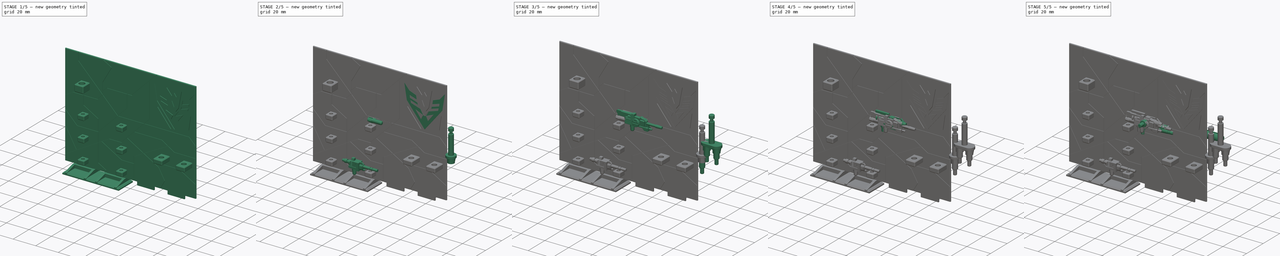
[diagram: build sequence overview — one tinted view per stage of 5, left to right]
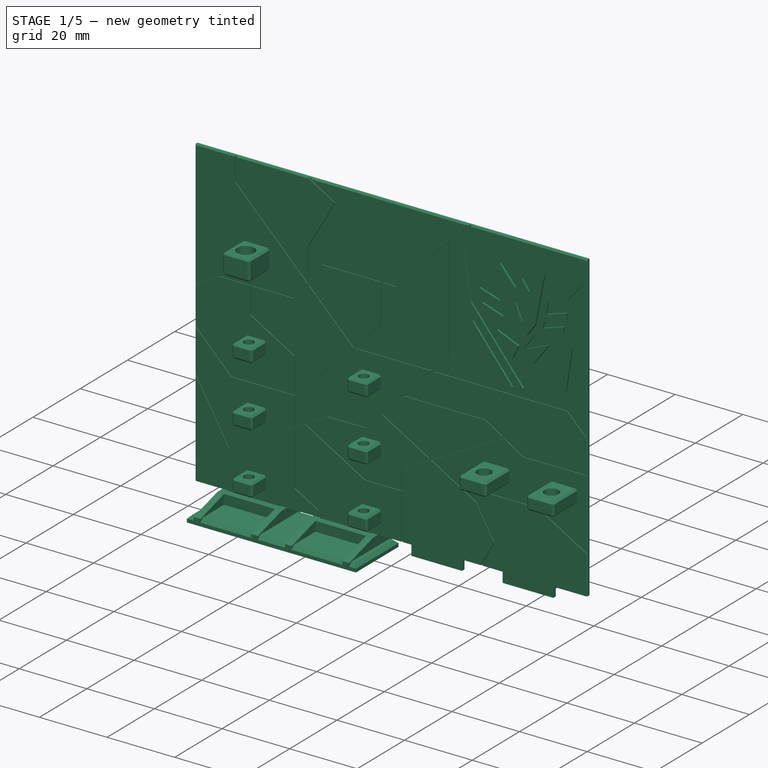
[diagram: stage 1 of 5 — iso view after this stage's code; geometry added in this stage tinted green]
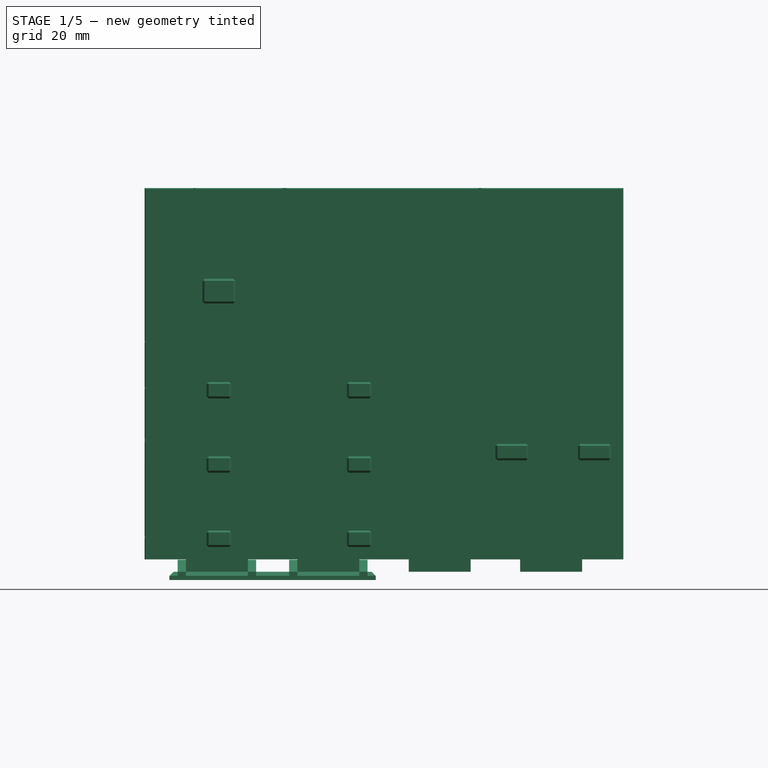
[diagram: stage 1 of 5 — front view after this stage's code; geometry added in this stage tinted green]
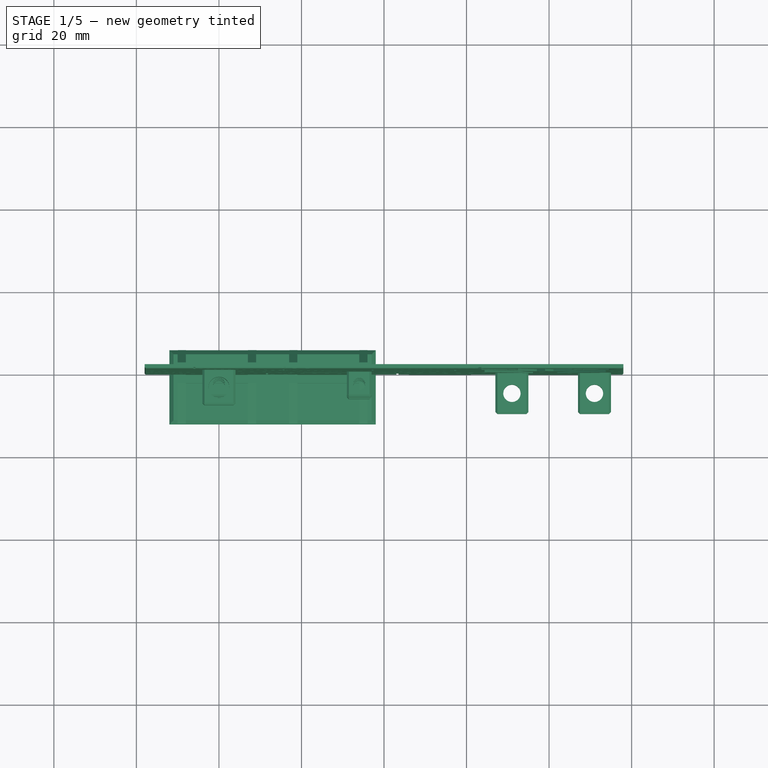
[diagram: stage 1 of 5 — top view after this stage's code; geometry added in this stage tinted green]
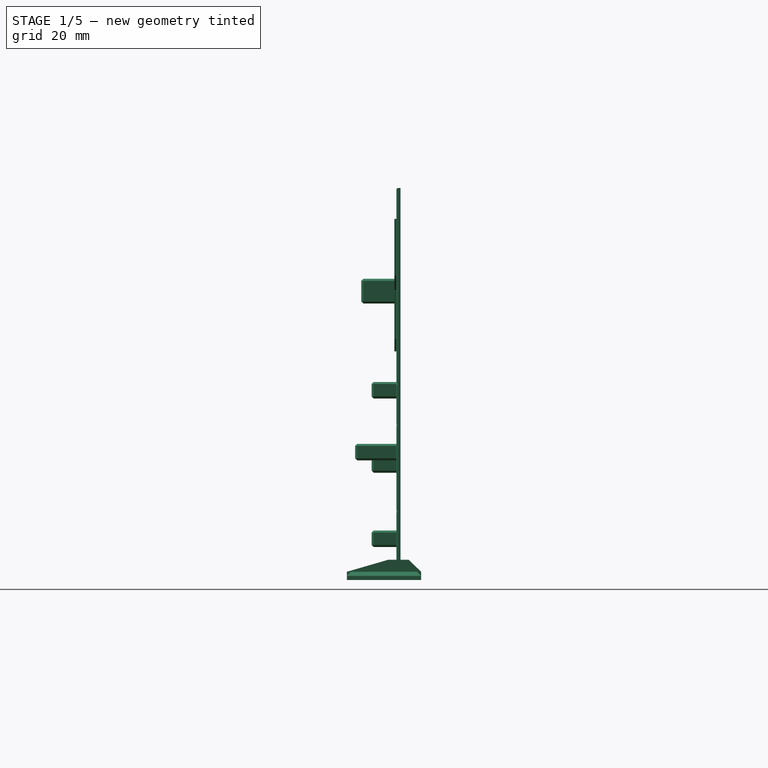
[diagram: stage 1 of 5 — right view after this stage's code; geometry added in this stage tinted green]
FCSTD DOCUMENT  (FreeCAD 1.0R39319 (Git))
Label: Accesories
License: All rights reserved
LicenseURL: https://en.wikipedia.org/wiki/All_rights_reserved
objects: Sketcher::SketchObject×301, PartDesign::Pad×165, PartDesign::Pocket×99, PartDesign::Fillet×45, PartDesign::AdditiveLoft×23, PartDesign::Body×22, PartDesign::SubShapeBinder×17, PartDesign::Chamfer×16, PartDesign::Groove×4, PartDesign::Revolution×4, Part::Feature×3, App::Link×1, App::Part×1
note: 1712 computed .brp shape members not serialized (recipe doc carries the construction recipe); baked Part::Feature solids carry a one-line shape summary decoded from their .brp

FEATURE [PartDesign::Body] Body027  label="Symbol1"
  AllowCompound = false
  Group = -> [Binder,Sketch394,Pad256]
  Origin = -> Origin030
  Placement = pos=(0,-0.5,0) rot=(0,0,1;0rad)
  Tip = -> Pad256
FEATURE [PartDesign::SubShapeBinder] Binder001
  BindCopyOnChange = 0
  BindMode = 2
  ClaimChildren = false
  Context = -> Part [Body028.Binder001.]
  Fuse = false
  MakeFace = true
  OffsetFill = false
  OffsetIntersection = false
  OffsetJoinType = 0
  OffsetOpenResult = false
  PartialLoad = false
  Refine = true
  Relative = true
  _Version = 2
FEATURE [Sketcher::SketchObject] Sketch395
  ArcFitTolerance = 1e-06
  AttachmentSupport = -> [Binder001]
  ExternalGeometry = -> [Binder001]
  FullyConstrained = true
  MakeInternals = false
  MapMode = 5
  Placement = pos=(0,0,0) rot=(1,0,0;1.5708rad)
  sketch-geometry (19):
    g0: LineSegment StartX=-28.0981 StartY=-38.9019 StartZ=0 EndX=-28.0981 EndY=-13.9019 EndZ=0
    g1: LineSegment StartX=-28.0981 StartY=-13.9019 StartZ=0 EndX=-47.0981 EndY=-13.9019 EndZ=0
    g2: LineSegment StartX=-47.0981 StartY=-13.9019 StartZ=0 EndX=-58 EndY=-3 EndZ=0
    g3: LineSegment StartX=-58 StartY=-3 StartZ=0 EndX=-58 EndY=-45 EndZ=0
    g4: LineSegment StartX=-58 StartY=-45 StartZ=0 EndX=-48 EndY=-45 EndZ=0
    g5: LineSegment StartX=-48 StartY=-45 StartZ=0 EndX=-48 EndY=-48 EndZ=0
    g6: LineSegment StartX=-48 StartY=-48 StartZ=0 EndX=-33 EndY=-48 EndZ=0
    g7: LineSegment StartX=-33 StartY=-48 StartZ=0 EndX=-33 EndY=-45 EndZ=0
    g8: LineSegment StartX=-33 StartY=-45 StartZ=0 EndX=-21 EndY=-45 EndZ=0
    g9: LineSegment StartX=-21 StartY=-45 StartZ=0 EndX=-21 EndY=-43 EndZ=0
    g10: LineSegment StartX=-21 StartY=-43 StartZ=0 EndX=-28.0981 EndY=-38.9019 EndZ=0
    g11: LineSegment StartX=-43 StartY=-20 StartZ=0 EndX=-43 EndY=-24 EndZ=0
    g12: LineSegment StartX=-43 StartY=-24 StartZ=0 EndX=-37 EndY=-24 EndZ=0
    g13: LineSegment StartX=-37 StartY=-24 StartZ=0 EndX=-37 EndY=-20 EndZ=0
    g14: LineSegment StartX=-37 StartY=-20 StartZ=0 EndX=-43 EndY=-20 EndZ=0
    g15: LineSegment StartX=-43 StartY=-38 StartZ=0 EndX=-43 EndY=-42 EndZ=0
    g16: LineSegment StartX=-43 StartY=-42 StartZ=0 EndX=-37 EndY=-42 EndZ=0
    g17: LineSegment StartX=-37 StartY=-42 StartZ=0 EndX=-37 EndY=-38 EndZ=0
    g18: LineSegment StartX=-37 StartY=-38 StartZ=0 EndX=-43 EndY=-38 EndZ=0
  constraints (47):
    c: Vertical(g0)
    c: Coincident(g1,g0)
    c: Horizontal(g1)
    c: Coincident(g2,g1)
    c: PointOnObject(g2,g-8)
    c: Coincident(g3,g2)
    c: Coincident(g3,g-8)
    c: Coincident(g4,g3)
    c: Coincident(g4,g-7)
    c: Coincident(g5,g4)
    c: Coincident(g5,g-6)
    c: Coincident(g6,g5)
    c: Coincident(g6,g-5)
    c: Coincident(g7,g6)
    c: Coincident(g7,g-5)
    c: Coincident(g8,g7)
    c: Angle(g3,g2) = 0.785398
    c: DistanceY(g3,g3) = 42
    c: DistanceY(g0,g0) = 25
    c: Coincident(g9,g8)
    c: Vertical(g9)
    c: Coincident(g10,g9)
    c: Coincident(g10,g0)
    c: DistanceY(g9,g9) = 2
    c: Coincident(g8,g-3)
    c: Angle(g10,g9) = 2.0944
    c: DistanceX(g1,g1) = 19
    c: Coincident(g11,g12)
    c: Coincident(g12,g13)
    c: Coincident(g13,g14)
    c: Coincident(g14,g11)
    c: Vertical(g11)
    c: Vertical(g13)
    c: Horizontal(g12)
    c: Horizontal(g14)
    c: Coincident(g11,g-16)
    c: Coincident(g12,g-14)
    c: Coincident(g15,g16)
    c: Coincident(g16,g17)
    c: Coincident(g17,g18)
    c: Coincident(g18,g15)
    c: Vertical(g15)
    c: Vertical(g17)
    c: Horizontal(g16)
    c: Horizontal(g18)
    c: Coincident(g15,g-12)
    c: Coincident(g16,g-11)
FEATURE [PartDesign::Pad] Pad257
  Direction = (0,-1,2e-16)
  Length = 1
  Length2 = 10
  Profile = -> Sketch395
  ReferenceAxis = -> Sketch395 [N_Axis]
  Refine = true
  Reversed = true
  Suppressed = false
  Type = 0
FEATURE [Sketcher::SketchObject] Sketch396
  ArcFitTolerance = 1e-06
  AttachmentSupport = -> [Pad257]
  ExternalGeometry = -> [Pad257]
  FullyConstrained = true
  MakeInternals = false
  MapMode = 5
  Placement = pos=(0,1,0) rot=(0,0.707107,0.707107;3.14159rad)
  sketch-geometry (8):
    g0: LineSegment StartX=37 StartY=-20 StartZ=0 EndX=37 EndY=-24 EndZ=0
    g1: LineSegment StartX=37 StartY=-24 StartZ=0 EndX=43 EndY=-24 EndZ=0
    g2: LineSegment StartX=43 StartY=-24 StartZ=0 EndX=43 EndY=-20 EndZ=0
    g3: LineSegment StartX=43 StartY=-20 StartZ=0 EndX=37 EndY=-20 EndZ=0
    g4: LineSegment StartX=37 StartY=-38 StartZ=0 EndX=37 EndY=-42 EndZ=0
    g5: LineSegment StartX=37 StartY=-42 StartZ=0 EndX=43 EndY=-42 EndZ=0
    g6: LineSegment StartX=43 StartY=-42 StartZ=0 EndX=43 EndY=-38 EndZ=0
    g7: LineSegment StartX=43 StartY=-38 StartZ=0 EndX=37 EndY=-38 EndZ=0
  constraints (20):
    c: Coincident(g0,g1)
    c: Coincident(g1,g2)
    c: Coincident(g2,g3)
    c: Coincident(g3,g0)
    c: Vertical(g0)
    c: Vertical(g2)
    c: Horizontal(g1)
    c: Horizontal(g3)
    c: Coincident(g0,g-10)
    c: Coincident(g1,g-9)
    c: Coincident(g4,g5)
    c: Coincident(g5,g6)
    c: Coincident(g6,g7)
    c: Coincident(g7,g4)
    c: Vertical(g4)
    c: Vertical(g6)
    c: Horizontal(g5)
    c: Horizontal(g7)
    c: Coincident(g4,g-5)
    c: Coincident(g5,g-6)
FEATURE [PartDesign::Pad] Pad258
  BaseFeature = -> Pad257
  Direction = (0,1,-2e-16)
  Length = 7
  Length2 = 10
  Profile = -> Sketch396
  ReferenceAxis = -> Sketch396 [N_Axis]
  Refine = true
  Reversed = true
  Suppressed = false
  Type = 0
FEATURE [Sketcher::SketchObject] Sketch397
  ArcFitTolerance = 1e-06
  AttachmentSupport = -> [Pad258]
  ExternalGeometry = -> [Pad258]
  FullyConstrained = true
  MakeInternals = false
  MapMode = 5
  Placement = pos=(0,-9.2e-15,-42) rot=(1,0,0;3.14159rad)
  sketch-geometry (1):
    g0: Circle CenterX=-40 CenterY=3 CenterZ=0 NormalX=0 NormalY=0 NormalZ=1 AngleXU=0 Radius=1.45
  constraints (5):
    c: Radius(g0) = 1.45
    c: DistanceX(g-4,g-3) = 6
    c: DistanceY(g-4,g-4) = 6
    c: DistanceY(g0,g-4) = 3
    c: DistanceX(g-4,g0) = 3
FEATURE [PartDesign::Pocket] Pocket082
  BaseFeature = -> Pad258
  Direction = (0,0,1)
  Length = 23
  Length2 = 5
  Profile = -> Sketch397
  ReferenceAxis = -> Sketch397 [N_Axis]
  Refine = true
  Suppressed = false
  Type = 0
FEATURE [PartDesign::Chamfer] Chamfer003
  Angle = 45
  Base = -> Pocket082 [Edge43,Edge48,Edge53,Edge58,Edge56,Edge60,Edge55,Edge54,Edge46,Edge50,Edge44,Edge45,Edge49,Edge42,Edge59,Edge52]
  BaseFeature = -> Pocket082
  ChamferType = 0
  FlipDirection = false
  Refine = true
  Size = 0.5
  Size2 = 1
  SupportTransform = false
  Suppressed = false
  UseAllEdges = false
FEATURE [Sketcher::SketchObject] Sketch398
  ArcFitTolerance = 1e-06
  AttachmentSupport = -> [Chamfer003]
  ExternalGeometry = -> [Chamfer003]
  FullyConstrained = true
  MakeInternals = false
  MapMode = 5
  Placement = pos=(0,-6.5e-15,0) rot=(1,0,0;1.5708rad)
  sketch-geometry (14):
    g0: LineSegment StartX=-21 StartY=-45 StartZ=0 EndX=-21 EndY=-43 EndZ=0
    g1: LineSegment StartX=-21 StartY=-43 StartZ=0 EndX=-28.0981 EndY=-38.9019 EndZ=0
    g2: LineSegment StartX=-28.0981 StartY=-38.9019 StartZ=0 EndX=-28.0981 EndY=-13.9019 EndZ=0
    g3: LineSegment StartX=-28.0981 StartY=-13.9019 StartZ=0 EndX=-47.0981 EndY=-13.9019 EndZ=0
    g4: LineSegment StartX=-47.0981 StartY=-13.9019 StartZ=0 EndX=-58 EndY=-3 EndZ=0
    g5: LineSegment StartX=-58 StartY=-3 StartZ=0 EndX=-58 EndY=-3.70711 EndZ=0
    g6: LineSegment StartX=-58 StartY=-3.70711 StartZ=0 EndX=-47.3052 EndY=-14.4019 EndZ=0
    g7: LineSegment StartX=-47.3052 StartY=-14.4019 StartZ=0 EndX=-28.5981 EndY=-14.4019 EndZ=0
    g8: LineSegment StartX=-28.5981 StartY=-14.4019 StartZ=0 EndX=-28.5981 EndY=-39.1906 EndZ=0
    g9: LineSegment StartX=-28.5981 StartY=-39.1906 StartZ=0 EndX=-21.5 EndY=-43.2887 EndZ=0
    g10: LineSegment StartX=-21 StartY=-45 StartZ=0 EndX=-21.5 EndY=-45 EndZ=0
    g11: LineSegment StartX=-21.5 StartY=-45 StartZ=0 EndX=-21.5 EndY=-43.2887 EndZ=0
    g12: LineSegment [constr] StartX=-22.7321 StartY=-42 StartZ=0 EndX=-22.9821 EndY=-42.433 EndZ=0
    g13: LineSegment [constr] StartX=-55.1716 StartY=-5.82843 StartZ=0 EndX=-55.5251 EndY=-6.18198 EndZ=0
  constraints (38):
    c: Coincident(g0,g-3)
    c: Coincident(g0,g-4)
    c: Coincident(g1,g0)
    c: Coincident(g1,g-5)
    c: Coincident(g2,g1)
    c: Coincident(g2,g-6)
    c: Coincident(g3,g2)
    c: Coincident(g3,g-7)
    c: Coincident(g4,g3)
    c: Coincident(g4,g-8)
    c: Coincident(g5,g4)
    c: PointOnObject(g5,g-8)
    c: Coincident(g6,g5)
    c: Coincident(g7,g6)
    c: Horizontal(g7)
    c: Coincident(g8,g7)
    c: Vertical(g8)
    c: Coincident(g9,g8)
    c: Coincident(g10,g0)
    c: Horizontal(g10)
    c: Coincident(g11,g10)
    c: Coincident(g11,g9)
    c: Vertical(g11)
    c: DistanceX(g10,g10) = 0.5
    c: Parallel(g1,g9)
    c: DistanceX(g8,g1) = 0.5
    c: PointOnObject(g12,g1)
    c: PointOnObject(g12,g9)
    c: Perpendicular(g12,g1)
    c: Distance(g12) = 0.5
    c: Distance(g12,g0) = 2
    c: DistanceY(g7,g2) = 0.5
    c: Parallel(g6,g4)
    c: PointOnObject(g13,g4)
    c: PointOnObject(g13,g6)
    c: Perpendicular(g13,g4)
    c: Distance(g13,g4) = 4
    c: Distance(g13) = 0.5
FEATURE [PartDesign::Pocket] Pocket083
  BaseFeature = -> Chamfer003
  Direction = (0,1,-2e-16)
  Length = 0.25
  Length2 = 5
  Profile = -> Sketch398
  ReferenceAxis = -> Sketch398 [N_Axis]
  Refine = true
  Suppressed = false
  Type = 0
FEATURE [Sketcher::SketchObject] Sketch399
  ArcFitTolerance = 1e-06
  AttachmentSupport = -> [Pocket083]
  ExternalGeometry = -> [Pocket083]
  FullyConstrained = false
  MakeInternals = false
  MapMode = 5
  Placement = pos=(0,-6.5e-15,0) rot=(1,0,0;1.5708rad)
  sketch-geometry (9):
    g0: LineSegment StartX=-28.5981 StartY=-23.9481 StartZ=0 EndX=-58 EndY=-40.9233 EndZ=0
    g1: LineSegment StartX=-58 StartY=-19.8422 StartZ=0 EndX=-40.8259 EndY=-29.7577 EndZ=0
    g2: LineSegment StartX=-58 StartY=-40.9233 StartZ=0 EndX=-58 EndY=-39.6731 EndZ=0
    g3: LineSegment StartX=-58 StartY=-39.6731 StartZ=0 EndX=-40.8259 EndY=-29.7577 EndZ=0
    g4: LineSegment StartX=-28.5981 StartY=-22.6699 StartZ=0 EndX=-40.3232 EndY=-29.4394 EndZ=0
    g5: LineSegment StartX=-40.3232 StartY=-29.4394 StartZ=0 EndX=-58 EndY=-19.2337 EndZ=0
    g6: LineSegment StartX=-58 StartY=-19.2337 StartZ=0 EndX=-58 EndY=-19.8422 EndZ=0
    g7: LineSegment StartX=-28.5981 StartY=-22.6699 StartZ=0 EndX=-28.5981 EndY=-23.9481 EndZ=0
    g8: LineSegment [constr] StartX=-56.1634 StartY=-20.9026 StartZ=0 EndX=-55.8999 EndY=-20.4462 EndZ=0
  constraints (22):
    c: PointOnObject(g0,g-3)
    c: PointOnObject(g0,g-4)
    c: Angle(g0,g-3) = 1.0472
    c: Coincident(g2,g0)
    c: PointOnObject(g2,g-4)
    c: Coincident(g3,g2)
    c: PointOnObject(g4,g-3)
    c: Coincident(g5,g4)
    c: PointOnObject(g5,g-4)
    c: Coincident(g6,g5)
    c: Coincident(g6,g1)
    c: Vertical(g6)
    c: Coincident(g7,g4)
    c: Coincident(g7,g0)
    c: Coincident(g1,g3)
    c: Parallel(g0,g3)
    c: Parallel(g1,g5)
    c: Parallel(g4,g0)
    c: PointOnObject(g8,g1)
    c: PointOnObject(g8,g5)
    c: Perpendicular(g8,g5)
    c: Angle(g4,g5) = 2.0944
FEATURE [Sketcher::SketchObject] Sketch400
  ArcFitTolerance = 1e-06
  AttachmentSupport = -> [Pocket083]
  ExternalGeometry = -> [Pocket083]
  FullyConstrained = true
  MakeInternals = false
  MapMode = 5
  Placement = pos=(0,-6.5e-15,0) rot=(1,0,0;1.5708rad)
  sketch-geometry (11):
    g0: LineSegment StartX=-28.5981 StartY=-23.0248 StartZ=0 EndX=-58 EndY=-40 EndZ=0
    g1: LineSegment StartX=-58 StartY=-16.4226 StartZ=0 EndX=-48.0407 EndY=-33.6726 EndZ=0
    g2: LineSegment StartX=-48.0407 StartY=-33.6726 StartZ=0 EndX=-58 EndY=-39.4226 EndZ=0
    g3: LineSegment StartX=-58 StartY=-39.4226 StartZ=0 EndX=-58 EndY=-40 EndZ=0
    g4: LineSegment StartX=-58 StartY=-16.4226 StartZ=0 EndX=-58 EndY=-15.4226 EndZ=0
    g5: LineSegment StartX=-58 StartY=-15.4226 StartZ=0 EndX=-47.6077 EndY=-33.4226 EndZ=0
    g6: LineSegment StartX=-47.6077 StartY=-33.4226 StartZ=0 EndX=-28.5981 EndY=-22.4474 EndZ=0
    g7: LineSegment StartX=-28.5981 StartY=-22.4474 StartZ=0 EndX=-28.5981 EndY=-23.0248 EndZ=0
    g8: LineSegment [constr] StartX=-50.5357 StartY=-29.3512 StartZ=0 EndX=-50.1027 EndY=-29.1012 EndZ=0
    g9: LineSegment [constr] StartX=-50.6659 StartY=-35.7657 StartZ=0 EndX=-50.9159 EndY=-35.3326 EndZ=0
    g10: LineSegment [constr] StartX=-40.8798 StartY=-30.1157 StartZ=0 EndX=-41.1298 EndY=-29.6826 EndZ=0
  constraints (36):
    c: PointOnObject(g0,g-3)
    c: PointOnObject(g0,g-4)
    c: Coincident(g2,g1)
    c: PointOnObject(g2,g-4)
    c: Coincident(g3,g2)
    c: Coincident(g3,g0)
    c: PointOnObject(g1,g-4)
    c: Coincident(g4,g1)
    c: PointOnObject(g4,g-4)
    c: Coincident(g5,g4)
    c: Coincident(g6,g5)
    c: PointOnObject(g6,g-3)
    c: Coincident(g7,g6)
    c: Coincident(g7,g0)
    c: Parallel(g6,g0)
    c: Parallel(g1,g5)
    c: Parallel(g2,g0)
    c: Angle(g6,g-3) = 1.0472
    c: Perpendicular(g5,g6)
    c: PointOnObject(g8,g1)
    c: PointOnObject(g8,g5)
    c: Perpendicular(g8,g5)
    c: Distance(g8) = 0.5
    c: PointOnObject(g9,g0)
    c: PointOnObject(g9,g2)
    c: Perpendicular(g9,g0)
    c: PointOnObject(g10,g0)
    c: PointOnObject(g10,g6)
    c: Perpendicular(g10,g0)
    c: Distance(g10) = 0.5
    c: Distance(g9) = 0.5
    c: Distance(g9,g1) = 3.32
    c: Distance(g10,g5) = 7.48
    c: Distance(g8,g1) = 4.99
    c: DistanceY(g-4,g0) = 5
    c: DistanceY(g2,g1) = 23
FEATURE [PartDesign::Pocket] Pocket084
  BaseFeature = -> Pocket083
  Direction = (0,1,-2e-16)
  Length = 0.25
  Length2 = 5
  Profile = -> Sketch400
  ReferenceAxis = -> Sketch400 [N_Axis]
  Refine = true
  Suppressed = false
  Type = 0
FEATURE [PartDesign::Chamfer] Chamfer004
  Angle = 45
  Base = -> Pocket084 [Edge30,Edge34,Edge5]
  BaseFeature = -> Pocket084
  ChamferType = 0
  FlipDirection = false
  Refine = true
  Size = 0.25
  Size2 = 1
  SupportTransform = false
  Suppressed = false
  UseAllEdges = false
FEATURE [PartDesign::Body] Body028  label="Back1"
  AllowCompound = false
  Group = -> [Binder001,Sketch395,Pad257,Sketch396,Pad258,Sketch397,Pocket082,Chamfer003,Sketch398,Pocket083,Sketch399,Sketch400,Pocket084,Chamfer004,Sketch401,Pad259]
  Origin = -> Origin031
  Tip = -> Pad259
FEATURE [PartDesign::SubShapeBinder] Binder002
  BindCopyOnChange = 0
  BindMode = 2
  ClaimChildren = false
  Context = -> Part [Body029.Binder002.]
  Fuse = false
  MakeFace = true
  OffsetFill = false
  OffsetIntersection = false
  OffsetJoinType = 0
  OffsetOpenResult = false
  PartialLoad = false
  Refine = true
  Relative = true
  _Version = 2
FEATURE [Sketcher::SketchObject] Sketch403
  ArcFitTolerance = 1e-06
  AttachmentSupport = -> [Binder002]
  ExternalGeometry = -> [Binder002]
  FullyConstrained = true
  MakeInternals = false
  MapMode = 5
  Placement = pos=(0,0,0) rot=(1,0,0;1.5708rad)
  sketch-geometry (48):
    g0: LineSegment StartX=21.3411 StartY=38.0284 StartZ=0 EndX=23.5911 EndY=24.5144 EndZ=0
    g1: LineSegment StartX=23.5911 StartY=24.5144 StartZ=0 EndX=39.0411 EndY=5.5 EndZ=0
    g2: LineSegment StartX=58 StartY=-3 StartZ=0 EndX=58 EndY=45 EndZ=0
    g3: LineSegment StartX=58 StartY=45 StartZ=0 EndX=23 EndY=45 EndZ=0
    g4: LineSegment StartX=23 StartY=45 StartZ=0 EndX=17 EndY=39 EndZ=0
    g5: LineSegment StartX=17 StartY=39 StartZ=0 EndX=17 EndY=8 EndZ=0
    g6: LineSegment StartX=17 StartY=8 StartZ=0 EndX=12 EndY=3 EndZ=0
    g7: LineSegment StartX=12 StartY=3 StartZ=0 EndX=52 EndY=3 EndZ=0
    g8: LineSegment StartX=52 StartY=3 StartZ=0 EndX=58 EndY=-3 EndZ=0
    g9: LineSegment StartX=41.8411 StartY=5.3 StartZ=0 EndX=53.7849 EndY=20.0765 EndZ=0
    g10: LineSegment StartX=53.7849 StartY=20.0765 StartZ=0 EndX=52.0822 EndY=8.4 EndZ=0
    g11: LineSegment StartX=52.0822 StartY=8.4 StartZ=0 EndX=41.8411 EndY=5.3 EndZ=0
    g12: LineSegment StartX=39.0411 StartY=5.5 StartZ=0 EndX=54.4911 EndY=24.5144 EndZ=0
    g13: LineSegment StartX=54.4911 StartY=24.5144 StartZ=0 EndX=56.7411 EndY=38.0284 EndZ=0
    g14: LineSegment StartX=56.7411 StartY=38.0284 StartZ=0 EndX=52.2411 EndY=32.7977 EndZ=0
    g15: LineSegment StartX=52.2411 StartY=32.7977 StartZ=0 EndX=46.3911 EndY=30.5983 EndZ=0
    g16: LineSegment StartX=46.3911 StartY=30.5983 StartZ=0 EndX=45.7911 EndY=27.1501 EndZ=0
    g17: LineSegment StartX=45.7911 StartY=27.1501 StartZ=0 EndX=51.9411 EndY=29.1163 EndZ=0
    g18: LineSegment StartX=51.9411 StartY=29.1163 StartZ=0 EndX=51.7411 EndY=27.2268 EndZ=0
    g19: LineSegment StartX=51.7411 StartY=27.2268 StartZ=0 EndX=45.2911 EndY=25.1647 EndZ=0
    g20: LineSegment StartX=45.2911 StartY=25.1647 StartZ=0 EndX=44.8116 EndY=23.2231 EndZ=0
    g21: LineSegment StartX=44.8116 StartY=23.2231 StartZ=0 EndX=51.2338 EndY=25.2762 EndZ=0
    g22: LineSegment StartX=51.2338 StartY=25.2762 StartZ=0 EndX=50.7974 EndY=23.427 EndZ=0
    g23: LineSegment StartX=50.7974 StartY=23.427 StartZ=0 EndX=42.6911 EndY=20.8355 EndZ=0
    g24: LineSegment StartX=42.6911 StartY=20.8355 StartZ=0 EndX=39.0411 EndY=16.2 EndZ=0
    g25: LineSegment StartX=39.0411 StartY=16.2 StartZ=0 EndX=35.3911 EndY=20.8355 EndZ=0
    g26: LineSegment StartX=35.3911 StartY=20.8355 StartZ=0 EndX=27.2848 EndY=23.427 EndZ=0
    g27: LineSegment StartX=27.2848 StartY=23.427 StartZ=0 EndX=26.8484 EndY=25.2762 EndZ=0
    g28: LineSegment StartX=26.8484 StartY=25.2762 StartZ=0 EndX=33.2706 EndY=23.2231 EndZ=0
    g29: LineSegment StartX=33.2706 StartY=23.2231 StartZ=0 EndX=32.7911 EndY=25.1647 EndZ=0
    g30: LineSegment StartX=32.7911 StartY=25.1647 StartZ=0 EndX=26.3411 EndY=27.2268 EndZ=0
    g31: LineSegment StartX=26.3411 StartY=27.2268 StartZ=0 EndX=26.1411 EndY=29.1163 EndZ=0
    g32: LineSegment StartX=26.1411 StartY=29.1163 StartZ=0 EndX=32.2911 EndY=27.1501 EndZ=0
    g33: LineSegment StartX=32.2911 StartY=27.1501 StartZ=0 EndX=31.6911 EndY=30.5983 EndZ=0
    g34: LineSegment StartX=21.3411 StartY=38.0284 StartZ=0 EndX=25.8411 EndY=32.7977 EndZ=0
    g35: LineSegment StartX=25.8411 StartY=32.7977 StartZ=0 EndX=31.6911 EndY=30.5983 EndZ=0
    g36: LineSegment StartX=32.3911 StartY=37.6906 StartZ=0 EndX=35.0911 EndY=23.7496 EndZ=0
    g37: LineSegment StartX=35.0911 StartY=23.7496 StartZ=0 EndX=37.6911 EndY=20.2 EndZ=0
    g38: LineSegment StartX=37.6911 StartY=20.2 StartZ=0 EndX=40.3911 EndY=20.2 EndZ=0
    g39: LineSegment StartX=40.3911 StartY=20.2 StartZ=0 EndX=42.9911 EndY=23.7496 EndZ=0
    g40: LineSegment StartX=42.9911 StartY=23.7496 StartZ=0 EndX=45.6911 EndY=37.6906 EndZ=0
    g41: LineSegment StartX=45.6911 StartY=37.6906 StartZ=0 EndX=41.0411 EndY=32.1936 EndZ=0
    g42: LineSegment StartX=41.0411 StartY=32.1936 StartZ=0 EndX=39.0411 EndY=35.0658 EndZ=0
    g43: LineSegment StartX=39.0411 StartY=35.0658 StartZ=0 EndX=37.0411 EndY=32.1936 EndZ=0
    g44: LineSegment StartX=37.0411 StartY=32.1936 StartZ=0 EndX=32.3911 EndY=37.6906 EndZ=0
    g45: LineSegment StartX=36.2411 StartY=5.3 StartZ=0 EndX=24.2973 EndY=20.0765 EndZ=0
    g46: LineSegment StartX=24.2973 StartY=20.0765 StartZ=0 EndX=26 EndY=8.4 EndZ=0
    g47: LineSegment StartX=26 StartY=8.4 StartZ=0 EndX=36.2411 EndY=5.3 EndZ=0
  constraints (96):
    c: Coincident(g0,g-12)
    c: Coincident(g0,g-45)
    c: Coincident(g1,g0)
    c: Coincident(g1,g-45)
    c: Coincident(g2,g-5)
    c: Coincident(g2,g-4)
    c: Coincident(g3,g2)
    c: Coincident(g3,g-9)
    c: Coincident(g4,g3)
    c: Coincident(g4,g-9)
    c: Coincident(g5,g4)
    c: Coincident(g5,g-8)
    c: Coincident(g6,g5)
    c: Coincident(g6,g-7)
    c: Coincident(g7,g6)
    c: Coincident(g7,g-6)
    c: Coincident(g8,g7)
    c: Coincident(g8,g2)
    c: Coincident(g9,g-48)
    c: Coincident(g9,g-47)
    c: Coincident(g10,g9)
    c: Coincident(g10,g-48)
    c: Coincident(g11,g10)
    c: Coincident(g11,g9)
    c: Coincident(g12,g1)
    c: Coincident(g12,g-44)
    c: Coincident(g13,g12)
    c: Coincident(g13,g-28)
    c: Coincident(g14,g13)
    c: Coincident(g14,g-27)
    c: Coincident(g15,g14)
    c: Coincident(g15,g-26)
    c: Coincident(g16,g15)
    c: Coincident(g16,g-26)
    c: Coincident(g17,g16)
    c: Coincident(g17,g-29)
    c: Coincident(g18,g17)
    c: Coincident(g18,g-30)
    c: Coincident(g19,g18)
    c: Coincident(g19,g-31)
    c: Coincident(g20,g19)
    c: Coincident(g20,g-32)
    c: Coincident(g21,g20)
    c: Coincident(g21,g-34)
    c: Coincident(g22,g21)
    c: Coincident(g22,g-34)
    c: Coincident(g23,g22)
    c: Coincident(g23,g-35)
    c: Coincident(g24,g23)
    c: Coincident(g24,g-36)
    c: Coincident(g25,g24)
    c: Coincident(g25,g-37)
    c: Coincident(g26,g25)
    c: Coincident(g26,g-41)
    c: Coincident(g27,g26)
    c: Coincident(g27,g-41)
    c: Coincident(g28,g27)
    c: Coincident(g28,g-40)
    c: Coincident(g29,g28)
    c: Coincident(g29,g-42)
    c: Coincident(g30,g29)
    c: Coincident(g30,g-43)
    c: Coincident(g31,g30)
    c: Coincident(g31,g-43)
    c: Coincident(g32,g31)
    c: Coincident(g32,g-14)
    c: Coincident(g33,g32)
    c: Coincident(g33,g-14)
    c: Coincident(g34,g0)
    c: Coincident(g34,g-11)
    c: Coincident(g35,g34)
    c: Coincident(g35,g33)
    c: Coincident(g36,g-16)
    c: Coincident(g36,g-23)
    c: Coincident(g37,g36)
    c: Coincident(g37,g-23)
    c: Coincident(g38,g37)
    c: Coincident(g38,g-22)
    c: Coincident(g39,g38)
    c: Coincident(g39,g-21)
    c: Coincident(g40,g39)
    c: Coincident(g40,g-20)
    c: Coincident(g41,g40)
    c: Coincident(g41,g-19)
    c: Coincident(g42,g41)
    c: Coincident(g42,g-18)
    c: Coincident(g43,g42)
    c: Coincident(g43,g-17)
    c: Coincident(g44,g43)
    c: Coincident(g44,g36)
    c: Coincident(g45,g-51)
    c: Coincident(g45,g-50)
    c: Coincident(g46,g45)
    c: Coincident(g46,g-51)
    c: Coincident(g47,g46)
    c: Coincident(g47,g45)
FEATURE [PartDesign::Pad] Pad260
  Direction = (0,-1,2e-16)
  Length = 1
  Length2 = 10
  Profile = -> Sketch403
  ReferenceAxis = -> Sketch403 [N_Axis]
  Refine = true
  Reversed = true
  Suppressed = false
  Type = 0
FEATURE [Sketcher::SketchObject] Sketch404
  ArcFitTolerance = 1e-06
  AttachmentSupport = -> [Pad260]
  ExternalGeometry = -> [Pad260]
  FullyConstrained = true
  MakeInternals = false
  MapMode = 5
  Placement = pos=(0,1,0) rot=(0,0.707107,0.707107;3.14159rad)
  sketch-geometry (7):
    g0: LineSegment StartX=-58 StartY=45 StartZ=0 EndX=-58 EndY=-3 EndZ=0
    g1: LineSegment StartX=-58 StartY=-3 StartZ=0 EndX=-52 EndY=3 EndZ=0
    g2: LineSegment StartX=-52 StartY=3 StartZ=0 EndX=-12 EndY=3 EndZ=0
    g3: LineSegment StartX=-12 StartY=3 StartZ=0 EndX=-17 EndY=8 EndZ=0
    g4: LineSegment StartX=-17 StartY=8 StartZ=0 EndX=-17 EndY=39 EndZ=0
    g5: LineSegment StartX=-17 StartY=39 StartZ=0 EndX=-23 EndY=45 EndZ=0
    g6: LineSegment StartX=-23 StartY=45 StartZ=0 EndX=-58 EndY=45 EndZ=0
  constraints (14):
    c: Coincident(g0,g-9)
    c: Coincident(g0,g-9)
    c: Coincident(g1,g0)
    c: Coincident(g1,g-8)
    c: Coincident(g2,g1)
    c: Coincident(g2,g-7)
    c: Coincident(g3,g2)
    c: Coincident(g3,g-6)
    c: Coincident(g4,g3)
    c: Coincident(g4,g-5)
    c: Coincident(g5,g4)
    c: Coincident(g5,g-4)
    c: Coincident(g6,g5)
    c: Coincident(g6,g0)
FEATURE [PartDesign::Pad] Pad261
  BaseFeature = -> Pad260
  Direction = (0,1,-2e-16)
  Length = 0.5
  Length2 = 10
  Profile = -> Sketch404
  ReferenceAxis = -> Sketch404 [N_Axis]
  Refine = true
  Reversed = true
  Suppressed = false
  Type = 0
FEATURE [PartDesign::SubShapeBinder] Binder003
  BindCopyOnChange = 0
  BindMode = 2
  ClaimChildren = false
  Context = -> Part [Body029.Binder003.]
  Fuse = false
  MakeFace = true
  OffsetFill = false
  OffsetIntersection = false
  OffsetJoinType = 0
  OffsetOpenResult = false
  PartialLoad = false
  Refine = true
  Relative = true
  _Version = 2
FEATURE [Sketcher::SketchObject] Sketch405
  ArcFitTolerance = 1e-06
  AttachmentSupport = -> [Pad261]
  ExternalGeometry = -> [Binder003]
  FullyConstrained = true
  MakeInternals = false
  MapMode = 5
  Placement = pos=(0,0.5,-1e-16) rot=(1,0,0;1.5708rad)
  sketch-geometry (3):
    g0: LineSegment StartX=37.0411 StartY=28.2573 StartZ=0 EndX=41.0411 EndY=28.2573 EndZ=0
    g1: LineSegment StartX=41.0411 StartY=28.2573 StartZ=0 EndX=39.0411 EndY=23.5658 EndZ=0
    g2: LineSegment StartX=39.0411 StartY=23.5658 StartZ=0 EndX=37.0411 EndY=28.2573 EndZ=0
  constraints (6):
    c: Coincident(g0,g-5)
    c: Coincident(g0,g-4)
    c: Coincident(g1,g0)
    c: Coincident(g1,g-5)
    c: Coincident(g2,g-5)
    c: Coincident(g2,g0)
FEATURE [PartDesign::Pad] Pad262
  BaseFeature = -> Pad261
  Direction = (0,-1,2e-16)
  Length = 0.5
  Length2 = 10
  Profile = -> Sketch405
  ReferenceAxis = -> Sketch405 [N_Axis]
  Refine = true
  Suppressed = false
  Type = 0
FEATURE [PartDesign::SubShapeBinder] Binder004
  BindCopyOnChange = 0
  BindMode = 2
  ClaimChildren = false
  Context = -> Part [Body029.Binder004.]
  Fuse = false
  MakeFace = true
  OffsetFill = false
  OffsetIntersection = false
  OffsetJoinType = 0
  OffsetOpenResult = false
  PartialLoad = false
  Refine = true
  Relative = true
  _Version = 2
FEATURE [Sketcher::SketchObject] Sketch406
  ArcFitTolerance = 1e-06
  AttachmentSupport = -> [Pad262]
  ExternalGeometry = -> [Binder004]
  FullyConstrained = true
  MakeInternals = false
  MapMode = 5
  Placement = pos=(0,0.5,-1e-16) rot=(1,0,0;1.5708rad)
  sketch-geometry (3):
    g0: LineSegment StartX=31.2911 StartY=19.2198 StartZ=0 EndX=37.7411 EndY=16.5 EndZ=0
    g1: LineSegment StartX=37.7411 StartY=16.5 StartZ=0 EndX=35.9911 EndY=13.0147 EndZ=0
    g2: LineSegment StartX=35.9911 StartY=13.0147 StartZ=0 EndX=31.2911 EndY=19.2198 EndZ=0
  constraints (6):
    c: Coincident(g0,g-5)
    c: Coincident(g0,g-4)
    c: Coincident(g1,g0)
    c: Coincident(g1,g-5)
    c: Coincident(g2,g1)
    c: Coincident(g2,g0)
FEATURE [PartDesign::Pad] Pad263
  BaseFeature = -> Pad262
  Direction = (0,-1,2e-16)
  Length = 0.5
  Length2 = 10
  Profile = -> Sketch406
  ReferenceAxis = -> Sketch406 [N_Axis]
  Refine = true
  Suppressed = false
  Type = 0
FEATURE [PartDesign::SubShapeBinder] Binder005
  BindCopyOnChange = 0
  BindMode = 2
  ClaimChildren = false
  Context = -> Part [Body029.Binder005.]
  Fuse = false
  MakeFace = true
  OffsetFill = false
  OffsetIntersection = false
  OffsetJoinType = 0
  OffsetOpenResult = false
  PartialLoad = false
  Refine = true
  Relative = true
  _Version = 2
FEATURE [Sketcher::SketchObject] Sketch407
  ArcFitTolerance = 1e-06
  AttachmentSupport = -> [Pad263]
  ExternalGeometry = -> [Binder005]
  FullyConstrained = true
  MakeInternals = false
  MapMode = 5
  Placement = pos=(0,0.5,-1e-16) rot=(1,0,0;1.5708rad)
  sketch-geometry (3):
    g0: LineSegment StartX=40.3411 StartY=16.5 StartZ=0 EndX=46.7911 EndY=19.2198 EndZ=0
    g1: LineSegment StartX=46.7911 StartY=19.2198 StartZ=0 EndX=42.0911 EndY=13.0147 EndZ=0
    g2: LineSegment StartX=42.0911 StartY=13.0147 StartZ=0 EndX=40.3411 EndY=16.5 EndZ=0
  constraints (6):
    c: Coincident(g0,g-5)
    c: Coincident(g0,g-4)
    c: Coincident(g1,g0)
    c: Coincident(g1,g-5)
    c: Coincident(g2,g1)
    c: Coincident(g2,g0)
FEATURE [PartDesign::Pad] Pad264
  BaseFeature = -> Pad263
  Direction = (0,-1,2e-16)
  Length = 0.5
  Length2 = 10
  Profile = -> Sketch407
  ReferenceAxis = -> Sketch407 [N_Axis]
  Refine = true
  Suppressed = false
  Type = 0
FEATURE [Sketcher::SketchObject] Sketch408
  ArcFitTolerance = 1e-06
  AttachmentSupport = -> [Pad264]
  ExternalGeometry = -> [Pad264]
  FullyConstrained = true
  MakeInternals = false
  MapMode = 5
  Placement = pos=(0,4.9e-15,0) rot=(1,0,0;1.5708rad)
  sketch-geometry (15):
    g0: LineSegment StartX=58 StartY=-2.29289 StartZ=0 EndX=52.2071 EndY=3.5 EndZ=0
    g1: LineSegment StartX=52.2071 StartY=3.5 StartZ=0 EndX=13.2071 EndY=3.5 EndZ=0
    g2: LineSegment StartX=13.2071 StartY=3.5 StartZ=0 EndX=17.5 EndY=7.79289 EndZ=0
    g3: LineSegment StartX=17.5 StartY=7.79289 StartZ=0 EndX=17.5 EndY=38.7929 EndZ=0
    g4: LineSegment StartX=17.5 StartY=38.7929 StartZ=0 EndX=23.7071 EndY=45 EndZ=0
    g5: LineSegment StartX=23 StartY=45 StartZ=0 EndX=17 EndY=39 EndZ=0
    g6: LineSegment StartX=17 StartY=39 StartZ=0 EndX=17 EndY=8 EndZ=0
    g7: LineSegment StartX=17 StartY=8 StartZ=0 EndX=12 EndY=3 EndZ=0
    g8: LineSegment StartX=12 StartY=3 StartZ=0 EndX=52 EndY=3 EndZ=0
    g9: LineSegment StartX=52 StartY=3 StartZ=0 EndX=58 EndY=-3 EndZ=0
    g10: LineSegment [constr] StartX=54.1001 StartY=0.899893 StartZ=0 EndX=54.4537 EndY=1.25345 EndZ=0
    g11: LineSegment [constr] StartX=16.3707 StartY=7.37067 StartZ=0 EndX=16.7242 EndY=7.01712 EndZ=0
    g12: LineSegment [constr] StartX=22.2788 StartY=43.5716 StartZ=0 EndX=21.9252 EndY=43.9252 EndZ=0
    g13: LineSegment StartX=58 StartY=-2.29289 StartZ=0 EndX=58 EndY=-3 EndZ=0
    g14: LineSegment StartX=23.7071 StartY=45 StartZ=0 EndX=23 EndY=45 EndZ=0
  constraints (42):
    c: Coincident(g1,g0)
    c: Horizontal(g1)
    c: Coincident(g2,g1)
    c: Coincident(g3,g2)
    c: Vertical(g3)
    c: Coincident(g4,g3)
    c: Coincident(g5,g-9)
    c: Coincident(g5,g-8)
    c: Coincident(g6,g5)
    c: Coincident(g6,g-7)
    c: Coincident(g7,g6)
    c: Coincident(g7,g-6)
    c: Coincident(g8,g7)
    c: Coincident(g8,g-5)
    c: Coincident(g9,g8)
    c: Coincident(g9,g-4)
    c: Parallel(g5,g4)
    c: Parallel(g2,g7)
    c: Parallel(g0,g9)
    c: DistanceX(g5,g3) = 0.5
    c: DistanceY(g8,g0) = 0.5
    c: PointOnObject(g10,g9)
    c: PointOnObject(g10,g0)
    c: Perpendicular(g9,g10)
    c: Distance(g10) = 0.5
    c: Distance(g10,g8) = 2.97
    c: PointOnObject(g11,g7)
    c: PointOnObject(g11,g2)
    c: Perpendicular(g11,g7)
    c: Distance(g6,g11) = 0.89
    c: Distance(g11) = 0.5
    c: PointOnObject(g12,g4)
    c: PointOnObject(g12,g5)
    c: Perpendicular(g12,g5)
    c: Distance(g12,g5) = 1.52
    c: Distance(g12) = 0.5
    c: Coincident(g13,g0)
    c: Coincident(g13,g9)
    c: PointOnObject(g0,g-3)
    c: Coincident(g14,g4)
    c: Coincident(g14,g5)
    c: Horizontal(g14)
FEATURE [PartDesign::Pocket] Pocket085
  BaseFeature = -> Pad264
  Direction = (0,1,-2e-16)
  Length = 0.25
  Length2 = 5
  Profile = -> Sketch408
  ReferenceAxis = -> Sketch408 [N_Axis]
  Refine = true
  Suppressed = false
  Type = 0
FEATURE [PartDesign::Chamfer] Chamfer005
  Angle = 45
  Base = -> Pocket085 [Edge1,Edge2]
  BaseFeature = -> Pocket085
  ChamferType = 0
  FlipDirection = false
  Refine = true
  Size = 0.25
  Size2 = 1
  SupportTransform = false
  Suppressed = false
  UseAllEdges = false
FEATURE [Sketcher::SketchObject] Sketch409
  ArcFitTolerance = 1e-06
  AttachmentSupport = -> [Chamfer005]
  ExternalGeometry = -> [Chamfer005]
  FullyConstrained = true
  MakeInternals = false
  MapMode = 5
  Placement = pos=(0,1,0) rot=(0,0.707107,0.707107;3.14159rad)
  sketch-geometry (8):
    g0: LineSegment StartX=-17 StartY=27 StartZ=0 EndX=-17 EndY=19 EndZ=0
    g1: LineSegment StartX=-17 StartY=19 StartZ=0 EndX=-14 EndY=19 EndZ=0
    g2: LineSegment StartX=-14 StartY=19 StartZ=0 EndX=-14 EndY=27 EndZ=0
    g3: LineSegment StartX=-14 StartY=27 StartZ=0 EndX=-17 EndY=27 EndZ=0
    g4: LineSegment StartX=-38 StartY=3 StartZ=0 EndX=-38 EndY=0 EndZ=0
    g5: LineSegment StartX=-38 StartY=0 StartZ=0 EndX=-30 EndY=0 EndZ=0
    g6: LineSegment StartX=-30 StartY=0 StartZ=0 EndX=-30 EndY=3 EndZ=0
    g7: LineSegment StartX=-30 StartY=3 StartZ=0 EndX=-38 EndY=3 EndZ=0
  constraints (24):
    c: Coincident(g0,g1)
    c: Coincident(g1,g2)
    c: Coincident(g2,g3)
    c: Coincident(g3,g0)
    c: Vertical(g0)
    c: Vertical(g2)
    c: Horizontal(g1)
    c: Horizontal(g3)
    c: PointOnObject(g0,g-3)
    c: Coincident(g4,g5)
    c: Coincident(g5,g6)
    c: Coincident(g6,g7)
    c: Coincident(g7,g4)
    c: Vertical(g4)
    c: Vertical(g6)
    c: Horizontal(g5)
    c: Horizontal(g7)
    c: PointOnObject(g4,g-4)
    c: DistanceX(g5,g5) = 8
    c: DistanceX(g1,g1) = 3
    c: DistanceY(g2,g2) = 8
    c: DistanceY(g6,g6) = 3
    c: DistanceX(g-4,g4) = 14
    c: DistanceY(g-3,g0) = 11
FEATURE [PartDesign::Pad] Pad265
  BaseFeature = -> Chamfer005
  Direction = (0,1,-2e-16)
  Length = 0.5
  Length2 = 10
  Profile = -> Sketch409
  ReferenceAxis = -> Sketch409 [N_Axis]
  Refine = true
  Reversed = true
  Suppressed = false
  Type = 0
FEATURE [PartDesign::Body] Body029  label="Back2"
  AllowCompound = false
  Group = -> [Binder002,Sketch403,Pad260,Sketch404,Pad261,Binder003,Sketch405,Pad262,Binder004,Sketch406,Pad263,Binder005,Sketch407,Pad264,Sketch408,Pocket085,Chamfer005,Sketch409,Pad265]
  Origin = -> Origin032
  Tip = -> Pad265
FEATURE [PartDesign::SubShapeBinder] Binder006
  BindCopyOnChange = 0
  BindMode = 2
  ClaimChildren = false
  Context = -> Part [Body030.Binder006.]
  Fuse = false
  MakeFace = true
  OffsetFill = false
  OffsetIntersection = false
  OffsetJoinType = 0
  OffsetOpenResult = false
  PartialLoad = false
  Refine = true
  Relative = true
  _Version = 2
FEATURE [Sketcher::SketchObject] Sketch411
  ArcFitTolerance = 1e-06
  AttachmentSupport = -> [Binder006]
  ExternalGeometry = -> [Binder006]
  FullyConstrained = true
  MakeInternals = false
  MapMode = 5
  Placement = pos=(0,0,0) rot=(1,0,0;1.5708rad)
  sketch-geometry (15):
    g0: LineSegment StartX=47 StartY=-17 StartZ=0 EndX=47 EndY=-21 EndZ=0
    g1: LineSegment StartX=47 StartY=-21 StartZ=0 EndX=55 EndY=-21 EndZ=0
    g2: LineSegment StartX=55 StartY=-21 StartZ=0 EndX=55 EndY=-17 EndZ=0
    g3: LineSegment StartX=55 StartY=-17 StartZ=0 EndX=47 EndY=-17 EndZ=0
    g4: LineSegment StartX=27 StartY=-17 StartZ=0 EndX=27 EndY=-21 EndZ=0
    g5: LineSegment StartX=27 StartY=-21 StartZ=0 EndX=35 EndY=-21 EndZ=0
    g6: LineSegment StartX=35 StartY=-21 StartZ=0 EndX=35 EndY=-17 EndZ=0
    g7: LineSegment StartX=35 StartY=-17 StartZ=0 EndX=27 EndY=-17 EndZ=0
    g8: LineSegment StartX=58 StartY=-3 StartZ=0 EndX=58 EndY=-33.7391 EndZ=0
    g9: LineSegment StartX=58 StartY=-33.7391 StartZ=0 EndX=43.2776 EndY=-25.2391 EndZ=0
    g10: LineSegment StartX=43.2776 StartY=-25.2391 StartZ=0 EndX=19.2776 EndY=-25.2391 EndZ=0
    g11: LineSegment StartX=19.2776 StartY=-25.2391 StartZ=0 EndX=-3.23909 EndY=-12.2391 EndZ=0
    g12: LineSegment StartX=-3.23909 StartY=-12.2391 StartZ=0 EndX=12 EndY=3 EndZ=0
    g13: LineSegment StartX=12 StartY=3 StartZ=0 EndX=52 EndY=3 EndZ=0
    g14: LineSegment StartX=52 StartY=3 StartZ=0 EndX=58 EndY=-3 EndZ=0
  constraints (34):
    c: Coincident(g0,g1)
    c: Coincident(g1,g2)
    c: Coincident(g2,g3)
    c: Coincident(g3,g0)
    c: Vertical(g0)
    c: Vertical(g2)
    c: Horizontal(g1)
    c: Horizontal(g3)
    c: Coincident(g0,g-16)
    c: Coincident(g1,g-15)
    c: Coincident(g4,g5)
    c: Coincident(g5,g6)
    c: Coincident(g6,g7)
    c: Coincident(g7,g4)
    c: Vertical(g4)
    c: Vertical(g6)
    c: Horizontal(g5)
    c: Horizontal(g7)
    c: Coincident(g4,g-12)
    c: Coincident(g5,g-11)
    c: Coincident(g8,g-3)
    c: Coincident(g8,g-4)
    c: Coincident(g9,g8)
    c: Coincident(g9,g-6)
    c: Coincident(g10,g9)
    c: Coincident(g10,g-6)
    c: Coincident(g11,g10)
    c: Coincident(g11,g-7)
    c: Coincident(g12,g11)
    c: Coincident(g12,g-8)
    c: Coincident(g13,g12)
    c: Coincident(g13,g-8)
    c: Coincident(g14,g13)
    c: Coincident(g14,g8)
FEATURE [PartDesign::Pad] Pad266
  Direction = (0,-1,2e-16)
  Length = 1
  Length2 = 10
  Profile = -> Sketch411
  ReferenceAxis = -> Sketch411 [N_Axis]
  Refine = true
  Reversed = true
  Suppressed = false
  Type = 0
FEATURE [Sketcher::SketchObject] Sketch412
  ArcFitTolerance = 1e-06
  AttachmentSupport = -> [Pad266]
  ExternalGeometry = -> [Pad266]
  FullyConstrained = true
  MakeInternals = false
  MapMode = 5
  Placement = pos=(0,1,0) rot=(0,0.707107,0.707107;3.14159rad)
  sketch-geometry (8):
    g0: LineSegment StartX=-55 StartY=-17 StartZ=0 EndX=-55 EndY=-21 EndZ=0
    g1: LineSegment StartX=-55 StartY=-21 StartZ=0 EndX=-47 EndY=-21 EndZ=0
    g2: LineSegment StartX=-47 StartY=-21 StartZ=0 EndX=-47 EndY=-17 EndZ=0
    g3: LineSegment StartX=-47 StartY=-17 StartZ=0 EndX=-55 EndY=-17 EndZ=0
    g4: LineSegment StartX=-35 StartY=-17 StartZ=0 EndX=-35 EndY=-21 EndZ=0
    g5: LineSegment StartX=-35 StartY=-21 StartZ=0 EndX=-27 EndY=-21 EndZ=0
    g6: LineSegment StartX=-27 StartY=-21 StartZ=0 EndX=-27 EndY=-17 EndZ=0
    g7: LineSegment StartX=-27 StartY=-17 StartZ=0 EndX=-35 EndY=-17 EndZ=0
  constraints (20):
    c: Coincident(g0,g1)
    c: Coincident(g1,g2)
    c: Coincident(g2,g3)
    c: Coincident(g3,g0)
    c: Vertical(g0)
    c: Vertical(g2)
    c: Horizontal(g1)
    c: Horizontal(g3)
    c: Coincident(g0,g-8)
    c: Coincident(g1,g-10)
    c: Coincident(g4,g5)
    c: Coincident(g5,g6)
    c: Coincident(g6,g7)
    c: Coincident(g7,g4)
    c: Vertical(g4)
    c: Vertical(g6)
    c: Horizontal(g5)
    c: Horizontal(g7)
    c: Coincident(g4,g-4)
    c: Coincident(g5,g-6)
FEATURE [PartDesign::Pad] Pad267
  BaseFeature = -> Pad266
  Direction = (0,1,-2e-16)
  Length = 11
  Length2 = 10
  Profile = -> Sketch412
  ReferenceAxis = -> Sketch412 [N_Axis]
  Refine = true
  Reversed = true
  Suppressed = false
  Type = 0
FEATURE [Sketcher::SketchObject] Sketch413
  ArcFitTolerance = 1e-06
  AttachmentSupport = -> [Pad267]
  ExternalGeometry = -> [Pad267]
  FullyConstrained = true
  MakeInternals = false
  MapMode = 5
  Placement = pos=(0,-4.6e-15,-21) rot=(1,0,0;3.14159rad)
  sketch-geometry (2):
    g0: Circle CenterX=31 CenterY=5 CenterZ=0 NormalX=0 NormalY=0 NormalZ=1 AngleXU=0 Radius=2.1
    g1: Circle CenterX=51 CenterY=5 CenterZ=0 NormalX=0 NormalY=0 NormalZ=1 AngleXU=0 Radius=2.1
  constraints (11):
    c: Radius(g0) = 2.1
    c: Radius(g1) = 2.1
    c: DistanceX(g-3,g-3) = 8
    c: DistanceX(g-7,g-7) = 8
    c: DistanceY(g-4,g-4) = 10
    c: DistanceY(g-6,g-6) = 10
    c: DistanceY(g0,g-4) = 5
    c: DistanceY(g1,g-7) = 5
    c: DistanceX(g-3,g-3) = 8
    c: DistanceX(g-7,g1) = 4
    c: DistanceX(g-4,g0) = 4
FEATURE [PartDesign::Pocket] Pocket086
  BaseFeature = -> Pad267
  Direction = (0,0,1)
  Length = 5
  Length2 = 5
  Profile = -> Sketch413
  ReferenceAxis = -> Sketch413 [N_Axis]
  Refine = true
  Suppressed = false
  Type = 0
FEATURE [PartDesign::Chamfer] Chamfer006
  Angle = 45
  Base = -> Pocket086 [Edge38,Edge36,Edge34,Edge48,Edge41,Edge44,Edge46,Edge32,Edge42,Edge40,Edge31,Edge30,Edge43,Edge37,Edge33,Edge47]
  BaseFeature = -> Pocket086
  ChamferType = 0
  FlipDirection = false
  Refine = true
  Size = 0.5
  Size2 = 1
  SupportTransform = false
  Suppressed = false
  UseAllEdges = false
FEATURE [Sketcher::SketchObject] Sketch414
  ArcFitTolerance = 1e-06
  AttachmentSupport = -> [Chamfer006]
  ExternalGeometry = -> [Chamfer006]
  FullyConstrained = true
  MakeInternals = false
  MapMode = 5
  Placement = pos=(0,1,0) rot=(0,0.707107,0.707107;3.14159rad)
  sketch-geometry (4):
    g0: LineSegment StartX=-38.05 StartY=3 StartZ=0 EndX=-38.05 EndY=-0.1 EndZ=0
    g1: LineSegment StartX=-38.05 StartY=-0.1 StartZ=0 EndX=-29.95 EndY=-0.1 EndZ=0
    g2: LineSegment StartX=-29.95 StartY=-0.1 StartZ=0 EndX=-29.95 EndY=3 EndZ=0
    g3: LineSegment StartX=-29.95 StartY=3 StartZ=0 EndX=-38.05 EndY=3 EndZ=0
  constraints (12):
    c: Coincident(g0,g1)
    c: Coincident(g1,g2)
    c: Coincident(g2,g3)
    c: Coincident(g3,g0)
    c: Vertical(g0)
    c: Vertical(g2)
    c: Horizontal(g1)
    c: Horizontal(g3)
    c: PointOnObject(g0,g-3)
    c: DistanceY(g2,g2) = 3.1
    c: DistanceX(g1,g1) = 8.1
    c: DistanceX(g-3,g0) = 13.95
FEATURE [PartDesign::Pocket] Pocket087
  BaseFeature = -> Chamfer006
  Direction = (0,-1,2e-16)
  Length = 0.6
  Length2 = 5
  Profile = -> Sketch414
  ReferenceAxis = -> Sketch414 [N_Axis]
  Refine = true
  Suppressed = false
  Type = 0
FEATURE [Sketcher::SketchObject] Sketch415
  ArcFitTolerance = 1e-06
  AttachmentSupport = -> [Pocket087]
  ExternalGeometry = -> [Pocket087]
  FullyConstrained = true
  MakeInternals = false
  MapMode = 5
  Placement = pos=(0,-3.1e-15,0) rot=(1,0,0;1.5708rad)
  sketch-geometry (13):
    g0: LineSegment StartX=12.7071 StartY=3 StartZ=0 EndX=-2.42478 EndY=-12.1319 EndZ=0
    g1: LineSegment StartX=-2.42478 StartY=-12.1319 StartZ=0 EndX=19.4115 EndY=-24.7391 EndZ=0
    g2: LineSegment StartX=19.4115 StartY=-24.7391 StartZ=0 EndX=43.4115 EndY=-24.7391 EndZ=0
    g3: LineSegment StartX=43.4115 StartY=-24.7391 StartZ=0 EndX=58 EndY=-33.1617 EndZ=0
    g4: LineSegment [constr] StartX=1.0389 StartY=-8.6682 StartZ=0 EndX=0.68535 EndY=-8.31465 EndZ=0
    g5: LineSegment [constr] StartX=2.77864 StartY=-15.1361 StartZ=0 EndX=2.52864 EndY=-15.5691 EndZ=0
    g6: LineSegment [constr] StartX=46.3433 StartY=-27.0091 StartZ=0 EndX=46.5933 EndY=-26.5761 EndZ=0
    g7: LineSegment StartX=12.7071 StartY=3 StartZ=0 EndX=12 EndY=3 EndZ=0
    g8: LineSegment StartX=12 StartY=3 StartZ=0 EndX=-3.23909 EndY=-12.2391 EndZ=0
    g9: LineSegment StartX=-3.23909 StartY=-12.2391 StartZ=0 EndX=19.2776 EndY=-25.2391 EndZ=0
    g10: LineSegment StartX=19.2776 StartY=-25.2391 StartZ=0 EndX=43.2776 EndY=-25.2391 EndZ=0
    g11: LineSegment StartX=43.2776 StartY=-25.2391 StartZ=0 EndX=58 EndY=-33.7391 EndZ=0
    g12: LineSegment StartX=58 StartY=-33.7391 StartZ=0 EndX=58 EndY=-33.1617 EndZ=0
  constraints (37):
    c: PointOnObject(g0,g-7)
    c: Coincident(g1,g0)
    c: Coincident(g2,g1)
    c: Horizontal(g2)
    c: Coincident(g3,g2)
    c: PointOnObject(g3,g-8)
    c: Parallel(g3,g-6)
    c: Parallel(g1,g-4)
    c: Parallel(g0,g-3)
    c: DistanceY(g-5,g1) = 0.5
    c: PointOnObject(g4,g0)
    c: PointOnObject(g4,g-3)
    c: PointOnObject(g5,g1)
    c: PointOnObject(g5,g-4)
    c: PointOnObject(g6,g-6)
    c: PointOnObject(g6,g3)
    c: Perpendicular(g3,g6)
    c: Perpendicular(g1,g5)
    c: Perpendicular(g0,g4)
    c: Distance(g4) = 0.5
    c: Distance(g5) = 0.5
    c: Distance(g6) = 0.5
    c: Distance(g6,g-6) = 3.54
    c: Distance(g5,g-4) = 6.66
    c: Distance(g4,g-4) = 5.55
    c: Coincident(g7,g0)
    c: Coincident(g7,g-7)
    c: Coincident(g8,g7)
    c: Coincident(g8,g-4)
    c: Coincident(g9,g8)
    c: Coincident(g9,g-5)
    c: Coincident(g10,g9)
    c: Coincident(g10,g-6)
    c: Coincident(g11,g10)
    c: Coincident(g11,g-8)
    c: Coincident(g12,g11)
    c: Coincident(g12,g3)
FEATURE [PartDesign::Pocket] Pocket088
  BaseFeature = -> Pocket087
  Direction = (0,1,-2e-16)
  Length = 0.25
  Length2 = 5
  Profile = -> Sketch415
  ReferenceAxis = -> Sketch415 [N_Axis]
  Refine = true
  Suppressed = false
  Type = 0
FEATURE [Sketcher::SketchObject] Sketch416
  ArcFitTolerance = 1e-06
  AttachmentSupport = -> [Pocket088]
  ExternalGeometry = -> [Pocket088]
  FullyConstrained = true
  MakeInternals = false
  MapMode = 5
  Placement = pos=(0,1,0) rot=(0,0.707107,0.707107;3.14159rad)
  sketch-geometry (12):
    g0: LineSegment StartX=-27.2776 StartY=-25.2391 StartZ=0 EndX=-35.2776 EndY=-25.2391 EndZ=0
    g1: LineSegment StartX=-35.2776 StartY=-25.2391 StartZ=0 EndX=-35.2776 EndY=-28.2391 EndZ=0
    g2: LineSegment StartX=-35.2776 StartY=-28.2391 StartZ=0 EndX=-27.2776 EndY=-28.2391 EndZ=0
    g3: LineSegment StartX=-27.2776 StartY=-28.2391 StartZ=0 EndX=-27.2776 EndY=-25.2391 EndZ=0
    g4: LineSegment StartX=-12.3494 StartY=-21.2391 StartZ=0 EndX=-5.42116 EndY=-17.2391 EndZ=0
    g5: LineSegment StartX=-5.42116 StartY=-17.2391 StartZ=0 EndX=-3.92116 EndY=-19.8372 EndZ=0
    g6: LineSegment StartX=-3.92116 StartY=-19.8372 StartZ=0 EndX=-10.8494 EndY=-23.8372 EndZ=0
    g7: LineSegment StartX=-10.8494 StartY=-23.8372 StartZ=0 EndX=-12.3494 EndY=-21.2391 EndZ=0
    g8: LineSegment StartX=-1.00355 StartY=-7.99645 StartZ=0 EndX=-6.6604 EndY=-2.3396 EndZ=0
    g9: LineSegment StartX=-6.6604 StartY=-2.3396 StartZ=0 EndX=-4.53908 EndY=-0.218277 EndZ=0
    g10: LineSegment StartX=-4.53908 StartY=-0.218277 StartZ=0 EndX=1.11777 EndY=-5.87513 EndZ=0
    g11: LineSegment StartX=1.11777 StartY=-5.87513 StartZ=0 EndX=-1.00355 EndY=-7.99645 EndZ=0
  constraints (37):
    c: Coincident(g0,g1)
    c: Coincident(g1,g2)
    c: Coincident(g2,g3)
    c: Coincident(g3,g0)
    c: Horizontal(g0)
    c: Horizontal(g2)
    c: Vertical(g1)
    c: Vertical(g3)
    c: PointOnObject(g0,g-5)
    c: PointOnObject(g4,g-4)
    c: PointOnObject(g4,g-4)
    c: Coincident(g5,g4)
    c: Coincident(g6,g5)
    c: Coincident(g7,g6)
    c: Coincident(g7,g4)
    c: PointOnObject(g8,g-3)
    c: PointOnObject(g8,g-3)
    c: Coincident(g9,g8)
    c: Coincident(g10,g9)
    c: Coincident(g11,g10)
    c: Coincident(g11,g8)
    c: Parallel(g9,g11)
    c: Parallel(g10,g8)
    c: Parallel(g5,g7)
    c: Parallel(g6,g4)
    c: Distance(g4) = 8
    c: Distance(g0) = 8
    c: Distance(g10) = 8
    c: Distance(g9) = 3
    c: Distance(g5) = 3
    c: Distance(g3) = 3
    c: Perpendicular(g6,g5)
    c: Perpendicular(g11,g10)
    c: Distance(g8,g-4) = 6
    c: Distance(g-4) = 26
    c: Distance(g-4,g4) = 10
    c: Distance(g-5,g0) = 8
FEATURE [PartDesign::Pad] Pad268
  BaseFeature = -> Pocket088
  Direction = (0,1,-2e-16)
  Length = 0.5
  Length2 = 10
  Profile = -> Sketch416
  ReferenceAxis = -> Sketch416 [N_Axis]
  Refine = true
  Reversed = true
  Suppressed = false
  Type = 0
FEATURE [Sketcher::SketchObject] Sketch417
  ArcFitTolerance = 1e-06
  AttachmentSupport = -> [Pad268]
  ExternalGeometry = -> [Pad268]
  FullyConstrained = true
  MakeInternals = false
  MapMode = 5
  Placement = pos=(0,-3.1e-15,0) rot=(1,0,0;1.5708rad)
  sketch-geometry (15):
    g0: LineSegment StartX=39 StartY=-12.2744 StartZ=0 EndX=27.9916 EndY=-5.35952 EndZ=0
    g1: LineSegment StartX=27.9916 StartY=-5.35952 StartZ=0 EndX=4.34758 EndY=-5.35952 EndZ=0
    g2: LineSegment StartX=38.856 StartY=-12.7744 StartZ=0 EndX=33.4173 EndY=-9.35808 EndZ=0
    g3: LineSegment StartX=33.4173 StartY=-9.35808 StartZ=0 EndX=12.2001 EndY=-20.5756 EndZ=0
    g4: LineSegment StartX=32.9284 StartY=-9.05099 StartZ=0 EndX=11.6888 EndY=-20.2804 EndZ=0
    g5: LineSegment StartX=32.9284 StartY=-9.05099 StartZ=0 EndX=27.8476 EndY=-5.85952 EndZ=0
    g6: LineSegment StartX=27.8476 StartY=-5.85952 StartZ=0 EndX=3.84758 EndY=-5.85952 EndZ=0
    g7: LineSegment StartX=3.84758 StartY=-5.85952 StartZ=0 EndX=4.34758 EndY=-5.35952 EndZ=0
    g8: LineSegment StartX=11.6888 StartY=-20.2804 StartZ=0 EndX=12.2001 EndY=-20.5756 EndZ=0
    g9: LineSegment [constr] StartX=31.4719 StartY=-8.1361 StartZ=0 EndX=31.7378 EndY=-7.7127 EndZ=0
    g10: LineSegment [constr] StartX=35.2718 StartY=-10.523 StartZ=0 EndX=35.5377 EndY=-10.0996 EndZ=0
    g11: LineSegment [constr] StartX=29.4933 StartY=-11.4327 StartZ=0 EndX=29.2596 EndY=-10.9907 EndZ=0
    g12: LineSegment StartX=39 StartY=-12.2744 StartZ=0 EndX=58 EndY=-12.2744 EndZ=0
    g13: LineSegment StartX=38.856 StartY=-12.7744 StartZ=0 EndX=58 EndY=-12.7744 EndZ=0
    g14: LineSegment StartX=58 StartY=-12.2744 StartZ=0 EndX=58 EndY=-12.7744 EndZ=0
  constraints (48):
    c: Coincident(g1,g0)
    c: PointOnObject(g1,g-5)
    c: Horizontal(g1)
    c: Coincident(g3,g2)
    c: PointOnObject(g3,g-4)
    c: PointOnObject(g4,g-4)
    c: Coincident(g5,g4)
    c: Coincident(g6,g5)
    c: Horizontal(g6)
    c: Coincident(g7,g6)
    c: Coincident(g7,g1)
    c: Coincident(g8,g4)
    c: Coincident(g8,g3)
    c: Parallel(g4,g3)
    c: Parallel(g5,g0)
    c: Parallel(g0,g2)
    c: PointOnObject(g6,g-5)
    c: DistanceY(g6,g1) = 0.5
    c: Angle(g5,g4) = 1.0472
    c: PointOnObject(g9,g5)
    c: PointOnObject(g9,g0)
    c: PointOnObject(g10,g2)
    c: PointOnObject(g10,g0)
    c: PointOnObject(g11,g3)
    c: PointOnObject(g11,g4)
    c: Perpendicular(g11,g3)
    c: Perpendicular(g9,g5)
    c: Perpendicular(g10,g2)
    c: Distance(g11) = 0.5
    c: Distance(g9) = 0.5
    c: Distance(g10) = 0.5
    c: Distance(g9,g4) = 1.72
    c: Distance(g11,g4) = 4.15
    c: Distance(g10,g2) = 2.19
    c: Distance(g6) = 24
    c: Coincident(g12,g0)
    c: PointOnObject(g12,g-6)
    c: Horizontal(g12)
    c: Coincident(g13,g2)
    c: PointOnObject(g13,g-6)
    c: Coincident(g14,g12)
    c: Coincident(g14,g13)
    c: Horizontal(g13)
    c: DistanceY(g2,g0) = 0.5
    c: Distance(g3) = 24
    c: Distance(g0) = 13
    c: DistanceX(g12,g12) = 19
    c: Distance(g5) = 6
FEATURE [PartDesign::Pocket] Pocket089
  BaseFeature = -> Pad268
  Direction = (0,1,-2e-16)
  Length = 0.25
  Length2 = 5
  Profile = -> Sketch417
  ReferenceAxis = -> Sketch417 [N_Axis]
  Refine = true
  Suppressed = false
  Type = 0
FEATURE [PartDesign::Chamfer] Chamfer007
  Angle = 45
  Base = -> Pocket089 [Edge27,Edge6]
  BaseFeature = -> Pocket089
  ChamferType = 0
  FlipDirection = false
  Refine = true
  Size = 0.25
  Size2 = 1
  SupportTransform = false
  Suppressed = false
  UseAllEdges = false
FEATURE [PartDesign::Body] Body030  label="Back3"
  AllowCompound = false
  Group = -> [Binder006,Sketch411,Pad266,Sketch412,Pad267,Sketch413,Pocket086,Chamfer006,Sketch414,Pocket087,Sketch415,Pocket088,Sketch416,Pad268,Sketch417,Pocket089,Chamfer007]
  Origin = -> Origin033
  Tip = -> Chamfer007
FEATURE [PartDesign::SubShapeBinder] Binder007
  BindCopyOnChange = 0
  BindMode = 2
  ClaimChildren = false
  Context = -> Part [Body031.Binder007.]
  Fuse = false
  MakeFace = true
  OffsetFill = false
  OffsetIntersection = false
  OffsetJoinType = 0
  OffsetOpenResult = false
  PartialLoad = false
  Refine = true
  Relative = true
  _Version = 2
FEATURE [Sketcher::SketchObject] Sketch419
  ArcFitTolerance = 1e-06
  AttachmentSupport = -> [Binder007]
  ExternalGeometry = -> [Binder007]
  FullyConstrained = true
  MakeInternals = false
  MapMode = 5
  Placement = pos=(0,0,0) rot=(1,0,0;1.5708rad)
  sketch-geometry (15):
    g0: LineSegment StartX=3 StartY=-25.297 StartZ=0 EndX=3 EndY=-45 EndZ=0
    g1: LineSegment StartX=3 StartY=-45 StartZ=0 EndX=6 EndY=-45 EndZ=0
    g2: LineSegment StartX=6 StartY=-45 StartZ=0 EndX=6 EndY=-48 EndZ=0
    g3: LineSegment StartX=6 StartY=-48 StartZ=0 EndX=21 EndY=-48 EndZ=0
    g4: LineSegment StartX=21 StartY=-48 StartZ=0 EndX=21 EndY=-45 EndZ=0
    g5: LineSegment StartX=21 StartY=-45 StartZ=0 EndX=33 EndY=-45 EndZ=0
    g6: LineSegment StartX=33 StartY=-45 StartZ=0 EndX=33 EndY=-48 EndZ=0
    g7: LineSegment StartX=33 StartY=-48 StartZ=0 EndX=48 EndY=-48 EndZ=0
    g8: LineSegment StartX=48 StartY=-48 StartZ=0 EndX=48 EndY=-45 EndZ=0
    g9: LineSegment StartX=48 StartY=-45 StartZ=0 EndX=58 EndY=-45 EndZ=0
    g10: LineSegment StartX=58 StartY=-45 StartZ=0 EndX=58 EndY=-33.7391 EndZ=0
    g11: LineSegment StartX=58 StartY=-33.7391 StartZ=0 EndX=43.2776 EndY=-25.2391 EndZ=0
    g12: LineSegment StartX=43.2776 StartY=-25.2391 StartZ=0 EndX=19.2776 EndY=-25.2391 EndZ=0
    g13: LineSegment StartX=19.2776 StartY=-25.2391 StartZ=0 EndX=11.1889 EndY=-20.5691 EndZ=0
    g14: LineSegment StartX=11.1889 StartY=-20.5691 StartZ=0 EndX=3 EndY=-25.297 EndZ=0
  constraints (30):
    c: Coincident(g0,g-7)
    c: Coincident(g0,g-7)
    c: Coincident(g1,g0)
    c: Coincident(g1,g-9)
    c: Coincident(g2,g1)
    c: Coincident(g2,g-10)
    c: Coincident(g3,g2)
    c: Coincident(g3,g-11)
    c: Coincident(g4,g3)
    c: Coincident(g4,g-12)
    c: Coincident(g5,g4)
    c: Coincident(g5,g-13)
    c: Coincident(g6,g5)
    c: Coincident(g6,g-14)
    c: Coincident(g7,g6)
    c: Coincident(g7,g-17)
    c: Coincident(g8,g7)
    c: Coincident(g8,g-17)
    c: Coincident(g9,g8)
    c: Coincident(g9,g-16)
    c: Coincident(g10,g9)
    c: Coincident(g10,g-3)
    c: Coincident(g11,g10)
    c: Coincident(g11,g-4)
    c: Coincident(g12,g11)
    c: Coincident(g12,g-5)
    c: Coincident(g13,g12)
    c: Coincident(g13,g-6)
    c: Coincident(g14,g13)
    c: Coincident(g14,g0)
FEATURE [PartDesign::Pad] Pad269
  Direction = (0,-1,2e-16)
  Length = 1
  Length2 = 10
  Profile = -> Sketch419
  ReferenceAxis = -> Sketch419 [N_Axis]
  Refine = true
  Reversed = true
  Suppressed = false
  Type = 0
FEATURE [Sketcher::SketchObject] Sketch420
  ArcFitTolerance = 1e-06
  AttachmentSupport = -> [Pad269]
  ExternalGeometry = -> [Pad269]
  FullyConstrained = true
  MakeInternals = false
  MapMode = 5
  Placement = pos=(0,1,0) rot=(0,0.707107,0.707107;3.14159rad)
  sketch-geometry (8):
    g0: LineSegment StartX=-35.3276 StartY=-25.2391 StartZ=0 EndX=-35.3276 EndY=-28.3391 EndZ=0
    g1: LineSegment StartX=-35.3276 StartY=-28.3391 StartZ=0 EndX=-27.2276 EndY=-28.3391 EndZ=0
    g2: LineSegment StartX=-27.2276 StartY=-28.3391 StartZ=0 EndX=-27.2276 EndY=-25.2391 EndZ=0
    g3: LineSegment StartX=-27.2276 StartY=-25.2391 StartZ=0 EndX=-35.3276 EndY=-25.2391 EndZ=0
    g4: LineSegment StartX=-12.4013 StartY=-21.2691 StartZ=0 EndX=-10.8513 EndY=-23.9538 EndZ=0
    g5: LineSegment StartX=-10.8513 StartY=-23.9538 StartZ=0 EndX=-8.08889 EndY=-22.3589 EndZ=0
    g6: LineSegment StartX=-8.08889 StartY=-22.3589 StartZ=0 EndX=-11.1889 EndY=-20.5691 EndZ=0
    g7: LineSegment StartX=-11.1889 StartY=-20.5691 StartZ=0 EndX=-12.4013 EndY=-21.2691 EndZ=0
  constraints (23):
    c: Coincident(g0,g1)
    c: Coincident(g1,g2)
    c: Coincident(g2,g3)
    c: Coincident(g3,g0)
    c: Vertical(g0)
    c: Vertical(g2)
    c: Horizontal(g1)
    c: Horizontal(g3)
    c: PointOnObject(g0,g-5)
    c: PointOnObject(g4,g-4)
    c: Coincident(g5,g4)
    c: PointOnObject(g5,g-3)
    c: Coincident(g6,g5)
    c: Coincident(g6,g-4)
    c: Coincident(g7,g6)
    c: Coincident(g7,g4)
    c: Perpendicular(g4,g-4)
    c: Perpendicular(g5,g4)
    c: Distance(g4) = 3.1
    c: Distance(g4,g6) = 1.4
    c: DistanceY(g2,g2) = 3.1
    c: DistanceX(g1,g1) = 8.1
    c: DistanceX(g2,g-5) = 7.95
FEATURE [PartDesign::Pocket] Pocket090
  BaseFeature = -> Pad269
  Direction = (0,-1,2e-16)
  Length = 0.6
  Length2 = 5
  Profile = -> Sketch420
  ReferenceAxis = -> Sketch420 [N_Axis]
  Refine = true
  Suppressed = false
  Type = 0
FEATURE [PartDesign::Chamfer] Chamfer008
  Angle = 45
  Base = -> Pocket090 [Edge21]
  BaseFeature = -> Pocket090
  ChamferType = 0
  FlipDirection = false
  Refine = true
  Size = 0.25
  Size2 = 1
  SupportTransform = false
  Suppressed = false
  UseAllEdges = false
FEATURE [Sketcher::SketchObject] Sketch421
  ArcFitTolerance = 1e-06
  AttachmentSupport = -> [Chamfer008]
  ExternalGeometry = -> [Chamfer008]
  FullyConstrained = true
  MakeInternals = false
  MapMode = 5
  Placement = pos=(0,-8.2e-15,0) rot=(1,0,0;1.5708rad)
  sketch-geometry (18):
    g0: LineSegment StartX=11.6889 StartY=-20.8578 StartZ=0 EndX=3.5 EndY=-25.5856 EndZ=0
    g1: LineSegment StartX=3.5 StartY=-25.5856 StartZ=0 EndX=3.5 EndY=-45 EndZ=0
    g2: LineSegment StartX=3.5 StartY=-45 StartZ=0 EndX=3 EndY=-45 EndZ=0
    g3: LineSegment StartX=3 StartY=-45 StartZ=0 EndX=3 EndY=-25.297 EndZ=0
    g4: LineSegment StartX=3 StartY=-25.297 StartZ=0 EndX=11.1889 EndY=-20.5691 EndZ=0
    g5: LineSegment StartX=11.1889 StartY=-20.5691 StartZ=0 EndX=11.6889 EndY=-20.8578 EndZ=0
    g6: LineSegment StartX=19.2776 StartY=-25.2391 StartZ=0 EndX=25.0045 EndY=-28.5455 EndZ=0
    g7: LineSegment StartX=25.0045 StartY=-28.5455 StartZ=0 EndX=30.5045 EndY=-38.0718 EndZ=0
    g8: LineSegment StartX=30.5045 StartY=-38.0718 StartZ=0 EndX=26.5045 EndY=-45 EndZ=0
    g9: LineSegment StartX=26.5045 StartY=-45 StartZ=0 EndX=27.0818 EndY=-45 EndZ=0
    g10: LineSegment StartX=27.0818 StartY=-45 StartZ=0 EndX=31.0818 EndY=-38.0718 EndZ=0
    g11: LineSegment StartX=31.0818 StartY=-38.0718 StartZ=0 EndX=25.3705 EndY=-28.1795 EndZ=0
    g12: LineSegment StartX=25.3705 StartY=-28.1795 StartZ=0 EndX=20.2776 EndY=-25.2391 EndZ=0
    g13: LineSegment StartX=20.2776 StartY=-25.2391 StartZ=0 EndX=19.2776 EndY=-25.2391 EndZ=0
    g14: LineSegment [constr] StartX=5.08597 StartY=-24.67 StartZ=0 EndX=4.83597 EndY=-24.237 EndZ=0
    g15: LineSegment [constr] StartX=22.4212 StartY=-27.0541 StartZ=0 EndX=22.6712 EndY=-26.6211 EndZ=0
    g16: LineSegment [constr] StartX=27.4845 StartY=-32.841 StartZ=0 EndX=27.9175 EndY=-32.591 EndZ=0
    g17: LineSegment [constr] StartX=27.7445 StartY=-42.8523 StartZ=0 EndX=28.1775 EndY=-43.1023 EndZ=0
  constraints (54):
    c: Coincident(g1,g0)
    c: PointOnObject(g1,g-7)
    c: Vertical(g1)
    c: Coincident(g2,g1)
    c: Coincident(g2,g-7)
    c: Coincident(g3,g2)
    c: Coincident(g3,g-6)
    c: Coincident(g4,g3)
    c: Coincident(g4,g-5)
    c: Coincident(g5,g4)
    c: PointOnObject(g5,g-4)
    c: Coincident(g0,g5)
    c: Coincident(g6,g-4)
    c: Coincident(g7,g6)
    c: Coincident(g8,g7)
    c: PointOnObject(g8,g-8)
    c: Coincident(g9,g8)
    c: Coincident(g10,g9)
    c: Coincident(g11,g10)
    c: Coincident(g12,g11)
    c: PointOnObject(g12,g-3)
    c: Coincident(g13,g12)
    c: Coincident(g13,g6)
    c: Angle(g-4,g6) = 3.14159
    c: Angle(g6,g7) = 2.61799
    c: Angle(g7,g8) = 2.0944
    c: Parallel(g7,g11)
    c: Parallel(g6,g12)
    c: Parallel(g8,g10)
    c: Parallel(g0,g4)
    c: DistanceX(g2,g2) = 0.5
    c: PointOnObject(g14,g0)
    c: PointOnObject(g14,g4)
    c: PointOnObject(g15,g6)
    c: PointOnObject(g15,g12)
    c: PointOnObject(g16,g7)
    c: PointOnObject(g16,g11)
    c: PointOnObject(g17,g8)
    c: PointOnObject(g17,g10)
    c: Distance(g17) = 0.5
    c: Distance(g16) = 0.5
    c: Distance(g15) = 0.5
    c: Distance(g14) = 0.5
    c: Perpendicular(g0,g14)
    c: Perpendicular(g6,g15)
    c: Perpendicular(g7,g16)
    c: Perpendicular(g8,g17)
    c: Distance(g3,g14) = 2.12
    c: Distance(g15,g6) = 3.63
    c: Distance(g16,g6) = 4.96
    c: Distance(g17,g7) = 5.52
    c: PointOnObject(g9,g-8)
    c: Distance(g10) = 8
    c: Distance(g7) = 11
FEATURE [PartDesign::Pocket] Pocket091
  BaseFeature = -> Chamfer008
  Direction = (0,1,-2e-16)
  Length = 0.25
  Length2 = 5
  Profile = -> Sketch421
  ReferenceAxis = -> Sketch421 [N_Axis]
  Refine = true
  Suppressed = false
  Type = 0
FEATURE [Sketcher::SketchObject] Sketch425
  ArcFitTolerance = 1e-06
  AttachmentSupport = -> [Pocket091]
  ExternalGeometry = -> [Pocket091]
  FullyConstrained = true
  MakeInternals = false
  MapMode = 5
  Placement = pos=(0,1,0) rot=(0,0.707107,0.707107;3.14159rad)
  sketch-geometry (4):
    g0: LineSegment StartX=-3 StartY=-33 StartZ=0 EndX=-3 EndY=-41 EndZ=0
    g1: LineSegment StartX=-3 StartY=-41 StartZ=0 EndX=0 EndY=-41 EndZ=0
    g2: LineSegment StartX=0 StartY=-41 StartZ=0 EndX=0 EndY=-33 EndZ=0
    g3: LineSegment StartX=0 StartY=-33 StartZ=0 EndX=-3 EndY=-33 EndZ=0
  constraints (12):
    c: Coincident(g0,g1)
    c: Coincident(g1,g2)
    c: Coincident(g2,g3)
    c: Coincident(g3,g0)
    c: Vertical(g0)
    c: Vertical(g2)
    c: Horizontal(g1)
    c: Horizontal(g3)
    c: PointOnObject(g0,g-3)
    c: DistanceX(g3,g3) = 3
    c: DistanceY(g2,g2) = 8
    c: DistanceY(g-3,g0) = 4
FEATURE [PartDesign::Pad] Pad271
  BaseFeature = -> Pocket091
  Direction = (0,1,-2e-16)
  Length = 0.5
  Length2 = 10
  Profile = -> Sketch425
  ReferenceAxis = -> Sketch425 [N_Axis]
  Refine = true
  Reversed = true
  Suppressed = false
  Type = 0
FEATURE [PartDesign::Body] Body031  label="Back4"
  AllowCompound = false
  Group = -> [Binder007,Sketch419,Pad269,Sketch420,Pocket090,Chamfer008,Sketch421,Pocket091,Sketch425,Pad271]
  Origin = -> Origin034
  Tip = -> Pad271
FEATURE [PartDesign::SubShapeBinder] Binder008
  BindCopyOnChange = 0
  BindMode = 2
  ClaimChildren = false
  Context = -> Part [Body032.Binder008.]
  Fuse = false
  MakeFace = true
  OffsetFill = false
  OffsetIntersection = false
  OffsetJoinType = 0
  OffsetOpenResult = false
  PartialLoad = false
  Refine = true
  Relative = true
  _Version = 2
FEATURE [Sketcher::SketchObject] Sketch426
  ArcFitTolerance = 1e-06
  AttachmentSupport = -> [Binder008]
  ExternalGeometry = -> [Binder008]
  FullyConstrained = true
  MakeInternals = false
  MapMode = 5
  Placement = pos=(0,0,0) rot=(1,0,0;1.5708rad)
  sketch-geometry (24):
    g0: LineSegment StartX=-9 StartY=-2 StartZ=0 EndX=-9 EndY=-6 EndZ=0
    g1: LineSegment StartX=-9 StartY=-6 StartZ=0 EndX=-3 EndY=-6 EndZ=0
    g2: LineSegment StartX=-3 StartY=-6 StartZ=0 EndX=-3 EndY=-2 EndZ=0
    g3: LineSegment StartX=-3 StartY=-2 StartZ=0 EndX=-9 EndY=-2 EndZ=0
    g4: LineSegment StartX=-9 StartY=-20 StartZ=0 EndX=-9 EndY=-24 EndZ=0
    g5: LineSegment StartX=-9 StartY=-24 StartZ=0 EndX=-3 EndY=-24 EndZ=0
    g6: LineSegment StartX=-3 StartY=-24 StartZ=0 EndX=-3 EndY=-20 EndZ=0
    g7: LineSegment StartX=-3 StartY=-20 StartZ=0 EndX=-9 EndY=-20 EndZ=0
    g8: LineSegment StartX=-9 StartY=-38 StartZ=0 EndX=-9 EndY=-42 EndZ=0
    g9: LineSegment StartX=-9 StartY=-42 StartZ=0 EndX=-3 EndY=-42 EndZ=0
    g10: LineSegment StartX=-3 StartY=-42 StartZ=0 EndX=-3 EndY=-38 EndZ=0
    g11: LineSegment StartX=-3 StartY=-38 StartZ=0 EndX=-9 EndY=-38 EndZ=0
    g12: LineSegment StartX=-6 StartY=-45 StartZ=0 EndX=-6 EndY=-48 EndZ=0
    g13: LineSegment StartX=-6 StartY=-48 StartZ=0 EndX=-21 EndY=-48 EndZ=0
    g14: LineSegment StartX=-21 StartY=-48 StartZ=0 EndX=-21 EndY=-43 EndZ=0
    g15: LineSegment StartX=-21 StartY=-43 StartZ=0 EndX=-28.1014 EndY=-38.9 EndZ=0
    g16: LineSegment StartX=-28.1014 StartY=-38.9 StartZ=0 EndX=-28.1014 EndY=-13.9 EndZ=0
    g17: LineSegment StartX=-28.1014 StartY=-13.9 StartZ=0 EndX=-11.2014 EndY=3 EndZ=0
    g18: LineSegment StartX=-11.2014 StartY=3 StartZ=0 EndX=12 EndY=3 EndZ=0
    g19: LineSegment StartX=12 StartY=3 StartZ=0 EndX=-3.23909 EndY=-12.2391 EndZ=0
    g20: LineSegment StartX=-3.23909 StartY=-12.2391 StartZ=0 EndX=11.1889 EndY=-20.5691 EndZ=0
    g21: LineSegment StartX=11.1889 StartY=-20.5691 StartZ=0 EndX=3 EndY=-25.297 EndZ=0
    g22: LineSegment StartX=3 StartY=-25.297 StartZ=0 EndX=3 EndY=-45 EndZ=0
    g23: LineSegment StartX=3 StartY=-45 StartZ=0 EndX=-6 EndY=-45 EndZ=0
  constraints (54):
    c: Coincident(g0,g1)
    c: Coincident(g1,g2)
    c: Coincident(g2,g3)
    c: Coincident(g3,g0)
    c: Vertical(g0)
    c: Vertical(g2)
    c: Horizontal(g1)
    c: Horizontal(g3)
    c: Coincident(g0,g-5)
    c: Coincident(g1,g-8)
    c: Coincident(g4,g5)
    c: Coincident(g5,g6)
    c: Coincident(g6,g7)
    c: Coincident(g7,g4)
    c: Vertical(g4)
    c: Vertical(g6)
    c: Horizontal(g5)
    c: Horizontal(g7)
    c: Coincident(g4,g-10)
    c: Coincident(g5,g-12)
    c: Coincident(g8,g9)
    c: Coincident(g9,g10)
    c: Coincident(g10,g11)
    c: Coincident(g11,g8)
    c: Vertical(g8)
    c: Vertical(g10)
    c: Horizontal(g9)
    c: Horizontal(g11)
    c: Coincident(g8,g-14)
    c: Coincident(g9,g-16)
    c: Coincident(g12,g-28)
    c: Coincident(g12,g-27)
    c: Coincident(g13,g12)
    c: Coincident(g13,g-26)
    c: Coincident(g14,g13)
    c: Coincident(g14,g-23)
    c: Coincident(g15,g14)
    c: Coincident(g15,g-23)
    c: Coincident(g16,g15)
    c: Coincident(g16,g-22)
    c: Coincident(g17,g16)
    c: Coincident(g17,g-21)
    c: Coincident(g18,g17)
    c: Coincident(g18,g-20)
    c: Coincident(g19,g18)
    c: Coincident(g19,g-20)
    c: Coincident(g20,g19)
    c: Coincident(g20,g-19)
    c: Coincident(g21,g20)
    c: Coincident(g21,g-18)
    c: Coincident(g22,g21)
    c: Coincident(g22,g-17)
    c: Coincident(g23,g22)
    c: Coincident(g23,g12)
FEATURE [PartDesign::Pad] Pad272
  Direction = (0,-1,2e-16)
  Length = 1
  Length2 = 10
  Profile = -> Sketch426
  ReferenceAxis = -> Sketch426 [N_Axis]
  Refine = true
  Reversed = true
  Suppressed = false
  Type = 0
FEATURE [Sketcher::SketchObject] Sketch427
  ArcFitTolerance = 1e-06
  AttachmentSupport = -> [Pad272]
  ExternalGeometry = -> [Pad272]
  FullyConstrained = true
  MakeInternals = false
  MapMode = 5
  Placement = pos=(0,1,-2e-16) rot=(0,0.707107,0.707107;3.14159rad)
  sketch-geometry (12):
    g0: LineSegment StartX=3 StartY=-2 StartZ=0 EndX=3 EndY=-6 EndZ=0
    g1: LineSegment StartX=3 StartY=-6 StartZ=0 EndX=9 EndY=-6 EndZ=0
    g2: LineSegment StartX=9 StartY=-6 StartZ=0 EndX=9 EndY=-2 EndZ=0
    g3: LineSegment StartX=9 StartY=-2 StartZ=0 EndX=3 EndY=-2 EndZ=0
    g4: LineSegment StartX=3 StartY=-20 StartZ=0 EndX=3 EndY=-24 EndZ=0
    g5: LineSegment StartX=3 StartY=-24 StartZ=0 EndX=9 EndY=-24 EndZ=0
    g6: LineSegment StartX=9 StartY=-24 StartZ=0 EndX=9 EndY=-20 EndZ=0
    g7: LineSegment StartX=9 StartY=-20 StartZ=0 EndX=3 EndY=-20 EndZ=0
    g8: LineSegment StartX=3 StartY=-38 StartZ=0 EndX=3 EndY=-42 EndZ=0
    g9: LineSegment StartX=3 StartY=-42 StartZ=0 EndX=9 EndY=-42 EndZ=0
    g10: LineSegment StartX=9 StartY=-42 StartZ=0 EndX=9 EndY=-38 EndZ=0
    g11: LineSegment StartX=9 StartY=-38 StartZ=0 EndX=3 EndY=-38 EndZ=0
  constraints (30):
    c: Coincident(g0,g1)
    c: Coincident(g1,g2)
    c: Coincident(g2,g3)
    c: Coincident(g3,g0)
    c: Vertical(g0)
    c: Vertical(g2)
    c: Horizontal(g1)
    c: Horizontal(g3)
    c: Coincident(g0,g-12)
    c: Coincident(g1,g-13)
    c: Coincident(g4,g5)
    c: Coincident(g5,g6)
    c: Coincident(g6,g7)
    c: Coincident(g7,g4)
    c: Vertical(g4)
    c: Vertical(g6)
    c: Horizontal(g5)
    c: Horizontal(g7)
    c: Coincident(g4,g-8)
    c: Coincident(g5,g-10)
    c: Coincident(g8,g9)
    c: Coincident(g9,g10)
    c: Coincident(g10,g11)
    c: Coincident(g11,g8)
    c: Vertical(g8)
    c: Vertical(g10)
    c: Horizontal(g9)
    c: Horizontal(g11)
    c: Coincident(g8,g-6)
    c: Coincident(g9,g-5)
FEATURE [PartDesign::Pad] Pad273
  BaseFeature = -> Pad272
  Direction = (0,1,-2e-16)
  Length = 7
  Length2 = 10
  Profile = -> Sketch427
  ReferenceAxis = -> Sketch427 [N_Axis]
  Refine = true
  Reversed = true
  Suppressed = false
  Type = 0
FEATURE [Sketcher::SketchObject] Sketch428
  ArcFitTolerance = 1e-06
  AttachmentSupport = -> [Pad273]
  ExternalGeometry = -> [Pad273]
  FullyConstrained = true
  MakeInternals = false
  MapMode = 5
  Placement = pos=(0,-9.2e-15,-42) rot=(1,0,0;3.14159rad)
  sketch-geometry (1):
    g0: Circle CenterX=-6 CenterY=3 CenterZ=0 NormalX=0 NormalY=0 NormalZ=1 AngleXU=0 Radius=1.45
  constraints (5):
    c: Radius(g0) = 1.45
    c: DistanceX(g-4,g0) = 3
    c: DistanceY(g0,g-4) = 3
    c: DistanceY(g-4,g-4) = 6
    c: DistanceX(g-4,g-3) = 6
FEATURE [PartDesign::Pocket] Pocket092
  BaseFeature = -> Pad273
  Direction = (0,0,1)
  Length = 40
  Length2 = 5
  Profile = -> Sketch428
  ReferenceAxis = -> Sketch428 [N_Axis]
  Refine = true
  Suppressed = false
  Type = 0
FEATURE [PartDesign::Chamfer] Chamfer009
  Angle = 45
  Base = -> Pocket092 [Edge70,Edge77,Edge75,Vertex51,Edge67,Edge60,Edge63,Edge65,Edge57,Edge50,Edge53,Edge55,Edge51,Edge52,Edge56,Edge61,Edge62,Edge66,Edge71,Edge72,Edge76,Edge49,Edge59,Edge69,Edge73]
  BaseFeature = -> Pocket092
  ChamferType = 0
  FlipDirection = false
  Refine = true
  Size = 0.5
  Size2 = 1
  SupportTransform = false
  Suppressed = false
  UseAllEdges = false
FEATURE [PartDesign::SubShapeBinder] Binder009
  BindCopyOnChange = 0
  BindMode = 2
  ClaimChildren = false
  Context = -> Part [Body033.Binder009.]
  Fuse = false
  MakeFace = true
  OffsetFill = false
  OffsetIntersection = false
  OffsetJoinType = 0
  OffsetOpenResult = false
  PartialLoad = false
  Refine = true
  Relative = true
  _Version = 2
FEATURE [Sketcher::SketchObject] Sketch429
  ArcFitTolerance = 1e-06
  AttachmentSupport = -> [Binder009]
  ExternalGeometry = -> [Binder009]
  FullyConstrained = true
  MakeInternals = false
  MapMode = 5
  Placement = pos=(0,0.5,-1e-16) rot=(1,0,0;1.5708rad)
  sketch-geometry (22):
    g0: LineSegment StartX=32.4766 StartY=37.5121 StartZ=0 EndX=35.1381 EndY=23.7702 EndZ=0
    g1: LineSegment StartX=35.1381 StartY=23.7702 StartZ=0 EndX=37.7164 EndY=20.25 EndZ=0
    g2: LineSegment StartX=37.7164 StartY=20.25 StartZ=0 EndX=40.3657 EndY=20.25 EndZ=0
    g3: LineSegment StartX=40.3657 StartY=20.25 StartZ=0 EndX=42.9441 EndY=23.7702 EndZ=0
    g4: LineSegment StartX=42.9441 StartY=23.7702 StartZ=0 EndX=45.6056 EndY=37.5121 EndZ=0
    g5: LineSegment StartX=45.6056 StartY=37.5121 StartZ=0 EndX=41.0372 EndY=32.1116 EndZ=0
    g6: LineSegment StartX=41.0372 StartY=32.1116 StartZ=0 EndX=39.0411 EndY=34.9783 EndZ=0
    g7: LineSegment StartX=39.0411 StartY=34.9783 StartZ=0 EndX=37.0449 EndY=32.1116 EndZ=0
    g8: LineSegment StartX=37.0449 StartY=32.1116 StartZ=0 EndX=32.4766 EndY=37.5121 EndZ=0
    g9: LineSegment StartX=36.9654 StartY=28.3073 StartZ=0 EndX=41.1168 EndY=28.3073 EndZ=0
    g10: LineSegment StartX=41.1168 StartY=28.3073 StartZ=0 EndX=39.0411 EndY=23.4383 EndZ=0
    g11: LineSegment StartX=39.0411 StartY=23.4383 StartZ=0 EndX=36.9654 EndY=28.3073 EndZ=0
    g12: LineSegment [constr] StartX=37.4293 StartY=27.3466 StartZ=0 EndX=37.3833 EndY=27.327 EndZ=0
    g13: LineSegment [constr] StartX=40.6607 StartY=27.365 StartZ=0 EndX=40.7067 EndY=27.3454 EndZ=0
    g14: LineSegment [constr] StartX=42.0408 StartY=22.5368 StartZ=0 EndX=42.0811 EndY=22.5073 EndZ=0
    g15: LineSegment [constr] StartX=43.1721 StartY=24.9471 StartZ=0 EndX=43.2212 EndY=24.9376 EndZ=0
    g16: LineSegment [constr] StartX=35.7873 StartY=22.8837 StartZ=0 EndX=35.747 EndY=22.8542 EndZ=0
    g17: LineSegment [constr] StartX=34.9481 StartY=24.7507 StartZ=0 EndX=34.8991 EndY=24.7412 EndZ=0
    g18: LineSegment [constr] StartX=36.2731 StartY=33.024 StartZ=0 EndX=36.3113 EndY=33.0563 EndZ=0
    g19: LineSegment [constr] StartX=37.6193 StartY=32.9364 StartZ=0 EndX=37.5782 EndY=32.965 EndZ=0
    g20: LineSegment [constr] StartX=40.5715 StartY=32.7805 StartZ=0 EndX=40.6125 EndY=32.809 EndZ=0
    g21: LineSegment [constr] StartX=41.7574 StartY=32.9629 StartZ=0 EndX=41.7192 EndY=32.9952 EndZ=0
  constraints (76):
    c: Coincident(g1,g0)
    c: Coincident(g2,g1)
    c: Coincident(g3,g2)
    c: Coincident(g4,g3)
    c: Coincident(g5,g4)
    c: Coincident(g6,g5)
    c: Coincident(g7,g6)
    c: Coincident(g8,g7)
    c: Coincident(g8,g0)
    c: Horizontal(g9)
    c: Coincident(g10,g9)
    c: Coincident(g11,g10)
    c: Coincident(g11,g9)
    c: DistanceY(g-10,g9) = 0.05
    c: Horizontal(g2)
    c: Parallel(g1,g-13)
    c: Parallel(g11,g-10)
    c: Parallel(g-9,g10)
    c: Parallel(g3,g-11)
    c: Parallel(g4,g-7)
    c: Parallel(g0,g-14)
    c: Parallel(g8,g-3)
    c: Parallel(g7,g-4)
    c: Parallel(g6,g-5)
    c: Parallel(g5,g-6)
    c: PointOnObject(g12,g-10)
    c: PointOnObject(g12,g11)
    c: PointOnObject(g13,g-9)
    c: PointOnObject(g13,g10)
    c: PointOnObject(g14,g3)
    c: PointOnObject(g14,g-11)
    c: PointOnObject(g15,g4)
    c: PointOnObject(g15,g-7)
    c: PointOnObject(g16,g1)
    c: PointOnObject(g16,g-13)
    c: PointOnObject(g17,g0)
    c: PointOnObject(g17,g-14)
    c: PointOnObject(g18,g8)
    c: PointOnObject(g18,g-3)
    c: PointOnObject(g19,g-4)
    c: PointOnObject(g20,g6)
    c: PointOnObject(g20,g-5)
    c: PointOnObject(g21,g5)
    c: PointOnObject(g21,g-6)
    c: Perpendicular(g4,g15)
    c: Perpendicular(g3,g14)
    c: Perpendicular(g1,g16)
    c: Perpendicular(g0,g17)
    c: Perpendicular(g11,g12)
    c: Perpendicular(g10,g13)
    c: Perpendicular(g8,g18)
    c: Perpendicular(g7,g19)
    c: Perpendicular(g6,g20)
    c: Perpendicular(g5,g21)
    c: Distance(g19,g-4) = 0.94
    c: Distance(g-4,g18) = 1.13
    c: Distance(g-6,g20) = 0.75
    c: Distance(g21,g-6) = 1.05
    c: Distance(g13,g-9) = 0.97
    c: Distance(g12,g-10) = 0.99
    c: Distance(g16,g-14) = 1.11
    c: Distance(g14,g-11) = 1.54
    c: Distance(g17,g-14) = 1.01
    c: Distance(g15,g-11) = 1.21
    c: Distance(g13) = 0.05
    c: Distance(g12) = 0.05
    c: Distance(g16) = 0.05
    c: Distance(g17) = 0.05
    c: DistanceY(g-13,g1) = 0.05
    c: Distance(g14) = 0.05
    c: Distance(g15) = 0.05
    c: Distance(g21) = 0.05
    c: Distance(g20) = 0.05
    c: PointOnObject(g19,g7)
    c: Distance(g19) = 0.05
    c: Distance(g18) = 0.05
FEATURE [PartDesign::Pad] Pad274
  Direction = (0,-1,2e-16)
  Length = 1
  Length2 = 10
  Profile = -> Sketch429
  ReferenceAxis = -> Sketch429 [N_Axis]
  Refine = true
  Suppressed = false
  Type = 0
FEATURE [PartDesign::Body] Body033  label="Symbol2"
  AllowCompound = false
  Group = -> [Binder009,Sketch429,Pad274]
  Origin = -> Origin036
  Tip = -> Pad274
FEATURE [PartDesign::SubShapeBinder] Binder010
  BindCopyOnChange = 0
  BindMode = 2
  ClaimChildren = false
  Context = -> Part [Body034.Binder010.]
  Fuse = false
  MakeFace = true
  OffsetFill = false
  OffsetIntersection = false
  OffsetJoinType = 0
  OffsetOpenResult = false
  PartialLoad = false
  Refine = true
  Relative = true
  _Version = 2
FEATURE [Sketcher::SketchObject] Sketch430
  ArcFitTolerance = 1e-06
  AttachmentSupport = -> [Binder010]
  ExternalGeometry = -> [Binder010]
  FullyConstrained = true
  MakeInternals = false
  MapMode = 5
  Placement = pos=(0,0.5,-1e-16) rot=(1,0,0;1.5708rad)
  sketch-geometry (6):
    g0: LineSegment StartX=36.1001 StartY=5.39493 StartZ=0 EndX=26.0449 EndY=8.43865 EndZ=0
    g1: LineSegment [constr] StartX=25.1923 StartY=14.285 StartZ=0 EndX=25.1429 EndY=14.2778 EndZ=0
    g2: LineSegment StartX=26.0449 StartY=8.43865 StartZ=0 EndX=24.3731 EndY=19.9032 EndZ=0
    g3: LineSegment StartX=24.3731 StartY=19.9032 StartZ=0 EndX=36.1001 EndY=5.39493 EndZ=0
    g4: LineSegment [constr] StartX=26.7241 StartY=16.9945 StartZ=0 EndX=26.763 EndY=17.026 EndZ=0
    g5: LineSegment [constr] StartX=30.0648 StartY=7.22183 StartZ=0 EndX=30.0503 EndY=7.17397 EndZ=0
  constraints (21):
    c: PointOnObject(g1,g-4)
    c: Distance(g1,g-4) = 5.86
    c: Parallel(g0,g-5)
    c: Distance(g1) = 0.05
    c: Coincident(g2,g0)
    c: Coincident(g3,g2)
    c: Coincident(g3,g0)
    c: PointOnObject(g1,g2)
    c: Parallel(g2,g-4)
    c: Parallel(g3,g-3)
    c: PointOnObject(g4,g3)
    c: PointOnObject(g4,g-3)
    c: Perpendicular(g3,g4)
    c: Perpendicular(g2,g1)
    c: PointOnObject(g5,g0)
    c: PointOnObject(g5,g-5)
    c: Perpendicular(g0,g5)
    c: Distance(g5) = 0.05
    c: Distance(g4) = 0.05
    c: Distance(g4,g2) = 3.74
    c: Distance(g5,g0) = 4.2
FEATURE [PartDesign::Pad] Pad275
  Direction = (0,-1,2e-16)
  Length = 1
  Length2 = 10
  Profile = -> Sketch430
  ReferenceAxis = -> Sketch430 [N_Axis]
  Refine = true
  Suppressed = false
  Type = 0
FEATURE [PartDesign::Body] Body034  label="Symbol3"
  AllowCompound = false
  Group = -> [Binder010,Sketch430,Pad275]
  Origin = -> Origin037
  Tip = -> Pad275
FEATURE [PartDesign::SubShapeBinder] Binder011
  BindCopyOnChange = 0
  BindMode = 2
  ClaimChildren = false
  Context = -> Part [Body035.Binder011.]
  Fuse = false
  MakeFace = true
  OffsetFill = false
  OffsetIntersection = false
  OffsetJoinType = 0
  OffsetOpenResult = false
  PartialLoad = false
  Refine = true
  Relative = true
  _Version = 2
FEATURE [Sketcher::SketchObject] Sketch431
  ArcFitTolerance = 1e-06
  AttachmentSupport = -> [Binder011]
  ExternalGeometry = -> [Binder011]
  FullyConstrained = true
  MakeInternals = false
  MapMode = 5
  Placement = pos=(0,0.5,-1e-16) rot=(1,0,0;1.5708rad)
  sketch-geometry (6):
    g0: LineSegment StartX=41.9821 StartY=5.39493 StartZ=0 EndX=53.7091 EndY=19.9032 EndZ=0
    g1: LineSegment StartX=53.7091 StartY=19.9032 StartZ=0 EndX=52.0373 EndY=8.43865 EndZ=0
    g2: LineSegment StartX=52.0373 StartY=8.43865 StartZ=0 EndX=41.9821 EndY=5.39493 EndZ=0
    g3: LineSegment [constr] StartX=43.9418 StartY=5.98814 StartZ=0 EndX=43.9563 EndY=5.94028 EndZ=0
    g4: LineSegment [constr] StartX=43.5835 StartY=7.37616 StartZ=0 EndX=43.5447 EndY=7.4076 EndZ=0
    g5: LineSegment [constr] StartX=53.6417 StartY=19.0944 StartZ=0 EndX=53.5922 EndY=19.1017 EndZ=0
  constraints (21):
    c: Coincident(g1,g0)
    c: Coincident(g2,g1)
    c: Coincident(g2,g0)
    c: PointOnObject(g3,g2)
    c: PointOnObject(g3,g-5)
    c: PointOnObject(g4,g0)
    c: PointOnObject(g4,g-3)
    c: Perpendicular(g0,g4)
    c: Perpendicular(g2,g3)
    c: Distance(g3,g-5) = 2.21
    c: Distance(g-5,g4) = 2.71
    c: Distance(g4) = 0.05
    c: Distance(g3) = 0.05
    c: Parallel(g-3,g0)
    c: Parallel(g2,g-5)
    c: Parallel(g-4,g1)
    c: PointOnObject(g5,g-4)
    c: PointOnObject(g5,g1)
    c: Perpendicular(g1,g5)
    c: Distance(g0,g5) = 0.81
    c: Distance(g5) = 0.05
FEATURE [PartDesign::Pad] Pad276
  Direction = (0,-1,2e-16)
  Length = 1
  Length2 = 10
  Profile = -> Sketch431
  ReferenceAxis = -> Sketch431 [N_Axis]
  Refine = true
  Suppressed = false
  Type = 0
FEATURE [PartDesign::Body] Body035  label="Symbol4"
  AllowCompound = false
  Group = -> [Binder011,Sketch431,Pad276]
  Origin = -> Origin038
  Tip = -> Pad276
FEATURE [Sketcher::SketchObject] Sketch432
  ArcFitTolerance = 1e-06
  AttachmentSupport = -> [Chamfer009]
  ExternalGeometry = -> [Chamfer009]
  FullyConstrained = true
  MakeInternals = false
  MapMode = 5
  Placement = pos=(0,0,0) rot=(1,0,0;1.5708rad)
  sketch-geometry (5):
    g0: LineSegment StartX=-28.1014 StartY=-13.9 StartZ=0 EndX=-28.1014 EndY=-14.6071 EndZ=0
    g1: LineSegment StartX=-28.1014 StartY=-14.6071 StartZ=0 EndX=-10.4943 EndY=3 EndZ=0
    g2: LineSegment StartX=-10.4943 StartY=3 StartZ=0 EndX=-11.2014 EndY=3 EndZ=0
    g3: LineSegment [constr] StartX=-25.7538 StartY=-11.5524 StartZ=0 EndX=-25.4003 EndY=-11.906 EndZ=0
    g4: LineSegment StartX=-28.1014 StartY=-13.9 StartZ=0 EndX=-11.2014 EndY=3 EndZ=0
  constraints (14):
    c: Coincident(g0,g-5)
    c: PointOnObject(g0,g-5)
    c: Coincident(g1,g0)
    c: PointOnObject(g1,g-3)
    c: Coincident(g2,g1)
    c: Coincident(g2,g-4)
    c: PointOnObject(g3,g-4)
    c: PointOnObject(g3,g1)
    c: Perpendicular(g3,g-4)
    c: Distance(g3,g0) = 3.32
    c: Distance(g3) = 0.5
    c: Parallel(g-4,g1)
    c: Coincident(g4,g0)
    c: Coincident(g4,g2)
FEATURE [PartDesign::Pocket] Pocket093
  BaseFeature = -> Chamfer009
  Direction = (0,1,-2e-16)
  Length = 0.25
  Length2 = 5
  Profile = -> Sketch432
  ReferenceAxis = -> Sketch432 [N_Axis]
  Refine = true
  Suppressed = false
  Type = 0
FEATURE [Sketcher::SketchObject] Sketch433
  ArcFitTolerance = 1e-06
  AttachmentSupport = -> [Pocket093]
  ExternalGeometry = -> [Pocket093]
  FullyConstrained = true
  MakeInternals = false
  MapMode = 5
  Placement = pos=(0,1,-2e-16) rot=(0,0.707107,0.707107;3.14159rad)
  sketch-geometry (16):
    g0: LineSegment StartX=28.1014 StartY=-21.85 StartZ=0 EndX=25.0014 EndY=-21.85 EndZ=0
    g1: LineSegment StartX=25.0014 StartY=-21.85 StartZ=0 EndX=25.0014 EndY=-29.95 EndZ=0
    g2: LineSegment StartX=25.0014 StartY=-29.95 StartZ=0 EndX=28.1014 EndY=-29.95 EndZ=0
    g3: LineSegment StartX=28.1014 StartY=-29.95 StartZ=0 EndX=28.1014 EndY=-21.85 EndZ=0
    g4: LineSegment StartX=-6.6967 StartY=-2.3033 StartZ=0 EndX=-0.969134 EndY=-8.03087 EndZ=0
    g5: LineSegment StartX=-0.969134 StartY=-8.03087 StartZ=0 EndX=1.2229 EndY=-5.83883 EndZ=0
    g6: LineSegment StartX=1.2229 StartY=-5.83883 StartZ=0 EndX=-4.50467 EndY=-0.11127 EndZ=0
    g7: LineSegment StartX=-4.50467 StartY=-0.11127 StartZ=0 EndX=-6.6967 EndY=-2.3033 EndZ=0
    g8: LineSegment StartX=-11.1889 StartY=-20.5691 StartZ=0 EndX=-5.38652 EndY=-17.2191 EndZ=0
    g9: LineSegment StartX=-5.38652 StartY=-17.2191 StartZ=0 EndX=-3.83652 EndY=-19.9038 EndZ=0
    g10: LineSegment StartX=-3.83652 StartY=-19.9038 StartZ=0 EndX=-8.08889 EndY=-22.3589 EndZ=0
    g11: LineSegment StartX=-8.08889 StartY=-22.3589 StartZ=0 EndX=-11.1889 EndY=-20.5691 EndZ=0
    g12: LineSegment StartX=-3 StartY=-32.95 StartZ=0 EndX=-3 EndY=-41.05 EndZ=0
    g13: LineSegment StartX=-3 StartY=-41.05 StartZ=0 EndX=0.1 EndY=-41.05 EndZ=0
    g14: LineSegment StartX=0.1 StartY=-41.05 StartZ=0 EndX=0.1 EndY=-32.95 EndZ=0
    g15: LineSegment StartX=0.1 StartY=-32.95 StartZ=0 EndX=-3 EndY=-32.95 EndZ=0
  constraints (47):
    c: Coincident(g0,g1)
    c: Coincident(g1,g2)
    c: Coincident(g2,g3)
    c: Coincident(g3,g0)
    c: Horizontal(g0)
    c: Horizontal(g2)
    c: Vertical(g1)
    c: Vertical(g3)
    c: PointOnObject(g0,g-5)
    c: DistanceY(g1,g1) = 8.1
    c: DistanceX(g0,g0) = 3.1
    c: DistanceY(g0,g-5) = 7.95
    c: PointOnObject(g4,g-13)
    c: PointOnObject(g4,g-13)
    c: Coincident(g5,g4)
    c: Coincident(g6,g5)
    c: Coincident(g7,g6)
    c: Coincident(g7,g4)
    c: Parallel(g4,g6)
    c: Parallel(g7,g5)
    c: Perpendicular(g7,g6)
    c: Distance(g6) = 8.1
    c: Distance(g7) = 3.1
    c: Distance(g4,g-13) = 7.5
    c: Coincident(g8,g-12)
    c: PointOnObject(g8,g-12)
    c: Coincident(g9,g8)
    c: Coincident(g10,g9)
    c: PointOnObject(g10,g-11)
    c: Coincident(g11,g10)
    c: Coincident(g11,g8)
    c: Distance(g9) = 3.1
    c: Parallel(g8,g10)
    c: Perpendicular(g10,g9)
    c: Distance(g8,g8) = 6.7
    c: Coincident(g12,g13)
    c: Coincident(g13,g14)
    c: Coincident(g14,g15)
    c: Coincident(g15,g12)
    c: Vertical(g12)
    c: Vertical(g14)
    c: Horizontal(g13)
    c: Horizontal(g15)
    c: PointOnObject(g12,g-10)
    c: DistanceY(g14,g14) = 8.1
    c: DistanceX(g13,g13) = 3.1
    c: DistanceY(g-10,g12) = 3.95
FEATURE [PartDesign::Pocket] Pocket094
  BaseFeature = -> Pocket093
  Direction = (0,-1,2e-16)
  Length = 0.5
  Length2 = 5
  Profile = -> Sketch433
  ReferenceAxis = -> Sketch433 [N_Axis]
  Refine = true
  Suppressed = false
  Type = 0
FEATURE [Sketcher::SketchObject] Sketch434
  ArcFitTolerance = 1e-06
  AttachmentSupport = -> [Pocket094]
  ExternalGeometry = -> [Pocket094]
  FullyConstrained = true
  MakeInternals = false
  MapMode = 5
  Placement = pos=(0,1,-2e-16) rot=(0,0.707107,0.707107;3.14159rad)
  sketch-geometry (8):
    g0: LineSegment StartX=-3.79859 StartY=3 StartZ=0 EndX=4.20141 EndY=3 EndZ=0
    g1: LineSegment StartX=4.20141 StartY=3 StartZ=0 EndX=4.20141 EndY=6 EndZ=0
    g2: LineSegment StartX=4.20141 StartY=6 StartZ=0 EndX=-3.79859 EndY=6 EndZ=0
    g3: LineSegment StartX=-3.79859 StartY=6 StartZ=0 EndX=-3.79859 EndY=3 EndZ=0
    g4: LineSegment StartX=16.8583 StartY=-2.65685 StartZ=0 EndX=22.5151 EndY=-8.31371 EndZ=0
    g5: LineSegment StartX=22.5151 StartY=-8.31371 StartZ=0 EndX=24.6364 EndY=-6.19239 EndZ=0
    g6: LineSegment StartX=24.6364 StartY=-6.19239 StartZ=0 EndX=18.9796 EndY=-0.535534 EndZ=0
    g7: LineSegment StartX=16.8583 StartY=-2.65685 StartZ=0 EndX=18.9796 EndY=-0.535534 EndZ=0
  constraints (24):
    c: Coincident(g0,g1)
    c: Coincident(g1,g2)
    c: Coincident(g2,g3)
    c: Coincident(g3,g0)
    c: Horizontal(g0)
    c: Horizontal(g2)
    c: Vertical(g1)
    c: Vertical(g3)
    c: PointOnObject(g0,g-4)
    c: PointOnObject(g4,g-3)
    c: PointOnObject(g4,g-3)
    c: Coincident(g5,g4)
    c: Coincident(g6,g5)
    c: Coincident(g7,g4)
    c: Coincident(g7,g6)
    c: Parallel(g7,g5)
    c: Parallel(g6,g4)
    c: Distance(g7) = 3
    c: Distance(g6) = 8
    c: Perpendicular(g5,g6)
    c: DistanceY(g3,g3) = 3
    c: DistanceX(g2,g2) = 8
    c: DistanceX(g0,g-4) = 7
    c: Distance(g-4,g4) = 8
FEATURE [PartDesign::Pad] Pad277
  BaseFeature = -> Pocket094
  Direction = (0,1,-2e-16)
  Length = 0.5
  Length2 = 10
  Profile = -> Sketch434
  ReferenceAxis = -> Sketch434 [N_Axis]
  Refine = true
  Reversed = true
  Suppressed = false
  Type = 0
FEATURE [Sketcher::SketchObject] Sketch435
  ArcFitTolerance = 1e-06
  AttachmentSupport = -> [Pad277]
  ExternalGeometry = -> [Pad277]
  FullyConstrained = true
  MakeInternals = false
  MapMode = 5
  Placement = pos=(0,0,0) rot=(1,0,0;1.5708rad)
  sketch-geometry (19):
    g0: LineSegment StartX=-3.23909 StartY=-12.2391 StartZ=0 EndX=-7.94766 EndY=-16.9477 EndZ=0
    g1: LineSegment StartX=-7.94766 StartY=-16.9477 StartZ=0 EndX=-19.0688 EndY=-16.9477 EndZ=0
    g2: LineSegment StartX=-28.1014 StartY=-22.1626 StartZ=0 EndX=-19.0688 EndY=-16.9477 EndZ=0
    g3: LineSegment StartX=-28.1014 StartY=-22.74 StartZ=0 EndX=-25.5033 EndY=-21.24 EndZ=0
    g4: LineSegment StartX=-25.5033 StartY=-21.24 StartZ=0 EndX=-7.8168 EndY=-31.4513 EndZ=0
    g5: LineSegment StartX=-7.8168 StartY=-31.4513 StartZ=0 EndX=3 EndY=-31.4513 EndZ=0
    g6: LineSegment StartX=-3.23909 StartY=-12.2391 StartZ=0 EndX=-2.7908 EndY=-12.4979 EndZ=0
    g7: LineSegment StartX=-2.7908 StartY=-12.4979 StartZ=0 EndX=-7.74055 EndY=-17.4477 EndZ=0
    g8: LineSegment StartX=-7.74055 StartY=-17.4477 StartZ=0 EndX=-18.9348 EndY=-17.4477 EndZ=0
    g9: LineSegment StartX=-18.9348 StartY=-17.4477 StartZ=0 EndX=-25.0033 EndY=-20.9513 EndZ=0
    g10: LineSegment StartX=-25.0033 StartY=-20.9513 StartZ=0 EndX=-7.68282 EndY=-30.9513 EndZ=0
    g11: LineSegment StartX=-7.68282 StartY=-30.9513 StartZ=0 EndX=3 EndY=-30.9513 EndZ=0
    g12: LineSegment StartX=3 StartY=-30.9513 StartZ=0 EndX=3 EndY=-31.4513 EndZ=0
    g13: LineSegment StartX=-28.1014 StartY=-22.1626 StartZ=0 EndX=-28.1014 EndY=-22.74 EndZ=0
    g14: LineSegment [constr] StartX=-13.4806 StartY=-28.1813 StartZ=0 EndX=-13.2306 EndY=-27.7483 EndZ=0
    g15: LineSegment [constr] StartX=-26.5512 StartY=-21.845 StartZ=0 EndX=-26.8012 EndY=-21.412 EndZ=0
    g16: LineSegment [constr] StartX=-22.1801 StartY=-19.3213 StartZ=0 EndX=-22.4301 EndY=-18.8883 EndZ=0
    g17: LineSegment [constr] StartX=-3.95046 StartY=-13.6576 StartZ=0 EndX=-4.30401 EndY=-13.304 EndZ=0
    g18: LineSegment [constr] StartX=-28.1014 StartY=-22.1626 StartZ=0 EndX=-28.9674 EndY=-22.6626 EndZ=0
  constraints (60):
    c: Coincident(g0,g-4)
    c: Coincident(g1,g0)
    c: Horizontal(g1)
    c: PointOnObject(g2,g-6)
    c: Coincident(g2,g1)
    c: PointOnObject(g3,g-6)
    c: Coincident(g4,g3)
    c: Coincident(g5,g4)
    c: PointOnObject(g5,g-12)
    c: Horizontal(g5)
    c: Coincident(g6,g0)
    c: PointOnObject(g6,g-4)
    c: Coincident(g7,g6)
    c: Coincident(g8,g7)
    c: Horizontal(g8)
    c: Coincident(g9,g8)
    c: Coincident(g10,g9)
    c: Coincident(g11,g10)
    c: PointOnObject(g11,g-12)
    c: Horizontal(g11)
    c: Coincident(g12,g11)
    c: Coincident(g12,g5)
    c: Coincident(g13,g2)
    c: Coincident(g13,g3)
    c: Angle(g-3,g0) = 3.14159
    c: Angle(g9,g8) = 2.61799
    c: Angle(g10,g9) = 1.0472
    c: Parallel(g4,g10)
    c: Parallel(g9,g2)
    c: Parallel(g3,g2)
    c: Parallel(g7,g0)
    c: DistanceY(g5,g11) = 0.5
    c: PointOnObject(g14,g4)
    c: PointOnObject(g14,g10)
    c: PointOnObject(g15,g3)
    c: PointOnObject(g15,g2)
    c: PointOnObject(g16,g9)
    c: PointOnObject(g16,g2)
    c: PointOnObject(g17,g7)
    c: PointOnObject(g17,g0)
    c: Perpendicular(g17,g7)
    c: Perpendicular(g16,g9)
    c: Perpendicular(g15,g3)
    c: Perpendicular(g14,g4)
    c: Distance(g14,g4) = 6.54
    c: Distance(g15,g3) = 1.21
    c: Distance(g9,g16) = 3.26
    c: Distance(g6,g17) = 1.64
    c: Distance(g17) = 0.5
    c: Distance(g16) = 0.5
    c: Distance(g15) = 0.5
    c: Distance(g14) = 0.5
    c: DistanceY(g8,g1) = 0.5
    c: Coincident(g18,g2)
    c: Angle(g2,g18) = 3.14159
    c: Distance(g18) = 1
    c: DistanceY(g-7,g3) = 16.16
    c: Distance(g3) = 3
    c: Distance(g7) = 7
    c: Distance(g10) = 20
FEATURE [PartDesign::Pocket] Pocket095
  BaseFeature = -> Pad277
  Direction = (0,1,-2e-16)
  Length = 0.25
  Length2 = 5
  Profile = -> Sketch435
  ReferenceAxis = -> Sketch435 [N_Axis]
  Refine = true
  Suppressed = false
  Type = 0
FEATURE [PartDesign::Body] Body032  label="Back5"
  AllowCompound = false
  Group = -> [Binder008,Sketch426,Pad272,Sketch427,Pad273,Sketch428,Pocket092,Chamfer009,Sketch432,Pocket093,Sketch433,Pocket094,Sketch434,Pad277,Sketch435,Pocket095]
  Origin = -> Origin035
  Tip = -> Pocket095
FEATURE [PartDesign::SubShapeBinder] Binder012
  BindCopyOnChange = 0
  BindMode = 2
  ClaimChildren = false
  Context = -> Part [Body036.Binder012.]
  Fuse = false
  MakeFace = true
  OffsetFill = false
  OffsetIntersection = false
  OffsetJoinType = 0
  OffsetOpenResult = false
  PartialLoad = false
  Refine = true
  Relative = true
  _Version = 2
FEATURE [Sketcher::SketchObject] Sketch436
  ArcFitTolerance = 1e-06
  AttachmentSupport = -> [Binder012]
  ExternalGeometry = -> [Binder012]
  FullyConstrained = true
  MakeInternals = false
  MapMode = 5
  Placement = pos=(0,-1.06e-14,-48) rot=(1,0,0;3.14159rad)
  sketch-geometry (12):
    g0: LineSegment StartX=-5.95 StartY=0.05 StartZ=0 EndX=-21.05 EndY=0.05 EndZ=0
    g1: LineSegment StartX=-21.05 StartY=0.05 StartZ=0 EndX=-21.05 EndY=-1.05 EndZ=0
    g2: LineSegment StartX=-21.05 StartY=-1.05 StartZ=0 EndX=-5.95 EndY=-1.05 EndZ=0
    g3: LineSegment StartX=-5.95 StartY=-1.05 StartZ=0 EndX=-5.95 EndY=0.05 EndZ=0
    g4: LineSegment StartX=-23 StartY=2 StartZ=0 EndX=-23 EndY=-3 EndZ=0
    g5: LineSegment StartX=-23 StartY=-3 StartZ=0 EndX=-4 EndY=-3 EndZ=0
    g6: LineSegment StartX=-4 StartY=-3 StartZ=0 EndX=-4 EndY=2 EndZ=0
    g7: LineSegment StartX=-4 StartY=2 StartZ=0 EndX=-23 EndY=2 EndZ=0
    g8: LineSegment StartX=-32.95 StartY=0.05 StartZ=0 EndX=-48.05 EndY=0.05 EndZ=0
    g9: LineSegment StartX=-48.05 StartY=0.05 StartZ=0 EndX=-48.05 EndY=-1.05 EndZ=0
    g10: LineSegment StartX=-48.05 StartY=-1.05 StartZ=0 EndX=-32.95 EndY=-1.05 EndZ=0
    g11: LineSegment StartX=-32.95 StartY=-1.05 StartZ=0 EndX=-32.95 EndY=0.05 EndZ=0
  constraints (38):
    c: Coincident(g0,g1)
    c: Coincident(g1,g2)
    c: Coincident(g2,g3)
    c: Coincident(g3,g0)
    c: Horizontal(g0)
    c: Horizontal(g2)
    c: Vertical(g1)
    c: Vertical(g3)
    c: Coincident(g4,g5)
    c: Coincident(g5,g6)
    c: Coincident(g6,g7)
    c: Coincident(g7,g4)
    c: Vertical(g4)
    c: Vertical(g6)
    c: Horizontal(g5)
    c: Horizontal(g7)
    c: Coincident(g8,g9)
    c: Coincident(g9,g10)
    c: Coincident(g10,g11)
    c: Coincident(g11,g8)
    c: Horizontal(g8)
    c: Horizontal(g10)
    c: Vertical(g9)
    c: Vertical(g11)
    c: DistanceX(g8,g8) = 15.1
    c: DistanceX(g-4,g-4) = 15
    c: DistanceY(g-4,g-5) = 1
    c: DistanceY(g11,g11) = 1.1
    c: DistanceX(g9,g-4) = 0.05
    c: DistanceY(g9,g-4) = 0.05
    c: DistanceY(g1,g1) = 1.1
    c: DistanceX(g0,g0) = 15.1
    c: DistanceX(g1,g-7) = 0.05
    c: DistanceY(g-6,g0) = 0.05
    c: DistanceX(g7,g7) = 19
    c: DistanceY(g4,g4) = 5
    c: DistanceY(g-6,g6) = 2
    c: DistanceX(g4,g-6) = 2
FEATURE [PartDesign::Pad] Pad278
  Direction = (0,0,-1)
  Length = 2.9
  Length2 = 10
  Profile = -> Sketch436
  ReferenceAxis = -> Sketch436 [N_Axis]
  Refine = true
  Reversed = true
  Suppressed = false
  Type = 0
FEATURE [PartDesign::SubShapeBinder] Binder013
  BindCopyOnChange = 0
  BindMode = 2
  ClaimChildren = false
  Context = -> Part [Body036.Binder013.]
  Fuse = false
  MakeFace = true
  OffsetFill = false
  OffsetIntersection = false
  OffsetJoinType = 0
  OffsetOpenResult = false
  PartialLoad = false
  Refine = true
  Relative = true
  _Version = 2
FEATURE [Sketcher::SketchObject] Sketch437
  ArcFitTolerance = 1e-06
  AttachmentSupport = -> [Binder013]
  ExternalGeometry = -> [Binder013]
  FullyConstrained = true
  MakeInternals = false
  MapMode = 5
  Placement = pos=(0,-1.06e-14,-48) rot=(1,0,0;3.14159rad)
  sketch-geometry (8):
    g0: LineSegment StartX=-32.95 StartY=0.05 StartZ=0 EndX=-48.05 EndY=0.05 EndZ=0
    g1: LineSegment StartX=-48.05 StartY=0.05 StartZ=0 EndX=-48.05 EndY=-1.05 EndZ=0
    g2: LineSegment StartX=-48.05 StartY=-1.05 StartZ=0 EndX=-32.95 EndY=-1.05 EndZ=0
    g3: LineSegment StartX=-32.95 StartY=-1.05 StartZ=0 EndX=-32.95 EndY=0.05 EndZ=0
    g4: LineSegment StartX=-50 StartY=2 StartZ=0 EndX=-50 EndY=-3 EndZ=0
    g5: LineSegment StartX=-50 StartY=-3 StartZ=0 EndX=-31 EndY=-3 EndZ=0
    g6: LineSegment StartX=-31 StartY=-3 StartZ=0 EndX=-31 EndY=2 EndZ=0
    g7: LineSegment StartX=-31 StartY=2 StartZ=0 EndX=-50 EndY=2 EndZ=0
  constraints (25):
    c: Coincident(g0,g1)
    c: Coincident(g1,g2)
    c: Coincident(g2,g3)
    c: Coincident(g3,g0)
    c: Horizontal(g0)
    c: Horizontal(g2)
    c: Vertical(g1)
    c: Vertical(g3)
    c: Coincident(g4,g5)
    c: Coincident(g5,g6)
    c: Coincident(g6,g7)
    c: Coincident(g7,g4)
    c: Vertical(g4)
    c: Vertical(g6)
    c: Horizontal(g5)
    c: Horizontal(g7)
    c: DistanceX(g-3,g-3) = 15
    c: DistanceX(g0,g0) = 15.1
    c: DistanceY(g3,g3) = 1.1
    c: DistanceX(g-4,g2) = 0.05
    c: DistanceY(g2,g-4) = 0.05
    c: DistanceY(g4,g4) = 5
    c: DistanceX(g7,g7) = 19
    c: DistanceX(g-3,g6) = 2
    c: DistanceY(g-3,g4) = 2
FEATURE [Sketcher::SketchObject] Sketch438
  ArcFitTolerance = 1e-06
  AttachmentSupport = -> [Pad278]
  ExternalGeometry = -> [Pad278]
  FullyConstrained = true
  MakeInternals = false
  MapMode = 5
  Placement = pos=(0,0,-48) rot=(1,0,0;3.14159rad)
  sketch-geometry (4):
    g0: LineSegment StartX=-2 StartY=12 StartZ=0 EndX=-52 EndY=12 EndZ=0
    g1: LineSegment StartX=-52 StartY=12 StartZ=0 EndX=-52 EndY=-6 EndZ=0
    g2: LineSegment StartX=-52 StartY=-6 StartZ=0 EndX=-2 EndY=-6 EndZ=0
    g3: LineSegment StartX=-2 StartY=-6 StartZ=0 EndX=-2 EndY=12 EndZ=0
  constraints (13):
    c: Coincident(g0,g1)
    c: Coincident(g1,g2)
    c: Coincident(g2,g3)
    c: Coincident(g3,g0)
    c: Horizontal(g0)
    c: Horizontal(g2)
    c: Vertical(g1)
    c: Vertical(g3)
    c: DistanceX(g0,g0) = 50
    c: DistanceX(g-4,g-4) = 19
    c: DistanceY(g1,g1) = 18
    c: DistanceX(g-7,g2) = 3.95
    c: DistanceY(g2,g-5) = 3
FEATURE [PartDesign::Pad] Pad279
  BaseFeature = -> Pad278
  Direction = (0,0,-1)
  Length = 2
  Length2 = 10
  Profile = -> Sketch438
  ReferenceAxis = -> Sketch438 [N_Axis]
  Refine = true
  Suppressed = false
  Type = 0
FEATURE [PartDesign::Pad] Pad280
  BaseFeature = -> Pad279
  Direction = (0,0,-1)
  Length = 2.9
  Length2 = 10
  Profile = -> Sketch437
  ReferenceAxis = -> Sketch437 [N_Axis]
  Refine = true
  Reversed = true
  Suppressed = false
  Type = 0
FEATURE [Sketcher::SketchObject] Sketch439
  ArcFitTolerance = 1e-06
  AttachmentSupport = -> [Pad280]
  ExternalGeometry = -> [Pad280]
  FullyConstrained = true
  MakeInternals = false
  MapMode = 5
  Placement = pos=(-50,0,0) rot=(0.57735,-0.57735,-0.57735;2.0944rad)
  sketch-geometry (6):
    g0: LineSegment StartX=-3 StartY=-45.1 StartZ=0 EndX=-3 EndY=-48 EndZ=0
    g1: LineSegment StartX=-3 StartY=-48 StartZ=0 EndX=-6 EndY=-48 EndZ=0
    g2: LineSegment StartX=-6 StartY=-48 StartZ=0 EndX=-3 EndY=-45.1 EndZ=0
    g3: LineSegment StartX=2 StartY=-45.1 StartZ=0 EndX=2 EndY=-48 EndZ=0
    g4: LineSegment StartX=2 StartY=-48 StartZ=0 EndX=12 EndY=-48 EndZ=0
    g5: LineSegment StartX=12 StartY=-48 StartZ=0 EndX=2 EndY=-45.1 EndZ=0
  constraints (12):
    c: Coincident(g0,g-4)
    c: Coincident(g0,g-4)
    c: Coincident(g1,g0)
    c: Coincident(g1,g-7)
    c: Coincident(g2,g1)
    c: Coincident(g2,g0)
    c: Coincident(g3,g-3)
    c: Coincident(g3,g-3)
    c: Coincident(g4,g3)
    c: Coincident(g4,g-7)
    c: Coincident(g5,g4)
    c: Coincident(g5,g3)
FEATURE [PartDesign::Pad] Pad281
  BaseFeature = -> Pad280
  Direction = (-1,0,0)
  Length = 2
  Length2 = 10
  Profile = -> Sketch439
  ReferenceAxis = -> Sketch439 [N_Axis]
  Refine = true
  Reversed = true
  Suppressed = false
  Type = 0
FEATURE [Sketcher::SketchObject] Sketch440
  ArcFitTolerance = 1e-06
  AttachmentSupport = -> [Pad281]
  ExternalGeometry = -> [Pad281]
  FullyConstrained = true
  MakeInternals = false
  MapMode = 5
  Placement = pos=(-4,0,0) rot=(0.57735,0.57735,0.57735;2.0944rad)
  sketch-geometry (6):
    g0: LineSegment StartX=-2 StartY=-45.1 StartZ=0 EndX=-12 EndY=-48 EndZ=0
    g1: LineSegment StartX=-12 StartY=-48 StartZ=0 EndX=-2 EndY=-48 EndZ=0
    g2: LineSegment StartX=-2 StartY=-48 StartZ=0 EndX=-2 EndY=-45.1 EndZ=0
    g3: LineSegment StartX=3 StartY=-45.1 StartZ=0 EndX=3 EndY=-48 EndZ=0
    g4: LineSegment StartX=3 StartY=-48 StartZ=0 EndX=6 EndY=-48 EndZ=0
    g5: LineSegment StartX=6 StartY=-48 StartZ=0 EndX=3 EndY=-45.1 EndZ=0
  constraints (12):
    c: Coincident(g0,g-4)
    c: Coincident(g0,g-5)
    c: Coincident(g1,g0)
    c: Coincident(g1,g-3)
    c: Coincident(g2,g1)
    c: Coincident(g2,g0)
    c: Coincident(g3,g-7)
    c: Coincident(g3,g-6)
    c: Coincident(g4,g3)
    c: Coincident(g4,g-7)
    c: Coincident(g5,g4)
    c: Coincident(g5,g3)
FEATURE [PartDesign::Pad] Pad282
  BaseFeature = -> Pad281
  Direction = (1,0,0)
  Length = 2
  Length2 = 10
  Profile = -> Sketch440
  ReferenceAxis = -> Sketch440 [N_Axis]
  Refine = true
  Reversed = true
  Suppressed = false
  Type = 0
FEATURE [Sketcher::SketchObject] Sketch441
  ArcFitTolerance = 1e-06
  AttachmentSupport = -> [Pad282]
  ExternalGeometry = -> [Pad282]
  FullyConstrained = true
  MakeInternals = false
  MapMode = 5
  Placement = pos=(-31,0,0) rot=(0.57735,0.57735,0.57735;2.0944rad)
  sketch-geometry (6):
    g0: LineSegment StartX=-2 StartY=-45.1 StartZ=0 EndX=-12 EndY=-48 EndZ=0
    g1: LineSegment StartX=-12 StartY=-48 StartZ=0 EndX=-2 EndY=-48 EndZ=0
    g2: LineSegment StartX=-2 StartY=-48 StartZ=0 EndX=-2 EndY=-45.1 EndZ=0
    g3: LineSegment StartX=3 StartY=-48 StartZ=0 EndX=6 EndY=-48 EndZ=0
    g4: LineSegment StartX=6 StartY=-48 StartZ=0 EndX=3 EndY=-45.1 EndZ=0
    g5: LineSegment StartX=3 StartY=-45.1 StartZ=0 EndX=3 EndY=-48 EndZ=0
  constraints (12):
    c: Coincident(g0,g-3)
    c: Coincident(g0,g-5)
    c: Coincident(g1,g0)
    c: Coincident(g1,g-3)
    c: Coincident(g2,g1)
    c: Coincident(g2,g0)
    c: Coincident(g3,g-4)
    c: Coincident(g3,g-6)
    c: Coincident(g4,g3)
    c: Coincident(g4,g-4)
    c: Coincident(g5,g4)
    c: Coincident(g5,g3)
FEATURE [PartDesign::Pad] Pad283
  BaseFeature = -> Pad282
  Direction = (1,0,0)
  Length = 2
  Length2 = 10
  Profile = -> Sketch441
  ReferenceAxis = -> Sketch441 [N_Axis]
  Refine = true
  Reversed = true
  Suppressed = false
  Type = 0
FEATURE [Sketcher::SketchObject] Sketch442
  ArcFitTolerance = 1e-06
  AttachmentSupport = -> [Pad283]
  ExternalGeometry = -> [Pad283]
  FullyConstrained = true
  MakeInternals = false
  MapMode = 5
  Placement = pos=(-23,0,0) rot=(0.57735,-0.57735,-0.57735;2.0944rad)
  sketch-geometry (6):
    g0: LineSegment StartX=2 StartY=-45.1 StartZ=0 EndX=12 EndY=-48 EndZ=0
    g1: LineSegment StartX=12 StartY=-48 StartZ=0 EndX=2 EndY=-48 EndZ=0
    g2: LineSegment StartX=2 StartY=-48 StartZ=0 EndX=2 EndY=-45.1 EndZ=0
    g3: LineSegment StartX=-3 StartY=-45.1 StartZ=0 EndX=-6 EndY=-48 EndZ=0
    g4: LineSegment StartX=-6 StartY=-48 StartZ=0 EndX=-3 EndY=-48 EndZ=0
    g5: LineSegment StartX=-3 StartY=-48 StartZ=0 EndX=-3 EndY=-45.1 EndZ=0
  constraints (12):
    c: Coincident(g0,g-4)
    c: Coincident(g0,g-5)
    c: Coincident(g1,g0)
    c: Coincident(g1,g-4)
    c: Coincident(g2,g1)
    c: Coincident(g2,g0)
    c: Coincident(g3,g-3)
    c: Coincident(g3,g-6)
    c: Coincident(g4,g3)
    c: Coincident(g4,g-3)
    c: Coincident(g5,g4)
    c: Coincident(g5,g3)
FEATURE [PartDesign::Pad] Pad284
  BaseFeature = -> Pad283
  Direction = (-1,0,0)
  Length = 2
  Length2 = 10
  Profile = -> Sketch442
  ReferenceAxis = -> Sketch442 [N_Axis]
  Refine = true
  Reversed = true
  Suppressed = false
  Type = 0
FEATURE [PartDesign::Chamfer] Chamfer010
  Angle = 45
  Base = -> Pad284 [Edge26,Edge24,Edge23,Edge28,Edge69,Edge21,Edge67,Edge38,Edge40,Edge31,Edge42,Edge44]
  BaseFeature = -> Pad284
  ChamferType = 0
  FlipDirection = false
  Refine = true
  Size = 1
  Size2 = 1
  SupportTransform = false
  Suppressed = false
  UseAllEdges = false
FEATURE [PartDesign::Body] Body036  label="Foot1"
  AllowCompound = false
  Group = -> [Binder012,Sketch436,Pad278,Binder013,Sketch437,Sketch438,Pad279,Pad280,Sketch439,Pad281,Sketch440,Pad282,Sketch441,Pad283,Sketch442,Pad284,Chamfer010]
  Origin = -> Origin039
  Tip = -> Chamfer010
FEATURE [PartDesign::SubShapeBinder] Binder014
  BindCopyOnChange = 0
  BindMode = 2
  ClaimChildren = false
  Context = -> Part [Body037.Binder014.]
  Fuse = false
  MakeFace = true
  OffsetFill = false
  OffsetIntersection = false
  OffsetJoinType = 0
  OffsetOpenResult = false
  PartialLoad = false
  Refine = true
  Relative = true
  _Version = 2
FEATURE [Sketcher::SketchObject] Sketch444
  ArcFitTolerance = 1e-06
  AttachmentSupport = -> [Binder014]
  ExternalGeometry = -> [Binder014]
  FullyConstrained = true
  MakeInternals = false
  MapMode = 5
  Placement = pos=(0,0,0) rot=(1,0,0;1.5708rad)
  sketch-geometry (9):
    g0: LineSegment StartX=-24.7919 StartY=45 StartZ=0 EndX=23 EndY=45 EndZ=0
    g1: LineSegment StartX=23 StartY=45 StartZ=0 EndX=17 EndY=39 EndZ=0
    g2: LineSegment StartX=17 StartY=39 StartZ=0 EndX=17 EndY=8 EndZ=0
    g3: LineSegment StartX=17 StartY=8 StartZ=0 EndX=12 EndY=3 EndZ=0
    g4: LineSegment StartX=12 StartY=3 StartZ=0 EndX=-11.2014 EndY=3 EndZ=0
    g5: LineSegment StartX=-11.2014 StartY=3 StartZ=0 EndX=-24.6364 EndY=16.435 EndZ=0
    g6: LineSegment StartX=-24.6364 StartY=16.435 StartZ=0 EndX=-24.6364 EndY=26.435 EndZ=0
    g7: LineSegment StartX=-24.6364 StartY=26.435 StartZ=0 EndX=-16.6364 EndY=40.2914 EndZ=0
    g8: LineSegment StartX=-16.6364 StartY=40.2914 StartZ=0 EndX=-24.7919 EndY=45 EndZ=0
  constraints (18):
    c: Coincident(g0,g-11)
    c: Coincident(g0,g-4)
    c: Coincident(g1,g0)
    c: Coincident(g1,g-5)
    c: Coincident(g2,g1)
    c: Coincident(g2,g-6)
    c: Coincident(g3,g2)
    c: Coincident(g3,g-7)
    c: Coincident(g4,g3)
    c: Coincident(g4,g-8)
    c: Coincident(g5,g4)
    c: Coincident(g5,g-9)
    c: Coincident(g6,g5)
    c: Coincident(g6,g-10)
    c: Coincident(g7,g6)
    c: Coincident(g7,g-11)
    c: Coincident(g8,g7)
    c: Coincident(g8,g0)
FEATURE [PartDesign::Pad] Pad285
  Direction = (0,-1,2e-16)
  Length = 1
  Length2 = 10
  Profile = -> Sketch444
  ReferenceAxis = -> Sketch444 [N_Axis]
  Refine = true
  Reversed = true
  Suppressed = false
  Type = 0
FEATURE [Sketcher::SketchObject] Sketch445
  ArcFitTolerance = 1e-06
  AttachmentSupport = -> [Pad285]
  ExternalGeometry = -> [Pad285]
  FullyConstrained = true
  MakeInternals = false
  MapMode = 5
  Placement = pos=(0,1,-2e-16) rot=(0,0.707107,0.707107;3.14159rad)
  sketch-geometry (8):
    g0: LineSegment StartX=4.25 StartY=3 StartZ=0 EndX=4.25 EndY=6.1 EndZ=0
    g1: LineSegment StartX=4.25 StartY=6.1 StartZ=0 EndX=-3.85 EndY=6.1 EndZ=0
    g2: LineSegment StartX=-3.85 StartY=6.1 StartZ=0 EndX=-3.85 EndY=3 EndZ=0
    g3: LineSegment StartX=-3.85 StartY=3 StartZ=0 EndX=4.25 EndY=3 EndZ=0
    g4: LineSegment StartX=-17 StartY=27.05 StartZ=0 EndX=-17 EndY=18.95 EndZ=0
    g5: LineSegment StartX=-17 StartY=18.95 StartZ=0 EndX=-13.9 EndY=18.95 EndZ=0
    g6: LineSegment StartX=-13.9 StartY=18.95 StartZ=0 EndX=-13.9 EndY=27.05 EndZ=0
    g7: LineSegment StartX=-13.9 StartY=27.05 StartZ=0 EndX=-17 EndY=27.05 EndZ=0
  constraints (24):
    c: Coincident(g0,g1)
    c: Coincident(g1,g2)
    c: Coincident(g2,g3)
    c: Coincident(g3,g0)
    c: Vertical(g0)
    c: Vertical(g2)
    c: Horizontal(g1)
    c: Horizontal(g3)
    c: PointOnObject(g0,g-3)
    c: Coincident(g4,g5)
    c: Coincident(g5,g6)
    c: Coincident(g6,g7)
    c: Coincident(g7,g4)
    c: Vertical(g4)
    c: Vertical(g6)
    c: Horizontal(g5)
    c: Horizontal(g7)
    c: PointOnObject(g4,g-4)
    c: DistanceX(g5,g5) = 3.1
    c: DistanceY(g6,g6) = 8.1
    c: DistanceY(g2,g2) = 3.1
    c: DistanceX(g1,g1) = 8.1
    c: DistanceX(g-3,g2) = 8.15
    c: DistanceY(g-4,g4) = 10.95
FEATURE [PartDesign::Pocket] Pocket096
  BaseFeature = -> Pad285
  Direction = (0,-1,2e-16)
  Length = 0.6
  Length2 = 5
  Profile = -> Sketch445
  ReferenceAxis = -> Sketch445 [N_Axis]
  Refine = true
  Suppressed = false
  Type = 0
FEATURE [Sketcher::SketchObject] Sketch446
  ArcFitTolerance = 1e-06
  AttachmentSupport = -> [Pocket096]
  ExternalGeometry = -> [Pocket096]
  FullyConstrained = true
  MakeInternals = false
  MapMode = 5
  Placement = pos=(0,1,-2e-16) rot=(0,0.707107,0.707107;3.14159rad)
  sketch-geometry (8):
    g0: LineSegment StartX=21.1009 StartY=12.8995 StartZ=0 EndX=15.444 EndY=7.24264 EndZ=0
    g1: LineSegment StartX=15.444 StartY=7.24264 StartZ=0 EndX=17.5654 EndY=5.12132 EndZ=0
    g2: LineSegment StartX=17.5654 StartY=5.12132 StartZ=0 EndX=23.2222 EndY=10.7782 EndZ=0
    g3: LineSegment StartX=23.2222 StartY=10.7782 StartZ=0 EndX=21.1009 EndY=12.8995 EndZ=0
    g4: LineSegment StartX=18.6364 StartY=36.8273 StartZ=0 EndX=22.6364 EndY=29.8991 EndZ=0
    g5: LineSegment StartX=22.6364 StartY=29.8991 StartZ=0 EndX=25.2345 EndY=31.3991 EndZ=0
    g6: LineSegment StartX=25.2345 StartY=31.3991 StartZ=0 EndX=21.2345 EndY=38.3273 EndZ=0
    g7: LineSegment StartX=21.2345 StartY=38.3273 StartZ=0 EndX=18.6364 EndY=36.8273 EndZ=0
  constraints (24):
    c: PointOnObject(g0,g-3)
    c: PointOnObject(g0,g-3)
    c: Coincident(g1,g0)
    c: Coincident(g2,g1)
    c: Coincident(g3,g2)
    c: Coincident(g3,g0)
    c: Perpendicular(g2,g3)
    c: Parallel(g0,g2)
    c: Parallel(g1,g3)
    c: Distance(g2) = 8
    c: Distance(g3) = 3
    c: Distance(g-3,g0) = 6
    c: PointOnObject(g4,g-4)
    c: PointOnObject(g4,g-4)
    c: Coincident(g5,g4)
    c: Coincident(g6,g5)
    c: Coincident(g7,g6)
    c: Coincident(g7,g4)
    c: Parallel(g7,g5)
    c: Parallel(g6,g4)
    c: Perpendicular(g7,g6)
    c: Distance(g7) = 3
    c: Distance(g6) = 8
    c: Distance(g-4,g4) = 4
FEATURE [PartDesign::Pad] Pad286
  BaseFeature = -> Pocket096
  Direction = (0,1,-2e-16)
  Length = 0.5
  Length2 = 10
  Profile = -> Sketch446
  ReferenceAxis = -> Sketch446 [N_Axis]
  Refine = true
  Reversed = true
  Suppressed = false
  Type = 0
FEATURE [Sketcher::SketchObject] Sketch447
  ArcFitTolerance = 1e-06
  AttachmentSupport = -> [Pad286]
  ExternalGeometry = -> [Pad286]
  FullyConstrained = true
  MakeInternals = false
  MapMode = 5
  Placement = pos=(0,1e-16,0) rot=(1,0,0;1.5708rad)
  sketch-geometry (15):
    g0: LineSegment StartX=12.5 StartY=3.5 StartZ=0 EndX=-10.9943 EndY=3.5 EndZ=0
    g1: LineSegment StartX=-10.9943 StartY=3.5 StartZ=0 EndX=-24.1364 EndY=16.6421 EndZ=0
    g2: LineSegment StartX=-24.1364 StartY=16.6421 StartZ=0 EndX=-24.1364 EndY=26.3011 EndZ=0
    g3: LineSegment StartX=-24.1364 StartY=26.3011 StartZ=0 EndX=-15.9534 EndY=40.4744 EndZ=0
    g4: LineSegment StartX=-15.9534 StartY=40.4744 StartZ=0 EndX=-23.7919 EndY=45 EndZ=0
    g5: LineSegment StartX=-23.7919 StartY=45 StartZ=0 EndX=-24.7919 EndY=45 EndZ=0
    g6: LineSegment StartX=-24.7919 StartY=45 StartZ=0 EndX=-16.6364 EndY=40.2914 EndZ=0
    g7: LineSegment StartX=-16.6364 StartY=40.2914 StartZ=0 EndX=-24.6364 EndY=26.435 EndZ=0
    g8: LineSegment StartX=-24.6364 StartY=26.435 StartZ=0 EndX=-24.6364 EndY=16.435 EndZ=0
    g9: LineSegment StartX=-24.6364 StartY=16.435 StartZ=0 EndX=-11.2014 EndY=3 EndZ=0
    g10: LineSegment StartX=-11.2014 StartY=3 StartZ=0 EndX=12 EndY=3 EndZ=0
    g11: LineSegment StartX=12 StartY=3 StartZ=0 EndX=12.5 EndY=3.5 EndZ=0
    g12: LineSegment [constr] StartX=-23.4061 StartY=15.2047 StartZ=0 EndX=-23.0525 EndY=15.5582 EndZ=0
    g13: LineSegment [constr] StartX=-23.7664 StartY=27.9419 StartZ=0 EndX=-23.3334 EndY=27.6919 EndZ=0
    g14: LineSegment [constr] StartX=-17.5198 StartY=40.8014 StartZ=0 EndX=-17.2698 EndY=41.2344 EndZ=0
  constraints (42):
    c: PointOnObject(g0,g-6)
    c: Horizontal(g0)
    c: Coincident(g1,g0)
    c: Coincident(g2,g1)
    c: Vertical(g2)
    c: Coincident(g3,g2)
    c: Coincident(g4,g3)
    c: PointOnObject(g4,g-3)
    c: Coincident(g5,g4)
    c: Coincident(g5,g-11)
    c: Coincident(g6,g5)
    c: Coincident(g6,g-11)
    c: Coincident(g7,g6)
    c: Coincident(g7,g-10)
    c: Coincident(g8,g7)
    c: Coincident(g8,g-9)
    c: Coincident(g9,g8)
    c: Coincident(g9,g-8)
    c: Coincident(g10,g9)
    c: Coincident(g10,g-7)
    c: Coincident(g11,g10)
    c: Coincident(g11,g0)
    c: Parallel(g4,g6)
    c: Parallel(g3,g7)
    c: Parallel(g1,g9)
    c: DistanceY(g9,g0) = 0.5
    c: DistanceX(g8,g1) = 0.5
    c: PointOnObject(g12,g9)
    c: PointOnObject(g12,g1)
    c: PointOnObject(g13,g7)
    c: PointOnObject(g13,g3)
    c: PointOnObject(g14,g6)
    c: PointOnObject(g14,g4)
    c: Perpendicular(g6,g14)
    c: Perpendicular(g7,g13)
    c: Perpendicular(g9,g12)
    c: Distance(g12,g8) = 1.74
    c: Distance(g13,g7) = 1.74
    c: Distance(g14,g6) = 1.02
    c: Distance(g14) = 0.5
    c: Distance(g13) = 0.5
    c: Distance(g12) = 0.5
FEATURE [PartDesign::Pocket] Pocket097
  BaseFeature = -> Pad286
  Direction = (0,1,-2e-16)
  Length = 0.25
  Length2 = 5
  Profile = -> Sketch447
  ReferenceAxis = -> Sketch447 [N_Axis]
  Refine = true
  Suppressed = false
  Type = 0
FEATURE [Sketcher::SketchObject] Sketch448
  ArcFitTolerance = 1e-06
  AttachmentSupport = -> [Pocket097]
  ExternalGeometry = -> [Pocket097]
  FullyConstrained = true
  MakeInternals = false
  MapMode = 5
  Placement = pos=(0,1e-16,0) rot=(1,0,0;1.5708rad)
  sketch-geometry (17):
    g0: LineSegment StartX=17 StartY=39 StartZ=0 EndX=1.23654 EndY=23.2365 EndZ=0
    g1: LineSegment StartX=1.23654 StartY=23.2365 StartZ=0 EndX=-20.808 EndY=23.2365 EndZ=0
    g2: LineSegment StartX=-20.808 StartY=23.2365 StartZ=0 EndX=-24.1364 EndY=19.9081 EndZ=0
    g3: LineSegment StartX=17 StartY=39 StartZ=0 EndX=17 EndY=38.2929 EndZ=0
    g4: LineSegment StartX=17 StartY=38.2929 StartZ=0 EndX=1.44365 EndY=22.7365 EndZ=0
    g5: LineSegment StartX=1.44365 StartY=22.7365 StartZ=0 EndX=-2.50902 EndY=22.7365 EndZ=0
    g6: LineSegment StartX=-2.50902 StartY=22.7365 StartZ=0 EndX=-2.50902 EndY=11.2782 EndZ=0
    g7: LineSegment StartX=-2.50902 StartY=11.2782 StartZ=0 EndX=-10.2872 EndY=3.5 EndZ=0
    g8: LineSegment StartX=-10.2872 StartY=3.5 StartZ=0 EndX=-10.9943 EndY=3.5 EndZ=0
    g9: LineSegment StartX=-10.9943 StartY=3.5 StartZ=0 EndX=-3.00902 EndY=11.4853 EndZ=0
    g10: LineSegment StartX=-3.00902 StartY=11.4853 StartZ=0 EndX=-3.00902 EndY=22.7365 EndZ=0
    g11: LineSegment StartX=-3.00902 StartY=22.7365 StartZ=0 EndX=-20.6009 EndY=22.7365 EndZ=0
    g12: LineSegment StartX=-20.6009 StartY=22.7365 StartZ=0 EndX=-24.1364 EndY=19.201 EndZ=0
    g13: LineSegment StartX=-24.1364 StartY=19.201 StartZ=0 EndX=-24.1364 EndY=19.9081 EndZ=0
    g14: LineSegment [constr] StartX=-6.75166 StartY=7.03553 StartZ=0 EndX=-7.10521 EndY=7.38909 EndZ=0
    g15: LineSegment [constr] StartX=3.30334 StartY=24.5962 StartZ=0 EndX=2.94979 EndY=24.9498 EndZ=0
    g16: LineSegment [constr] StartX=-23.4859 StartY=19.8515 StartZ=0 EndX=-23.8395 EndY=20.2051 EndZ=0
  constraints (52):
    c: Coincident(g0,g-4)
    c: Coincident(g1,g0)
    c: Horizontal(g1)
    c: Coincident(g2,g1)
    c: PointOnObject(g2,g-8)
    c: Coincident(g3,g0)
    c: PointOnObject(g3,g-3)
    c: Coincident(g4,g3)
    c: Coincident(g5,g4)
    c: Horizontal(g5)
    c: Coincident(g6,g5)
    c: Vertical(g6)
    c: Coincident(g7,g6)
    c: PointOnObject(g7,g-6)
    c: Coincident(g8,g7)
    c: Coincident(g8,g-7)
    c: Coincident(g9,g8)
    c: Coincident(g10,g9)
    c: Vertical(g10)
    c: Coincident(g11,g10)
    c: Horizontal(g11)
    c: Coincident(g12,g11)
    c: PointOnObject(g12,g-8)
    c: Coincident(g13,g12)
    c: Coincident(g13,g2)
    c: PointOnObject(g14,g9)
    c: PointOnObject(g15,g4)
    c: PointOnObject(g15,g0)
    c: PointOnObject(g16,g12)
    c: PointOnObject(g16,g2)
    c: Parallel(g2,g12)
    c: Parallel(g9,g7)
    c: PointOnObject(g14,g7)
    c: Parallel(g4,g0)
    c: DistanceY(g4,g0) = 0.5
    c: DistanceX(g10,g5) = 0.5
    c: DistanceY(g11,g1) = 0.5
    c: Perpendicular(g16,g12)
    c: Perpendicular(g4,g15)
    c: Perpendicular(g9,g14)
    c: Distance(g14,g7) = 5
    c: Distance(g15,g4) = 2.63
    c: Distance(g16,g12) = 0.92
    c: Distance(g16) = 0.5
    c: Distance(g15) = 0.5
    c: Distance(g14) = 0.5
    c: Distance(g7) = 11
    c: Angle(g-6,g7) = 0.785398
    c: Angle(g0,g-4) = 3.14159
    c: Angle(g12,g11) = 2.35619
    c: Distance(g4) = 22
    c: Distance(g12) = 5
FEATURE [PartDesign::Pocket] Pocket098
  BaseFeature = -> Pocket097
  Direction = (0,1,-2e-16)
  Length = 0.25
  Length2 = 5
  Profile = -> Sketch448
  ReferenceAxis = -> Sketch448 [N_Axis]
  Refine = true
  Suppressed = false
  Type = 0
FEATURE [PartDesign::Pocket] Pocket099
  BaseFeature = -> Pocket098
  Direction = (0,1,-2e-16)
  Length = 0.25
  Length2 = 5
  Profile = -> Sketch448
  ReferenceAxis = -> Sketch448 [N_Axis]
  Refine = true
  Suppressed = false
  Type = 0
FEATURE [PartDesign::Chamfer] Chamfer011
  Angle = 45
  Base = -> Pocket099 [Edge3]
  BaseFeature = -> Pocket099
  ChamferType = 0
  FlipDirection = false
  Refine = true
  Size = 0.25
  Size2 = 1
  SupportTransform = false
  Suppressed = false
  UseAllEdges = false
FEATURE [PartDesign::Body] Body037  label="Back6"
  AllowCompound = false
  Group = -> [Binder014,Sketch444,Pad285,Sketch445,Pocket096,Sketch446,Pad286,Sketch447,Pocket097,Sketch448,Pocket098,Pocket099,Chamfer011]
  Origin = -> Origin040
  Tip = -> Chamfer011
FEATURE [PartDesign::SubShapeBinder] Binder015
  BindCopyOnChange = 0
  BindMode = 2
  ClaimChildren = false
  Context = -> Part [Body038.Binder015.]
  Fuse = false
  MakeFace = true
  OffsetFill = false
  OffsetIntersection = false
  OffsetJoinType = 0
  OffsetOpenResult = false
  PartialLoad = false
  Refine = true
  Relative = true
  _Version = 2
FEATURE [Sketcher::SketchObject] Sketch450
  ArcFitTolerance = 1e-06
  AttachmentSupport = -> [Binder015]
  ExternalGeometry = -> [Binder015]
  FullyConstrained = true
  MakeInternals = false
  MapMode = 5
  Placement = pos=(0,0,0) rot=(1,0,0;1.5708rad)
  sketch-geometry (12):
    g0: LineSegment StartX=-58 StartY=7.99967 StartZ=0 EndX=-51.0718 EndY=11.9997 EndZ=0
    g1: LineSegment StartX=-51.0718 StartY=11.9997 StartZ=0 EndX=-29.0718 EndY=11.9997 EndZ=0
    g2: LineSegment StartX=-29.0718 StartY=11.9997 StartZ=0 EndX=-24.6364 EndY=16.435 EndZ=0
    g3: LineSegment StartX=-24.6364 StartY=16.435 StartZ=0 EndX=-11.2014 EndY=3 EndZ=0
    g4: LineSegment StartX=-11.2014 StartY=3 StartZ=0 EndX=-28.1014 EndY=-13.9 EndZ=0
    g5: LineSegment StartX=-28.1014 StartY=-13.9 StartZ=0 EndX=-47.1014 EndY=-13.9 EndZ=0
    g6: LineSegment StartX=-47.1014 StartY=-13.9 StartZ=0 EndX=-58 EndY=-3.00141 EndZ=0
    g7: LineSegment StartX=-58 StartY=-3.00141 StartZ=0 EndX=-58 EndY=7.99967 EndZ=0
    g8: LineSegment StartX=-43 StartY=-2 StartZ=0 EndX=-43 EndY=-6 EndZ=0
    g9: LineSegment StartX=-43 StartY=-6 StartZ=0 EndX=-37 EndY=-6 EndZ=0
    g10: LineSegment StartX=-37 StartY=-6 StartZ=0 EndX=-37 EndY=-2 EndZ=0
    g11: LineSegment StartX=-37 StartY=-2 StartZ=0 EndX=-43 EndY=-2 EndZ=0
  constraints (26):
    c: Coincident(g0,g-8)
    c: Coincident(g0,g-9)
    c: Coincident(g1,g0)
    c: Coincident(g1,g-10)
    c: Coincident(g2,g1)
    c: Coincident(g2,g-10)
    c: Coincident(g3,g2)
    c: Coincident(g3,g-4)
    c: Coincident(g4,g3)
    c: Coincident(g4,g-5)
    c: Coincident(g5,g4)
    c: Coincident(g5,g-6)
    c: Coincident(g6,g5)
    c: Coincident(g6,g-6)
    c: Coincident(g7,g6)
    c: Coincident(g7,g0)
    c: Coincident(g8,g9)
    c: Coincident(g9,g10)
    c: Coincident(g10,g11)
    c: Coincident(g11,g8)
    c: Vertical(g8)
    c: Vertical(g10)
    c: Horizontal(g9)
    c: Horizontal(g11)
    c: Coincident(g8,g-14)
    c: Coincident(g9,g-13)
FEATURE [PartDesign::Pad] Pad287
  Direction = (0,-1,2e-16)
  Length = 1
  Length2 = 10
  Profile = -> Sketch450
  ReferenceAxis = -> Sketch450 [N_Axis]
  Refine = true
  Reversed = true
  Suppressed = false
  Type = 0
FEATURE [Sketcher::SketchObject] Sketch451
  ArcFitTolerance = 1e-06
  AttachmentSupport = -> [Pad287]
  ExternalGeometry = -> [Pad287]
  FullyConstrained = true
  MakeInternals = false
  MapMode = 5
  Placement = pos=(0,1,-2e-16) rot=(0,0.707107,0.707107;3.14159rad)
  sketch-geometry (4):
    g0: LineSegment StartX=37 StartY=-2 StartZ=0 EndX=37 EndY=-6 EndZ=0
    g1: LineSegment StartX=37 StartY=-6 StartZ=0 EndX=43 EndY=-6 EndZ=0
    g2: LineSegment StartX=43 StartY=-6 StartZ=0 EndX=43 EndY=-2 EndZ=0
    g3: LineSegment StartX=43 StartY=-2 StartZ=0 EndX=37 EndY=-2 EndZ=0
  constraints (10):
    c: Coincident(g0,g1)
    c: Coincident(g1,g2)
    c: Coincident(g2,g3)
    c: Coincident(g3,g0)
    c: Vertical(g0)
    c: Vertical(g2)
    c: Horizontal(g1)
    c: Horizontal(g3)
    c: Coincident(g0,g-6)
    c: Coincident(g1,g-5)
FEATURE [PartDesign::Pad] Pad288
  BaseFeature = -> Pad287
  Direction = (0,1,-2e-16)
  Length = 7
  Length2 = 10
  Profile = -> Sketch451
  ReferenceAxis = -> Sketch451 [N_Axis]
  Refine = true
  Reversed = true
  Suppressed = false
  Type = 0
FEATURE [Sketcher::SketchObject] Sketch452
  ArcFitTolerance = 1e-06
  AttachmentSupport = -> [Pad288]
  ExternalGeometry = -> [Pad288]
  FullyConstrained = true
  MakeInternals = false
  MapMode = 5
  Placement = pos=(0,-1.3e-15,-6) rot=(1,0,0;3.14159rad)
  sketch-geometry (1):
    g0: Circle CenterX=-40 CenterY=3 CenterZ=0 NormalX=0 NormalY=0 NormalZ=1 AngleXU=0 Radius=1.45
  constraints (5):
    c: Radius(g0) = 1.45
    c: DistanceX(g-3,g-3) = 6
    c: DistanceY(g-6,g-6) = 6
    c: DistanceX(g-6,g0) = 3
    c: DistanceY(g0,g-6) = 3
FEATURE [PartDesign::Pocket] Pocket100
  BaseFeature = -> Pad288
  Direction = (0,0,1)
  Length = 5
  Length2 = 5
  Profile = -> Sketch452
  ReferenceAxis = -> Sketch452 [N_Axis]
  Refine = true
  Suppressed = false
  Type = 0
FEATURE [PartDesign::Chamfer] Chamfer012
  Angle = 45
  Base = -> Pocket100 [Edge33,Edge35,Edge37,Edge30,Edge31,Edge32,Edge29,Edge36]
  BaseFeature = -> Pocket100
  ChamferType = 0
  FlipDirection = false
  Refine = true
  Size = 0.5
  Size2 = 1
  SupportTransform = false
  Suppressed = false
  UseAllEdges = false
FEATURE [Sketcher::SketchObject] Sketch453
  ArcFitTolerance = 1e-06
  AttachmentSupport = -> [Chamfer012]
  ExternalGeometry = -> [Chamfer012]
  FullyConstrained = true
  MakeInternals = false
  MapMode = 5
  Placement = pos=(0,1,0) rot=(0,0.707107,0.707107;3.14159rad)
  sketch-geometry (12):
    g0: LineSegment StartX=43.1514 StartY=-13.9 StartZ=0 EndX=43.1514 EndY=-10.8 EndZ=0
    g1: LineSegment StartX=43.1514 StartY=-10.8 StartZ=0 EndX=35.0514 EndY=-10.8 EndZ=0
    g2: LineSegment StartX=35.0514 StartY=-10.8 StartZ=0 EndX=35.0514 EndY=-13.9 EndZ=0
    g3: LineSegment StartX=35.0514 StartY=-13.9 StartZ=0 EndX=43.1514 EndY=-13.9 EndZ=0
    g4: LineSegment StartX=22.5505 StartY=-8.34906 StartZ=0 EndX=16.8229 EndY=-2.6215 EndZ=0
    g5: LineSegment StartX=16.8229 StartY=-2.6215 StartZ=0 EndX=19.0149 EndY=-0.429468 EndZ=0
    g6: LineSegment StartX=19.0149 StartY=-0.429468 StartZ=0 EndX=24.7425 EndY=-6.15703 EndZ=0
    g7: LineSegment StartX=24.7425 StartY=-6.15703 StartZ=0 EndX=22.5505 EndY=-8.34906 EndZ=0
    g8: LineSegment StartX=15.4087 StartY=7.20729 StartZ=0 EndX=21.1363 EndY=12.9349 EndZ=0
    g9: LineSegment StartX=21.1363 StartY=12.9349 StartZ=0 EndX=23.3283 EndY=10.7428 EndZ=0
    g10: LineSegment StartX=23.3283 StartY=10.7428 StartZ=0 EndX=17.6007 EndY=5.01525 EndZ=0
    g11: LineSegment StartX=17.6007 StartY=5.01525 StartZ=0 EndX=15.4087 EndY=7.20729 EndZ=0
  constraints (36):
    c: Coincident(g0,g1)
    c: Coincident(g1,g2)
    c: Coincident(g2,g3)
    c: Coincident(g3,g0)
    c: Vertical(g0)
    c: Vertical(g2)
    c: Horizontal(g1)
    c: Horizontal(g3)
    c: PointOnObject(g0,g-4)
    c: PointOnObject(g4,g-5)
    c: PointOnObject(g4,g-5)
    c: Coincident(g5,g4)
    c: Coincident(g6,g5)
    c: Coincident(g7,g6)
    c: Coincident(g7,g4)
    c: PointOnObject(g8,g-6)
    c: PointOnObject(g8,g-6)
    c: Coincident(g9,g8)
    c: Coincident(g10,g9)
    c: Coincident(g11,g10)
    c: Coincident(g11,g8)
    c: Parallel(g8,g10)
    c: Parallel(g11,g9)
    c: Parallel(g5,g7)
    c: Parallel(g6,g4)
    c: DistanceX(g1,g1) = 8.1
    c: DistanceY(g2,g2) = 3.1
    c: Distance(g7) = 3.1
    c: Distance(g6) = 8.1
    c: Distance(g11) = 3.1
    c: Distance(g10) = 8.1
    c: Perpendicular(g11,g10)
    c: Perpendicular(g6,g5)
    c: Distance(g-7,g8) = 4.95
    c: Distance(g-6,g4) = 7.95
    c: Distance(g-5,g2) = 6.95
FEATURE [PartDesign::Pocket] Pocket101
  BaseFeature = -> Chamfer012
  Direction = (0,-1,2e-16)
  Length = 0.6
  Length2 = 5
  Profile = -> Sketch453
  ReferenceAxis = -> Sketch453 [N_Axis]
  Refine = true
  Suppressed = false
  Type = 0
FEATURE [Sketcher::SketchObject] Sketch454
  ArcFitTolerance = 1e-06
  AttachmentSupport = -> [Pocket101]
  ExternalGeometry = -> [Pocket101]
  FullyConstrained = true
  MakeInternals = false
  MapMode = 5
  Placement = pos=(0,1,0) rot=(0,0.707107,0.707107;3.14159rad)
  sketch-geometry (4):
    g0: LineSegment StartX=35.0718 StartY=11.9997 StartZ=0 EndX=43.0718 EndY=11.9997 EndZ=0
    g1: LineSegment StartX=43.0718 StartY=11.9997 StartZ=0 EndX=43.0718 EndY=14.9997 EndZ=0
    g2: LineSegment StartX=43.0718 StartY=14.9997 StartZ=0 EndX=35.0718 EndY=14.9997 EndZ=0
    g3: LineSegment StartX=35.0718 StartY=14.9997 StartZ=0 EndX=35.0718 EndY=11.9997 EndZ=0
  constraints (12):
    c: Coincident(g0,g1)
    c: Coincident(g1,g2)
    c: Coincident(g2,g3)
    c: Coincident(g3,g0)
    c: Horizontal(g0)
    c: Horizontal(g2)
    c: Vertical(g1)
    c: Vertical(g3)
    c: PointOnObject(g0,g-3)
    c: DistanceX(g2,g2) = 8
    c: DistanceY(g3,g3) = 3
    c: DistanceX(g-3,g0) = 6
FEATURE [PartDesign::Pad] Pad289
  BaseFeature = -> Pocket101
  Direction = (0,1,-2e-16)
  Length = 0.5
  Length2 = 10
  Profile = -> Sketch454
  ReferenceAxis = -> Sketch454 [N_Axis]
  Refine = true
  Reversed = true
  Suppressed = false
  Type = 0
FEATURE [Sketcher::SketchObject] Sketch455
  ArcFitTolerance = 1e-06
  AttachmentSupport = -> [Pad289]
  ExternalGeometry = -> [Pad289]
  FullyConstrained = true
  MakeInternals = false
  MapMode = 5
  Placement = pos=(0,0,0) rot=(1,0,0;1.5708rad)
  sketch-geometry (10):
    g0: LineSegment StartX=-24.6364 StartY=16.435 StartZ=0 EndX=-29.0718 EndY=11.9997 EndZ=0
    g1: LineSegment StartX=-29.0718 StartY=11.9997 StartZ=0 EndX=-51.0718 EndY=11.9997 EndZ=0
    g2: LineSegment StartX=-51.0718 StartY=11.9997 StartZ=0 EndX=-58 EndY=7.99967 EndZ=0
    g3: LineSegment StartX=-58 StartY=7.99967 StartZ=0 EndX=-58 EndY=7.42232 EndZ=0
    g4: LineSegment StartX=-58 StartY=7.42232 StartZ=0 EndX=-50.9378 EndY=11.4997 EndZ=0
    g5: LineSegment StartX=-50.9378 StartY=11.4997 StartZ=0 EndX=-28.8647 EndY=11.4997 EndZ=0
    g6: LineSegment StartX=-28.8647 StartY=11.4997 StartZ=0 EndX=-24.2829 EndY=16.0815 EndZ=0
    g7: LineSegment StartX=-24.2829 StartY=16.0815 StartZ=0 EndX=-24.6364 EndY=16.435 EndZ=0
    g8: LineSegment [constr] StartX=-25.6405 StartY=15.4309 StartZ=0 EndX=-25.287 EndY=15.0774 EndZ=0
    g9: LineSegment [constr] StartX=-56.9943 StartY=8.58033 StartZ=0 EndX=-56.7443 EndY=8.14732 EndZ=0
  constraints (28):
    c: Coincident(g0,g-7)
    c: Coincident(g0,g-4)
    c: Coincident(g1,g0)
    c: Coincident(g1,g-5)
    c: Coincident(g2,g1)
    c: Coincident(g2,g-6)
    c: Coincident(g3,g2)
    c: PointOnObject(g3,g-6)
    c: Coincident(g4,g3)
    c: Coincident(g5,g4)
    c: Horizontal(g5)
    c: Coincident(g6,g5)
    c: PointOnObject(g6,g-7)
    c: Coincident(g7,g6)
    c: Coincident(g7,g0)
    c: PointOnObject(g8,g0)
    c: PointOnObject(g8,g6)
    c: PointOnObject(g9,g2)
    c: PointOnObject(g9,g4)
    c: Parallel(g4,g2)
    c: Parallel(g0,g6)
    c: Perpendicular(g8,g6)
    c: Perpendicular(g9,g4)
    c: Distance(g9,g3) = 1.45
    c: Distance(g6,g8) = 1.42
    c: Distance(g8) = 0.5
    c: Distance(g9) = 0.5
    c: DistanceY(g4,g1) = 0.5
FEATURE [PartDesign::Pocket] Pocket102
  BaseFeature = -> Pad289
  Direction = (0,1,-2e-16)
  Length = 0.25
  Length2 = 5
  Profile = -> Sketch455
  ReferenceAxis = -> Sketch455 [N_Axis]
  Refine = true
  Suppressed = false
  Type = 0
FEATURE [PartDesign::Chamfer] Chamfer013
  Angle = 45
  Base = -> Pocket102 [Edge1]
  BaseFeature = -> Pocket102
  ChamferType = 0
  FlipDirection = false
  Refine = true
  Size = 0.25
  Size2 = 1
  SupportTransform = false
  Suppressed = false
  UseAllEdges = false
FEATURE [Sketcher::SketchObject] Sketch456
  ArcFitTolerance = 1e-06
  AttachmentSupport = -> [Chamfer013]
  ExternalGeometry = -> [Chamfer013]
  FullyConstrained = true
  MakeInternals = false
  MapMode = 5
  Placement = pos=(0,0,0) rot=(1,0,0;1.5708rad)
  sketch-geometry (9):
    g0: LineSegment StartX=-28.1014 StartY=-13.9 StartZ=0 EndX=-28.1014 EndY=-3.61132 EndZ=0
    g1: LineSegment StartX=-28.1014 StartY=-3.61132 StartZ=0 EndX=-41.0918 EndY=3.88868 EndZ=0
    g2: LineSegment StartX=-41.0918 StartY=3.88868 StartZ=0 EndX=-41.0918 EndY=11.4997 EndZ=0
    g3: LineSegment StartX=-28.1014 StartY=-13.9 StartZ=0 EndX=-28.6014 EndY=-13.9 EndZ=0
    g4: LineSegment StartX=-28.6014 StartY=-13.9 StartZ=0 EndX=-28.6014 EndY=-3.9 EndZ=0
    g5: LineSegment StartX=-28.6014 StartY=-3.9 StartZ=0 EndX=-41.5918 EndY=3.6 EndZ=0
    g6: LineSegment StartX=-41.5918 StartY=3.6 StartZ=0 EndX=-41.5918 EndY=11.4997 EndZ=0
    g7: LineSegment StartX=-41.5918 StartY=11.4997 StartZ=0 EndX=-41.0918 EndY=11.4997 EndZ=0
    g8: LineSegment [constr] StartX=-40.5179 StartY=2.98 StartZ=0 EndX=-40.2679 EndY=3.41301 EndZ=0
  constraints (27):
    c: Coincident(g0,g-3)
    c: Vertical(g0)
    c: Coincident(g1,g0)
    c: Coincident(g2,g1)
    c: PointOnObject(g2,g-4)
    c: Coincident(g3,g0)
    c: PointOnObject(g3,g-3)
    c: Coincident(g4,g3)
    c: Vertical(g4)
    c: Coincident(g5,g4)
    c: Coincident(g6,g5)
    c: PointOnObject(g6,g-4)
    c: Coincident(g7,g6)
    c: Coincident(g7,g2)
    c: Vertical(g6)
    c: Vertical(g2)
    c: Parallel(g1,g5)
    c: DistanceX(g3,g0) = 0.5
    c: DistanceX(g6,g2) = 0.5
    c: PointOnObject(g8,g5)
    c: PointOnObject(g8,g1)
    c: Perpendicular(g5,g8)
    c: Distance(g8) = 0.5
    c: Distance(g8,g5) = 1.24
    c: DistanceY(g4,g4) = 10
    c: Angle(g5,g4) = 2.0944
    c: Distance(g1) = 15
FEATURE [PartDesign::Pocket] Pocket103
  BaseFeature = -> Chamfer013
  Direction = (0,1,-2e-16)
  Length = 0.25
  Length2 = 5
  Profile = -> Sketch456
  ReferenceAxis = -> Sketch456 [N_Axis]
  Refine = true
  Suppressed = false
  Type = 0
FEATURE [PartDesign::Body] Body038  label="Back7"
  AllowCompound = false
  Group = -> [Binder015,Sketch450,Pad287,Sketch451,Pad288,Sketch452,Pocket100,Chamfer012,Sketch453,Pocket101,Sketch454,Pad289,Sketch455,Pocket102,Chamfer013,Sketch456,Pocket103]
  Origin = -> Origin041
  Tip = -> Pocket103
FEATURE [PartDesign::SubShapeBinder] Binder016
  BindCopyOnChange = 0
  BindMode = 2
  ClaimChildren = false
  Context = -> Part [Body039.Binder016.]
  Fuse = false
  MakeFace = true
  OffsetFill = false
  OffsetIntersection = false
  OffsetJoinType = 0
  OffsetOpenResult = false
  PartialLoad = false
  Refine = true
  Relative = true
  _Version = 2
FEATURE [Sketcher::SketchObject] Sketch458
  ArcFitTolerance = 1e-06
  AttachmentSupport = -> [Binder016]
  ExternalGeometry = -> [Binder016]
  FullyConstrained = true
  MakeInternals = false
  MapMode = 5
  Placement = pos=(0,0,0) rot=(1,0,0;1.5708rad)
  sketch-geometry (12):
    g0: LineSegment StartX=-44 StartY=23 StartZ=0 EndX=-44 EndY=17 EndZ=0
    g1: LineSegment StartX=-44 StartY=17 StartZ=0 EndX=-36 EndY=17 EndZ=0
    g2: LineSegment StartX=-36 StartY=17 StartZ=0 EndX=-36 EndY=23 EndZ=0
    g3: LineSegment StartX=-36 StartY=23 StartZ=0 EndX=-44 EndY=23 EndZ=0
    g4: LineSegment StartX=-58 StartY=7.99967 StartZ=0 EndX=-51.0718 EndY=11.9997 EndZ=0
    g5: LineSegment StartX=-51.0718 StartY=11.9997 StartZ=0 EndX=-29.0718 EndY=11.9997 EndZ=0
    g6: LineSegment StartX=-29.0718 StartY=11.9997 StartZ=0 EndX=-24.6364 EndY=16.435 EndZ=0
    g7: LineSegment StartX=-24.6364 StartY=16.435 StartZ=0 EndX=-24.6364 EndY=26.435 EndZ=0
    g8: LineSegment StartX=-24.6364 StartY=26.435 StartZ=0 EndX=-16.6364 EndY=40.2914 EndZ=0
    g9: LineSegment StartX=-16.6364 StartY=40.2914 StartZ=0 EndX=-24.7919 EndY=45 EndZ=0
    g10: LineSegment StartX=-24.7919 StartY=45 StartZ=0 EndX=-58 EndY=45 EndZ=0
    g11: LineSegment StartX=-58 StartY=45 StartZ=0 EndX=-58 EndY=7.99967 EndZ=0
  constraints (26):
    c: Coincident(g0,g1)
    c: Coincident(g1,g2)
    c: Coincident(g2,g3)
    c: Coincident(g3,g0)
    c: Vertical(g0)
    c: Vertical(g2)
    c: Horizontal(g1)
    c: Horizontal(g3)
    c: Coincident(g0,g-9)
    c: Coincident(g1,g-10)
    c: Coincident(g4,g-5)
    c: Coincident(g4,g-6)
    c: Coincident(g5,g4)
    c: Coincident(g5,g-11)
    c: Coincident(g6,g5)
    c: Coincident(g6,g-12)
    c: Coincident(g7,g6)
    c: Coincident(g7,g-13)
    c: Coincident(g8,g7)
    c: Coincident(g8,g-14)
    c: Coincident(g9,g8)
    c: Coincident(g9,g-14)
    c: Coincident(g10,g9)
    c: Coincident(g10,g-4)
    c: Coincident(g11,g10)
    c: Coincident(g11,g4)
FEATURE [PartDesign::Pad] Pad290
  Direction = (0,-1,2e-16)
  Length = 1
  Length2 = 10
  Profile = -> Sketch458
  ReferenceAxis = -> Sketch458 [N_Axis]
  Refine = true
  Reversed = true
  Suppressed = false
  Type = 0
FEATURE [Sketcher::SketchObject] Sketch459
  ArcFitTolerance = 1e-06
  AttachmentSupport = -> [Pad290]
  ExternalGeometry = -> [Pad290]
  FullyConstrained = true
  MakeInternals = false
  MapMode = 5
  Placement = pos=(0,1,0) rot=(0,0.707107,0.707107;3.14159rad)
  sketch-geometry (4):
    g0: LineSegment StartX=36 StartY=23 StartZ=0 EndX=36 EndY=17 EndZ=0
    g1: LineSegment StartX=36 StartY=17 StartZ=0 EndX=44 EndY=17 EndZ=0
    g2: LineSegment StartX=44 StartY=17 StartZ=0 EndX=44 EndY=23 EndZ=0
    g3: LineSegment StartX=44 StartY=23 StartZ=0 EndX=36 EndY=23 EndZ=0
  constraints (10):
    c: Coincident(g0,g1)
    c: Coincident(g1,g2)
    c: Coincident(g2,g3)
    c: Coincident(g3,g0)
    c: Vertical(g0)
    c: Vertical(g2)
    c: Horizontal(g1)
    c: Horizontal(g3)
    c: Coincident(g0,g-6)
    c: Coincident(g1,g-5)
FEATURE [PartDesign::Pad] Pad291
  BaseFeature = -> Pad290
  Direction = (0,1,-2e-16)
  Length = 9.5
  Length2 = 10
  Profile = -> Sketch459
  ReferenceAxis = -> Sketch459 [N_Axis]
  Refine = true
  Reversed = true
  Suppressed = false
  Type = 0
FEATURE [Sketcher::SketchObject] Sketch460
  ArcFitTolerance = 1e-06
  AttachmentSupport = -> [Pad291]
  ExternalGeometry = -> [Pad291]
  FullyConstrained = true
  MakeInternals = false
  MapMode = 5
  Placement = pos=(0,3.7e-15,17) rot=(1,0,0;3.14159rad)
  sketch-geometry (1):
    g0: Circle CenterX=-40 CenterY=4.25 CenterZ=0 NormalX=0 NormalY=0 NormalZ=1 AngleXU=0 Radius=2.55
  constraints (5):
    c: Radius(g0) = 2.55
    c: DistanceX(g-4,g-4) = 8
    c: DistanceY(g-5,g-5) = 8.5
    c: DistanceY(g0,g-5) = 4.25
    c: DistanceX(g-5,g0) = 4
FEATURE [PartDesign::Pocket] Pocket104
  BaseFeature = -> Pad291
  Direction = (0,0,1)
  Length = 6
  Length2 = 5
  Profile = -> Sketch460
  ReferenceAxis = -> Sketch460 [N_Axis]
  Refine = true
  Suppressed = false
  Type = 0
FEATURE [PartDesign::Chamfer] Chamfer014
  Angle = 45
  Base = -> Pocket104 [Edge31,Edge30,Edge29,Edge37,Edge35,Edge33,Edge32,Edge36]
  BaseFeature = -> Pocket104
  ChamferType = 0
  FlipDirection = false
  Refine = true
  Size = 0.5
  Size2 = 1
  SupportTransform = false
  Suppressed = false
  UseAllEdges = false
FEATURE [Sketcher::SketchObject] Sketch461
  ArcFitTolerance = 1e-06
  AttachmentSupport = -> [Chamfer014]
  ExternalGeometry = -> [Chamfer014]
  FullyConstrained = true
  MakeInternals = false
  MapMode = 5
  Placement = pos=(0,1,-2e-16) rot=(0,0.707107,0.707107;3.14159rad)
  sketch-geometry (8):
    g0: LineSegment StartX=43.1218 StartY=11.9997 StartZ=0 EndX=43.1218 EndY=15.0997 EndZ=0
    g1: LineSegment StartX=43.1218 StartY=15.0997 StartZ=0 EndX=35.0218 EndY=15.0997 EndZ=0
    g2: LineSegment StartX=35.0218 StartY=15.0997 StartZ=0 EndX=35.0218 EndY=11.9997 EndZ=0
    g3: LineSegment StartX=35.0218 StartY=11.9997 StartZ=0 EndX=43.1218 EndY=11.9997 EndZ=0
    g4: LineSegment StartX=18.6114 StartY=36.8706 StartZ=0 EndX=22.6614 EndY=29.8558 EndZ=0
    g5: LineSegment StartX=22.6614 StartY=29.8558 StartZ=0 EndX=25.3461 EndY=31.4058 EndZ=0
    g6: LineSegment StartX=25.3461 StartY=31.4058 StartZ=0 EndX=21.2961 EndY=38.4206 EndZ=0
    g7: LineSegment StartX=21.2961 StartY=38.4206 StartZ=0 EndX=18.6114 EndY=36.8706 EndZ=0
  constraints (24):
    c: Coincident(g0,g1)
    c: Coincident(g1,g2)
    c: Coincident(g2,g3)
    c: Coincident(g3,g0)
    c: Vertical(g0)
    c: Vertical(g2)
    c: Horizontal(g1)
    c: Horizontal(g3)
    c: PointOnObject(g0,g-9)
    c: PointOnObject(g4,g-6)
    c: PointOnObject(g4,g-6)
    c: Coincident(g5,g4)
    c: Coincident(g6,g5)
    c: Coincident(g7,g6)
    c: Coincident(g7,g4)
    c: Perpendicular(g5,g6)
    c: Parallel(g6,g4)
    c: Parallel(g7,g5)
    c: Distance(g6) = 8.1
    c: Distance(g5) = 3.1
    c: DistanceY(g2,g2) = 3.1
    c: DistanceX(g1,g1) = 8.1
    c: DistanceX(g-9,g2) = 5.95
    c: Distance(g-6,g4) = 3.95
FEATURE [PartDesign::Pocket] Pocket105
  BaseFeature = -> Chamfer014
  Direction = (0,-1,2e-16)
  Length = 0.6
  Length2 = 5
  Profile = -> Sketch461
  ReferenceAxis = -> Sketch461 [N_Axis]
  Refine = true
  Suppressed = false
  Type = 0
FEATURE [Sketcher::SketchObject] Sketch462
  ArcFitTolerance = 1e-06
  AttachmentSupport = -> [Pocket105]
  ExternalGeometry = -> [Pocket105]
  FullyConstrained = true
  MakeInternals = false
  MapMode = 5
  Placement = pos=(0,6e-15,0) rot=(1,0,0;1.5708rad)
  sketch-geometry (7):
    g0: LineSegment StartX=-24.6364 StartY=16.435 StartZ=0 EndX=-46.2014 EndY=38 EndZ=0
    g1: LineSegment StartX=-46.2014 StartY=38 StartZ=0 EndX=-46.2014 EndY=45 EndZ=0
    g2: LineSegment StartX=-24.6364 StartY=16.435 StartZ=0 EndX=-24.6364 EndY=17.1421 EndZ=0
    g3: LineSegment StartX=-24.6364 StartY=17.1421 StartZ=0 EndX=-45.7014 EndY=38.2071 EndZ=0
    g4: LineSegment StartX=-45.7014 StartY=38.2071 StartZ=0 EndX=-45.7014 EndY=45 EndZ=0
    g5: LineSegment StartX=-45.7014 StartY=45 StartZ=0 EndX=-46.2014 EndY=45 EndZ=0
    g6: LineSegment [constr] StartX=-25.2233 StartY=17.0219 StartZ=0 EndX=-24.8698 EndY=17.3755 EndZ=0
  constraints (21):
    c: Coincident(g0,g-3)
    c: Coincident(g1,g0)
    c: PointOnObject(g1,g-4)
    c: Vertical(g1)
    c: Coincident(g2,g0)
    c: PointOnObject(g2,g-3)
    c: Coincident(g3,g2)
    c: Coincident(g4,g3)
    c: PointOnObject(g4,g-4)
    c: Vertical(g4)
    c: Coincident(g5,g4)
    c: Coincident(g5,g1)
    c: DistanceX(g5,g5) = 0.5
    c: PointOnObject(g6,g0)
    c: PointOnObject(g6,g3)
    c: Perpendicular(g0,g6)
    c: Distance(g6,g0) = 0.83
    c: Distance(g6) = 0.5
    c: Perpendicular(g-5,g0)
    c: Parallel(g0,g3)
    c: DistanceY(g1,g1) = 7
FEATURE [PartDesign::Pocket] Pocket106
  BaseFeature = -> Pocket105
  Direction = (0,1,-2e-16)
  Length = 0.25
  Length2 = 5
  Profile = -> Sketch462
  ReferenceAxis = -> Sketch462 [N_Axis]
  Refine = true
  Suppressed = false
  Type = 0
FEATURE [PartDesign::Chamfer] Chamfer015
  Angle = 45
  Base = -> Pocket106 [Edge7,Edge6,Edge32]
  BaseFeature = -> Pocket106
  ChamferType = 0
  FlipDirection = false
  Refine = true
  Size = 0.25
  Size2 = 1
  SupportTransform = false
  Suppressed = false
  UseAllEdges = false
FEATURE [PartDesign::Body] Body039  label="Back8"
  AllowCompound = false
  Group = -> [Binder016,Sketch458,Pad290,Sketch459,Pad291,Sketch460,Pocket104,Chamfer014,Sketch461,Pocket105,Sketch462,Pocket106,Chamfer015]
  Origin = -> Origin042
  Tip = -> Chamfer015
FEATURE [App::Link] Link  label="Foot2"
  LinkPlacement = pos=(54,0,0) rot=(0,0,1;0rad)
  LinkedObject = -> Body036
  Placement = pos=(54,0,0) rot=(0,0,1;0rad)
FEATURE [App::Part] Part  label="Weapon_Stand"
  Group = -> [Body027,Body033,Body034,Body035,Body028,Body029,Body030,Body031,Body032,Body037,Body038,Body039,Body036,Link]
  Origin = -> Origin029
FEATURE [Part::Feature] Part__Feature001  label="Dual_Head_Missile_Part1"
  shape: bbox 9.548 x 1 x 35.8 mm, 14 faces (baked)
FEATURE [Part::Feature] Part__Feature002  label="Dual_Head_Missile_Part2"
  shape: bbox 4.438 x 4.438 x 21.5 mm, 12 faces (baked)
FEATURE [Part::Feature] Part__Feature003  label="Dual_Head_Missile_Part3"
  shape: bbox 16.87 x 8.767 x 15.3 mm, 68 faces (baked)
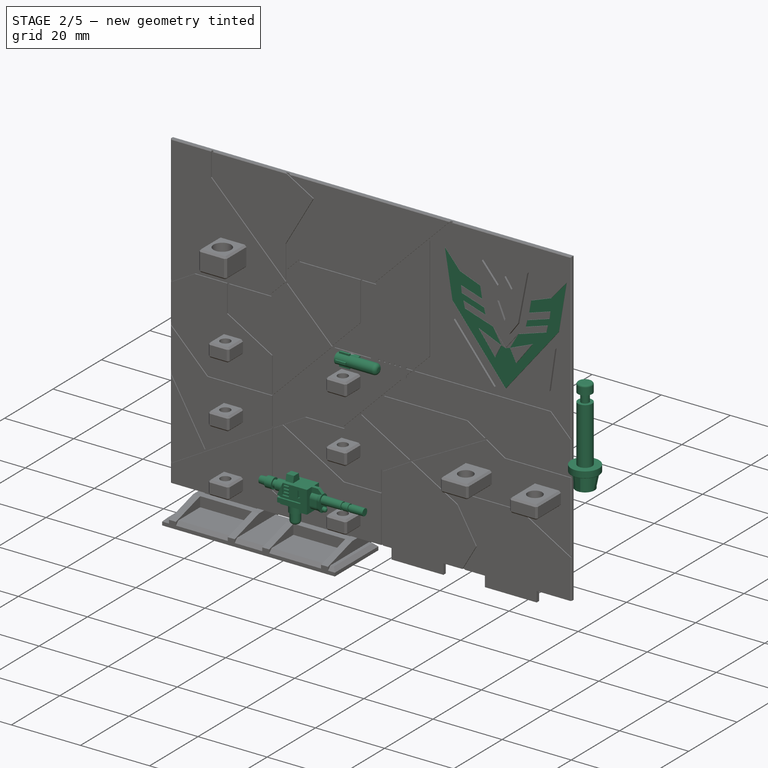
[diagram: stage 2 of 5 — iso view after this stage's code; geometry added in this stage tinted green]
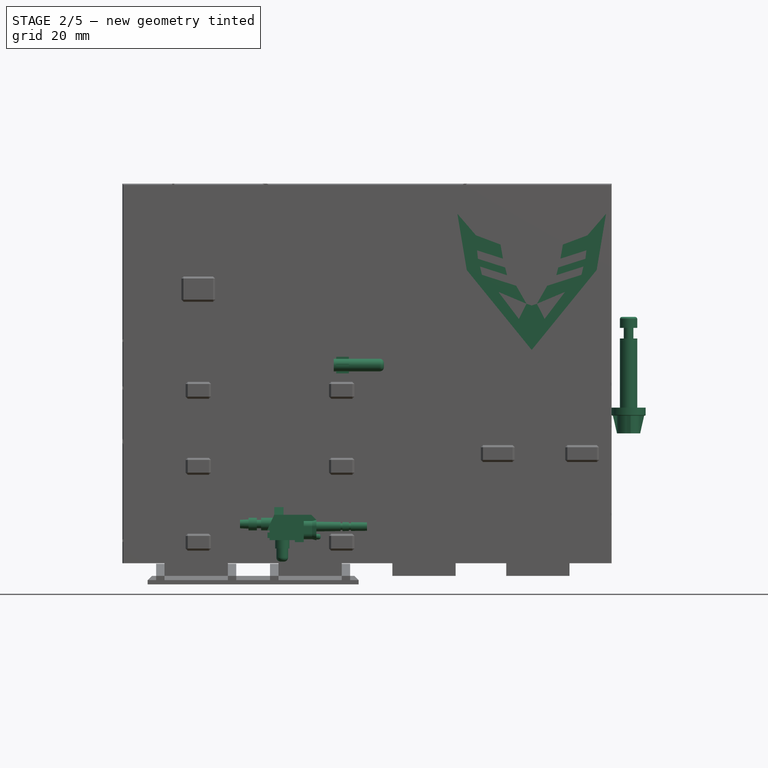
[diagram: stage 2 of 5 — front view after this stage's code; geometry added in this stage tinted green]
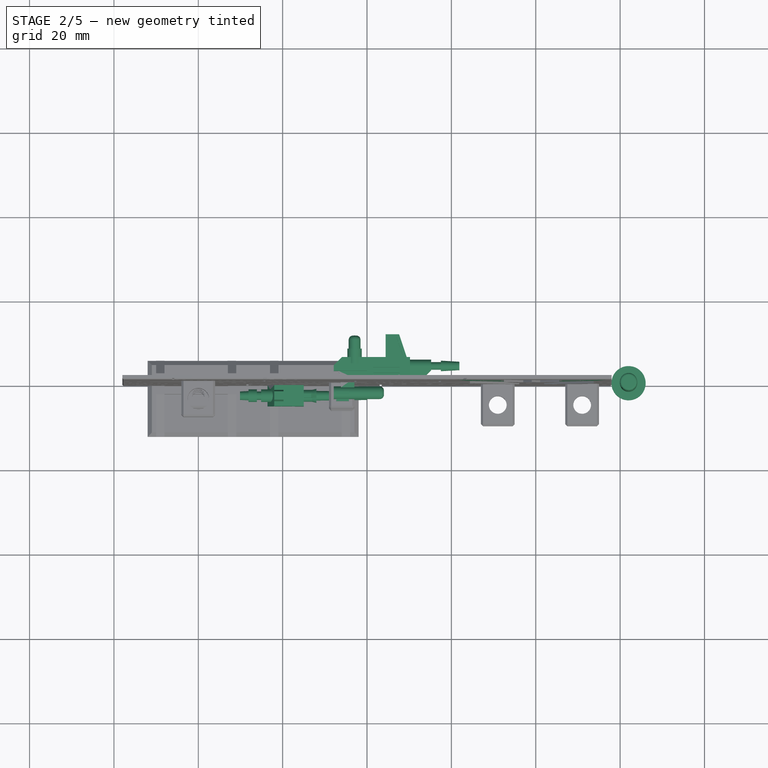
[diagram: stage 2 of 5 — top view after this stage's code; geometry added in this stage tinted green]
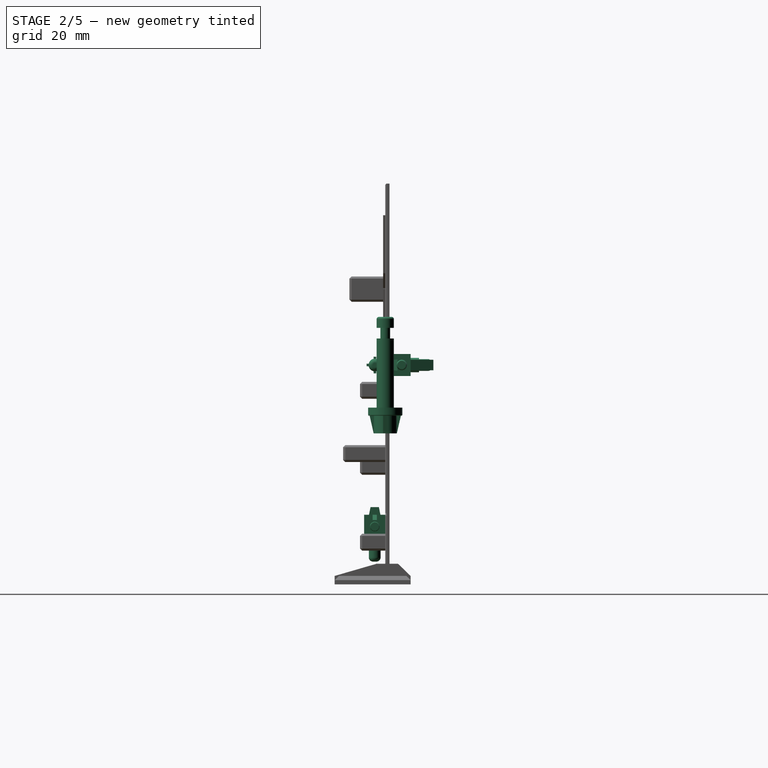
[diagram: stage 2 of 5 — right view after this stage's code; geometry added in this stage tinted green]
FEATURE [PartDesign::Body] Body022  label="Mixmaster_Dual_Head_Missile"
  AllowCompound = false
  Group = -> [Sketch302,Pad204,Sketch303,Pad205,Sketch304,Pad206,Sketch305,Pad207,Fillet036,Fillet037,Sketch306,Pad208,Sketch307,Sketch308,AdditiveLoft012,Sketch309,Sketch310,AdditiveLoft013,Sketch311,Sketch312,AdditiveLoft014,Sketch313,Sketch314,AdditiveLoft015,Sketch315,Pad209,Sketch316,Pad210,Fillet038,Sketch317,Pad211,Fillet039]
  Origin = -> Origin024
  Placement = pos=(101.05,-5,-14.9) rot=(0,1,0;3.14159rad)
  Tip = -> Fillet039
FEATURE [Sketcher::SketchObject] Sketch318
  ArcFitTolerance = 1e-06
  AttachmentOffset = pos=(62,0,-10) rot=(0,0,1;0rad)
  AttachmentSupport = -> [XY_Plane025]
  FullyConstrained = true
  MakeInternals = false
  MapMode = 5
  Placement = pos=(62,0,-10) rot=(0,0,1;0rad)
  sketch-geometry (1):
    g0: Circle CenterX=0 CenterY=0 CenterZ=0 NormalX=0 NormalY=0 NormalZ=1 AngleXU=0 Radius=4.05
  constraints (2):
    c: Coincident(g0,g-1)
    c: Radius(g0) = 4.05
FEATURE [PartDesign::Pad] Pad212
  Direction = (0,0,1)
  Length = 1.9
  Length2 = 10
  Profile = -> Sketch318
  ReferenceAxis = -> Sketch318 [N_Axis]
  Refine = true
  Suppressed = false
  Type = 0
FEATURE [Sketcher::SketchObject] Sketch319
  ArcFitTolerance = 1e-06
  AttachmentSupport = -> [Pad212]
  ExternalGeometry = -> [Pad212]
  FullyConstrained = true
  MakeInternals = false
  MapMode = 5
  Placement = pos=(0,0,-8.1) rot=(0,0,1;0rad)
  sketch-geometry (1):
    g0: Circle CenterX=62 CenterY=0 CenterZ=0 NormalX=0 NormalY=0 NormalZ=1 AngleXU=0 Radius=2.05
  constraints (2):
    c: Coincident(g0,g-3)
    c: Radius(g0) = 2.05
FEATURE [PartDesign::Pad] Pad213
  BaseFeature = -> Pad212
  Direction = (0,0,1)
  Length = 16.4
  Length2 = 10
  Profile = -> Sketch319
  ReferenceAxis = -> Sketch319 [N_Axis]
  Refine = true
  Suppressed = false
  Type = 0
FEATURE [Sketcher::SketchObject] Sketch320
  ArcFitTolerance = 1e-06
  AttachmentSupport = -> [Pad213]
  ExternalGeometry = -> [Pad213]
  FullyConstrained = true
  MakeInternals = false
  MapMode = 5
  Placement = pos=(0,0,8.3) rot=(0,0,1;0rad)
  sketch-geometry (1):
    g0: Circle CenterX=62 CenterY=0 CenterZ=0 NormalX=0 NormalY=0 NormalZ=1 AngleXU=0 Radius=1.15
  constraints (2):
    c: Coincident(g0,g-3)
    c: Radius(g0) = 1.15
FEATURE [PartDesign::Pad] Pad214
  BaseFeature = -> Pad213
  Direction = (0,0,1)
  Length = 2.5
  Length2 = 10
  Profile = -> Sketch320
  ReferenceAxis = -> Sketch320 [N_Axis]
  Refine = true
  Suppressed = false
  Type = 0
FEATURE [Sketcher::SketchObject] Sketch321
  ArcFitTolerance = 1e-06
  AttachmentSupport = -> [Pad214]
  ExternalGeometry = -> [Pad214]
  FullyConstrained = true
  MakeInternals = false
  MapMode = 5
  Placement = pos=(0,0,10.8) rot=(0,0,1;0rad)
  sketch-geometry (1):
    g0: Circle CenterX=62 CenterY=0 CenterZ=0 NormalX=0 NormalY=0 NormalZ=1 AngleXU=0 Radius=2.05
  constraints (2):
    c: Coincident(g0,g-3)
    c: Equal(g0,g-3)
FEATURE [PartDesign::Pad] Pad215
  BaseFeature = -> Pad214
  Direction = (0,0,1)
  Length = 2.6
  Length2 = 10
  Profile = -> Sketch321
  ReferenceAxis = -> Sketch321 [N_Axis]
  Refine = true
  Suppressed = false
  Type = 0
FEATURE [PartDesign::Fillet] Fillet040
  Base = -> Pad215 [Edge12]
  BaseFeature = -> Pad215
  Radius = 0.5
  Refine = true
  SupportTransform = false
  Suppressed = false
  UseAllEdges = false
FEATURE [PartDesign::Fillet] Fillet041
  Base = -> Fillet040 [Edge14]
  BaseFeature = -> Fillet040
  Radius = 0.2
  Refine = true
  SupportTransform = false
  Suppressed = false
  UseAllEdges = false
FEATURE [Sketcher::SketchObject] Sketch322
  ArcFitTolerance = 1e-06
  AttachmentSupport = -> [Fillet041]
  ExternalGeometry = -> [Fillet041]
  FullyConstrained = true
  MakeInternals = false
  MapMode = 5
  Placement = pos=(0,0,-10) rot=(1,0,0;3.14159rad)
  sketch-geometry (1):
    g0: Circle CenterX=62 CenterY=0 CenterZ=0 NormalX=0 NormalY=0 NormalZ=1 AngleXU=0 Radius=2.75
  constraints (2):
    c: Coincident(g0,g-3)
    c: Radius(g0) = 2.75
FEATURE [PartDesign::Pad] Pad216
  BaseFeature = -> Fillet041
  Direction = (0,0,-1)
  Length = 4.2
  Length2 = 10
  Profile = -> Sketch322
  ReferenceAxis = -> Sketch322 [N_Axis]
  Refine = true
  Suppressed = false
  Type = 0
FEATURE [Sketcher::SketchObject] Sketch323
  ArcFitTolerance = 1e-06
  AttachmentSupport = -> [Pad216]
  ExternalGeometry = -> [Pad216]
  FullyConstrained = true
  MakeInternals = false
  MapMode = 5
  Placement = pos=(0,0,-10) rot=(1,0,0;3.14159rad)
  sketch-geometry (4):
    g0: ArcOfCircle CenterX=62 CenterY=-2.4362e-12 CenterZ=0 NormalX=0 NormalY=0 NormalZ=1 AngleXU=0 Radius=2.75 StartAngle=2.95876 EndAngle=3.32443
    g1: LineSegment StartX=59.2958 StartY=0.5 StartZ=0 EndX=58.2958 EndY=0.5 EndZ=0
    g2: LineSegment StartX=58.2958 StartY=0.5 StartZ=0 EndX=58.2958 EndY=-0.5 EndZ=0
    g3: LineSegment StartX=58.2958 StartY=-0.5 StartZ=0 EndX=59.2958 EndY=-0.5 EndZ=0
  constraints (12):
    c: Tangent(g0,g-3) = -1.5708
    c: PointOnObject(g0,g-3)
    c: Coincident(g1,g0)
    c: Horizontal(g1)
    c: Coincident(g2,g1)
    c: Vertical(g2)
    c: Coincident(g3,g2)
    c: Coincident(g3,g0)
    c: Horizontal(g3)
    c: DistanceX(g1,g1) = 1
    c: DistanceY(g2,g2) = 1
    c: DistanceY(g0,g0) = 0.5
FEATURE [Sketcher::SketchObject] Sketch324
  ArcFitTolerance = 1e-06
  AttachmentSupport = -> [Pad216]
  ExternalGeometry = -> [Pad216,Sketch323]
  FullyConstrained = true
  MakeInternals = false
  MapMode = 5
  Placement = pos=(0,0,-14.2) rot=(1,0,0;3.14159rad)
  sketch-geometry (4):
    g0: ArcOfCircle CenterX=62 CenterY=-1e-16 CenterZ=0 NormalX=0 NormalY=0 NormalZ=1 AngleXU=0 Radius=2.75 StartAngle=2.95876 EndAngle=3.32443
    g1: LineSegment StartX=59.2958 StartY=0.5 StartZ=0 EndX=59.25 EndY=0.5 EndZ=0
    g2: LineSegment StartX=59.25 StartY=0.5 StartZ=0 EndX=59.25 EndY=-0.5 EndZ=0
    g3: LineSegment StartX=59.25 StartY=-0.5 StartZ=0 EndX=59.2958 EndY=-0.5 EndZ=0
  constraints (11):
    c: Coincident(g0,g-6)
    c: Coincident(g0,g-7)
    c: Coincident(g0,g-3)
    c: Coincident(g1,g0)
    c: PointOnObject(g1,g-6)
    c: Coincident(g2,g1)
    c: PointOnObject(g2,g-7)
    c: Vertical(g2)
    c: Coincident(g3,g2)
    c: Coincident(g3,g0)
    c: Tangent(g2,g0)
FEATURE [PartDesign::AdditiveLoft] AdditiveLoft016
  BaseFeature = -> Pad216
  Closed = false
  Profile = -> Sketch324
  Refine = true
  Ruled = false
  Sections = -> [Sketch323]
  Suppressed = false
FEATURE [Sketcher::SketchObject] Sketch325
  ArcFitTolerance = 1e-06
  AttachmentSupport = -> [AdditiveLoft016]
  ExternalGeometry = -> [AdditiveLoft016]
  FullyConstrained = true
  MakeInternals = false
  MapMode = 5
  Placement = pos=(0,0,-10) rot=(1,0,0;3.14159rad)
  sketch-geometry (4):
    g0: ArcOfCircle CenterX=62 CenterY=-4.1e-15 CenterZ=0 NormalX=0 NormalY=0 NormalZ=1 AngleXU=0 Radius=2.75 StartAngle=6.10035 EndAngle=6.46602
    g1: LineSegment StartX=64.7042 StartY=0.5 StartZ=0 EndX=65.7042 EndY=0.5 EndZ=0
    g2: LineSegment StartX=65.7042 StartY=0.5 StartZ=0 EndX=65.7042 EndY=-0.5 EndZ=0
    g3: LineSegment StartX=65.7042 StartY=-0.5 StartZ=0 EndX=64.7042 EndY=-0.5 EndZ=0
  constraints (12):
    c: PointOnObject(g0,g-3)
    c: Tangent(g0,g-4) = -1.5708
    c: Coincident(g1,g0)
    c: Coincident(g2,g1)
    c: Vertical(g2)
    c: Coincident(g3,g2)
    c: Coincident(g3,g0)
    c: Horizontal(g3)
    c: Horizontal(g1)
    c: DistanceY(g2,g2) = 1
    c: DistanceX(g1,g1) = 1
    c: DistanceY(g0,g0) = 0.5
FEATURE [Sketcher::SketchObject] Sketch326
  ArcFitTolerance = 1e-06
  AttachmentSupport = -> [AdditiveLoft016]
  ExternalGeometry = -> [AdditiveLoft016,Sketch325]
  FullyConstrained = true
  MakeInternals = false
  MapMode = 5
  Placement = pos=(0,0,-14.2) rot=(1,0,0;3.14159rad)
  sketch-geometry (4):
    g0: ArcOfCircle CenterX=62 CenterY=0 CenterZ=0 NormalX=0 NormalY=0 NormalZ=1 AngleXU=0 Radius=2.75 StartAngle=6.10035 EndAngle=6.46602
    g1: LineSegment StartX=64.7042 StartY=0.5 StartZ=0 EndX=64.75 EndY=0.5 EndZ=0
    g2: LineSegment StartX=64.7042 StartY=-0.5 StartZ=0 EndX=64.75 EndY=-0.5 EndZ=0
    g3: LineSegment StartX=64.75 StartY=-0.5 StartZ=0 EndX=64.75 EndY=0.5 EndZ=0
  constraints (11):
    c: Coincident(g0,g-6)
    c: Coincident(g0,g-4)
    c: PointOnObject(g0,g-5)
    c: Coincident(g1,g0)
    c: PointOnObject(g1,g-5)
    c: Coincident(g2,g0)
    c: PointOnObject(g2,g-6)
    c: Coincident(g3,g2)
    c: Coincident(g3,g1)
    c: Vertical(g3)
    c: Tangent(g3,g0)
FEATURE [PartDesign::AdditiveLoft] AdditiveLoft017
  BaseFeature = -> AdditiveLoft016
  Closed = false
  Profile = -> Sketch326
  Refine = true
  Ruled = false
  Sections = -> [Sketch325]
  Suppressed = false
FEATURE [Sketcher::SketchObject] Sketch327
  ArcFitTolerance = 1e-06
  AttachmentSupport = -> [AdditiveLoft017]
  ExternalGeometry = -> [AdditiveLoft017]
  FullyConstrained = true
  MakeInternals = false
  MapMode = 5
  Placement = pos=(0,0,-10) rot=(1,0,0;3.14159rad)
  sketch-geometry (4):
    g0: ArcOfCircle CenterX=62 CenterY=0 CenterZ=0 NormalX=0 NormalY=0 NormalZ=1 AngleXU=0 Radius=2.74999 StartAngle=4.52955 EndAngle=4.89522
    g1: LineSegment StartX=62.5 StartY=-2.70415 StartZ=0 EndX=62.5 EndY=-3.70415 EndZ=0
    g2: LineSegment StartX=62.5 StartY=-3.70415 StartZ=0 EndX=61.5 EndY=-3.70415 EndZ=0
    g3: LineSegment StartX=61.5 StartY=-2.70415 StartZ=0 EndX=61.5 EndY=-3.70415 EndZ=0
  constraints (12):
    c: Coincident(g0,g-3)
    c: Coincident(g1,g0)
    c: Vertical(g1)
    c: Coincident(g2,g1)
    c: Coincident(g3,g2)
    c: Vertical(g3)
    c: Horizontal(g2)
    c: DistanceX(g2,g2) = 1
    c: DistanceY(g1,g1) = 1
    c: DistanceX(g0,g0) = 0.5
    c: Coincident(g0,g3)
    c: Tangent(g0,g-3)
FEATURE [Sketcher::SketchObject] Sketch328
  ArcFitTolerance = 1e-06
  AttachmentSupport = -> [AdditiveLoft017]
  ExternalGeometry = -> [AdditiveLoft017,Sketch327]
  FullyConstrained = true
  MakeInternals = false
  MapMode = 5
  Placement = pos=(0,0,-14.2) rot=(1,0,0;3.14159rad)
  sketch-geometry (4):
    g0: ArcOfCircle CenterX=62 CenterY=-0.000540384 CenterZ=0 NormalX=0 NormalY=0 NormalZ=1 AngleXU=0 Radius=2.74946 StartAngle=4.52952 EndAngle=4.89526
    g1: LineSegment StartX=61.5 StartY=-2.70415 StartZ=0 EndX=61.5 EndY=-2.75 EndZ=0
    g2: LineSegment StartX=62.5 StartY=-2.70415 StartZ=0 EndX=62.5 EndY=-2.75 EndZ=0
    g3: LineSegment StartX=62.5 StartY=-2.75 StartZ=0 EndX=61.5 EndY=-2.75 EndZ=0
  constraints (11):
    c: Coincident(g0,g-4)
    c: Coincident(g0,g-5)
    c: Tangent(g0,g-3)
    c: Coincident(g1,g0)
    c: PointOnObject(g1,g-4)
    c: Coincident(g2,g0)
    c: PointOnObject(g2,g-5)
    c: Coincident(g3,g2)
    c: Coincident(g3,g1)
    c: Horizontal(g3)
    c: Tangent(g3,g0)
FEATURE [PartDesign::AdditiveLoft] AdditiveLoft018
  BaseFeature = -> AdditiveLoft017
  Closed = false
  Profile = -> Sketch328
  Refine = true
  Ruled = false
  Sections = -> [Sketch327]
  Suppressed = false
FEATURE [Sketcher::SketchObject] Sketch329
  ArcFitTolerance = 1e-06
  AttachmentSupport = -> [AdditiveLoft018]
  ExternalGeometry = -> [AdditiveLoft018]
  FullyConstrained = true
  MakeInternals = false
  MapMode = 5
  Placement = pos=(0,0,-10) rot=(1,0,0;3.14159rad)
  sketch-geometry (4):
    g0: ArcOfCircle CenterX=62 CenterY=0 CenterZ=0 NormalX=0 NormalY=0 NormalZ=1 AngleXU=0 Radius=2.75 StartAngle=1.38796 EndAngle=1.75363
    g1: LineSegment StartX=61.5 StartY=2.70416 StartZ=0 EndX=61.5 EndY=3.70416 EndZ=0
    g2: LineSegment StartX=61.5 StartY=3.70416 StartZ=0 EndX=62.5 EndY=3.70416 EndZ=0
    g3: LineSegment StartX=62.5 StartY=2.70416 StartZ=0 EndX=62.5 EndY=3.70416 EndZ=0
  constraints (12):
    c: PointOnObject(g0,g-3)
    c: Coincident(g0,g-3)
    c: Coincident(g1,g0)
    c: Vertical(g1)
    c: Coincident(g2,g1)
    c: Horizontal(g2)
    c: Coincident(g3,g0)
    c: Coincident(g3,g2)
    c: Vertical(g3)
    c: DistanceX(g2,g2) = 1
    c: DistanceY(g3,g3) = 1
    c: DistanceX(g0,g0) = 0.5
FEATURE [Sketcher::SketchObject] Sketch330
  ArcFitTolerance = 1e-06
  AttachmentSupport = -> [AdditiveLoft018]
  ExternalGeometry = -> [AdditiveLoft018,Sketch329]
  FullyConstrained = true
  MakeInternals = false
  MapMode = 5
  Placement = pos=(0,0,-14.2) rot=(1,0,0;3.14159rad)
  sketch-geometry (4):
    g0: ArcOfCircle CenterX=62 CenterY=0 CenterZ=0 NormalX=0 NormalY=0 NormalZ=1 AngleXU=0 Radius=2.75 StartAngle=1.38796 EndAngle=1.75363
    g1: LineSegment StartX=61.5 StartY=2.70416 StartZ=0 EndX=61.5 EndY=2.75 EndZ=0
    g2: LineSegment StartX=62.5 StartY=2.70416 StartZ=0 EndX=62.5 EndY=2.75 EndZ=0
    g3: LineSegment StartX=62.5 StartY=2.75 StartZ=0 EndX=61.5 EndY=2.75 EndZ=0
  constraints (11):
    c: Coincident(g0,g-5)
    c: Coincident(g0,g-4)
    c: Coincident(g0,g-3)
    c: Coincident(g1,g0)
    c: PointOnObject(g1,g-5)
    c: Coincident(g2,g0)
    c: PointOnObject(g2,g-4)
    c: Coincident(g3,g2)
    c: Coincident(g3,g1)
    c: Horizontal(g3)
    c: Tangent(g3,g0)
FEATURE [PartDesign::AdditiveLoft] AdditiveLoft019
  BaseFeature = -> AdditiveLoft018
  Closed = false
  Profile = -> Sketch329
  Refine = true
  Ruled = false
  Sections = -> [Sketch330]
  Suppressed = false
FEATURE [PartDesign::Body] Body023  label="Mixmaster_Single_Head_Missile"
  AllowCompound = false
  Group = -> [Sketch318,Pad212,Sketch319,Pad213,Sketch320,Pad214,Sketch321,Pad215,Fillet040,Fillet041,Sketch322,Pad216,Sketch323,Sketch324,AdditiveLoft016,Sketch325,Sketch326,AdditiveLoft017,Sketch327,Sketch328,AdditiveLoft018,Sketch329,Sketch330,AdditiveLoft019,Sketch331,Pad217,Fillet042,Sketch332,Pad218,Fillet043]
  Origin = -> Origin025
  Placement = pos=(113,-5,-25.1) rot=(0,1,0;3.14159rad)
  Tip = -> Fillet043
FEATURE [Sketcher::SketchObject] Sketch333
  ArcFitTolerance = 1e-06
  AttachmentSupport = -> [XY_Plane026]
  FullyConstrained = true
  MakeInternals = false
  MapMode = 5
  sketch-geometry (4):
    g0: LineSegment StartX=0 StartY=0 StartZ=0 EndX=10.2 EndY=0 EndZ=0
    g1: LineSegment StartX=10.2 StartY=0 StartZ=0 EndX=10.2 EndY=6 EndZ=0
    g2: LineSegment StartX=10.2 StartY=6 StartZ=0 EndX=0 EndY=6 EndZ=0
    g3: LineSegment StartX=0 StartY=6 StartZ=0 EndX=0 EndY=0 EndZ=0
  constraints (11):
    c: Coincident(g0,g1)
    c: Coincident(g1,g2)
    c: Coincident(g2,g3)
    c: Coincident(g3,g0)
    c: Horizontal(g0)
    c: Horizontal(g2)
    c: Vertical(g1)
    c: Vertical(g3)
    c: Coincident(g0,g-1)
    c: DistanceX(g2,g2) = 10.2
    c: DistanceY(g1,g1) = 6
FEATURE [PartDesign::Pad] Pad219
  Direction = (0,0,1)
  Length = 4
  Length2 = 10
  Profile = -> Sketch333
  ReferenceAxis = -> Sketch333 [N_Axis]
  Refine = true
  Suppressed = false
  Type = 0
FEATURE [Sketcher::SketchObject] Sketch334
  ArcFitTolerance = 1e-06
  AttachmentSupport = -> [Pad219]
  ExternalGeometry = -> [Pad219]
  FullyConstrained = false
  MakeInternals = false
  MapMode = 5
  Placement = pos=(0,0,0) rot=(1,0,0;1.5708rad)
  sketch-geometry (20):
    g0: LineSegment StartX=2.2 StartY=4 StartZ=0 EndX=2.2 EndY=0 EndZ=0
    g1: LineSegment StartX=2.2 StartY=0 StartZ=0 EndX=2.7 EndY=0 EndZ=0
    g2: LineSegment StartX=2.7 StartY=0 StartZ=0 EndX=2.7 EndY=4 EndZ=0
    g3: LineSegment StartX=2.7 StartY=4 StartZ=0 EndX=2.2 EndY=4 EndZ=0
    g4: LineSegment StartX=3.7 StartY=4 StartZ=0 EndX=3.7 EndY=0 EndZ=0
    g5: LineSegment StartX=3.7 StartY=0 StartZ=0 EndX=4.2 EndY=0 EndZ=0
    g6: LineSegment StartX=4.2 StartY=0 StartZ=0 EndX=4.2 EndY=4 EndZ=0
    g7: LineSegment StartX=4.2 StartY=4 StartZ=0 EndX=3.7 EndY=4 EndZ=0
    g8: LineSegment StartX=5.2 StartY=4 StartZ=0 EndX=5.2 EndY=0 EndZ=0
    g9: LineSegment StartX=5.2 StartY=0 StartZ=0 EndX=5.7 EndY=0 EndZ=0
    g10: LineSegment StartX=5.7 StartY=0 StartZ=0 EndX=5.7 EndY=4 EndZ=0
    g11: LineSegment StartX=5.7 StartY=4 StartZ=0 EndX=5.2 EndY=4 EndZ=0
    g12: LineSegment StartX=6.7 StartY=4 StartZ=0 EndX=6.7 EndY=0 EndZ=0
    g13: LineSegment StartX=6.7 StartY=0 StartZ=0 EndX=7.2 EndY=0 EndZ=0
    g14: LineSegment StartX=7.2 StartY=0 StartZ=0 EndX=7.2 EndY=4 EndZ=0
    g15: LineSegment StartX=7.2 StartY=4 StartZ=0 EndX=6.7 EndY=4 EndZ=0
    g16: LineSegment StartX=8.2 StartY=4 StartZ=0 EndX=8.2 EndY=0 EndZ=0
    g17: LineSegment StartX=8.2 StartY=0 StartZ=0 EndX=8.7 EndY=0 EndZ=0
    g18: LineSegment StartX=8.7 StartY=0 StartZ=0 EndX=8.7 EndY=4 EndZ=0
    g19: LineSegment StartX=8.7 StartY=4 StartZ=0 EndX=8.2 EndY=4 EndZ=0
  constraints (60):
    c: Coincident(g0,g1)
    c: Coincident(g1,g2)
    c: Coincident(g2,g3)
    c: Coincident(g3,g0)
    c: Vertical(g0)
    c: Vertical(g2)
    c: Horizontal(g1)
    c: Horizontal(g3)
    c: PointOnObject(g0,g-3)
    c: PointOnObject(g1,g-5)
    c: Coincident(g4,g5)
    c: Coincident(g5,g6)
    c: Coincident(g6,g7)
    c: Coincident(g7,g4)
    c: Vertical(g4)
    c: Vertical(g6)
    c: Horizontal(g5)
    c: Horizontal(g7)
    c: PointOnObject(g4,g-3)
    c: PointOnObject(g5,g-5)
    c: Coincident(g8,g9)
    c: Coincident(g9,g10)
    c: Coincident(g10,g11)
    c: Coincident(g11,g8)
    c: Vertical(g8)
    c: Vertical(g10)
    c: Horizontal(g9)
    c: Horizontal(g11)
    c: PointOnObject(g9,g-5)
    c: Coincident(g12,g13)
    c: Coincident(g13,g14)
    c: Coincident(g14,g15)
    c: Coincident(g15,g12)
    c: Vertical(g12)
    c: Vertical(g14)
    c: Horizontal(g13)
    c: Horizontal(g15)
    c: PointOnObject(g12,g-3)
    c: Coincident(g16,g17)
    c: Coincident(g17,g18)
    c: Coincident(g18,g19)
    c: Coincident(g19,g16)
    c: Vertical(g16)
    c: Vertical(g18)
    c: Horizontal(g17)
    c: Horizontal(g19)
    c: PointOnObject(g16,g-3)
    c: PointOnObject(g17,g-5)
    c: PointOnObject(g13,g-5)
    c: DistanceX(g18,g-4) = 1.5
    c: DistanceX(g14,g16) = 1
    c: DistanceX(g16,g18) = 0.5
    c: DistanceX(g12,g14) = 0.5
    c: DistanceX(g10,g12) = 1
    c: DistanceX(g8,g10) = 0.5
    c: DistanceX(g6,g8) = 1
    c: DistanceX(g4,g6) = 0.5
    c: DistanceX(g2,g4) = 1
    c: DistanceX(g0,g2) = 0.5
    c: DistanceX(g-6,g0) = 2.2
FEATURE [PartDesign::Pocket] Pocket051
  BaseFeature = -> Pad219
  Direction = (0,1,-2e-16)
  Length = 0.5
  Length2 = 5
  Profile = -> Sketch334
  ReferenceAxis = -> Sketch334 [N_Axis]
  Refine = true
  Suppressed = false
  Type = 0
FEATURE [Sketcher::SketchObject] Sketch335
  ArcFitTolerance = 1e-06
  AttachmentSupport = -> [Pocket051]
  ExternalGeometry = -> [Pocket051]
  FullyConstrained = true
  MakeInternals = false
  MapMode = 5
  Placement = pos=(0,0,0) rot=(1,0,0;3.14159rad)
  sketch-geometry (12):
    g0: LineSegment StartX=1.5 StartY=-4.3 StartZ=0 EndX=1.5 EndY=-4.8 EndZ=0
    g1: LineSegment StartX=1.5 StartY=-4.8 StartZ=0 EndX=7.7 EndY=-4.8 EndZ=0
    g2: LineSegment StartX=7.7 StartY=-4.8 StartZ=0 EndX=7.7 EndY=-4.3 EndZ=0
    g3: LineSegment StartX=7.7 StartY=-4.3 StartZ=0 EndX=1.5 EndY=-4.3 EndZ=0
    g4: LineSegment StartX=1.5 StartY=-3.05 StartZ=0 EndX=1.5 EndY=-3.55 EndZ=0
    g5: LineSegment StartX=1.5 StartY=-3.55 StartZ=0 EndX=7.7 EndY=-3.55 EndZ=0
    g6: LineSegment StartX=7.7 StartY=-3.55 StartZ=0 EndX=7.7 EndY=-3.05 EndZ=0
    g7: LineSegment StartX=7.7 StartY=-3.05 StartZ=0 EndX=1.5 EndY=-3.05 EndZ=0
    g8: LineSegment StartX=1.5 StartY=-1.8 StartZ=0 EndX=1.5 EndY=-2.3 EndZ=0
    g9: LineSegment StartX=1.5 StartY=-2.3 StartZ=0 EndX=7.7 EndY=-2.3 EndZ=0
    g10: LineSegment StartX=7.7 StartY=-2.3 StartZ=0 EndX=7.7 EndY=-1.8 EndZ=0
    g11: LineSegment StartX=7.7 StartY=-1.8 StartZ=0 EndX=1.5 EndY=-1.8 EndZ=0
  constraints (37):
    c: Coincident(g0,g1)
    c: Coincident(g1,g2)
    c: Coincident(g2,g3)
    c: Coincident(g3,g0)
    c: Vertical(g0)
    c: Vertical(g2)
    c: Horizontal(g1)
    c: Horizontal(g3)
    c: Coincident(g4,g5)
    c: Coincident(g5,g6)
    c: Coincident(g6,g7)
    c: Coincident(g7,g4)
    c: Vertical(g4)
    c: Vertical(g6)
    c: Horizontal(g5)
    c: Horizontal(g7)
    c: Coincident(g8,g9)
    c: Coincident(g9,g10)
    c: Coincident(g10,g11)
    c: Coincident(g11,g8)
    c: Vertical(g8)
    c: Vertical(g10)
    c: Horizontal(g9)
    c: Horizontal(g11)
    c: DistanceY(g0,g0) = 0.5
    c: DistanceY(g4,g4) = 0.5
    c: DistanceY(g8,g8) = 0.5
    c: DistanceY(g0,g4) = 0.75
    c: DistanceY(g4,g8) = 0.75
    c: DistanceX(g-5,g0) = 1.5
    c: DistanceX(g3,g3) = 6.2
    c: DistanceX(g7,g7) = 6.2
    c: DistanceX(g1,g-4) = 2.5
    c: DistanceX(g11,g11) = 6.2
    c: DistanceX(g-5,g4) = 1.5
    c: DistanceX(g-5,g8) = 1.5
    c: DistanceY(g-5,g0) = 1.2
FEATURE [PartDesign::Pocket] Pocket052
  BaseFeature = -> Pocket051
  Direction = (0,0,1)
  Length = 0.5
  Length2 = 5
  Profile = -> Sketch335
  ReferenceAxis = -> Sketch335 [N_Axis]
  Refine = true
  Suppressed = false
  Type = 0
FEATURE [Sketcher::SketchObject] Sketch336
  ArcFitTolerance = 1e-06
  AttachmentSupport = -> [Pocket052]
  ExternalGeometry = -> [Pocket052]
  FullyConstrained = true
  MakeInternals = false
  MapMode = 5
  Placement = pos=(0,0,4) rot=(0,0,1;0rad)
  sketch-geometry (12):
    g0: LineSegment StartX=7.7 StartY=1.8 StartZ=0 EndX=7.7 EndY=2.3 EndZ=0
    g1: LineSegment StartX=7.7 StartY=2.3 StartZ=0 EndX=1.5 EndY=2.3 EndZ=0
    g2: LineSegment StartX=1.5 StartY=2.3 StartZ=0 EndX=1.5 EndY=1.8 EndZ=0
    g3: LineSegment StartX=1.5 StartY=1.8 StartZ=0 EndX=7.7 EndY=1.8 EndZ=0
    g4: LineSegment StartX=7.7 StartY=3.05 StartZ=0 EndX=7.7 EndY=3.55 EndZ=0
    g5: LineSegment StartX=7.7 StartY=3.55 StartZ=0 EndX=1.5 EndY=3.55 EndZ=0
    g6: LineSegment StartX=1.5 StartY=3.55 StartZ=0 EndX=1.5 EndY=3.05 EndZ=0
    g7: LineSegment StartX=1.5 StartY=3.05 StartZ=0 EndX=7.7 EndY=3.05 EndZ=0
    g8: LineSegment StartX=7.7 StartY=4.3 StartZ=0 EndX=7.7 EndY=4.8 EndZ=0
    g9: LineSegment StartX=7.7 StartY=4.8 StartZ=0 EndX=1.5 EndY=4.8 EndZ=0
    g10: LineSegment StartX=1.5 StartY=4.8 StartZ=0 EndX=1.5 EndY=4.3 EndZ=0
    g11: LineSegment StartX=1.5 StartY=4.3 StartZ=0 EndX=7.7 EndY=4.3 EndZ=0
  constraints (30):
    c: Coincident(g0,g1)
    c: Coincident(g1,g2)
    c: Coincident(g2,g3)
    c: Coincident(g3,g0)
    c: Vertical(g0)
    c: Vertical(g2)
    c: Horizontal(g1)
    c: Horizontal(g3)
    c: Coincident(g0,g-11)
    c: Coincident(g1,g-14)
    c: Coincident(g4,g5)
    c: Coincident(g5,g6)
    c: Coincident(g6,g7)
    c: Coincident(g7,g4)
    c: Vertical(g4)
    c: Vertical(g6)
    c: Horizontal(g5)
    c: Horizontal(g7)
    c: Coincident(g4,g-8)
    c: Coincident(g5,g-12)
    c: Coincident(g8,g9)
    c: Coincident(g9,g10)
    c: Coincident(g10,g11)
    c: Coincident(g11,g8)
    c: Vertical(g8)
    c: Vertical(g10)
    c: Horizontal(g9)
    c: Horizontal(g11)
    c: Coincident(g8,g-5)
    c: Coincident(g9,g-13)
FEATURE [PartDesign::Pocket] Pocket053
  BaseFeature = -> Pocket052
  Direction = (0,0,-1)
  Length = 0.5
  Length2 = 5
  Profile = -> Sketch336
  ReferenceAxis = -> Sketch336 [N_Axis]
  Refine = true
  Suppressed = false
  Type = 0
FEATURE [Sketcher::SketchObject] Sketch337
  ArcFitTolerance = 1e-06
  AttachmentSupport = -> [Pocket053]
  ExternalGeometry = -> [Pocket053]
  FullyConstrained = true
  MakeInternals = false
  MapMode = 5
  Placement = pos=(0,0,0) rot=(1,0,0;3.14159rad)
  sketch-geometry (8):
    g0: LineSegment StartX=1.5 StartY=-1.8 StartZ=0 EndX=7.7 EndY=-1.8 EndZ=0
    g1: LineSegment StartX=7.7 StartY=-1.8 StartZ=0 EndX=7.7 EndY=-6 EndZ=0
    g2: LineSegment StartX=7.7 StartY=-6 StartZ=0 EndX=8.7 EndY=-6 EndZ=0
    g3: LineSegment StartX=8.7 StartY=-6 StartZ=0 EndX=8.7 EndY=-1.1 EndZ=0
    g4: LineSegment StartX=8.2 StartY=-0.6 StartZ=0 EndX=1.5 EndY=-0.6 EndZ=0
    g5: LineSegment StartX=1.5 StartY=-0.6 StartZ=0 EndX=1.5 EndY=-1.8 EndZ=0
    g6: ArcOfCircle CenterX=8.2 CenterY=-1.1 CenterZ=0 NormalX=0 NormalY=0 NormalZ=1 AngleXU=0 Radius=0.5 StartAngle=1.65e-14 EndAngle=1.5708
    g7: GeomPoint [constr] X=8.7 Y=-0.6 Z=0
  constraints (20):
    c: Coincident(g0,g-3)
    c: Coincident(g0,g-5)
    c: Coincident(g1,g0)
    c: PointOnObject(g1,g-4)
    c: Vertical(g1)
    c: Coincident(g2,g1)
    c: PointOnObject(g2,g-4)
    c: Coincident(g3,g2)
    c: Vertical(g3)
    c: Horizontal(g4)
    c: Coincident(g5,g4)
    c: Coincident(g5,g0)
    c: Vertical(g5)
    c: DistanceY(g5,g5) = 1.2
    c: DistanceX(g2,g2) = 1
    c: PointOnObject(g7,g3)
    c: PointOnObject(g7,g4)
    c: Tangent(g3,g6) = -1.5708
    c: Tangent(g4,g6) = -1.5708
    c: Radius(g6) = 0.5
FEATURE [PartDesign::Pad] Pad220
  BaseFeature = -> Pocket053
  Direction = (0,0,-1)
  Length = 0.6
  Length2 = 10
  Profile = -> Sketch337
  ReferenceAxis = -> Sketch337 [N_Axis]
  Refine = true
  Suppressed = false
  Type = 0
FEATURE [Sketcher::SketchObject] Sketch338
  ArcFitTolerance = 1e-06
  AttachmentSupport = -> [Pad220]
  ExternalGeometry = -> [Pad220]
  FullyConstrained = true
  MakeInternals = false
  MapMode = 5
  Placement = pos=(0,0,4) rot=(0,0,1;0rad)
  sketch-geometry (7):
    g0: LineSegment StartX=8.7 StartY=1.1 StartZ=0 EndX=8.7 EndY=6 EndZ=0
    g1: LineSegment StartX=8.7 StartY=6 StartZ=0 EndX=7.7 EndY=6 EndZ=0
    g2: LineSegment StartX=7.7 StartY=6 StartZ=0 EndX=7.7 EndY=1.8 EndZ=0
    g3: LineSegment StartX=7.7 StartY=1.8 StartZ=0 EndX=1.5 EndY=1.8 EndZ=0
    g4: LineSegment StartX=1.5 StartY=1.8 StartZ=0 EndX=1.5 EndY=0.6 EndZ=0
    g5: LineSegment StartX=1.5 StartY=0.6 StartZ=0 EndX=8.2 EndY=0.6 EndZ=0
    g6: ArcOfCircle CenterX=8.20001 CenterY=1.09999 CenterZ=0 NormalX=0 NormalY=0 NormalZ=1 AngleXU=0 Radius=0.499993 StartAngle=4.71238 EndAngle=6.2832
  constraints (15):
    c: Coincident(g0,g-7)
    c: Coincident(g0,g-4)
    c: Coincident(g1,g0)
    c: Coincident(g1,g-5)
    c: Coincident(g2,g1)
    c: Coincident(g2,g-6)
    c: Coincident(g3,g2)
    c: Coincident(g3,g-9)
    c: Coincident(g4,g3)
    c: Coincident(g4,g-9)
    c: Coincident(g5,g4)
    c: Coincident(g5,g-8)
    c: Coincident(g6,g5)
    c: Coincident(g6,g0)
    c: Tangent(g6,g-7)
FEATURE [PartDesign::Pad] Pad221
  BaseFeature = -> Pad220
  Direction = (0,0,1)
  Length = 0.6
  Length2 = 10
  Profile = -> Sketch338
  ReferenceAxis = -> Sketch338 [N_Axis]
  Refine = true
  Suppressed = false
  Type = 0
FEATURE [Sketcher::SketchObject] Sketch339
  ArcFitTolerance = 1e-06
  AttachmentSupport = -> [Pad221]
  ExternalGeometry = -> [Pad221]
  FullyConstrained = true
  MakeInternals = false
  MapMode = 5
  Placement = pos=(10.2,0,0) rot=(0.57735,0.57735,0.57735;2.0944rad)
  sketch-geometry (4):
    g0: ArcOfCircle CenterX=3.9 CenterY=2 CenterZ=0 NormalX=0 NormalY=0 NormalZ=1 AngleXU=0 Radius=1.5 StartAngle=4.71239 EndAngle=7.85398
    g1: LineSegment StartX=3.9 StartY=3.5 StartZ=0 EndX=0.6 EndY=3.05 EndZ=0
    g2: LineSegment StartX=3.9 StartY=0.5 StartZ=0 EndX=0.6 EndY=0.95 EndZ=0
    g3: LineSegment StartX=0.6 StartY=0.95 StartZ=0 EndX=0.6 EndY=3.05 EndZ=0
  constraints (14):
    c: Coincident(g1,g0)
    c: Coincident(g2,g0)
    c: Coincident(g3,g2)
    c: Coincident(g3,g1)
    c: Vertical(g3)
    c: Diameter(g0) = 3
    c: DistanceY(g-3,g-3) = 4
    c: DistanceY(g0,g-4) = 2
    c: DistanceY(g3,g3) = 2.1
    c: DistanceY(g1,g-5) = 0.95
    c: DistanceX(g0,g0) = 0
    c: DistanceX(g0,g0) = 0
    c: DistanceX(g-5,g1) = 0.6
    c: DistanceX(g0,g-4) = 2.1
FEATURE [PartDesign::Pad] Pad222
  BaseFeature = -> Pad221
  Direction = (1,0,0)
  Length = 5
  Length2 = 10
  Profile = -> Sketch339
  ReferenceAxis = -> Sketch339 [N_Axis]
  Refine = true
  Suppressed = false
  Type = 0
FEATURE [Sketcher::SketchObject] Sketch340
  ArcFitTolerance = 1e-06
  AttachmentSupport = -> [Pad222]
  ExternalGeometry = -> [Pad222]
  FullyConstrained = true
  MakeInternals = false
  MapMode = 5
  Placement = pos=(0,0,0) rot=(1,0,0;3.14159rad)
  sketch-geometry (3):
    g0: LineSegment StartX=15.2 StartY=-0.6 StartZ=0 EndX=12.9 EndY=-0.6 EndZ=0
    g1: LineSegment StartX=15.2 StartY=-0.6 StartZ=0 EndX=15.2 EndY=-2.9 EndZ=0
    g2: LineSegment StartX=15.2 StartY=-2.9 StartZ=0 EndX=12.9 EndY=-0.6 EndZ=0
  constraints (8):
    c: Coincident(g0,g-4)
    c: PointOnObject(g0,g-4)
    c: Coincident(g1,g0)
    c: PointOnObject(g1,g-3)
    c: Coincident(g2,g1)
    c: Coincident(g2,g0)
    c: Angle(g1,g2) = 0.785398
    c: DistanceX(g0,g0) = 2.3
FEATURE [PartDesign::Pocket] Pocket054
  BaseFeature = -> Pad222
  Direction = (0,0,1)
  Length = 5
  Length2 = 5
  Profile = -> Sketch340
  ReferenceAxis = -> Sketch340 [N_Axis]
  Refine = true
  Suppressed = false
  Type = 0
FEATURE [Sketcher::SketchObject] Sketch341
  ArcFitTolerance = 1e-06
  AttachmentSupport = -> [Pocket054]
  ExternalGeometry = -> [Pocket054]
  FullyConstrained = true
  MakeInternals = false
  MapMode = 5
  Placement = pos=(0,0.138134,1.01298) rot=(1,0,0;3.00606rad)
  sketch-geometry (4):
    g0: LineSegment StartX=10.2 StartY=-1.26614 StartZ=0 EndX=10.2 EndY=-1.86614 EndZ=0
    g1: LineSegment StartX=10.2 StartY=-1.86614 StartZ=0 EndX=13 EndY=-1.86614 EndZ=0
    g2: LineSegment StartX=13 StartY=-1.86614 StartZ=0 EndX=13 EndY=-1.26614 EndZ=0
    g3: LineSegment StartX=13 StartY=-1.26614 StartZ=0 EndX=10.2 EndY=-1.26614 EndZ=0
  constraints (12):
    c: Coincident(g0,g1)
    c: Coincident(g1,g2)
    c: Coincident(g2,g3)
    c: Coincident(g3,g0)
    c: Vertical(g0)
    c: Vertical(g2)
    c: Horizontal(g1)
    c: Horizontal(g3)
    c: PointOnObject(g0,g-3)
    c: DistanceY(g2,g2) = 0.6
    c: DistanceX(g3,g3) = 2.8
    c: DistanceY(g0,g-4) = 0.8
FEATURE [PartDesign::Pocket] Pocket055
  BaseFeature = -> Pocket054
  Direction = (0,0.135113,0.99083)
  Length = 0.5
  Length2 = 5
  Profile = -> Sketch341
  ReferenceAxis = -> Sketch341 [N_Axis]
  Refine = true
  Suppressed = false
  Type = 0
FEATURE [Sketcher::SketchObject] Sketch342
  ArcFitTolerance = 1e-06
  AttachmentSupport = -> [Pocket055]
  ExternalGeometry = -> [Pocket055]
  FullyConstrained = true
  MakeInternals = false
  MapMode = 5
  Placement = pos=(0,-0.397363,2.914) rot=(1,0,0;0.135528rad)
  sketch-geometry (4):
    g0: LineSegment StartX=10.2 StartY=2.40659 StartZ=0 EndX=10.2 EndY=1.80659 EndZ=0
    g1: LineSegment StartX=10.2 StartY=1.80659 StartZ=0 EndX=13 EndY=1.80659 EndZ=0
    g2: LineSegment StartX=13 StartY=1.80659 StartZ=0 EndX=13 EndY=2.40659 EndZ=0
    g3: LineSegment StartX=13 StartY=2.40659 StartZ=0 EndX=10.2 EndY=2.40659 EndZ=0
  constraints (12):
    c: Coincident(g0,g1)
    c: Coincident(g1,g2)
    c: Coincident(g2,g3)
    c: Coincident(g3,g0)
    c: Vertical(g0)
    c: Vertical(g2)
    c: Horizontal(g1)
    c: Horizontal(g3)
    c: PointOnObject(g0,g-3)
    c: DistanceX(g1,g1) = 2.8
    c: DistanceY(g-4,g0) = 0.8
    c: DistanceY(g1,g2) = 0.6
FEATURE [PartDesign::Pocket] Pocket056
  BaseFeature = -> Pocket055
  Direction = (0,0.135113,-0.99083)
  Length = 0.5
  Length2 = 5
  Profile = -> Sketch342
  ReferenceAxis = -> Sketch342 [N_Axis]
  Refine = true
  Suppressed = false
  Type = 0
FEATURE [Sketcher::SketchObject] Sketch343
  ArcFitTolerance = 1e-06
  AttachmentSupport = -> [Pocket056]
  ExternalGeometry = -> [Pocket056]
  FullyConstrained = true
  MakeInternals = false
  MapMode = 5
  Placement = pos=(15.2,0,0) rot=(0.57735,0.57735,0.57735;2.0944rad)
  sketch-geometry (1):
    g0: Circle CenterX=3.9 CenterY=2 CenterZ=0 NormalX=0 NormalY=0 NormalZ=1 AngleXU=0 Radius=0.9
  constraints (2):
    c: Coincident(g0,g-3)
    c: Diameter(g0) = 1.8
FEATURE [PartDesign::Pad] Pad223
  BaseFeature = -> Pocket056
  Direction = (1,0,0)
  Length = 2.3
  Length2 = 10
  Profile = -> Sketch343
  ReferenceAxis = -> Sketch343 [N_Axis]
  Refine = true
  Suppressed = false
  Type = 0
FEATURE [Sketcher::SketchObject] Sketch344
  ArcFitTolerance = 1e-06
  AttachmentSupport = -> [Pad223]
  ExternalGeometry = -> [Pad223]
  FullyConstrained = true
  MakeInternals = false
  MapMode = 5
  Placement = pos=(17.5,0,0) rot=(0.57735,0.57735,0.57735;2.0944rad)
  sketch-geometry (1):
    g0: Circle CenterX=3.9 CenterY=2 CenterZ=0 NormalX=0 NormalY=0 NormalZ=1 AngleXU=0 Radius=1.25
  constraints (2):
    c: Coincident(g0,g-3)
    c: Diameter(g0) = 2.5
FEATURE [Sketcher::SketchObject] Sketch345
  ArcFitTolerance = 1e-06
  AttachmentOffset = pos=(0,0,4.4) rot=(0,0,1;0rad)
  AttachmentSupport = -> [Pad223]
  ExternalGeometry = -> [Pad223]
  FullyConstrained = true
  MakeInternals = false
  MapMode = 5
  Placement = pos=(21.9,0,0) rot=(0.57735,0.57735,0.57735;2.0944rad)
  sketch-geometry (1):
    g0: Circle CenterX=3.9 CenterY=2 CenterZ=0 NormalX=0 NormalY=0 NormalZ=1 AngleXU=0 Radius=1
  constraints (2):
    c: Coincident(g0,g-3)
    c: Diameter(g0) = 2
FEATURE [PartDesign::AdditiveLoft] AdditiveLoft020
  BaseFeature = -> Pad223
  Closed = false
  Profile = -> Sketch344
  Refine = true
  Ruled = false
  Sections = -> [Sketch345]
  Suppressed = false
FEATURE [Sketcher::SketchObject] Sketch346
  ArcFitTolerance = 1e-06
  AttachmentOffset = pos=(0,0,-0.75) rot=(0,0,1;0rad)
  AttachmentSupport = -> [AdditiveLoft020]
  ExternalGeometry = -> [AdditiveLoft020]
  FullyConstrained = true
  MakeInternals = false
  MapMode = 5
  Placement = pos=(0,0,0.75) rot=(1,0,0;3.14159rad)
  sketch-geometry (4):
    g0: LineSegment StartX=9.4 StartY=-6 StartZ=0 EndX=4.4 EndY=-6 EndZ=0
    g1: LineSegment StartX=4.4 StartY=-6 StartZ=0 EndX=4.4 EndY=-11.4 EndZ=0
    g2: LineSegment StartX=4.4 StartY=-11.4 StartZ=0 EndX=7.6 EndY=-11.4 EndZ=0
    g3: LineSegment StartX=7.6 StartY=-11.4 StartZ=0 EndX=9.4 EndY=-6 EndZ=0
  constraints (12):
    c: PointOnObject(g0,g-4)
    c: Coincident(g1,g0)
    c: Coincident(g2,g1)
    c: Horizontal(g2)
    c: Coincident(g3,g2)
    c: Coincident(g3,g0)
    c: DistanceX(g0,g0) = 5
    c: DistanceX(g2,g2) = 3.2
    c: Vertical(g1)
    c: DistanceY(g1,g0) = 5.4
    c: PointOnObject(g0,g-3)
    c: DistanceX(g0,g-3) = 0.8
FEATURE [PartDesign::Pad] Pad224
  BaseFeature = -> AdditiveLoft020
  Direction = (0,0,-1)
  Length = 2.5
  Length2 = 10
  Profile = -> Sketch346
  ReferenceAxis = -> Sketch346 [N_Axis]
  Refine = true
  Reversed = true
  Suppressed = false
  Type = 0
FEATURE [Sketcher::SketchObject] Sketch347
  ArcFitTolerance = 1e-06
  AttachmentSupport = -> [Pad224]
  ExternalGeometry = -> [Pad224]
  FullyConstrained = true
  MakeInternals = false
  MapMode = 5
  Placement = pos=(0,0,0) rot=(1,0,0;3.14159rad)
  sketch-geometry (6):
    g0: LineSegment StartX=0 StartY=-2.7 StartZ=0 EndX=-7.9 EndY=-2.7 EndZ=0
    g1: LineSegment StartX=-7.9 StartY=-2.7 StartZ=0 EndX=-7.9 EndY=-4 EndZ=0
    g2: LineSegment StartX=-7.9 StartY=-4 StartZ=0 EndX=-5.9 EndY=-6 EndZ=0
    g3: LineSegment StartX=-5.9 StartY=-6 StartZ=0 EndX=-5.9 EndY=-4.5 EndZ=0
    g4: LineSegment StartX=-5.9 StartY=-4.5 StartZ=0 EndX=0 EndY=-4.5 EndZ=0
    g5: LineSegment StartX=0 StartY=-4.5 StartZ=0 EndX=0 EndY=-2.7 EndZ=0
  constraints (18):
    c: PointOnObject(g0,g-3)
    c: Horizontal(g0)
    c: Coincident(g1,g0)
    c: Vertical(g1)
    c: Coincident(g2,g1)
    c: Coincident(g3,g2)
    c: Vertical(g3)
    c: Coincident(g4,g3)
    c: PointOnObject(g4,g-3)
    c: Horizontal(g4)
    c: Coincident(g5,g4)
    c: Coincident(g5,g0)
    c: DistanceX(g0,g0) = 7.9
    c: DistanceY(g-3,g2) = 0
    c: Angle(g2,g1) = 2.35619
    c: DistanceY(g3,g3) = 1.5
    c: DistanceY(g3,g0) = 1.8
    c: DistanceX(g4,g4) = 5.9
FEATURE [PartDesign::Pad] Pad225
  BaseFeature = -> Pad224
  Direction = (0,0,-1)
  Length = 4
  Length2 = 10
  Profile = -> Sketch347
  ReferenceAxis = -> Sketch347 [N_Axis]
  Refine = true
  Reversed = true
  Suppressed = false
  Type = 0
FEATURE [Sketcher::SketchObject] Sketch348
  ArcFitTolerance = 1e-06
  AttachmentOffset = pos=(0,0,-0.55) rot=(0,0,1;0rad)
  AttachmentSupport = -> [Pad225]
  ExternalGeometry = -> [Pad225]
  FullyConstrained = true
  MakeInternals = false
  MapMode = 5
  Placement = pos=(0,0,0.55) rot=(1,0,0;3.14159rad)
  sketch-geometry (4):
    g0: LineSegment StartX=-5.9 StartY=-4.5 StartZ=0 EndX=-5.9 EndY=-6 EndZ=0
    g1: LineSegment StartX=-5.9 StartY=-6 StartZ=0 EndX=0 EndY=-6 EndZ=0
    g2: LineSegment StartX=0 StartY=-6 StartZ=0 EndX=0 EndY=-4.5 EndZ=0
    g3: LineSegment StartX=0 StartY=-4.5 StartZ=0 EndX=-5.9 EndY=-4.5 EndZ=0
  constraints (10):
    c: Coincident(g0,g1)
    c: Coincident(g1,g2)
    c: Coincident(g2,g3)
    c: Coincident(g3,g0)
    c: Vertical(g0)
    c: Vertical(g2)
    c: Horizontal(g1)
    c: Horizontal(g3)
    c: Coincident(g0,g-5)
    c: Coincident(g1,g-3)
FEATURE [PartDesign::Pad] Pad226
  BaseFeature = -> Pad225
  Direction = (0,0,-1)
  Length = 2.9
  Length2 = 10
  Profile = -> Sketch348
  ReferenceAxis = -> Sketch348 [N_Axis]
  Refine = true
  Reversed = true
  Suppressed = false
  Type = 0
FEATURE [Sketcher::SketchObject] Sketch349
  ArcFitTolerance = 1e-06
  AttachmentSupport = -> [Pad226]
  ExternalGeometry = -> [Pad226]
  FullyConstrained = true
  MakeInternals = false
  MapMode = 5
  Placement = pos=(0,6,0) rot=(0,0.707107,0.707107;3.14159rad)
  sketch-geometry (1):
    g0: Circle CenterX=2.95 CenterY=2 CenterZ=0 NormalX=0 NormalY=0 NormalZ=1 AngleXU=0 Radius=1.7
  constraints (5):
    c: Radius(g0) = 1.7
    c: DistanceX(g-3,g-3) = 5.9
    c: DistanceX(g-3,g0) = 2.95
    c: DistanceY(g-5,g-5) = 2.9
    c: DistanceY(g0,g-3) = 1.45
FEATURE [PartDesign::Pad] Pad227
  BaseFeature = -> Pad226
  Direction = (0,1,-2e-16)
  Length = 2
  Length2 = 10
  Profile = -> Sketch349
  ReferenceAxis = -> Sketch349 [N_Axis]
  Refine = true
  Suppressed = false
  Type = 0
FEATURE [PartDesign::Pad] Pad228
  BaseFeature = -> Pad227
  Direction = (0,1,-2e-16)
  Length = 1.5
  Length2 = 10
  Profile = -> Sketch349
  ReferenceAxis = -> Sketch349 [N_Axis]
  Refine = true
  Reversed = true
  Suppressed = false
  Type = 0
FEATURE [Sketcher::SketchObject] Sketch350
  ArcFitTolerance = 1e-06
  AttachmentSupport = -> [Pad228]
  ExternalGeometry = -> [Pad228]
  FullyConstrained = true
  MakeInternals = false
  MapMode = 5
  Placement = pos=(0,8,-2.4e-15) rot=(0,0.707107,0.707107;3.14159rad)
  sketch-geometry (1):
    g0: Circle CenterX=2.95 CenterY=2 CenterZ=0 NormalX=0 NormalY=0 NormalZ=1 AngleXU=0 Radius=1.4
  constraints (2):
    c: Coincident(g0,g-3)
    c: Radius(g0) = 1.4
FEATURE [PartDesign::Pad] Pad229
  BaseFeature = -> Pad228
  Direction = (0,1,-2e-16)
  Length = 3.1
  Length2 = 10
  Profile = -> Sketch350
  ReferenceAxis = -> Sketch350 [N_Axis]
  Refine = true
  Suppressed = false
  Type = 0
FEATURE [PartDesign::Fillet] Fillet044
  Base = -> Pad229 [Edge279]
  BaseFeature = -> Pad229
  Radius = 1
  Refine = true
  SupportTransform = false
  Suppressed = false
  UseAllEdges = false
FEATURE [Sketcher::SketchObject] Sketch351
  ArcFitTolerance = 1e-06
  AttachmentOffset = pos=(0,0,-1.05) rot=(0,0,1;0rad)
  AttachmentSupport = -> [Fillet044]
  ExternalGeometry = -> [Fillet044]
  FullyConstrained = true
  MakeInternals = false
  MapMode = 5
  Placement = pos=(0,0,2.95) rot=(0,0,1;0rad)
  sketch-geometry (6):
    g0: LineSegment StartX=0 StartY=1 StartZ=0 EndX=0 EndY=2.7 EndZ=0
    g1: LineSegment StartX=0 StartY=2.7 StartZ=0 EndX=-6.7 EndY=2.7 EndZ=0
    g2: LineSegment StartX=-6.7 StartY=2.7 StartZ=0 EndX=-6 EndY=-2.45 EndZ=0
    g3: LineSegment StartX=-6 StartY=-2.45 StartZ=0 EndX=-3 EndY=-2.45 EndZ=0
    g4: LineSegment StartX=-3 StartY=-2.45 StartZ=0 EndX=-3 EndY=1 EndZ=0
    g5: LineSegment StartX=-3 StartY=1 StartZ=0 EndX=0 EndY=1 EndZ=0
  constraints (17):
    c: PointOnObject(g0,g-4)
    c: Coincident(g0,g-4)
    c: Coincident(g1,g0)
    c: PointOnObject(g1,g-3)
    c: Coincident(g2,g1)
    c: Coincident(g3,g2)
    c: Horizontal(g3)
    c: Coincident(g4,g3)
    c: Vertical(g4)
    c: Coincident(g5,g4)
    c: Coincident(g5,g0)
    c: Horizontal(g5)
    c: DistanceY(g2,g1) = 5.15
    c: DistanceX(g-3,g1) = 1.2
    c: DistanceX(g5,g5) = 3
    c: DistanceX(g3,g3) = 3
    c: DistanceY(g-1,g0) = 1
FEATURE [PartDesign::Pad] Pad230
  BaseFeature = -> Fillet044
  Direction = (0,0,1)
  Length = 1.9
  Length2 = 10
  Profile = -> Sketch351
  ReferenceAxis = -> Sketch351 [N_Axis]
  Refine = true
  Reversed = true
  Suppressed = false
  Type = 0
FEATURE [Sketcher::SketchObject] Sketch352
  ArcFitTolerance = 1e-06
  AttachmentSupport = -> [Pad230]
  ExternalGeometry = -> [Pad230]
  FullyConstrained = true
  MakeInternals = false
  MapMode = 5
  Placement = pos=(-7.9,0,0) rot=(0.57735,-0.57735,-0.57735;2.0944rad)
  sketch-geometry (6):
    g0: LineSegment StartX=-2.7 StartY=2.95 StartZ=0 EndX=2.45 EndY=2.75 EndZ=0
    g1: LineSegment StartX=2.45 StartY=2.75 StartZ=0 EndX=2.45 EndY=2.95 EndZ=0
    g2: LineSegment StartX=2.45 StartY=2.95 StartZ=0 EndX=-2.7 EndY=2.95 EndZ=0
    g3: LineSegment StartX=2.45 StartY=1.25 StartZ=0 EndX=2.45 EndY=1.05 EndZ=0
    g4: LineSegment StartX=2.45 StartY=1.25 StartZ=0 EndX=-2.7 EndY=1.05 EndZ=0
    g5: LineSegment StartX=-2.7 StartY=1.05 StartZ=0 EndX=2.45 EndY=1.05 EndZ=0
  constraints (15):
    c: Coincident(g0,g-4)
    c: PointOnObject(g0,g-3)
    c: Coincident(g1,g0)
    c: Coincident(g1,g-4)
    c: Coincident(g2,g1)
    c: Coincident(g2,g0)
    c: PointOnObject(g3,g-3)
    c: Coincident(g3,g-5)
    c: Coincident(g4,g3)
    c: Coincident(g4,g-5)
    c: Coincident(g5,g4)
    c: Coincident(g5,g3)
    c: DistanceY(g3,g0) = 1.5
    c: DistanceY(g3,g1) = 1.9
    c: DistanceY(g0,g1) = 0.2
FEATURE [PartDesign::Pocket] Pocket057
  BaseFeature = -> Pad230
  Direction = (1,0,0)
  Length = 7.9
  Length2 = 5
  Profile = -> Sketch352
  ReferenceAxis = -> Sketch352 [N_Axis]
  Refine = true
  Suppressed = false
  Type = 0
FEATURE [Sketcher::SketchObject] Sketch353
  ArcFitTolerance = 1e-06
  AttachmentSupport = -> [Pocket057]
  ExternalGeometry = -> [Pocket057]
  FullyConstrained = true
  MakeInternals = false
  MapMode = 5
  Placement = pos=(-3,0,0) rot=(0.57735,0.57735,0.57735;2.0944rad)
  sketch-geometry (1):
    g0: Circle CenterX=-2.45 CenterY=2 CenterZ=0 NormalX=0 NormalY=0 NormalZ=1 AngleXU=0 Radius=1.5
  constraints (2):
    c: Symmetric(g-3,g-3,g0)
    c: Diameter(g0) = 3
FEATURE [PartDesign::Pad] Pad231
  BaseFeature = -> Pocket057
  Direction = (1,0,0)
  Length = 7
  Length2 = 10
  Profile = -> Sketch353
  ReferenceAxis = -> Sketch353 [N_Axis]
  Refine = true
  Suppressed = false
  Type = 0
FEATURE [PartDesign::Pad] Pad232
  BaseFeature = -> Pad231
  Direction = (1,0,0)
  Length = 4.9
  Length2 = 10
  Profile = -> Sketch353
  ReferenceAxis = -> Sketch353 [N_Axis]
  Refine = true
  Reversed = true
  Suppressed = false
  Type = 0
FEATURE [PartDesign::Fillet] Fillet045
  Base = -> Pad232 [Edge308]
  BaseFeature = -> Pad232
  Radius = 1
  Refine = true
  SupportTransform = false
  Suppressed = false
  UseAllEdges = false
FEATURE [Sketcher::SketchObject] Sketch354
  ArcFitTolerance = 1e-06
  AttachmentOffset = pos=(0,0,-0.6) rot=(0,0,1;0rad)
  AttachmentSupport = -> [Fillet045]
  ExternalGeometry = -> [Fillet045]
  FullyConstrained = true
  MakeInternals = false
  MapMode = 5
  Placement = pos=(-7.3,0,0) rot=(0.57735,-0.57735,-0.57735;2.0944rad)
  sketch-geometry (12):
    g0: LineSegment StartX=2.15 StartY=3.46969 StartZ=0 EndX=2.15 EndY=3.96969 EndZ=0
    g1: LineSegment StartX=2.15 StartY=3.96969 StartZ=0 EndX=2.75 EndY=3.96969 EndZ=0
    g2: LineSegment StartX=2.75 StartY=3.96969 StartZ=0 EndX=2.75 EndY=3.46969 EndZ=0
    g3: LineSegment StartX=3.91969 StartY=2.3 StartZ=0 EndX=4.41969 EndY=2.3 EndZ=0
    g4: LineSegment StartX=4.41969 StartY=2.3 StartZ=0 EndX=4.41969 EndY=1.7 EndZ=0
    g5: LineSegment StartX=4.41969 StartY=1.7 StartZ=0 EndX=3.91969 EndY=1.7 EndZ=0
    g6: LineSegment StartX=2.75 StartY=0.530306 StartZ=0 EndX=2.75 EndY=0.0303062 EndZ=0
    g7: LineSegment StartX=2.75 StartY=0.0303062 StartZ=0 EndX=2.15 EndY=0.0303062 EndZ=0
    g8: LineSegment StartX=2.15 StartY=0.0303062 StartZ=0 EndX=2.15 EndY=0.530306 EndZ=0
    g9: ArcOfCircle CenterX=2.45 CenterY=2 CenterZ=0 NormalX=0 NormalY=0 NormalZ=1 AngleXU=0 Radius=1.5 StartAngle=1.36944 EndAngle=1.77215
    g10: ArcOfCircle CenterX=2.45 CenterY=2 CenterZ=0 NormalX=0 NormalY=0 NormalZ=1 AngleXU=0 Radius=1.5 StartAngle=6.08183 EndAngle=6.48454
    g11: ArcOfCircle CenterX=2.45 CenterY=1.99999 CenterZ=0 NormalX=0 NormalY=0 NormalZ=1 AngleXU=0 Radius=1.49999 StartAngle=4.51103 EndAngle=4.91375
  constraints (38):
    c: PointOnObject(g0,g-3)
    c: Vertical(g0)
    c: Coincident(g1,g0)
    c: Horizontal(g1)
    c: Coincident(g2,g1)
    c: PointOnObject(g2,g-3)
    c: Vertical(g2)
    c: PointOnObject(g3,g-3)
    c: Horizontal(g3)
    c: Coincident(g4,g3)
    c: Vertical(g4)
    c: Coincident(g5,g4)
    c: PointOnObject(g5,g-3)
    c: Horizontal(g5)
    c: PointOnObject(g6,g-3)
    c: Vertical(g6)
    c: Coincident(g7,g6)
    c: Horizontal(g7)
    c: Coincident(g8,g7)
    c: PointOnObject(g8,g-3)
    c: Vertical(g8)
    c: Coincident(g9,g0)
    c: Coincident(g9,g2)
    c: Coincident(g10,g3)
    c: Coincident(g10,g5)
    c: Coincident(g11,g6)
    c: Coincident(g11,g8)
    c: DistanceY(g4,g4) = 0.6
    c: DistanceX(g1,g1) = 0.6
    c: DistanceX(g7,g7) = 0.6
    c: DistanceX(g9,g1) = 0.3
    c: DistanceX(g9,g6) = 0.3
    c: DistanceY(g9,g3) = 0.3
    c: Coincident(g10,g9)
    c: DistanceX(g3,g3) = 0.5
    c: DistanceY(g0,g0) = 0.5
    c: DistanceY(g8,g8) = 0.5
    c: Tangent(g11,g-3)
FEATURE [PartDesign::Pad] Pad233
  BaseFeature = -> Fillet045
  Direction = (-1,0,0)
  Length = 3
  Length2 = 10
  Profile = -> Sketch354
  ReferenceAxis = -> Sketch354 [N_Axis]
  Refine = true
  Reversed = true
  Suppressed = false
  Type = 0
FEATURE [Sketcher::SketchObject] Sketch355
  ArcFitTolerance = 1e-06
  AttachmentSupport = -> [Pad233]
  ExternalGeometry = -> [Pad233]
  FullyConstrained = true
  MakeInternals = false
  MapMode = 5
  Placement = pos=(0,0,0.75) rot=(1,0,0;3.14159rad)
  sketch-geometry (15):
    g0: LineSegment StartX=5.2 StartY=-6.6 StartZ=0 EndX=5.2 EndY=-7.6 EndZ=0
    g1: LineSegment StartX=5.2 StartY=-7.6 StartZ=0 EndX=8.06667 EndY=-7.6 EndZ=0
    g2: LineSegment StartX=8.06667 StartY=-7.6 StartZ=0 EndX=8.4 EndY=-6.6 EndZ=0
    g3: LineSegment StartX=8.4 StartY=-6.6 StartZ=0 EndX=5.2 EndY=-6.6 EndZ=0
    g4: LineSegment StartX=5.2 StartY=-8.2 StartZ=0 EndX=7.86667 EndY=-8.2 EndZ=0
    g5: LineSegment StartX=7.86667 StartY=-8.2 StartZ=0 EndX=7.53333 EndY=-9.2 EndZ=0
    g6: LineSegment StartX=7.53333 StartY=-9.2 StartZ=0 EndX=5.2 EndY=-9.2 EndZ=0
    g7: LineSegment StartX=5.2 StartY=-9.2 StartZ=0 EndX=5.2 EndY=-8.2 EndZ=0
    g8: LineSegment StartX=5.2 StartY=-9.8 StartZ=0 EndX=5.2 EndY=-10.8 EndZ=0
    g9: LineSegment StartX=5.2 StartY=-10.8 StartZ=0 EndX=7 EndY=-10.8 EndZ=0
    g10: LineSegment StartX=7 StartY=-10.8 StartZ=0 EndX=7.33333 EndY=-9.8 EndZ=0
    g11: LineSegment StartX=7.33333 StartY=-9.8 StartZ=0 EndX=5.2 EndY=-9.8 EndZ=0
    g12: LineSegment [constr] StartX=8.4 StartY=-6.6 StartZ=0 EndX=9.2 EndY=-6.6 EndZ=0
    g13: LineSegment [constr] StartX=7.86667 StartY=-8.2 StartZ=0 EndX=8.66667 EndY=-8.2 EndZ=0
    g14: LineSegment [constr] StartX=7.33333 StartY=-9.8 StartZ=0 EndX=8.13333 EndY=-9.8 EndZ=0
  constraints (46):
    c: Vertical(g0)
    c: Coincident(g1,g0)
    c: Horizontal(g1)
    c: Coincident(g2,g1)
    c: Coincident(g3,g2)
    c: Coincident(g3,g0)
    c: Horizontal(g3)
    c: Horizontal(g4)
    c: Coincident(g5,g4)
    c: Coincident(g6,g5)
    c: Horizontal(g6)
    c: Coincident(g7,g6)
    c: Coincident(g7,g4)
    c: Vertical(g7)
    c: Coincident(g9,g8)
    c: Horizontal(g9)
    c: Coincident(g10,g9)
    c: Coincident(g11,g10)
    c: Coincident(g11,g8)
    c: Horizontal(g11)
    c: Parallel(g2,g-5)
    c: Parallel(g5,g-5)
    c: Parallel(g10,g-5)
    c: Vertical(g8)
    c: DistanceX(g-4,g8) = 0.8
    c: DistanceY(g-4,g8) = 0.6
    c: DistanceX(g-4,g6) = 0.8
    c: DistanceX(g-4,g0) = 0.8
    c: DistanceY(g8,g8) = 1
    c: DistanceY(g7,g7) = 1
    c: DistanceY(g0,g0) = 1
    c: DistanceY(g8,g6) = 0.6
    c: DistanceY(g4,g0) = 0.6
    c: DistanceY(g0,g-3) = 0.6
    c: Coincident(g12,g2)
    c: PointOnObject(g12,g-5)
    c: Horizontal(g12)
    c: Coincident(g13,g4)
    c: PointOnObject(g13,g-5)
    c: Horizontal(g13)
    c: Coincident(g14,g10)
    c: PointOnObject(g14,g-5)
    c: Horizontal(g14)
    c: DistanceX(g12,g12) = 0.8
    c: DistanceX(g13,g13) = 0.8
    c: DistanceX(g14,g14) = 0.8
FEATURE [PartDesign::Pocket] Pocket058
  BaseFeature = -> Pad233
  Direction = (0,0,1)
  Length = 0.5
  Length2 = 5
  Profile = -> Sketch355
  ReferenceAxis = -> Sketch355 [N_Axis]
  Refine = true
  Suppressed = false
  Type = 0
FEATURE [Sketcher::SketchObject] Sketch356
  ArcFitTolerance = 1e-06
  AttachmentSupport = -> [Pocket058]
  ExternalGeometry = -> [Pocket058]
  FullyConstrained = true
  MakeInternals = false
  MapMode = 5
  Placement = pos=(0,0,3.25) rot=(0,0,1;0rad)
  sketch-geometry (12):
    g0: LineSegment StartX=5.2 StartY=7.6 StartZ=0 EndX=5.2 EndY=6.6 EndZ=0
    g1: LineSegment StartX=5.2 StartY=6.6 StartZ=0 EndX=8.4 EndY=6.6 EndZ=0
    g2: LineSegment StartX=8.4 StartY=6.6 StartZ=0 EndX=8.06667 EndY=7.6 EndZ=0
    g3: LineSegment StartX=8.06667 StartY=7.6 StartZ=0 EndX=5.2 EndY=7.6 EndZ=0
    g4: LineSegment StartX=5.2 StartY=8.2 StartZ=0 EndX=7.86667 EndY=8.2 EndZ=0
    g5: LineSegment StartX=7.86667 StartY=8.2 StartZ=0 EndX=7.53333 EndY=9.2 EndZ=0
    g6: LineSegment StartX=7.53333 StartY=9.2 StartZ=0 EndX=5.2 EndY=9.2 EndZ=0
    g7: LineSegment StartX=5.2 StartY=9.2 StartZ=0 EndX=5.2 EndY=8.2 EndZ=0
    g8: LineSegment StartX=5.2 StartY=10.8 StartZ=0 EndX=5.2 EndY=9.8 EndZ=0
    g9: LineSegment StartX=5.2 StartY=9.8 StartZ=0 EndX=7.33333 EndY=9.8 EndZ=0
    g10: LineSegment StartX=7.33333 StartY=9.8 StartZ=0 EndX=7 EndY=10.8 EndZ=0
    g11: LineSegment StartX=7 StartY=10.8 StartZ=0 EndX=5.2 EndY=10.8 EndZ=0
  constraints (24):
    c: Coincident(g0,g-13)
    c: Coincident(g0,g-14)
    c: Coincident(g1,g0)
    c: Coincident(g1,g-14)
    c: Coincident(g2,g1)
    c: Coincident(g2,g-12)
    c: Coincident(g3,g2)
    c: Coincident(g3,g0)
    c: Coincident(g4,g-10)
    c: Coincident(g4,g-10)
    c: Coincident(g5,g4)
    c: Coincident(g5,g-8)
    c: Coincident(g6,g5)
    c: Coincident(g6,g-9)
    c: Coincident(g7,g6)
    c: Coincident(g7,g4)
    c: Coincident(g8,g-4)
    c: Coincident(g8,g-5)
    c: Coincident(g9,g8)
    c: Coincident(g9,g-6)
    c: Coincident(g10,g9)
    c: Coincident(g10,g-6)
    c: Coincident(g11,g10)
    c: Coincident(g11,g8)
FEATURE [PartDesign::Pocket] Pocket059
  BaseFeature = -> Pocket058
  Direction = (0,0,-1)
  Length = 0.5
  Length2 = 5
  Profile = -> Sketch356
  ReferenceAxis = -> Sketch356 [N_Axis]
  Refine = true
  Suppressed = false
  Type = 0
FEATURE [PartDesign::Body] Body024  label="Hook_Gun"
  AllowCompound = false
  Group = -> [Sketch333,Pad219,Sketch334,Pocket051,Sketch335,Pocket052,Sketch336,Pocket053,Sketch337,Pad220,Sketch338,Pad221,Sketch339,Pad222,Sketch340,Pocket054,Sketch341,Pocket055,Sketch342,Pocket056,Sketch343,Pad223,Sketch344,Sketch345,AdditiveLoft020,Sketch346,Pad224,Sketch347,Pad225,Sketch348,Pad226,Sketch349,Pad227,Pad228,Sketch350,Pad229,Fillet044,Sketch351,Pad230,Sketch352,Pocket057,Sketch353,Pad231,+8 more]
  Origin = -> Origin026
  Placement = pos=(-3.05,-5,-29.9) rot=(1,0,0;4.71239rad)
  Tip = -> Pocket059
FEATURE [Sketcher::SketchObject] Sketch357
  ArcFitTolerance = 1e-06
  AttachmentOffset = pos=(-22,-37,0) rot=(0,0,1;0rad)
  AttachmentSupport = -> [XZ_Plane027]
  FullyConstrained = true
  MakeInternals = false
  MapMode = 5
  Placement = pos=(-22,-8.2e-15,-37) rot=(1,0,0;1.5708rad)
  sketch-geometry (5):
    g0: LineSegment StartX=-1.6 StartY=-3 StartZ=0 EndX=7 EndY=-3 EndZ=0
    g1: LineSegment StartX=7 StartY=-3 StartZ=0 EndX=7 EndY=3.5 EndZ=0
    g2: LineSegment StartX=7 StartY=3.5 StartZ=0 EndX=0 EndY=3.5 EndZ=0
    g3: LineSegment StartX=0 StartY=3.5 StartZ=0 EndX=-1.6 EndY=0 EndZ=0
    g4: LineSegment StartX=-1.6 StartY=0 StartZ=0 EndX=-1.6 EndY=-3 EndZ=0
  constraints (15):
    c: Horizontal(g0)
    c: Coincident(g1,g0)
    c: Vertical(g1)
    c: Coincident(g2,g1)
    c: Horizontal(g2)
    c: Coincident(g3,g2)
    c: Coincident(g4,g3)
    c: Vertical(g4)
    c: Coincident(g0,g4)
    c: DistanceX(g0,g0) = 8.6
    c: PointOnObject(g2,g-2)
    c: DistanceY(g1,g1) = 6.5
    c: DistanceX(g2,g2) = 7
    c: DistanceY(g4,g4) = 3
    c: PointOnObject(g3,g-1)
FEATURE [PartDesign::Pad] Pad234
  Direction = (0,-1,2e-16)
  Length = 5
  Length2 = 10
  Placement = pos=(0,0,0) rot=(1,0,0;1.5708rad)
  Profile = -> Sketch357
  ReferenceAxis = -> Sketch357 [N_Axis]
  Refine = true
  Suppressed = false
  Type = 0
FEATURE [Sketcher::SketchObject] Sketch358
  ArcFitTolerance = 1e-06
  AttachmentSupport = -> [Pad234]
  ExternalGeometry = -> [Pad234]
  FullyConstrained = true
  MakeInternals = false
  MapMode = 5
  Placement = pos=(0,-1.76e-14,-40) rot=(1,0,0;3.14159rad)
  sketch-geometry (8):
    g0: LineSegment StartX=-17.1 StartY=5 StartZ=0 EndX=-17.1 EndY=4.5 EndZ=0
    g1: LineSegment StartX=-17.1 StartY=4.5 StartZ=0 EndX=-23.1 EndY=4.5 EndZ=0
    g2: LineSegment StartX=-23.1 StartY=4.5 StartZ=0 EndX=-23.1 EndY=0.5 EndZ=0
    g3: LineSegment StartX=-23.1 StartY=0.5 StartZ=0 EndX=-17.1 EndY=0.5 EndZ=0
    g4: LineSegment StartX=-17.1 StartY=0.5 StartZ=0 EndX=-17.1 EndY=0 EndZ=0
    g5: LineSegment StartX=-17.1 StartY=0 StartZ=0 EndX=-23.6 EndY=0 EndZ=0
    g6: LineSegment StartX=-23.6 StartY=0 StartZ=0 EndX=-23.6 EndY=5 EndZ=0
    g7: LineSegment StartX=-23.6 StartY=5 StartZ=0 EndX=-17.1 EndY=5 EndZ=0
  constraints (22):
    c: PointOnObject(g0,g-3)
    c: Vertical(g0)
    c: Coincident(g1,g0)
    c: Horizontal(g1)
    c: Coincident(g2,g1)
    c: Vertical(g2)
    c: Coincident(g3,g2)
    c: Horizontal(g3)
    c: Coincident(g4,g3)
    c: PointOnObject(g4,g-4)
    c: Vertical(g4)
    c: Coincident(g5,g4)
    c: Coincident(g5,g-5)
    c: Coincident(g6,g5)
    c: Coincident(g6,g-5)
    c: Coincident(g7,g6)
    c: Coincident(g7,g0)
    c: DistanceY(g0,g0) = 0.5
    c: DistanceY(g4,g4) = 0.5
    c: DistanceX(g6,g1) = 0.5
    c: DistanceX(g0,g-3) = 2.1
    c: DistanceX(g4,g-4) = 2.1
FEATURE [PartDesign::Pocket] Pocket060
  BaseFeature = -> Pad234
  Direction = (0,0,1)
  Length = 1
  Length2 = 5
  Placement = pos=(0,0,0) rot=(1,0,0;1.5708rad)
  Profile = -> Sketch358
  ReferenceAxis = -> Sketch358 [N_Axis]
  Refine = true
  Suppressed = false
  Type = 0
FEATURE [Sketcher::SketchObject] Sketch359
  ArcFitTolerance = 1e-06
  AttachmentSupport = -> [Pocket060]
  ExternalGeometry = -> [Pocket060]
  FullyConstrained = true
  MakeInternals = false
  MapMode = 5
  Placement = pos=(0,-1.76e-14,-40) rot=(1,0,0;3.14159rad)
  sketch-geometry (4):
    g0: LineSegment StartX=-23.1 StartY=4.5 StartZ=0 EndX=-23.1 EndY=0.5 EndZ=0
    g1: LineSegment StartX=-23.1 StartY=0.5 StartZ=0 EndX=-17.1 EndY=0.5 EndZ=0
    g2: LineSegment StartX=-17.1 StartY=0.5 StartZ=0 EndX=-17.1 EndY=4.5 EndZ=0
    g3: LineSegment StartX=-17.1 StartY=4.5 StartZ=0 EndX=-23.1 EndY=4.5 EndZ=0
  constraints (10):
    c: Coincident(g0,g1)
    c: Coincident(g1,g2)
    c: Coincident(g2,g3)
    c: Coincident(g3,g0)
    c: Vertical(g0)
    c: Vertical(g2)
    c: Horizontal(g1)
    c: Horizontal(g3)
    c: Coincident(g0,g-3)
    c: Coincident(g1,g-4)
FEATURE [PartDesign::Pocket] Pocket061
  BaseFeature = -> Pocket060
  Direction = (0,0,1)
  Length = 0.5
  Length2 = 5
  Placement = pos=(0,0,0) rot=(1,0,0;1.5708rad)
  Profile = -> Sketch359
  ReferenceAxis = -> Sketch359 [N_Axis]
  Refine = true
  Suppressed = false
  Type = 0
FEATURE [Sketcher::SketchObject] Sketch360
  ArcFitTolerance = 1e-06
  AttachmentSupport = -> [Pocket061]
  ExternalGeometry = -> [Pocket061]
  FullyConstrained = true
  MakeInternals = false
  MapMode = 5
  Placement = pos=(0,0,-39.5) rot=(1,0,0;3.14159rad)
  sketch-geometry (1):
    g0: Circle CenterX=-20.1 CenterY=2.5 CenterZ=0 NormalX=0 NormalY=0 NormalZ=1 AngleXU=0 Radius=1.7
  constraints (5):
    c: Radius(g0) = 1.7
    c: DistanceX(g-3,g-3) = 6
    c: DistanceY(g-5,g-5) = 4
    c: DistanceY(g0,g-5) = 2
    c: DistanceX(g-5,g0) = 3
FEATURE [PartDesign::Pad] Pad235
  BaseFeature = -> Pocket061
  Direction = (0,0,-1)
  Length = 2
  Length2 = 10
  Placement = pos=(0,0,0) rot=(1,0,0;1.5708rad)
  Profile = -> Sketch360
  ReferenceAxis = -> Sketch360 [N_Axis]
  Refine = true
  Suppressed = false
  Type = 0
FEATURE [Sketcher::SketchObject] Sketch361
  ArcFitTolerance = 1e-06
  AttachmentSupport = -> [Pad235]
  ExternalGeometry = -> [Pad235]
  FullyConstrained = true
  MakeInternals = false
  MapMode = 5
  Placement = pos=(0,0,-41.5) rot=(1,0,0;3.14159rad)
  sketch-geometry (1):
    g0: Circle CenterX=-20.1 CenterY=2.5 CenterZ=0 NormalX=0 NormalY=0 NormalZ=1 AngleXU=0 Radius=1.4
  constraints (2):
    c: Coincident(g0,g-3)
    c: Radius(g0) = 1.4
FEATURE [PartDesign::Pad] Pad236
  BaseFeature = -> Pad235
  Direction = (0,0,-1)
  Length = 3.1
  Length2 = 10
  Placement = pos=(0,0,0) rot=(1,0,0;1.5708rad)
  Profile = -> Sketch361
  ReferenceAxis = -> Sketch361 [N_Axis]
  Refine = true
  Suppressed = false
  Type = 0
FEATURE [PartDesign::Fillet] Fillet046
  Base = -> Pad236 [Edge39]
  BaseFeature = -> Pad236
  Placement = pos=(0,0,0) rot=(1,0,0;1.5708rad)
  Radius = 1
  Refine = true
  SupportTransform = false
  Suppressed = false
  UseAllEdges = false
FEATURE [Sketcher::SketchObject] Sketch362
  ArcFitTolerance = 1e-06
  AttachmentSupport = -> [Fillet046]
  ExternalGeometry = -> [Fillet046]
  FullyConstrained = true
  MakeInternals = false
  MapMode = 5
  Placement = pos=(0,-5,0) rot=(1,0,0;1.5708rad)
  sketch-geometry (7):
    g0: LineSegment StartX=-23.6 StartY=-37.7 StartZ=0 EndX=-17.1 EndY=-37.7 EndZ=0
    g1: ArcOfCircle CenterX=-17.1 CenterY=-37.45 CenterZ=0 NormalX=0 NormalY=0 NormalZ=1 AngleXU=0 Radius=0.25 StartAngle=4.71239 EndAngle=7.85398
    g2: LineSegment StartX=-17.1 StartY=-37.2 StartZ=0 EndX=-23.6 EndY=-37.2 EndZ=0
    g3: LineSegment StartX=-23.6 StartY=-37.2 StartZ=0 EndX=-23.6 EndY=-37.7 EndZ=0
    g4: LineSegment [constr] StartX=-17.1 StartY=-37.7 StartZ=0 EndX=-17.1 EndY=-39 EndZ=0
    g5: LineSegment [constr] StartX=-17.1 StartY=-37.2 StartZ=0 EndX=-17.1 EndY=-37.45 EndZ=0
    g6: LineSegment [constr] StartX=-17.1 StartY=-37.45 StartZ=0 EndX=-17.1 EndY=-37.7 EndZ=0
  constraints (19):
    c: PointOnObject(g0,g-5)
    c: Horizontal(g0)
    c: Coincident(g1,g0)
    c: Coincident(g2,g1)
    c: PointOnObject(g2,g-5)
    c: Horizontal(g2)
    c: Coincident(g3,g2)
    c: Coincident(g3,g0)
    c: DistanceY(g3,g3) = 0.5
    c: DistanceY(g-5,g0) = 1.3
    c: Coincident(g4,g0)
    c: Coincident(g4,g-4)
    c: Vertical(g4)
    c: Coincident(g5,g1)
    c: Coincident(g5,g1)
    c: Coincident(g6,g1)
    c: Coincident(g6,g0)
    c: Vertical(g5)
    c: Vertical(g6)
FEATURE [PartDesign::Pocket] Pocket062
  BaseFeature = -> Fillet046
  Direction = (0,1,-2e-16)
  Length = 0.5
  Length2 = 5
  Placement = pos=(0,0,0) rot=(1,0,0;1.5708rad)
  Profile = -> Sketch362
  ReferenceAxis = -> Sketch362 [N_Axis]
  Refine = true
  Suppressed = false
  Type = 0
FEATURE [Sketcher::SketchObject] Sketch363
  ArcFitTolerance = 1e-06
  AttachmentSupport = -> [Pocket062]
  ExternalGeometry = -> [Pocket062]
  FullyConstrained = true
  MakeInternals = false
  MapMode = 5
  Placement = pos=(-23.6,0,0) rot=(0.707107,0,-0.707107;3.14159rad)
  sketch-geometry (4):
    g0: LineSegment StartX=37.2 StartY=4.5 StartZ=0 EndX=37.2 EndY=8e-15 EndZ=0
    g1: LineSegment StartX=37.2 StartY=8.4e-15 StartZ=0 EndX=37.7 EndY=8.4e-15 EndZ=0
    g2: LineSegment StartX=37.7 StartY=8.4e-15 StartZ=0 EndX=37.7 EndY=4.5 EndZ=0
    g3: LineSegment StartX=37.7 StartY=4.5 StartZ=0 EndX=37.2 EndY=4.5 EndZ=0
  constraints (10):
    c: Coincident(g0,g1)
    c: Coincident(g1,g2)
    c: Coincident(g2,g3)
    c: Coincident(g3,g0)
    c: Vertical(g0)
    c: Vertical(g2)
    c: Horizontal(g1)
    c: Coincident(g0,g-4)
    c: PointOnObject(g1,g-3)
    c: Coincident(g2,g-4)
FEATURE [PartDesign::Pocket] Pocket063
  BaseFeature = -> Pocket062
  Direction = (1,0,2e-16)
  Length = 0.5
  Length2 = 5
  Placement = pos=(0,0,0) rot=(1,0,0;1.5708rad)
  Profile = -> Sketch363
  ReferenceAxis = -> Sketch363 [N_Axis]
  Refine = true
  Suppressed = false
  Type = 0
FEATURE [Sketcher::SketchObject] Sketch364
  ArcFitTolerance = 1e-06
  AttachmentSupport = -> [Pocket063]
  ExternalGeometry = -> [Pocket063]
  FullyConstrained = false
  MakeInternals = false
  MapMode = 5
  Placement = pos=(0,-8.2e-15,0) rot=(-1,0,0;1.5708rad)
  sketch-geometry (4):
    g0: LineSegment StartX=-23.1 StartY=37.7 StartZ=0 EndX=-23.1 EndY=37.2 EndZ=0
    g1: LineSegment StartX=-23.1 StartY=37.2 StartZ=0 EndX=-17.1 EndY=37.2 EndZ=0
    g2: LineSegment StartX=-17.1 StartY=37.7 StartZ=0 EndX=-23.1 EndY=37.7 EndZ=0
    g3: ArcOfCircle CenterX=-17.1 CenterY=37.45 CenterZ=0 NormalX=0 NormalY=0 NormalZ=1 AngleXU=0 Radius=0.25 StartAngle=4.71239 EndAngle=7.85398
  constraints (8):
    c: Coincident(g0,g-6)
    c: Coincident(g0,g-6)
    c: Coincident(g1,g0)
    c: Coincident(g1,g-5)
    c: Coincident(g2,g-4)
    c: Coincident(g2,g0)
    c: Coincident(g3,g2)
    c: Coincident(g3,g1)
FEATURE [PartDesign::Pocket] Pocket064
  BaseFeature = -> Pocket063
  Direction = (0,-1,-2e-16)
  Length = 0.5
  Length2 = 5
  Placement = pos=(0,0,0) rot=(1,0,0;1.5708rad)
  Profile = -> Sketch364
  ReferenceAxis = -> Sketch364 [N_Axis]
  Refine = true
  Suppressed = false
  Type = 0
FEATURE [Sketcher::SketchObject] Sketch365
  ArcFitTolerance = 1e-06
  AttachmentSupport = -> [Pocket064]
  ExternalGeometry = -> [Pocket064]
  FullyConstrained = true
  MakeInternals = false
  MapMode = 5
  Placement = pos=(0,-8.2e-15,0) rot=(-1,0,0;1.5708rad)
  sketch-geometry (50):
    g0: LineSegment StartX=-20.2 StartY=34.1 StartZ=0 EndX=-20.2 EndY=36.6 EndZ=0
    g1: LineSegment StartX=-20.4 StartY=36.8 StartZ=0 EndX=-21.9 EndY=36.8 EndZ=0
    g2: LineSegment StartX=-22.1 StartY=36.6 StartZ=0 EndX=-22.1 EndY=34.1 EndZ=0
    g3: LineSegment StartX=-21.9 StartY=33.9 StartZ=0 EndX=-20.4 EndY=33.9 EndZ=0
    g4: ArcOfCircle CenterX=-20.4 CenterY=36.6 CenterZ=0 NormalX=0 NormalY=0 NormalZ=1 AngleXU=0 Radius=0.2 StartAngle=6e-16 EndAngle=1.5708
    g5: GeomPoint [constr] X=-20.2 Y=36.8 Z=0
    g6: ArcOfCircle CenterX=-21.9 CenterY=36.6 CenterZ=0 NormalX=0 NormalY=0 NormalZ=1 AngleXU=0 Radius=0.2 StartAngle=1.5708 EndAngle=3.14159
    g7: GeomPoint [constr] X=-22.1 Y=36.8 Z=0
    g8: ArcOfCircle CenterX=-21.9 CenterY=34.1 CenterZ=0 NormalX=0 NormalY=0 NormalZ=1 AngleXU=0 Radius=0.2 StartAngle=3.14159 EndAngle=4.71239
    g9: GeomPoint [constr] X=-22.1 Y=33.9 Z=0
    g10: ArcOfCircle CenterX=-20.4 CenterY=34.1 CenterZ=0 NormalX=0 NormalY=0 NormalZ=1 AngleXU=0 Radius=0.2 StartAngle=4.71239 EndAngle=6.28319
    g11: GeomPoint [constr] X=-20.2 Y=33.9 Z=0
    g12: LineSegment StartX=-20.4 StartY=34.28 StartZ=0 EndX=-20.4 EndY=34.68 EndZ=0
    g13: LineSegment StartX=-20.5 StartY=34.78 StartZ=0 EndX=-21.8 EndY=34.78 EndZ=0
    g14: LineSegment StartX=-21.9 StartY=34.68 StartZ=0 EndX=-21.9 EndY=34.28 EndZ=0
    g15: LineSegment StartX=-21.8 StartY=34.18 StartZ=0 EndX=-20.5 EndY=34.18 EndZ=0
    g16: ArcOfCircle CenterX=-21.8 CenterY=34.68 CenterZ=0 NormalX=0 NormalY=0 NormalZ=1 AngleXU=0 Radius=0.1 StartAngle=1.5708 EndAngle=3.14159
    g17: GeomPoint [constr] X=-21.9 Y=34.78 Z=0
    g18: ArcOfCircle CenterX=-21.8 CenterY=34.28 CenterZ=0 NormalX=0 NormalY=0 NormalZ=1 AngleXU=0 Radius=0.1 StartAngle=3.14159 EndAngle=4.71239
    g19: GeomPoint [constr] X=-21.9 Y=34.18 Z=0
    g20: ArcOfCircle CenterX=-20.5 CenterY=34.68 CenterZ=0 NormalX=0 NormalY=0 NormalZ=1 AngleXU=0 Radius=0.1 StartAngle=4.6e-15 EndAngle=1.5708
    g21: GeomPoint [constr] X=-20.4 Y=34.78 Z=0
    g22: ArcOfCircle CenterX=-20.5 CenterY=34.28 CenterZ=0 NormalX=0 NormalY=0 NormalZ=1 AngleXU=0 Radius=0.1 StartAngle=4.71239 EndAngle=6.28319
    g23: GeomPoint [constr] X=-20.4 Y=34.18 Z=0
    g24: LineSegment StartX=-20.4 StartY=35.15 StartZ=0 EndX=-20.4 EndY=35.55 EndZ=0
    g25: LineSegment StartX=-20.5 StartY=35.65 StartZ=0 EndX=-21.8 EndY=35.65 EndZ=0
    g26: LineSegment StartX=-21.9 StartY=35.55 StartZ=0 EndX=-21.9 EndY=35.15 EndZ=0
    g27: LineSegment StartX=-21.8 StartY=35.05 StartZ=0 EndX=-20.5 EndY=35.05 EndZ=0
    g28: LineSegment StartX=-20.4 StartY=36.02 StartZ=0 EndX=-20.4 EndY=36.42 EndZ=0
    g29: LineSegment StartX=-20.5 StartY=36.52 StartZ=0 EndX=-21.8 EndY=36.52 EndZ=0
    g30: LineSegment StartX=-21.9 StartY=36.42 StartZ=0 EndX=-21.9 EndY=36.02 EndZ=0
    g31: LineSegment StartX=-21.8 StartY=35.92 StartZ=0 EndX=-20.5 EndY=35.92 EndZ=0
    g32: ArcOfCircle CenterX=-20.5 CenterY=35.15 CenterZ=0 NormalX=0 NormalY=0 NormalZ=1 AngleXU=0 Radius=0.1 StartAngle=4.71239 EndAngle=6.28319
    g33: GeomPoint [constr] X=-20.4 Y=35.05 Z=0
    g34: ArcOfCircle CenterX=-21.8 CenterY=35.15 CenterZ=0 NormalX=0 NormalY=0 NormalZ=1 AngleXU=0 Radius=0.1 StartAngle=3.14159 EndAngle=4.71239
    g35: GeomPoint [constr] X=-21.9 Y=35.05 Z=0
    g36: ArcOfCircle CenterX=-21.8 CenterY=35.55 CenterZ=0 NormalX=0 NormalY=0 NormalZ=1 AngleXU=0 Radius=0.1 StartAngle=1.5708 EndAngle=3.14159
    g37: GeomPoint [constr] X=-21.9 Y=35.65 Z=0
    g38: ArcOfCircle CenterX=-20.5 CenterY=35.55 CenterZ=0 NormalX=0 NormalY=0 NormalZ=1 AngleXU=0 Radius=0.1 StartAngle=-9e-16 EndAngle=1.5708
    g39: GeomPoint [constr] X=-20.4 Y=35.65 Z=0
    g40: ArcOfCircle CenterX=-20.5 CenterY=36.02 CenterZ=0 NormalX=0 NormalY=0 NormalZ=1 AngleXU=0 Radius=0.1 StartAngle=4.71239 EndAngle=6.28319
    g41: GeomPoint [constr] X=-20.4 Y=35.92 Z=0
    g42: ArcOfCircle CenterX=-20.5 CenterY=36.42 CenterZ=0 NormalX=0 NormalY=0 NormalZ=1 AngleXU=0 Radius=0.1 StartAngle=1e-16 EndAngle=1.5708
    g43: GeomPoint [constr] X=-20.4 Y=36.52 Z=0
    g44: ArcOfCircle CenterX=-21.8 CenterY=36.42 CenterZ=0 NormalX=0 NormalY=0 NormalZ=1 AngleXU=0 Radius=0.1 StartAngle=1.5708 EndAngle=3.14159
    g45: GeomPoint [constr] X=-21.9 Y=36.52 Z=0
    g46: ArcOfCircle CenterX=-21.8 CenterY=36.02 CenterZ=0 NormalX=0 NormalY=0 NormalZ=1 AngleXU=0 Radius=0.1 StartAngle=3.14159 EndAngle=4.71239
    g47: GeomPoint [constr] X=-21.9 Y=35.92 Z=0
    g48: LineSegment [constr] StartX=-20.5 StartY=34.78 StartZ=0 EndX=-20.5 EndY=35.05 EndZ=0
    g49: LineSegment [constr] StartX=-20.5 StartY=35.65 StartZ=0 EndX=-20.5 EndY=35.92 EndZ=0
  constraints (118):
    c: Vertical(g0)
    c: Vertical(g2)
    c: Horizontal(g1)
    c: Horizontal(g3)
    c: PointOnObject(g5,g0)
    c: PointOnObject(g5,g1)
    c: Tangent(g0,g4) = -1.5708
    c: Tangent(g1,g4) = -1.5708
    c: PointOnObject(g7,g1)
    c: PointOnObject(g7,g2)
    c: Tangent(g1,g6) = -1.5708
    c: Tangent(g2,g6) = -1.5708
    c: PointOnObject(g9,g2)
    c: PointOnObject(g9,g3)
    c: Tangent(g2,g8) = -1.5708
    c: Tangent(g3,g8) = -1.5708
    c: PointOnObject(g11,g0)
    c: PointOnObject(g11,g3)
    c: Tangent(g0,g10) = -1.5708
    c: Tangent(g3,g10) = -1.5708
    c: Radius(g4) = 0.2
    c: Radius(g6) = 0.2
    c: Radius(g8) = 0.2
    c: Radius(g10) = 0.2
    c: DistanceX(g2,g0) = 1.9
    c: DistanceY(g3,g1) = 2.9
    c: DistanceY(g-3,g3) = 0.4
    c: DistanceY(g1,g-4) = 0.4
    c: DistanceX(g-5,g1) = 1.7
    c: Vertical(g12)
    c: Vertical(g14)
    c: Horizontal(g13)
    c: Horizontal(g15)
    c: PointOnObject(g17,g13)
    c: PointOnObject(g17,g14)
    c: Tangent(g13,g16) = -1.5708
    c: Tangent(g14,g16) = -1.5708
    c: PointOnObject(g19,g14)
    c: PointOnObject(g19,g15)
    c: Tangent(g14,g18) = -1.5708
    c: Tangent(g15,g18) = -1.5708
    c: PointOnObject(g21,g12)
    c: PointOnObject(g21,g13)
    c: Tangent(g12,g20) = -1.5708
    c: Tangent(g13,g20) = -1.5708
    c: PointOnObject(g23,g12)
    c: PointOnObject(g23,g15)
    c: Tangent(g12,g22) = -1.5708
    c: Tangent(g15,g22) = -1.5708
    c: Radius(g20) = 0.1
    c: Radius(g22) = 0.1
    c: Radius(g16) = 0.1
    c: Radius(g18) = 0.1
    c: DistanceX(g14,g12) = 1.5
    c: Vertical(g24)
    c: Vertical(g26)
    c: Horizontal(g25)
    c: Horizontal(g27)
    c: Vertical(g28)
    c: Vertical(g30)
    c: Horizontal(g29)
    c: Horizontal(g31)
    c: PointOnObject(g33,g24)
    c: PointOnObject(g33,g27)
    c: Tangent(g24,g32) = -1.5708
    c: Tangent(g27,g32) = -1.5708
    c: PointOnObject(g35,g26)
    c: PointOnObject(g35,g27)
    c: Tangent(g26,g34) = -1.5708
    c: Tangent(g27,g34) = -1.5708
    c: PointOnObject(g37,g25)
    c: PointOnObject(g37,g26)
    c: Tangent(g25,g36) = -1.5708
    c: Tangent(g26,g36) = -1.5708
    c: PointOnObject(g39,g24)
    c: PointOnObject(g39,g25)
    c: Tangent(g24,g38) = -1.5708
    c: Tangent(g25,g38) = -1.5708
    c: PointOnObject(g41,g28)
    c: PointOnObject(g41,g31)
    c: Tangent(g28,g40) = -1.5708
    c: Tangent(g31,g40) = -1.5708
    c: PointOnObject(g43,g28)
    c: PointOnObject(g43,g29)
    c: Tangent(g28,g42) = -1.5708
    c: Tangent(g29,g42) = -1.5708
    c: PointOnObject(g45,g29)
    c: PointOnObject(g45,g30)
    c: Tangent(g29,g44) = -1.5708
    c: Tangent(g30,g44) = -1.5708
    c: PointOnObject(g47,g30)
    c: PointOnObject(g47,g31)
    c: Tangent(g30,g46) = -1.5708
    c: Tangent(g31,g46) = -1.5708
    c: Radius(g32) = 0.1
    c: Radius(g38) = 0.1
    c: Radius(g34) = 0.1
    c: Radius(g36) = 0.1
    c: DistanceX(g26,g24) = 1.5
    c: Radius(g40) = 0.1
    c: Radius(g46) = 0.1
    c: Radius(g44) = 0.1
    c: Radius(g42) = 0.1
    c: DistanceX(g30,g28) = 1.5
    c: DistanceY(g15,g13) = 0.6
    c: DistanceY(g27,g25) = 0.6
    c: DistanceY(g31,g29) = 0.6
    c: DistanceX(g12,g0) = 0.2
    c: Coincident(g48,g13)
    c: Coincident(g48,g27)
    c: Coincident(g49,g25)
    c: Coincident(g49,g31)
    c: Vertical(g49)
    c: Vertical(g48)
    c: DistanceY(g3,g15) = 0.28
    c: DistanceY(g48,g48) = 0.27
    c: DistanceY(g49,g49) = 0.27
    c: DistanceY(g29,g1) = 0.28
FEATURE [PartDesign::Pocket] Pocket065
  BaseFeature = -> Pocket064
  Direction = (0,-1,-2e-16)
  Length = 0.5
  Length2 = 5
  Placement = pos=(0,0,0) rot=(1,0,0;1.5708rad)
  Profile = -> Sketch365
  ReferenceAxis = -> Sketch365 [N_Axis]
  Refine = true
  Suppressed = false
  Type = 0
FEATURE [Sketcher::SketchObject] Sketch366
  ArcFitTolerance = 1e-06
  AttachmentSupport = -> [Pocket065]
  ExternalGeometry = -> [Pocket065]
  FullyConstrained = true
  MakeInternals = false
  MapMode = 5
  Placement = pos=(0,-5,0) rot=(1,0,0;1.5708rad)
  sketch-geometry (32):
    g0: LineSegment StartX=-21.8 StartY=-34.18 StartZ=0 EndX=-20.5 EndY=-34.18 EndZ=0
    g1: LineSegment StartX=-20.5 StartY=-34.78 StartZ=0 EndX=-21.8 EndY=-34.78 EndZ=0
    g2: LineSegment StartX=-21.9 StartY=-34.28 StartZ=0 EndX=-21.9 EndY=-34.68 EndZ=0
    g3: LineSegment StartX=-20.4 StartY=-34.28 StartZ=0 EndX=-20.4 EndY=-34.68 EndZ=0
    g4: LineSegment StartX=-20.2 StartY=-34.1 StartZ=0 EndX=-20.2 EndY=-36.6 EndZ=0
    g5: LineSegment StartX=-20.4 StartY=-36.8 StartZ=0 EndX=-21.9 EndY=-36.8 EndZ=0
    g6: LineSegment StartX=-22.1 StartY=-36.6 StartZ=0 EndX=-22.1 EndY=-34.1 EndZ=0
    g7: LineSegment StartX=-21.9 StartY=-33.9 StartZ=0 EndX=-20.4 EndY=-33.9 EndZ=0
    g8: LineSegment StartX=-20.5 StartY=-35.05 StartZ=0 EndX=-21.8 EndY=-35.05 EndZ=0
    g9: LineSegment StartX=-21.9 StartY=-35.15 StartZ=0 EndX=-21.9 EndY=-35.55 EndZ=0
    g10: LineSegment StartX=-21.8 StartY=-35.65 StartZ=0 EndX=-20.5 EndY=-35.65 EndZ=0
    g11: LineSegment StartX=-20.4 StartY=-35.55 StartZ=0 EndX=-20.4 EndY=-35.15 EndZ=0
    g12: LineSegment StartX=-21.9 StartY=-36.02 StartZ=0 EndX=-21.9 EndY=-36.42 EndZ=0
    g13: LineSegment StartX=-21.8 StartY=-36.52 StartZ=0 EndX=-20.5 EndY=-36.52 EndZ=0
    g14: LineSegment StartX=-20.4 StartY=-36.42 StartZ=0 EndX=-20.4 EndY=-36.02 EndZ=0
    g15: LineSegment StartX=-20.5 StartY=-35.92 StartZ=0 EndX=-21.8 EndY=-35.92 EndZ=0
    g16: ArcOfCircle CenterX=-21.8 CenterY=-35.55 CenterZ=0 NormalX=0 NormalY=0 NormalZ=1 AngleXU=0 Radius=0.0999981 StartAngle=3.14157 EndAngle=4.71241
    g17: ArcOfCircle CenterX=-20.5 CenterY=-35.55 CenterZ=0 NormalX=0 NormalY=0 NormalZ=1 AngleXU=0 Radius=0.0999969 StartAngle=4.71236 EndAngle=6.28322
    g18: ArcOfCircle CenterX=-20.5 CenterY=-35.15 CenterZ=0 NormalX=0 NormalY=0 NormalZ=1 AngleXU=0 Radius=0.0999972 StartAngle=6.28316 EndAngle=7.85401
    g19: ArcOfCircle CenterX=-21.8 CenterY=-35.15 CenterZ=0 NormalX=0 NormalY=0 NormalZ=1 AngleXU=0 Radius=0.0999984 StartAngle=1.57078 EndAngle=3.14161
    g20: ArcOfCircle CenterX=-21.8 CenterY=-34.68 CenterZ=0 NormalX=0 NormalY=0 NormalZ=1 AngleXU=0 Radius=0.0999981 StartAngle=3.14157 EndAngle=4.71241
    g21: ArcOfCircle CenterX=-21.8 CenterY=-34.28 CenterZ=0 NormalX=0 NormalY=0 NormalZ=1 AngleXU=0 Radius=0.0999975 StartAngle=1.57077 EndAngle=3.14162
    g22: ArcOfCircle CenterX=-20.5 CenterY=-34.28 CenterZ=0 NormalX=0 NormalY=0 NormalZ=1 AngleXU=0 Radius=0.099998 StartAngle=6.28316 EndAngle=7.854
    g23: ArcOfCircle CenterX=-20.5 CenterY=-34.68 CenterZ=0 NormalX=0 NormalY=0 NormalZ=1 AngleXU=0 Radius=0.0999979 StartAngle=4.71237 EndAngle=6.28321
    g24: ArcOfCircle CenterX=-20.4 CenterY=-34.1 CenterZ=0 NormalX=0 NormalY=0 NormalZ=1 AngleXU=0 Radius=0.199996 StartAngle=6.28317 EndAngle=7.854
    g25: ArcOfCircle CenterX=-21.9 CenterY=-34.1 CenterZ=0 NormalX=0 NormalY=0 NormalZ=1 AngleXU=0 Radius=0.2 StartAngle=1.5708 EndAngle=3.14159
    g26: ArcOfCircle CenterX=-21.8 CenterY=-36.02 CenterZ=0 NormalX=0 NormalY=0 NormalZ=1 AngleXU=0 Radius=0.099998 StartAngle=1.57078 EndAngle=3.14161
    g27: ArcOfCircle CenterX=-20.5 CenterY=-36.02 CenterZ=0 NormalX=0 NormalY=0 NormalZ=1 AngleXU=0 Radius=0.0999979 StartAngle=6.28316 EndAngle=7.854
    g28: ArcOfCircle CenterX=-20.5 CenterY=-36.42 CenterZ=0 NormalX=0 NormalY=0 NormalZ=1 AngleXU=0 Radius=0.0999976 StartAngle=4.71237 EndAngle=6.28321
    g29: ArcOfCircle CenterX=-20.4 CenterY=-36.6 CenterZ=0 NormalX=0 NormalY=0 NormalZ=1 AngleXU=0 Radius=0.199996 StartAngle=4.71237 EndAngle=6.28321
    g30: ArcOfCircle CenterX=-21.9 CenterY=-36.6 CenterZ=0 NormalX=0 NormalY=0 NormalZ=1 AngleXU=0 Radius=0.199997 StartAngle=3.14158 EndAngle=4.7124
    g31: ArcOfCircle CenterX=-21.8 CenterY=-36.42 CenterZ=0 NormalX=0 NormalY=0 NormalZ=1 AngleXU=0 Radius=0.0999974 StartAngle=3.14157 EndAngle=4.71242
  constraints (79):
    c: Coincident(g0,g-35)
    c: Coincident(g0,g-17)
    c: Coincident(g1,g-18)
    c: Coincident(g1,g-13)
    c: Coincident(g2,g-35)
    c: Coincident(g2,g-14)
    c: Coincident(g3,g-17)
    c: Coincident(g3,g-18)
    c: Coincident(g4,g-5)
    c: Coincident(g4,g-6)
    c: Coincident(g5,g-7)
    c: Coincident(g5,g-8)
    c: Coincident(g6,g-9)
    c: Coincident(g6,g-10)
    c: Coincident(g7,g-10)
    c: Coincident(g7,g-4)
    c: Coincident(g8,g-25)
    c: Coincident(g8,g-23)
    c: Coincident(g14,g-34)
    c: Coincident(g14,g-33)
    c: Coincident(g15,g-32)
    c: Coincident(g15,g-31)
    c: Coincident(g13,g-34)
    c: Coincident(g13,g-29)
    c: Coincident(g12,g-31)
    c: Coincident(g12,g-30)
    c: Coincident(g10,g-21)
    c: Coincident(g9,g-22)
    c: Coincident(g9,g-23)
    c: Coincident(g10,g-26)
    c: Coincident(g11,g-26)
    c: Coincident(g11,g-25)
    c: Coincident(g16,g10)
    c: Coincident(g16,g9)
    c: Coincident(g17,g10)
    c: Coincident(g17,g11)
    c: Coincident(g18,g11)
    c: Coincident(g18,g8)
    c: Coincident(g19,g8)
    c: Coincident(g19,g9)
    c: Tangent(g19,g-23)
    c: Tangent(g17,g-26)
    c: Tangent(g18,g-25)
    c: Tangent(g16,g-21)
    c: Coincident(g20,g1)
    c: Coincident(g20,g2)
    c: Coincident(g21,g2)
    c: Coincident(g21,g0)
    c: Coincident(g22,g0)
    c: Coincident(g22,g3)
    c: Coincident(g23,g3)
    c: Coincident(g23,g1)
    c: Coincident(g24,g4)
    c: Coincident(g24,g7)
    c: Coincident(g25,g7)
    c: Tangent(g25,g-10) = -1.5708
    c: Tangent(g21,g-35)
    c: Tangent(g22,g-17)
    c: Tangent(g24,g-4)
    c: Tangent(g20,g-13)
    c: Tangent(g23,g-18)
    c: Coincident(g26,g15)
    c: Coincident(g26,g12)
    c: Coincident(g27,g15)
    c: Coincident(g27,g14)
    c: Coincident(g28,g14)
    c: Coincident(g28,g13)
    c: Coincident(g29,g4)
    c: Coincident(g29,g5)
    c: Coincident(g30,g5)
    c: Coincident(g30,g6)
    c: Coincident(g31,g13)
    c: Coincident(g31,g12)
    c: Tangent(g30,g-8)
    c: Tangent(g31,g-29)
    c: Tangent(g29,g-6)
    c: Tangent(g28,g-34)
    c: Tangent(g27,g-32)
    c: Tangent(g26,g-31)
FEATURE [PartDesign::Pocket] Pocket066
  BaseFeature = -> Pocket065
  Direction = (0,1,-2e-16)
  Length = 0.5
  Length2 = 5
  Placement = pos=(0,0,0) rot=(1,0,0;1.5708rad)
  Profile = -> Sketch366
  ReferenceAxis = -> Sketch366 [N_Axis]
  Refine = true
  Suppressed = false
  Type = 0
FEATURE [Sketcher::SketchObject] Sketch367
  ArcFitTolerance = 1e-06
  AttachmentSupport = -> [Pocket066]
  ExternalGeometry = -> [Pocket066]
  FullyConstrained = true
  MakeInternals = false
  MapMode = 5
  Placement = pos=(0,-5,0) rot=(1,0,0;1.5708rad)
  sketch-geometry (2):
    g0: LineSegment StartX=-17.7 StartY=-34.35 StartZ=0 EndX=-17.7 EndY=-36.35 EndZ=0
    g1: ArcOfCircle CenterX=-17.7 CenterY=-35.35 CenterZ=0 NormalX=0 NormalY=0 NormalZ=1 AngleXU=0 Radius=1 StartAngle=4.71239 EndAngle=7.85398
  constraints (8):
    c: Vertical(g0)
    c: Coincident(g1,g0)
    c: Coincident(g1,g0)
    c: PointOnObject(g1,g0)
    c: Diameter(g1) = 2
    c: DistanceY(g-3,g-4) = 3.7
    c: DistanceY(g-3,g1) = 1.85
    c: DistanceX(g-5,g0) = 2.5
FEATURE [PartDesign::Pocket] Pocket067
  BaseFeature = -> Pocket066
  Direction = (0,1,-2e-16)
  Length = 0.5
  Length2 = 5
  Placement = pos=(0,0,0) rot=(1,0,0;1.5708rad)
  Profile = -> Sketch367
  ReferenceAxis = -> Sketch367 [N_Axis]
  Refine = true
  Suppressed = false
  Type = 0
FEATURE [Sketcher::SketchObject] Sketch368
  ArcFitTolerance = 1e-06
  AttachmentSupport = -> [Pocket067]
  ExternalGeometry = -> [Pocket067]
  FullyConstrained = true
  MakeInternals = false
  MapMode = 5
  Placement = pos=(0,-8.2e-15,0) rot=(-1,0,0;1.5708rad)
  sketch-geometry (2):
    g0: LineSegment StartX=-17.7 StartY=36.35 StartZ=0 EndX=-17.7 EndY=34.35 EndZ=0
    g1: ArcOfCircle CenterX=-17.7 CenterY=35.35 CenterZ=0 NormalX=0 NormalY=0 NormalZ=1 AngleXU=0 Radius=1 StartAngle=4.71239 EndAngle=7.85398
  constraints (5):
    c: Coincident(g0,g-4)
    c: Coincident(g0,g-4)
    c: Coincident(g1,g0)
    c: Coincident(g1,g0)
    c: Tangent(g1,g-4)
FEATURE [PartDesign::Pocket] Pocket068
  BaseFeature = -> Pocket067
  Direction = (0,-1,-2e-16)
  Length = 0.5
  Length2 = 5
  Placement = pos=(0,0,0) rot=(1,0,0;1.5708rad)
  Profile = -> Sketch368
  ReferenceAxis = -> Sketch368 [N_Axis]
  Refine = true
  Suppressed = false
  Type = 0
FEATURE [Sketcher::SketchObject] Sketch369
  ArcFitTolerance = 1e-06
  AttachmentSupport = -> [Pocket068]
  ExternalGeometry = -> [Pocket068]
  FullyConstrained = true
  MakeInternals = false
  MapMode = 5
  Placement = pos=(-23.6,0,0) rot=(0.707107,0,-0.707107;3.14159rad)
  sketch-geometry (1):
    g0: Circle CenterX=35.7 CenterY=2.5 CenterZ=0 NormalX=0 NormalY=0 NormalZ=1 AngleXU=0 Radius=1.5
  constraints (4):
    c: Diameter(g0) = 3
    c: Tangent(g0,g-3)
    c: DistanceY(g-4,g-4) = 5
    c: DistanceY(g0,g-4) = 2.5
FEATURE [PartDesign::Pad] Pad237
  BaseFeature = -> Pocket068
  Direction = (-1,0,-2e-16)
  Length = 1.5
  Length2 = 10
  Placement = pos=(0,0,0) rot=(1,0,0;1.5708rad)
  Profile = -> Sketch369
  ReferenceAxis = -> Sketch369 [N_Axis]
  Refine = true
  Reversed = true
  Suppressed = false
  Type = 0
FEATURE [PartDesign::Pad] Pad238
  BaseFeature = -> Pad237
  Direction = (-1,0,-2e-16)
  Length = 1.5
  Length2 = 10
  Placement = pos=(0,0,0) rot=(1,0,0;1.5708rad)
  Profile = -> Sketch369
  ReferenceAxis = -> Sketch369 [N_Axis]
  Refine = true
  Suppressed = false
  Type = 0
FEATURE [Sketcher::SketchObject] Sketch370
  ArcFitTolerance = 1e-06
  AttachmentSupport = -> [Pad238]
  ExternalGeometry = -> [Pad238]
  FullyConstrained = true
  MakeInternals = false
  MapMode = 5
  Placement = pos=(-25.1,0,0) rot=(0.707107,0,-0.707107;3.14159rad)
  sketch-geometry (1):
    g0: Circle CenterX=35.7 CenterY=2.5 CenterZ=0 NormalX=0 NormalY=0 NormalZ=1 AngleXU=0 Radius=1
  constraints (2):
    c: Coincident(g0,g-3)
    c: Radius(g0) = 1
FEATURE [PartDesign::Pad] Pad239
  BaseFeature = -> Pad238
  Direction = (-1,0,-2e-16)
  Length = 1
  Length2 = 10
  Placement = pos=(0,0,0) rot=(1,0,0;1.5708rad)
  Profile = -> Sketch370
  ReferenceAxis = -> Sketch370 [N_Axis]
  Refine = true
  Suppressed = false
  Type = 0
FEATURE [Sketcher::SketchObject] Sketch371
  ArcFitTolerance = 1e-06
  AttachmentSupport = -> [Pad239]
  ExternalGeometry = -> [Pad239]
  FullyConstrained = true
  MakeInternals = false
  MapMode = 5
  Placement = pos=(-26.1,0,0) rot=(0.707107,0,-0.707107;3.14159rad)
  sketch-geometry (1):
    g0: Circle CenterX=35.7 CenterY=2.5 CenterZ=0 NormalX=0 NormalY=0 NormalZ=1 AngleXU=0 Radius=1.5
  constraints (2):
    c: Coincident(g0,g-3)
    c: Equal(g0,g-3)
FEATURE [PartDesign::Pad] Pad240
  BaseFeature = -> Pad239
  Direction = (-1,0,-2e-16)
  Length = 2
  Length2 = 10
  Placement = pos=(0,0,0) rot=(1,0,0;1.5708rad)
  Profile = -> Sketch371
  ReferenceAxis = -> Sketch371 [N_Axis]
  Refine = true
  Suppressed = false
  Type = 0
FEATURE [Sketcher::SketchObject] Sketch372
  ArcFitTolerance = 1e-06
  AttachmentSupport = -> [Pad240]
  ExternalGeometry = -> [Pad240]
  FullyConstrained = true
  MakeInternals = false
  MapMode = 5
  Placement = pos=(-28.1,0,0) rot=(0.707107,0,-0.707107;3.14159rad)
  sketch-geometry (1):
    g0: Circle CenterX=35.7 CenterY=2.5 CenterZ=0 NormalX=0 NormalY=0 NormalZ=1 AngleXU=0 Radius=1.1
  constraints (2):
    c: Coincident(g0,g-3)
    c: Diameter(g0) = 2.2
FEATURE [Sketcher::SketchObject] Sketch373
  ArcFitTolerance = 1e-06
  AttachmentOffset = pos=(0,0,2) rot=(0,0,1;0rad)
  AttachmentSupport = -> [Pad240]
  ExternalGeometry = -> [Pad240]
  FullyConstrained = true
  MakeInternals = false
  MapMode = 5
  Placement = pos=(-30.1,0,-4e-16) rot=(0.707107,0,-0.707107;3.14159rad)
  sketch-geometry (1):
    g0: Circle CenterX=35.7 CenterY=2.5 CenterZ=0 NormalX=0 NormalY=0 NormalZ=1 AngleXU=0 Radius=1
  constraints (2):
    c: Coincident(g0,g-3)
    c: Diameter(g0) = 2
FEATURE [PartDesign::AdditiveLoft] AdditiveLoft021
  BaseFeature = -> Pad240
  Closed = false
  Placement = pos=(0,0,0) rot=(1,0,0;1.5708rad)
  Profile = -> Sketch372
  Refine = true
  Ruled = false
  Sections = -> [Sketch373]
  Suppressed = false
FEATURE [Sketcher::SketchObject] Sketch374
  ArcFitTolerance = 1e-06
  AttachmentSupport = -> [AdditiveLoft021]
  ExternalGeometry = -> [AdditiveLoft021]
  FullyConstrained = true
  MakeInternals = false
  MapMode = 5
  Placement = pos=(0,-1.47e-14,-33.5) rot=(0,0,1;3.14159rad)
  sketch-geometry (4):
    g0: LineSegment StartX=15 StartY=3.85 StartZ=0 EndX=15 EndY=1.15 EndZ=0
    g1: LineSegment StartX=15 StartY=1.15 StartZ=0 EndX=17.2 EndY=1.15 EndZ=0
    g2: LineSegment StartX=17.2 StartY=1.15 StartZ=0 EndX=17.2 EndY=3.85 EndZ=0
    g3: LineSegment StartX=17.2 StartY=3.85 StartZ=0 EndX=15 EndY=3.85 EndZ=0
  constraints (13):
    c: Coincident(g0,g1)
    c: Coincident(g1,g2)
    c: Coincident(g2,g3)
    c: Coincident(g3,g0)
    c: Vertical(g0)
    c: Vertical(g2)
    c: Horizontal(g1)
    c: Horizontal(g3)
    c: PointOnObject(g0,g-5)
    c: DistanceY(g0,g0) = 2.7
    c: DistanceX(g3,g3) = 2.2
    c: DistanceY(g-5,g-5) = 5
    c: DistanceY(g0,g-5) = 1.15
FEATURE [PartDesign::Pad] Pad241
  BaseFeature = -> AdditiveLoft021
  Direction = (0,0,1)
  Length = 1.8
  Length2 = 10
  Placement = pos=(0,0,0) rot=(1,0,0;1.5708rad)
  Profile = -> Sketch374
  ReferenceAxis = -> Sketch374 [N_Axis]
  Refine = true
  Suppressed = false
  Type = 0
FEATURE [Sketcher::SketchObject] Sketch375
  ArcFitTolerance = 1e-06
  AttachmentSupport = -> [Pad241]
  ExternalGeometry = -> [Pad241]
  FullyConstrained = true
  MakeInternals = false
  MapMode = 5
  Placement = pos=(-15,0,0) rot=(0.707107,0,0.707107;3.14159rad)
  sketch-geometry (6):
    g0: LineSegment StartX=-33.5 StartY=1.15 StartZ=0 EndX=-31.7 EndY=1.5 EndZ=0
    g1: LineSegment StartX=-31.7 StartY=1.5 StartZ=0 EndX=-31.7 EndY=1.15 EndZ=0
    g2: LineSegment StartX=-31.7 StartY=1.15 StartZ=0 EndX=-33.5 EndY=1.15 EndZ=0
    g3: LineSegment StartX=-33.5 StartY=3.85 StartZ=0 EndX=-31.7 EndY=3.85 EndZ=0
    g4: LineSegment StartX=-31.7 StartY=3.85 StartZ=0 EndX=-31.7 EndY=3.5 EndZ=0
    g5: LineSegment StartX=-31.7 StartY=3.5 StartZ=0 EndX=-33.5 EndY=3.85 EndZ=0
  constraints (15):
    c: Coincident(g0,g-5)
    c: PointOnObject(g0,g-4)
    c: Coincident(g1,g0)
    c: Coincident(g1,g-5)
    c: Coincident(g2,g1)
    c: Coincident(g2,g0)
    c: Coincident(g3,g-3)
    c: Coincident(g3,g-4)
    c: Coincident(g4,g3)
    c: PointOnObject(g4,g-4)
    c: Coincident(g5,g4)
    c: Coincident(g5,g3)
    c: DistanceY(g0,g4) = 2
    c: DistanceY(g1,g3) = 2.7
    c: DistanceY(g4,g3) = 0.35
FEATURE [PartDesign::Pocket] Pocket069
  BaseFeature = -> Pad241
  Direction = (-1,0,2e-16)
  Length = 2.2
  Length2 = 5
  Placement = pos=(0,0,0) rot=(1,0,0;1.5708rad)
  Profile = -> Sketch375
  ReferenceAxis = -> Sketch375 [N_Axis]
  Refine = true
  Suppressed = false
  Type = 0
FEATURE [PartDesign::Pad] Pad242
  BaseFeature = -> Pocket069
  Direction = (-1,0,0)
  Length = 4.8
  Length2 = 10
  Placement = pos=(0,0,0) rot=(1,0,0;1.5708rad)
  Profile = -> Pocket069 [Face48]
  Refine = true
  Suppressed = false
  Type = 0
FEATURE [Sketcher::SketchObject] Sketch376
  ArcFitTolerance = 1e-06
  AttachmentSupport = -> [Pad242]
  ExternalGeometry = -> [Pad242]
  FullyConstrained = true
  MakeInternals = false
  MapMode = 5
  Placement = pos=(-15,0,0) rot=(0.707107,0,0.707107;3.14159rad)
  sketch-geometry (4):
    g0: LineSegment StartX=-33.5 StartY=3.85 StartZ=0 EndX=-33.5 EndY=1.15 EndZ=0
    g1: LineSegment StartX=-33.5 StartY=1.15 StartZ=0 EndX=-31.7 EndY=1.5 EndZ=0
    g2: LineSegment StartX=-31.7 StartY=1.5 StartZ=0 EndX=-31.7 EndY=3.5 EndZ=0
    g3: LineSegment StartX=-31.7 StartY=3.5 StartZ=0 EndX=-33.5 EndY=3.85 EndZ=0
  constraints (8):
    c: Coincident(g0,g-3)
    c: Coincident(g0,g-5)
    c: Coincident(g1,g0)
    c: Coincident(g1,g-5)
    c: Coincident(g2,g1)
    c: Coincident(g2,g-4)
    c: Coincident(g3,g2)
    c: Coincident(g3,g0)
FEATURE [PartDesign::Pocket] Pocket070
  BaseFeature = -> Pad242
  Direction = (-1,0,2e-16)
  Length = 4.8
  Length2 = 5
  Placement = pos=(0,0,0) rot=(1,0,0;1.5708rad)
  Profile = -> Sketch376
  ReferenceAxis = -> Sketch376 [N_Axis]
  Refine = true
  Suppressed = false
  Type = 0
FEATURE [Sketcher::SketchObject] Sketch377
  ArcFitTolerance = 1e-06
  AttachmentSupport = -> [Pocket070]
  ExternalGeometry = -> [Pocket070]
  FullyConstrained = true
  MakeInternals = false
  MapMode = 5
  Placement = pos=(-15,0,0) rot=(0.707107,0,0.707107;3.14159rad)
  sketch-geometry (6):
    g0: ArcOfCircle CenterX=-37.9 CenterY=2.5 CenterZ=0 NormalX=0 NormalY=0 NormalZ=1 AngleXU=0 Radius=1.4 StartAngle=1.5708 EndAngle=4.71239
    g1: ArcOfCircle CenterX=-36.3 CenterY=2.5 CenterZ=0 NormalX=0 NormalY=0 NormalZ=1 AngleXU=0 Radius=1.4 StartAngle=4.71239 EndAngle=7.85398
    g2: LineSegment StartX=-37.9 StartY=3.9 StartZ=0 EndX=-36.3 EndY=3.9 EndZ=0
    g3: LineSegment StartX=-37.9 StartY=1.1 StartZ=0 EndX=-36.3 EndY=1.1 EndZ=0
    g4: LineSegment [constr] StartX=-37.9 StartY=2.5 StartZ=0 EndX=-39.3 EndY=2.5 EndZ=0
    g5: LineSegment [constr] StartX=-36.3 StartY=2.5 StartZ=0 EndX=-34.9 EndY=2.5 EndZ=0
  constraints (17):
    c: Tangent(g0,g2) = 1.5708
    c: Tangent(g0,g3) = -1.5708
    c: Tangent(g1,g2) = 1.5708
    c: Tangent(g1,g3) = -1.5708
    c: Equal(g0,g1)
    c: Horizontal(g2)
    c: Diameter(g0) = 2.8
    c: Coincident(g4,g0)
    c: PointOnObject(g4,g0)
    c: Horizontal(g4)
    c: Coincident(g5,g1)
    c: PointOnObject(g5,g1)
    c: Horizontal(g5)
    c: DistanceX(g4,g5) = 4.4
    c: DistanceX(g-6,g4) = 0.7
    c: DistanceY(g-4,g-4) = 5
    c: DistanceY(g4,g-6) = 2.5
FEATURE [PartDesign::Pad] Pad243
  BaseFeature = -> Pocket070
  Direction = (1,0,-2e-16)
  Length = 2
  Length2 = 10
  Placement = pos=(0,0,0) rot=(1,0,0;1.5708rad)
  Profile = -> Sketch377
  ReferenceAxis = -> Sketch377 [N_Axis]
  Refine = true
  Suppressed = false
  Type = 0
FEATURE [Sketcher::SketchObject] Sketch378
  ArcFitTolerance = 1e-06
  AttachmentOffset = pos=(0,0,1) rot=(0,0,1;0rad)
  AttachmentSupport = -> [Pad243]
  ExternalGeometry = -> [Pad243]
  FullyConstrained = true
  MakeInternals = false
  MapMode = 5
  Placement = pos=(-12,0,4.7e-15) rot=(0.707107,0,0.707107;3.14159rad)
  sketch-geometry (4):
    g0: ArcOfCircle CenterX=-37.9 CenterY=2.5 CenterZ=0 NormalX=0 NormalY=0 NormalZ=1 AngleXU=0 Radius=1.65 StartAngle=1.5708 EndAngle=4.71239
    g1: ArcOfCircle CenterX=-36.3 CenterY=2.5 CenterZ=0 NormalX=0 NormalY=0 NormalZ=1 AngleXU=0 Radius=1.65 StartAngle=4.71239 EndAngle=7.85398
    g2: LineSegment StartX=-37.9 StartY=4.15 StartZ=0 EndX=-36.3 EndY=4.15 EndZ=0
    g3: LineSegment StartX=-37.9 StartY=0.85 StartZ=0 EndX=-36.3 EndY=0.85 EndZ=0
  constraints (8):
    c: Tangent(g0,g2) = 1.5708
    c: Tangent(g0,g3) = -1.5708
    c: Tangent(g1,g2) = 1.5708
    c: Tangent(g1,g3) = -1.5708
    c: Equal(g0,g1)
    c: Coincident(g0,g-4)
    c: Coincident(g1,g-3)
    c: Diameter(g0) = 3.3
FEATURE [PartDesign::AdditiveLoft] AdditiveLoft022
  BaseFeature = -> Pad243
  Closed = false
  Placement = pos=(0,0,0) rot=(1,0,0;1.5708rad)
  Profile = -> Pad243 [Face61]
  Refine = true
  Ruled = false
  Sections = -> [Sketch378]
  Suppressed = false
FEATURE [Sketcher::SketchObject] Sketch379
  ArcFitTolerance = 1e-06
  AttachmentSupport = -> [AdditiveLoft022]
  ExternalGeometry = -> [AdditiveLoft022]
  FullyConstrained = true
  MakeInternals = false
  MapMode = 5
  Placement = pos=(-15,0,0) rot=(0.707107,0,0.707107;3.14159rad)
  sketch-geometry (4):
    g0: LineSegment StartX=-33.5 StartY=3 StartZ=0 EndX=-35.5 EndY=3 EndZ=0
    g1: LineSegment StartX=-35.5 StartY=3 StartZ=0 EndX=-35.5 EndY=2 EndZ=0
    g2: LineSegment StartX=-35.5 StartY=2 StartZ=0 EndX=-33.5 EndY=2 EndZ=0
    g3: LineSegment StartX=-33.5 StartY=2 StartZ=0 EndX=-33.5 EndY=3 EndZ=0
  constraints (13):
    c: Coincident(g0,g1)
    c: Coincident(g1,g2)
    c: Coincident(g2,g3)
    c: Coincident(g3,g0)
    c: Horizontal(g0)
    c: Horizontal(g2)
    c: Vertical(g1)
    c: Vertical(g3)
    c: PointOnObject(g0,g-4)
    c: DistanceY(g3,g3) = 1
    c: DistanceY(g-5,g-4) = 5
    c: DistanceY(g0,g-4) = 2
    c: DistanceX(g0,g0) = 2
FEATURE [PartDesign::Pad] Pad244
  BaseFeature = -> AdditiveLoft022
  Direction = (1,0,-2e-16)
  Length = 3
  Length2 = 10
  Placement = pos=(0,0,0) rot=(1,0,0;1.5708rad)
  Profile = -> Sketch379
  ReferenceAxis = -> Sketch379 [N_Axis]
  Refine = true
  Suppressed = false
  Type = 0
FEATURE [Sketcher::SketchObject] Sketch380
  ArcFitTolerance = 1e-06
  AttachmentSupport = -> [Pad244]
  ExternalGeometry = -> [Pad244]
  FullyConstrained = true
  MakeInternals = false
  MapMode = 5
  Placement = pos=(0,-2,4e-16) rot=(-1,0,0;1.5708rad)
  sketch-geometry (3):
    g0: LineSegment StartX=-12 StartY=34.7276 StartZ=0 EndX=-13.2276 EndY=33.5 EndZ=0
    g1: LineSegment StartX=-13.2276 StartY=33.5 StartZ=0 EndX=-12 EndY=33.5 EndZ=0
    g2: LineSegment StartX=-12 StartY=33.5 StartZ=0 EndX=-12 EndY=34.7276 EndZ=0
  constraints (7):
    c: Coincident(g0,g-3)
    c: PointOnObject(g0,g-4)
    c: Coincident(g1,g0)
    c: Coincident(g1,g-4)
    c: Coincident(g2,g1)
    c: Coincident(g2,g0)
    c: Angle(g0,g2) = 0.785398
FEATURE [PartDesign::Pocket] Pocket071
  BaseFeature = -> Pad244
  Direction = (0,-1,-2e-16)
  Length = 5
  Length2 = 5
  Placement = pos=(0,0,0) rot=(1,0,0;1.5708rad)
  Profile = -> Sketch380
  ReferenceAxis = -> Sketch380 [N_Axis]
  Refine = true
  Suppressed = false
  Type = 0
FEATURE [Sketcher::SketchObject] Sketch381
  ArcFitTolerance = 1e-06
  AttachmentSupport = -> [Pocket071]
  ExternalGeometry = -> [Pocket071]
  FullyConstrained = true
  MakeInternals = false
  MapMode = 5
  Placement = pos=(-12,0,-4.6e-15) rot=(0.707107,0,0.707107;3.14159rad)
  sketch-geometry (1):
    g0: Circle CenterX=-36.3 CenterY=2.5 CenterZ=0 NormalX=0 NormalY=0 NormalZ=1 AngleXU=0 Radius=1.15
  constraints (2):
    c: Coincident(g-3,g0)
    c: Diameter(g0) = 2.3
FEATURE [Sketcher::SketchObject] Sketch382
  ArcFitTolerance = 1e-06
  AttachmentOffset = pos=(0,0,12) rot=(0,0,1;0rad)
  AttachmentSupport = -> [Pocket071]
  ExternalGeometry = -> [Sketch381]
  FullyConstrained = true
  MakeInternals = false
  MapMode = 5
  Placement = pos=(-9.41e-14,0,-7.2e-15) rot=(0.707107,0,0.707107;3.14159rad)
  sketch-geometry (1):
    g0: Circle CenterX=-36.3 CenterY=2.5 CenterZ=0 NormalX=0 NormalY=0 NormalZ=1 AngleXU=0 Radius=1
  constraints (2):
    c: Coincident(g0,g-3)
    c: Diameter(g0) = 2
FEATURE [PartDesign::AdditiveLoft] AdditiveLoft023
  BaseFeature = -> Pocket071
  Closed = false
  Placement = pos=(0,0,0) rot=(1,0,0;1.5708rad)
  Profile = -> Sketch381
  Refine = true
  Ruled = false
  Sections = -> [Sketch382]
  Suppressed = false
FEATURE [Sketcher::SketchObject] Sketch383
  ArcFitTolerance = 1e-06
  AttachmentSupport = -> [AdditiveLoft023]
  ExternalGeometry = -> [AdditiveLoft023]
  FullyConstrained = true
  MakeInternals = false
  MapMode = 5
  Placement = pos=(-12,0,-4.6e-15) rot=(0.707107,0,0.707107;3.14159rad)
  sketch-geometry (2):
    g0: Circle CenterX=-38.7 CenterY=2.5 CenterZ=0 NormalX=0 NormalY=0 NormalZ=1 AngleXU=0 Radius=0.65
    g1: LineSegment [constr] StartX=-37.9 StartY=2.5 StartZ=0 EndX=-38.7 EndY=2.5 EndZ=0
  constraints (5):
    c: Diameter(g0) = 1.3
    c: Coincident(g1,g-3)
    c: Coincident(g1,g0)
    c: Horizontal(g1)
    c: DistanceX(g1,g1) = 0.8
FEATURE [PartDesign::Pad] Pad245
  BaseFeature = -> AdditiveLoft023
  Direction = (1,0,-2e-16)
  Length = 1
  Length2 = 10
  Placement = pos=(0,0,0) rot=(1,0,0;1.5708rad)
  Profile = -> Sketch383
  ReferenceAxis = -> Sketch383 [N_Axis]
  Refine = true
  Suppressed = false
  Type = 0
FEATURE [PartDesign::Fillet] Fillet047
  Base = -> Pad245 [Edge332]
  BaseFeature = -> Pad245
  Placement = pos=(0,0,0) rot=(1,0,0;1.5708rad)
  Radius = 0.5
  Refine = true
  SupportTransform = false
  Suppressed = false
  UseAllEdges = false
FEATURE [Sketcher::SketchObject] Sketch384
  ArcFitTolerance = 1e-06
  AttachmentOffset = pos=(0,0,-5.8) rot=(0,0,1;0rad)
  AttachmentSupport = -> [Fillet047]
  ExternalGeometry = -> [Fillet047]
  FullyConstrained = true
  MakeInternals = false
  MapMode = 5
  Placement = pos=(-5.8,0,1.3e-15) rot=(0.707107,0,0.707107;3.14159rad)
  sketch-geometry (2):
    g0: Circle CenterX=-36.3 CenterY=2.5 CenterZ=0 NormalX=0 NormalY=0 NormalZ=1 AngleXU=0 Radius=1.5
    g1: Circle CenterX=-36.3 CenterY=2.5 CenterZ=0 NormalX=0 NormalY=0 NormalZ=1 AngleXU=0 Radius=0.8
  constraints (4):
    c: Coincident(g0,g-3)
    c: Radius(g0) = 1.5
    c: Coincident(g1,g0)
    c: Radius(g1) = 0.8
FEATURE [PartDesign::Pocket] Pocket072
  BaseFeature = -> Fillet047
  Direction = (-1,0,2e-16)
  Length = 0.5
  Length2 = 5
  Placement = pos=(0,0,0) rot=(1,0,0;1.5708rad)
  Profile = -> Sketch384
  ReferenceAxis = -> Sketch384 [N_Axis]
  Refine = true
  Suppressed = false
  Type = 0
FEATURE [Sketcher::SketchObject] Sketch385
  ArcFitTolerance = 1e-06
  AttachmentOffset = pos=(0,0,-3.8) rot=(0,0,1;0rad)
  AttachmentSupport = -> [Pocket072]
  ExternalGeometry = -> [Pocket072]
  FullyConstrained = true
  MakeInternals = false
  MapMode = 5
  Placement = pos=(-3.8,0,8e-16) rot=(0.707107,0,0.707107;3.14159rad)
  sketch-geometry (2):
    g0: Circle CenterX=-36.3 CenterY=2.5 CenterZ=0 NormalX=0 NormalY=0 NormalZ=1 AngleXU=0 Radius=1.5
    g1: Circle CenterX=-36.3 CenterY=2.5 CenterZ=0 NormalX=0 NormalY=0 NormalZ=1 AngleXU=0 Radius=0.8
  constraints (4):
    c: Coincident(g0,g-3)
    c: Radius(g0) = 1.5
    c: Coincident(g1,g0)
    c: Radius(g1) = 0.8
FEATURE [PartDesign::Pocket] Pocket073
  BaseFeature = -> Pocket072
  Direction = (-1,0,2e-16)
  Length = 0.5
  Length2 = 5
  Placement = pos=(0,0,0) rot=(1,0,0;1.5708rad)
  Profile = -> Sketch385
  ReferenceAxis = -> Sketch385 [N_Axis]
  Refine = true
  Suppressed = false
  Type = 0
FEATURE [PartDesign::Body] Body025  label="Scavanger_Gun"
  AllowCompound = false
  Group = -> [Sketch357,Pad234,Sketch358,Pocket060,Sketch359,Pocket061,Sketch360,Pad235,Sketch361,Pad236,Fillet046,Sketch362,Pocket062,Sketch363,Pocket063,Sketch364,Pocket064,Sketch365,Pocket065,Sketch366,Pocket066,Sketch367,Pocket067,Sketch368,Pocket068,Sketch369,Pad237,Pad238,Sketch370,Pad239,Sketch371,Pad240,Sketch372,Sketch373,AdditiveLoft021,Sketch374,Pad241,Sketch375,Pocket069,Pad242,Sketch376,Pocket070,+18 more]
  Origin = -> Origin027
  Placement = pos=(-19.9,-0.5,3.55) rot=(0,0,1;0rad)
  Tip = -> Pocket073
FEATURE [PartDesign::SubShapeBinder] Binder
  BindCopyOnChange = 0
  BindMode = 2
  ClaimChildren = false
  Context = -> Part [Body027.Binder.]
  Fuse = false
  MakeFace = true
  OffsetFill = false
  OffsetIntersection = false
  OffsetJoinType = 0
  OffsetOpenResult = false
  PartialLoad = false
  Refine = true
  Relative = true
  _Version = 2
FEATURE [Sketcher::SketchObject] Sketch394
  ArcFitTolerance = 1e-06
  AttachmentSupport = -> [Binder]
  ExternalGeometry = -> [Binder]
  FullyConstrained = false
  MakeInternals = false
  MapMode = 5
  Placement = pos=(0,1,-2e-16) rot=(1,0,0;1.5708rad)
  sketch-geometry (64):
    g0: LineSegment StartX=21.4198 StartY=37.8603 StartZ=0 EndX=23.6382 EndY=24.5357 EndZ=0
    g1: LineSegment StartX=23.6382 StartY=24.5357 StartZ=0 EndX=39.0411 EndY=5.57929 EndZ=0
    g2: LineSegment StartX=39.0411 StartY=5.57929 StartZ=0 EndX=54.4439 EndY=24.5357 EndZ=0
    g3: LineSegment StartX=54.4439 StartY=24.5357 StartZ=0 EndX=56.6624 EndY=37.8603 EndZ=0
    g4: LineSegment StartX=56.6624 StartY=37.8603 StartZ=0 EndX=52.2707 EndY=32.7554 EndZ=0
    g5: LineSegment StartX=52.2707 StartY=32.7554 StartZ=0 EndX=46.4355 EndY=30.5615 EndZ=0
    g6: LineSegment StartX=46.4355 StartY=30.5615 StartZ=0 EndX=45.8545 EndY=27.2229 EndZ=0
    g7: LineSegment StartX=45.8545 StartY=27.2229 StartZ=0 EndX=51.9989 EndY=29.1872 EndZ=0
    g8: LineSegment StartX=51.9989 StartY=29.1872 StartZ=0 EndX=51.7874 EndY=27.1891 EndZ=0
    g9: LineSegment StartX=51.7874 StartY=27.1891 StartZ=0 EndX=45.3329 EndY=25.1256 EndZ=0
    g10: LineSegment StartX=45.3329 StartY=25.1256 StartZ=0 EndX=44.8816 EndY=23.2979 EndZ=0
    g11: LineSegment StartX=44.8816 StartY=23.2979 StartZ=0 EndX=51.3028 EndY=25.3508 EndZ=0
    g12: LineSegment StartX=51.3028 StartY=25.3508 StartZ=0 EndX=50.8395 EndY=23.388 EndZ=0
    g13: LineSegment StartX=50.8395 StartY=23.388 StartZ=0 EndX=42.7209 EndY=20.7925 EndZ=0
    g14: LineSegment StartX=42.7209 StartY=20.7925 StartZ=0 EndX=39.0411 EndY=16.1192 EndZ=0
    g15: LineSegment StartX=39.0411 StartY=16.1192 StartZ=0 EndX=35.3613 EndY=20.7925 EndZ=0
    g16: LineSegment StartX=35.3613 StartY=20.7925 StartZ=0 EndX=27.2427 EndY=23.388 EndZ=0
    g17: LineSegment StartX=27.2427 StartY=23.388 StartZ=0 EndX=26.7794 EndY=25.3508 EndZ=0
    g18: LineSegment StartX=26.7794 StartY=25.3508 StartZ=0 EndX=33.2006 EndY=23.2979 EndZ=0
    g19: LineSegment StartX=33.2006 StartY=23.2979 StartZ=0 EndX=32.7493 EndY=25.1256 EndZ=0
    g20: LineSegment StartX=32.7493 StartY=25.1256 StartZ=0 EndX=26.2948 EndY=27.1891 EndZ=0
    g21: LineSegment StartX=26.2948 StartY=27.1891 StartZ=0 EndX=26.0833 EndY=29.1872 EndZ=0
    g22: LineSegment StartX=26.0833 StartY=29.1872 StartZ=0 EndX=32.2277 EndY=27.2229 EndZ=0
    g23: LineSegment StartX=32.2277 StartY=27.2229 StartZ=0 EndX=31.6467 EndY=30.5615 EndZ=0
    g24: LineSegment StartX=31.6467 StartY=30.5615 StartZ=0 EndX=25.8115 EndY=32.7554 EndZ=0
    g25: LineSegment StartX=25.8115 StartY=32.7554 StartZ=0 EndX=21.4198 EndY=37.8603 EndZ=0
    g26: LineSegment StartX=37.8098 StartY=16.5253 StartZ=0 EndX=31.1385 EndY=19.3384 EndZ=0
    g27: LineSegment StartX=31.1385 StartY=19.3384 StartZ=0 EndX=35.9997 EndY=12.9205 EndZ=0
    g28: LineSegment StartX=35.9997 StartY=12.9205 StartZ=0 EndX=37.8098 EndY=16.5253 EndZ=0
    g29: LineSegment StartX=46.9436 StartY=19.3384 StartZ=0 EndX=40.2724 EndY=16.5253 EndZ=0
    g30: LineSegment StartX=40.2724 StartY=16.5253 StartZ=0 EndX=42.0825 EndY=12.9205 EndZ=0
    g31: LineSegment StartX=42.0825 StartY=12.9205 StartZ=0 EndX=46.9436 EndY=19.3384 EndZ=0
    g32: LineSegment [constr] StartX=27.7132 StartY=32.0939 StartZ=0 EndX=27.6956 EndY=32.0471 EndZ=0
    g33: LineSegment [constr] StartX=31.8951 StartY=29.4259 StartZ=0 EndX=31.8458 EndY=29.4173 EndZ=0
    g34: LineSegment [constr] StartX=24.3802 StartY=34.4958 StartZ=0 EndX=24.3423 EndY=34.4632 EndZ=0
    g35: LineSegment [constr] StartX=22.1377 StartY=33.5484 StartZ=0 EndX=22.0884 EndY=33.5402 EndZ=0
    g36: LineSegment [constr] StartX=27.9756 StartY=28.5823 StartZ=0 EndX=27.9604 EndY=28.5346 EndZ=0
    g37: LineSegment [constr] StartX=26.1714 StartY=28.3552 StartZ=0 EndX=26.2211 EndY=28.3605 EndZ=0
    g38: LineSegment [constr] StartX=27.7984 StartY=26.7609 StartZ=0 EndX=27.7832 EndY=26.7133 EndZ=0
    g39: LineSegment [constr] StartX=32.9685 StartY=24.4463 StartZ=0 EndX=32.92 EndY=24.4343 EndZ=0
    g40: LineSegment [constr] StartX=31.0322 StartY=23.9387 StartZ=0 EndX=31.0474 EndY=23.9863 EndZ=0
    g41: LineSegment [constr] StartX=27.0919 StartY=24.2446 StartZ=0 EndX=27.0432 EndY=24.2331 EndZ=0
    g42: LineSegment [constr] StartX=30.2281 StartY=22.4861 StartZ=0 EndX=30.2128 EndY=22.4385 EndZ=0
    g43: LineSegment [constr] StartX=28.1946 StartY=18.8489 StartZ=0 EndX=28.2334 EndY=18.8804 EndZ=0
    g44: LineSegment [constr] StartX=33.7062 StartY=18.2557 StartZ=0 EndX=33.6868 EndY=18.2096 EndZ=0
    g45: LineSegment [constr] StartX=32.5796 StartY=17.4359 StartZ=0 EndX=32.6194 EndY=17.4661 EndZ=0
    g46: LineSegment [constr] StartX=37.2024 StartY=15.3158 StartZ=0 EndX=37.1578 EndY=15.3382 EndZ=0
    g47: LineSegment [constr] StartX=36.7561 StartY=19.0211 StartZ=0 EndX=36.7954 EndY=19.052 EndZ=0
    g48: LineSegment [constr] StartX=40.5033 StartY=17.9761 StartZ=0 EndX=40.464 EndY=18.007 EndZ=0
    g49: LineSegment [constr] StartX=40.9426 StartY=15.1907 StartZ=0 EndX=40.9872 EndY=15.2131 EndZ=0
    g50: LineSegment [constr] StartX=41.5482 StartY=17.009 StartZ=0 EndX=41.5287 EndY=17.0551 EndZ=0
    g51: LineSegment [constr] StartX=43.8819 StartY=15.2962 StartZ=0 EndX=43.8421 EndY=15.3264 EndZ=0
    g52: LineSegment [constr] StartX=44.8481 StartY=12.726 StartZ=0 EndX=44.8869 EndY=12.6944 EndZ=0
    g53: LineSegment [constr] StartX=45.7829 StartY=21.7714 StartZ=0 EndX=45.7677 EndY=21.8191 EndZ=0
    g54: LineSegment [constr] StartX=51.1056 StartY=24.5153 StartZ=0 EndX=51.0569 EndY=24.5268 EndZ=0
    g55: LineSegment [constr] StartX=50.1518 StartY=24.9828 StartZ=0 EndX=50.167 EndY=24.9352 EndZ=0
    g56: LineSegment [constr] StartX=45.1982 StartY=24.58 StartZ=0 EndX=45.1497 EndY=24.5919 EndZ=0
    g57: LineSegment [constr] StartX=49.4973 StartY=26.457 StartZ=0 EndX=49.4821 EndY=26.5046 EndZ=0
    g58: LineSegment [constr] StartX=51.935 StartY=28.5839 StartZ=0 EndX=51.8853 EndY=28.5892 EndZ=0
    g59: LineSegment [constr] StartX=55.7491 StartY=32.0704 StartZ=0 EndX=55.6998 EndY=32.0786 EndZ=0
    g60: LineSegment [constr] StartX=53.5181 StartY=34.2054 StartZ=0 EndX=53.4802 EndY=34.238 EndZ=0
    g61: LineSegment [constr] StartX=50.2371 StartY=31.9908 StartZ=0 EndX=50.2195 EndY=32.0376 EndZ=0
    g62: LineSegment [constr] StartX=46.1901 StartY=29.1513 StartZ=0 EndX=46.1408 EndY=29.1599 EndZ=0
    g63: LineSegment [constr] StartX=49.6208 StartY=28.427 StartZ=0 EndX=49.636 EndY=28.3793 EndZ=0
  constraints (223):
    c: Coincident(g1,g0)
    c: Coincident(g2,g1)
    c: Coincident(g3,g2)
    c: Coincident(g4,g3)
    c: Coincident(g5,g4)
    c: Coincident(g6,g5)
    c: Coincident(g7,g6)
    c: Coincident(g8,g7)
    c: Coincident(g9,g8)
    c: Coincident(g10,g9)
    c: Coincident(g11,g10)
    c: Coincident(g12,g11)
    c: Coincident(g13,g12)
    c: Coincident(g14,g13)
    c: Coincident(g15,g14)
    c: Coincident(g16,g15)
    c: Coincident(g17,g16)
    c: Coincident(g18,g17)
    c: Coincident(g19,g18)
    c: Coincident(g20,g19)
    c: Coincident(g21,g20)
    c: Coincident(g22,g21)
    c: Coincident(g23,g22)
    c: Coincident(g24,g23)
    c: Coincident(g25,g24)
    c: Coincident(g25,g0)
    c: Coincident(g27,g26)
    c: Coincident(g28,g27)
    c: Coincident(g28,g26)
    c: Coincident(g30,g29)
    c: Coincident(g31,g30)
    c: Coincident(g31,g29)
    c: Parallel(g14,g-19)
    c: Parallel(g15,g-18)
    c: Parallel(g16,g-12)
    c: Parallel(g-15,g26)
    c: Parallel(g28,g-17)
    c: Parallel(g27,g-16)
    c: Parallel(g30,g-21)
    c: Parallel(g29,g-20)
    c: Parallel(g31,g-22)
    c: Parallel(g2,g-23)
    c: Parallel(g1,g-14)
    c: Parallel(g17,g-13)
    c: Parallel(g18,g-10)
    c: Parallel(g19,g-34)
    c: Parallel(g20,g-9)
    c: Parallel(g21,g-8)
    c: Parallel(g22,g-7)
    c: Parallel(g23,g-6)
    c: Parallel(g24,g-5)
    c: Parallel(g25,g-4)
    c: Parallel(g0,g-3)
    c: Parallel(g13,g-24)
    c: Parallel(g3,g-31)
    c: Parallel(g12,g-30)
    c: Parallel(g11,g-25)
    c: Parallel(g10,g-35)
    c: Parallel(g9,g-26)
    c: Parallel(g8,g-29)
    c: Parallel(g7,g-27)
    c: Parallel(g6,g-28)
    c: Parallel(g5,g-33)
    c: Parallel(g4,g-32)
    c: PointOnObject(g32,g-5)
    c: PointOnObject(g32,g24)
    c: PointOnObject(g33,g-6)
    c: PointOnObject(g33,g23)
    c: PointOnObject(g34,g-4)
    c: PointOnObject(g34,g25)
    c: PointOnObject(g35,g0)
    c: PointOnObject(g35,g-3)
    c: PointOnObject(g36,g22)
    c: PointOnObject(g36,g-7)
    c: PointOnObject(g37,g21)
    c: PointOnObject(g37,g-8)
    c: PointOnObject(g38,g-9)
    c: PointOnObject(g38,g20)
    c: PointOnObject(g39,g-34)
    c: PointOnObject(g39,g19)
    c: PointOnObject(g40,g-10)
    c: PointOnObject(g40,g18)
    c: PointOnObject(g41,g-13)
    c: PointOnObject(g41,g17)
    c: PointOnObject(g42,g-12)
    c: PointOnObject(g42,g16)
    c: PointOnObject(g43,g-14)
    c: PointOnObject(g43,g1)
    c: PointOnObject(g44,g26)
    c: PointOnObject(g44,g-15)
    c: PointOnObject(g45,g27)
    c: PointOnObject(g45,g-16)
    c: PointOnObject(g46,g28)
    c: PointOnObject(g46,g-17)
    c: PointOnObject(g47,g15)
    c: PointOnObject(g47,g-18)
    c: Perpendicular(g47,g15)
    c: Perpendicular(g16,g42)
    c: Perpendicular(g17,g41)
    c: Perpendicular(g18,g40)
    c: Perpendicular(g19,g39)
    c: Perpendicular(g20,g38)
    c: Perpendicular(g21,g37)
    c: Perpendicular(g22,g36)
    c: Perpendicular(g23,g33)
    c: Perpendicular(g24,g32)
    c: Perpendicular(g25,g34)
    c: Perpendicular(g0,g35)
    c: Perpendicular(g1,g43)
    c: Perpendicular(g27,g45)
    c: Perpendicular(g26,g44)
    c: Perpendicular(g28,g46)
    c: Distance(g44) = 0.05
    c: Distance(g45) = 0.05
    c: Distance(g46) = 0.05
    c: Distance(g46,g-17) = 1.3
    c: Distance(g44,g-16) = 2.6
    c: Distance(g45,g-16) = 2.2
    c: Distance(g43,g-14) = 7.3
    c: Distance(g42,g-13) = 3.09
    c: Distance(g41,g-13) = 1.06
    c: Distance(g40,g-34) = 2.35
    c: Distance(g39,g-34) = 0.74
    c: Distance(g38,g-9) = 1.53
    c: Distance(g37,g-8) = 0.76
    c: Distance(g36,g-8) = 1.91
    c: Distance(g33,g-6) = 1.19
    c: Distance(g32,g-5) = 2
    c: Distance(g34,g-5) = 2.24
    c: Distance(g35,g-4) = 4.55
    c: Distance(g35) = 0.05
    c: Distance(g34) = 0.05
    c: Distance(g32) = 0.05
    c: Distance(g33) = 0.05
    c: Distance(g36) = 0.05
    c: Distance(g37) = 0.05
    c: Distance(g38) = 0.05
    c: Distance(g39) = 0.05
    c: Distance(g40) = 0.05
    c: Distance(g41) = 0.05
    c: Distance(g42) = 0.05
    c: Distance(g43) = 0.05
    c: Distance(g47) = 0.05
    c: PointOnObject(g48,g14)
    c: PointOnObject(g48,g-19)
    c: PointOnObject(g49,g30)
    c: PointOnObject(g49,g-21)
    c: PointOnObject(g50,g-20)
    c: PointOnObject(g50,g29)
    c: PointOnObject(g51,g31)
    c: PointOnObject(g51,g-22)
    c: PointOnObject(g52,g2)
    c: PointOnObject(g52,g-23)
    c: PointOnObject(g53,g13)
    c: PointOnObject(g53,g-24)
    c: PointOnObject(g54,g12)
    c: PointOnObject(g54,g-30)
    c: PointOnObject(g55,g11)
    c: PointOnObject(g55,g-25)
    c: PointOnObject(g56,g10)
    c: PointOnObject(g57,g9)
    c: PointOnObject(g57,g-26)
    c: PointOnObject(g58,g8)
    c: PointOnObject(g58,g-29)
    c: PointOnObject(g59,g-31)
    c: PointOnObject(g59,g3)
    c: PointOnObject(g60,g4)
    c: PointOnObject(g60,g-32)
    c: PointOnObject(g61,g5)
    c: PointOnObject(g61,g-33)
    c: PointOnObject(g62,g6)
    c: PointOnObject(g62,g-28)
    c: PointOnObject(g63,g-27)
    c: Perpendicular(g3,g59)
    c: Perpendicular(g4,g60)
    c: Perpendicular(g5,g61)
    c: Perpendicular(g6,g62)
    c: Perpendicular(g7,g63)
    c: Perpendicular(g8,g58)
    c: Perpendicular(g9,g57)
    c: Perpendicular(g10,g56)
    c: PointOnObject(g56,g-35)
    c: Perpendicular(g11,g55)
    c: Perpendicular(g12,g54)
    c: Perpendicular(g-24,g53)
    c: Perpendicular(g-19,g48)
    c: Perpendicular(g2,g52)
    c: Distance(g51,g-22) = 2.9
    c: Distance(g49,g-22) = 2.46
    c: Distance(g50,g-21) = 1.31
    c: Distance(g51) = 0.05
    c: Distance(g49) = 0.05
    c: Perpendicular(g29,g50)
    c: Distance(g50) = 0.05
    c: Perpendicular(g31,g51)
    c: Distance(g48,g-19) = 2.3
    c: Distance(g53,g-24) = 3.23
    c: Distance(g54,g-30) = 1.13
    c: Distance(g55,g-30) = 1.12
    c: Distance(g56,g-35) = 0.59
    c: Distance(g57,g-35) = 4.4
    c: Distance(g58,g-29) = 1.37
    c: Distance(g63,g-29) = 2.42
    c: Distance(g62,g-28) = 2.04
    c: Distance(g61,g-33) = 4.09
    c: Distance(g60,g-33) = 1.9
    c: Distance(g59,g-32) = 6.04
    c: Distance(g52,g-23) = 9.27
    c: Distance(g52) = 0.05
    c: Distance(g48) = 0.05
    c: Distance(g53) = 0.05
    c: Distance(g60) = 0.05
    c: Distance(g61) = 0.05
    c: Distance(g62) = 0.05
    c: PointOnObject(g63,g7)
    c: Distance(g63) = 0.05
    c: Distance(g58) = 0.05
    c: Distance(g57) = 0.05
    c: Distance(g56) = 0.05
    c: Distance(g55) = 0.05
    c: Distance(g54) = 0.05
    c: Distance(g47,g-18) = 2.27
    c: Distance(g59) = 0.05
FEATURE [PartDesign::Pad] Pad256
  Direction = (0,-1,2e-16)
  Length = 1
  Length2 = 10
  Profile = -> Sketch394
  ReferenceAxis = -> Sketch394 [N_Axis]
  Refine = true
  Suppressed = false
  Type = 0
FEATURE [Sketcher::SketchObject] Sketch401
  ArcFitTolerance = 1e-06
  AttachmentOffset = pos=(0,0,-0.25) rot=(0,0,1;0rad)
  AttachmentSupport = -> [Chamfer004]
  ExternalGeometry = -> [Chamfer004]
  FullyConstrained = true
  MakeInternals = false
  MapMode = 5
  Placement = pos=(0,0.5,-1e-16) rot=(1,0,0;1.5708rad)
  sketch-geometry (8):
    g0: LineSegment StartX=-35.0981 StartY=-13.9019 StartZ=0 EndX=-35.0981 EndY=-10.9019 EndZ=0
    g1: LineSegment StartX=-35.0981 StartY=-10.9019 StartZ=0 EndX=-43.0981 EndY=-10.9019 EndZ=0
    g2: LineSegment StartX=-43.0981 StartY=-10.9019 StartZ=0 EndX=-43.0981 EndY=-13.9019 EndZ=0
    g3: LineSegment StartX=-43.0981 StartY=-13.9019 StartZ=0 EndX=-35.0981 EndY=-13.9019 EndZ=0
    g4: LineSegment StartX=-28.0981 StartY=-21.9019 StartZ=0 EndX=-28.0981 EndY=-29.9019 EndZ=0
    g5: LineSegment StartX=-28.0981 StartY=-29.9019 StartZ=0 EndX=-25.0981 EndY=-29.9019 EndZ=0
    g6: LineSegment StartX=-25.0981 StartY=-29.9019 StartZ=0 EndX=-25.0981 EndY=-21.9019 EndZ=0
    g7: LineSegment StartX=-25.0981 StartY=-21.9019 StartZ=0 EndX=-28.0981 EndY=-21.9019 EndZ=0
  constraints (24):
    c: Coincident(g0,g1)
    c: Coincident(g1,g2)
    c: Coincident(g2,g3)
    c: Coincident(g3,g0)
    c: Vertical(g0)
    c: Vertical(g2)
    c: Horizontal(g1)
    c: Horizontal(g3)
    c: PointOnObject(g0,g-3)
    c: Coincident(g4,g5)
    c: Coincident(g5,g6)
    c: Coincident(g6,g7)
    c: Coincident(g7,g4)
    c: Vertical(g4)
    c: Vertical(g6)
    c: Horizontal(g5)
    c: Horizontal(g7)
    c: PointOnObject(g4,g-4)
    c: DistanceX(g0,g-4) = 7
    c: DistanceX(g1,g1) = 8
    c: DistanceX(g7,g7) = 3
    c: DistanceY(g2,g2) = 3
    c: DistanceY(g6,g6) = 8
    c: DistanceY(g4,g-4) = 8
FEATURE [PartDesign::Pad] Pad259
  BaseFeature = -> Chamfer004
  Direction = (0,-1,2e-16)
  Length = 0.5
  Length2 = 10
  Profile = -> Sketch401
  ReferenceAxis = -> Sketch401 [N_Axis]
  Refine = true
  Reversed = true
  Suppressed = false
  Type = 0
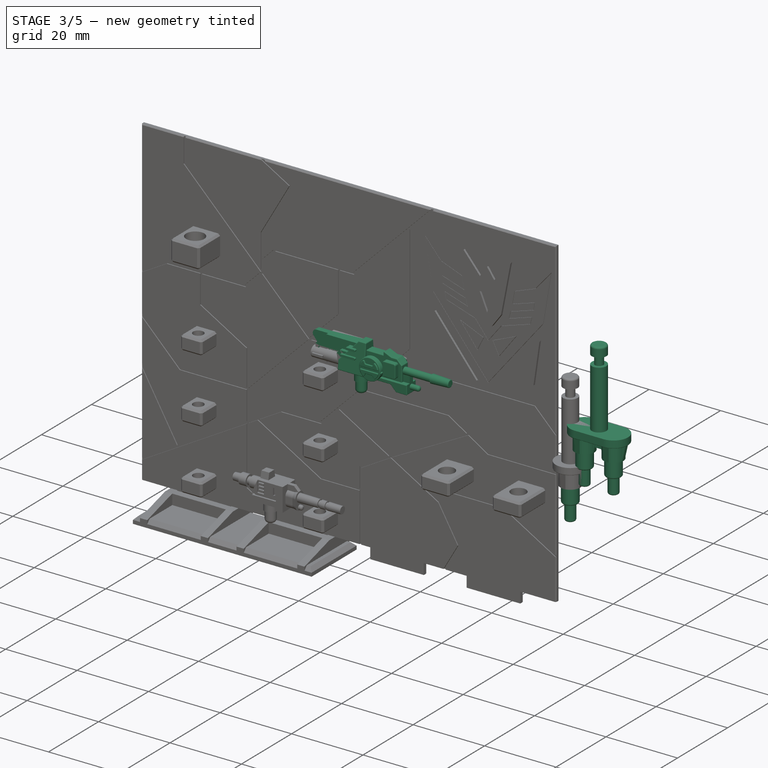
[diagram: stage 3 of 5 — iso view after this stage's code; geometry added in this stage tinted green]
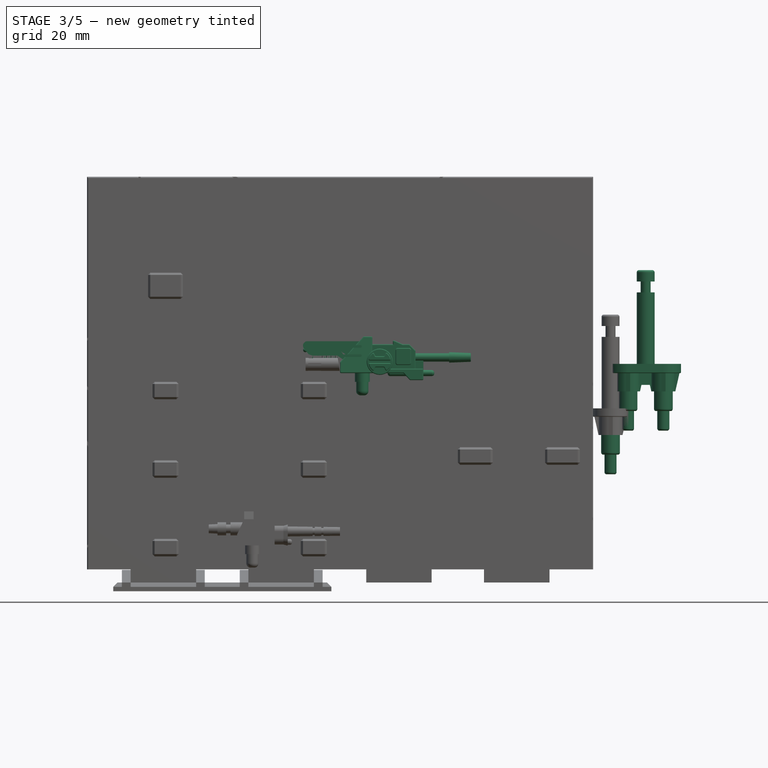
[diagram: stage 3 of 5 — front view after this stage's code; geometry added in this stage tinted green]
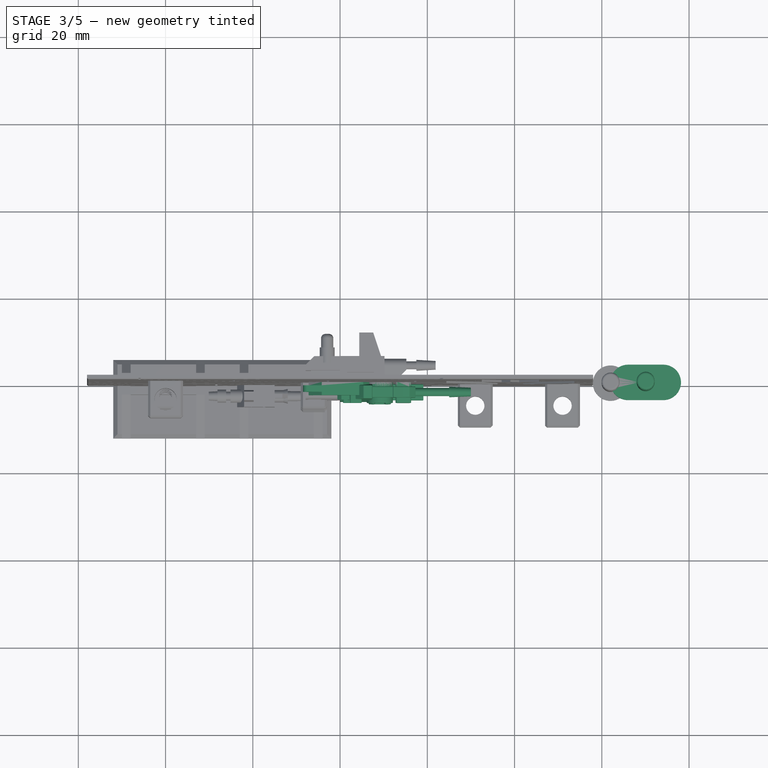
[diagram: stage 3 of 5 — top view after this stage's code; geometry added in this stage tinted green]
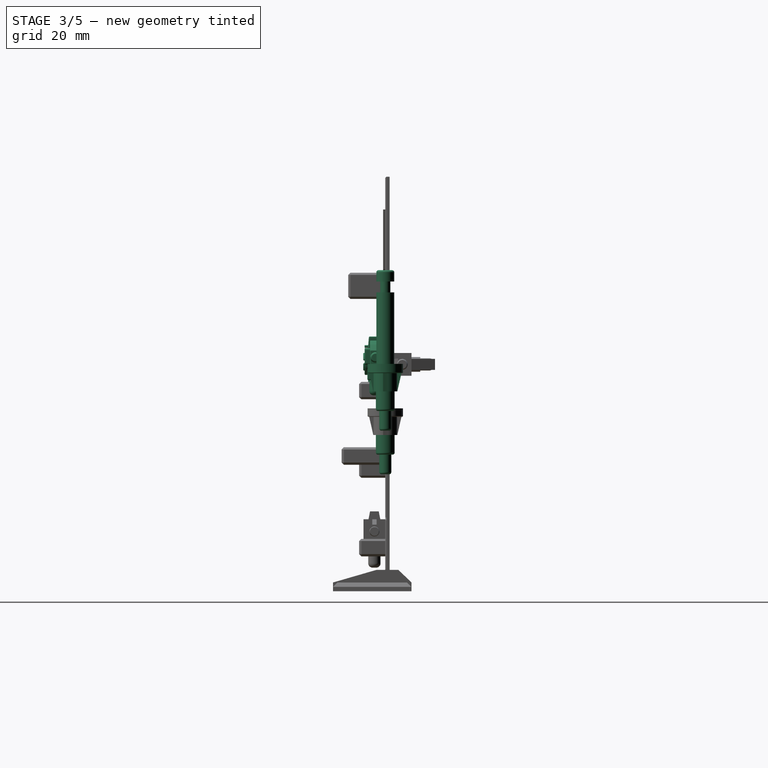
[diagram: stage 3 of 5 — right view after this stage's code; geometry added in this stage tinted green]
FEATURE [PartDesign::Body] Body019  label="Mixmaster_Gun"
  AllowCompound = false
  Group = -> [Sketch225,Pad156,Sketch226,Pad157,Sketch227,Pad158,Sketch228,Pad159,Sketch229,Pad160,Sketch230,Sketch231,AdditiveLoft007,Sketch232,Pad161,Sketch233,Pad162,Sketch234,Pocket028,Sketch235,Pad163,Sketch236,Pad164,Sketch237,Pad165,Sketch238,Pocket029,Sketch239,Pad166,Fillet017,Sketch240,Pad167,Sketch241,Pad168,Sketch242,Sketch243,AdditiveLoft008,Fillet018,Sketch244,Pocket030,Sketch245,Pocket031,+13 more]
  Origin = -> Origin021
  Placement = pos=(-43,-1.65,-18) rot=(0,0,1;0rad)
  Tip = -> Fillet019
FEATURE [Sketcher::SketchObject] Sketch252
  ArcFitTolerance = 1e-06
  AttachmentSupport = -> [XZ_Plane022]
  FullyConstrained = true
  MakeInternals = false
  MapMode = 5
  Placement = pos=(0,0,0) rot=(1,0,0;1.5708rad)
  sketch-geometry (16):
    g0: LineSegment StartX=0.430594 StartY=0 StartZ=0 EndX=4.99289 EndY=0 EndZ=0
    g1: LineSegment StartX=5.34645 StartY=0.146447 StartZ=0 EndX=6.7 EndY=1.5 EndZ=0
    g2: LineSegment StartX=6.7 StartY=1.5 StartZ=0 EndX=6.7 EndY=4.9 EndZ=0
    g3: LineSegment StartX=6.7 StartY=4.9 StartZ=0 EndX=5.31436 EndY=7.3 EndZ=0
    g4: LineSegment StartX=5.31436 StartY=7.3 StartZ=0 EndX=-8.48564 EndY=7.3 EndZ=0
    g5: ArcOfCircle CenterX=-7.74795 CenterY=6.62486 CenterZ=0 NormalX=0 NormalY=0 NormalZ=1 AngleXU=0 Radius=1 StartAngle=2.40043 EndAngle=3.77418
    g6: LineSegment StartX=-8.55446 StartY=6.03362 StartZ=0 EndX=-7.2 EndY=4.3 EndZ=0
    g7: LineSegment StartX=-7.2 StartY=4.3 StartZ=0 EndX=-7.2 EndY=1.7 EndZ=0
    g8: ArcOfCircle CenterX=-6.7 CenterY=1.7 CenterZ=0 NormalX=0 NormalY=0 NormalZ=1 AngleXU=0 Radius=0.5 StartAngle=3.14159 EndAngle=6.28319
    g9: LineSegment StartX=-6.2 StartY=1.7 StartZ=0 EndX=-6.2 EndY=4 EndZ=0
    g10: LineSegment StartX=-6.2 StartY=4 StartZ=0 EndX=-0.6 EndY=4 EndZ=0
    g11: LineSegment StartX=-0.6 StartY=4 StartZ=0 EndX=-0.0638745 EndY=0.42583 EndZ=0
    g12: ArcOfCircle CenterX=4.99289 CenterY=0.5 CenterZ=0 NormalX=0 NormalY=0 NormalZ=1 AngleXU=0 Radius=0.5 StartAngle=4.71239 EndAngle=5.49779
    g13: GeomPoint [constr] X=5.2 Y=0 Z=0
    g14: ArcOfCircle CenterX=0.430594 CenterY=0.5 CenterZ=0 NormalX=0 NormalY=0 NormalZ=1 AngleXU=0 Radius=0.5 StartAngle=3.29048 EndAngle=4.71239
    g15: GeomPoint [constr] X=0 Y=0 Z=0
  constraints (46):
    c: PointOnObject(g13,g-1)
    c: Coincident(g2,g1)
    c: Vertical(g2)
    c: Coincident(g3,g2)
    c: Coincident(g4,g3)
    c: Horizontal(g4)
    c: Coincident(g5,g4)
    c: Coincident(g6,g5)
    c: Coincident(g7,g6)
    c: Vertical(g7)
    c: Coincident(g8,g7)
    c: Coincident(g9,g8)
    c: Coincident(g10,g9)
    c: Horizontal(g10)
    c: Coincident(g11,g10)
    c: DistanceX(g15,g13) = 5.2
    c: Diameter(g8) = 1
    c: Vertical(g9)
    c: Diameter(g5) = 2
    c: DistanceX(g4,g3) = 13.8
    c: DistanceY(g7,g6) = 2.6
    c: Angle(g3,g2) = 2.61799
    c: DistanceY(g2,g3) = 2.4
    c: DistanceY(g2,g2) = 3.4
    c: DistanceY(g15,g3) = 7.3
    c: DistanceX(g10,g10) = 5.6
    c: DistanceY(g15,g10) = 4
    c: DistanceX(g6,g2) = 13.9
    c: DistanceY(g6,g4) = 3
    c: DistanceY(g8,g7) = 0
    c: DistanceY(g8,g8) = 0
    c: Angle(g6,g7) = 2.47837
    c: DistanceY(g8,g4) = 5.6
    c: PointOnObject(g13,g0)
    c: PointOnObject(g13,g1)
    c: Tangent(g0,g12) = -1.5708
    c: Tangent(g1,g12) = -1.5708
    c: PointOnObject(g15,g0)
    c: PointOnObject(g15,g11)
    c: Tangent(g0,g14) = -1.5708
    c: Tangent(g11,g14) = -1.5708
    c: Coincident(g15,g-1)
    c: Radius(g14) = 0.5
    c: Radius(g12) = 0.5
    c: Angle(g1,g0) = 2.35619
    c: Distance(g6) = 2.2
FEATURE [PartDesign::Pad] Pad169
  Direction = (0,-1,2e-16)
  Length = 3
  Length2 = 10
  Placement = pos=(0,0,0) rot=(1,0,0;1.5708rad)
  Profile = -> Sketch252
  ReferenceAxis = -> Sketch252 [N_Axis]
  Refine = true
  Suppressed = false
  Type = 0
FEATURE [PartDesign::Fillet] Fillet020
  Base = -> Pad169 [Edge17]
  BaseFeature = -> Pad169
  Placement = pos=(0,0,0) rot=(1,0,0;1.5708rad)
  Radius = 1
  Refine = true
  SupportTransform = false
  Suppressed = false
  UseAllEdges = false
FEATURE [Sketcher::SketchObject] Sketch253
  ArcFitTolerance = 1e-06
  AttachmentSupport = -> [Fillet020]
  ExternalGeometry = -> [Fillet020]
  FullyConstrained = true
  MakeInternals = false
  MapMode = 5
  Placement = pos=(0,-3,7e-16) rot=(1,0,0;1.5708rad)
  sketch-geometry (4):
    g0: LineSegment StartX=-7.2 StartY=4.3 StartZ=0 EndX=-8.7 EndY=4.3 EndZ=0
    g1: LineSegment StartX=-8.7 StartY=4.3 StartZ=0 EndX=-8.7 EndY=7.3 EndZ=0
    g2: LineSegment StartX=-8.7 StartY=7.3 StartZ=0 EndX=-4.2 EndY=7.3 EndZ=0
    g3: LineSegment StartX=-7.2 StartY=4.3 StartZ=0 EndX=-4.2 EndY=7.3 EndZ=0
  constraints (11):
    c: Coincident(g0,g-4)
    c: Horizontal(g0)
    c: Coincident(g1,g0)
    c: Vertical(g1)
    c: Coincident(g2,g1)
    c: PointOnObject(g2,g-3)
    c: Horizontal(g2)
    c: Coincident(g3,g0)
    c: Coincident(g3,g2)
    c: Angle(g3,g0) = 2.35619
    c: DistanceX(g2,g2) = 4.5
FEATURE [PartDesign::Pocket] Pocket038
  BaseFeature = -> Fillet020
  Direction = (0,1,-2e-16)
  Length = 0.75
  Length2 = 5
  Placement = pos=(0,0,0) rot=(1,0,0;1.5708rad)
  Profile = -> Sketch253
  ReferenceAxis = -> Sketch253 [N_Axis]
  Refine = true
  Suppressed = false
  Type = 0
FEATURE [Sketcher::SketchObject] Sketch254
  ArcFitTolerance = 1e-06
  AttachmentSupport = -> [Pocket038]
  ExternalGeometry = -> [Pocket038]
  FullyConstrained = true
  MakeInternals = false
  MapMode = 5
  Placement = pos=(0,0,0) rot=(-1,0,0;1.5708rad)
  sketch-geometry (4):
    g0: LineSegment StartX=-7.2 StartY=-4.3 StartZ=0 EndX=-4.2 EndY=-7.3 EndZ=0
    g1: LineSegment StartX=-4.2 StartY=-7.3 StartZ=0 EndX=-8.7 EndY=-7.3 EndZ=0
    g2: LineSegment StartX=-8.7 StartY=-7.3 StartZ=0 EndX=-8.7 EndY=-4.3 EndZ=0
    g3: LineSegment StartX=-7.2 StartY=-4.3 StartZ=0 EndX=-8.7 EndY=-4.3 EndZ=0
  constraints (11):
    c: Coincident(g0,g-3)
    c: PointOnObject(g0,g-4)
    c: Coincident(g1,g0)
    c: Horizontal(g1)
    c: Coincident(g2,g1)
    c: Vertical(g2)
    c: Coincident(g3,g0)
    c: Coincident(g3,g2)
    c: Horizontal(g3)
    c: Angle(g3,g0) = 2.35619
    c: DistanceX(g1,g1) = 4.5
FEATURE [PartDesign::Pocket] Pocket039
  BaseFeature = -> Pocket038
  Direction = (0,-1,-2e-16)
  Length = 0.75
  Length2 = 5
  Placement = pos=(0,0,0) rot=(1,0,0;1.5708rad)
  Profile = -> Sketch254
  ReferenceAxis = -> Sketch254 [N_Axis]
  Refine = true
  Suppressed = false
  Type = 0
FEATURE [Sketcher::SketchObject] Sketch255
  ArcFitTolerance = 1e-06
  AttachmentSupport = -> [Pocket039]
  ExternalGeometry = -> [Pocket039]
  FullyConstrained = true
  MakeInternals = false
  MapMode = 5
  Placement = pos=(0,-3,7e-16) rot=(1,0,0;1.5708rad)
  sketch-geometry (8):
    g0: LineSegment StartX=-0.6 StartY=4 StartZ=0 EndX=-0.0638745 EndY=0.42583 EndZ=0
    g1: ArcOfCircle CenterX=0.430594 CenterY=0.5 CenterZ=0 NormalX=0 NormalY=0 NormalZ=1 AngleXU=0 Radius=0.5 StartAngle=3.29048 EndAngle=4.71239
    g2: LineSegment StartX=0.430594 StartY=1e-16 StartZ=0 EndX=4.99289 EndY=9.9e-15 EndZ=0
    g3: ArcOfCircle CenterX=4.99289 CenterY=0.5 CenterZ=0 NormalX=0 NormalY=0 NormalZ=1 AngleXU=0 Radius=0.5 StartAngle=4.71239 EndAngle=5.49779
    g4: LineSegment StartX=5.34645 StartY=0.146447 StartZ=0 EndX=6.7 EndY=1.5 EndZ=0
    g5: LineSegment StartX=6.7 StartY=1.5 StartZ=0 EndX=6.7 EndY=4.9 EndZ=0
    g6: LineSegment StartX=6.7 StartY=4.9 StartZ=0 EndX=0.3 EndY=4.9 EndZ=0
    g7: LineSegment StartX=-0.6 StartY=4 StartZ=0 EndX=0.3 EndY=4.9 EndZ=0
  constraints (18):
    c: Coincident(g0,g-8)
    c: Coincident(g0,g-8)
    c: Coincident(g1,g0)
    c: Tangent(g1,g-7) = -1.5708
    c: Coincident(g2,g1)
    c: Coincident(g2,g-6)
    c: Coincident(g3,g2)
    c: Coincident(g3,g-4)
    c: Tangent(g3,g-3)
    c: Coincident(g4,g-5)
    c: Coincident(g4,g3)
    c: Coincident(g5,g4)
    c: Coincident(g5,g-5)
    c: Coincident(g6,g5)
    c: Horizontal(g6)
    c: Coincident(g7,g0)
    c: Coincident(g7,g6)
    c: Angle(g7,g6) = 2.35619
FEATURE [PartDesign::Pad] Pad170
  BaseFeature = -> Pocket039
  Direction = (0,-1,2e-16)
  Length = 1
  Length2 = 10
  Placement = pos=(0,0,0) rot=(1,0,0;1.5708rad)
  Profile = -> Sketch255
  ReferenceAxis = -> Sketch255 [N_Axis]
  Refine = true
  Suppressed = false
  Type = 0
FEATURE [Sketcher::SketchObject] Sketch256
  ArcFitTolerance = 1e-06
  AttachmentSupport = -> [Pad170]
  ExternalGeometry = -> [Pad170]
  FullyConstrained = true
  MakeInternals = false
  MapMode = 5
  Placement = pos=(0,0,0) rot=(-1,0,0;1.5708rad)
  sketch-geometry (8):
    g0: LineSegment StartX=6.7 StartY=-4.9 StartZ=0 EndX=6.7 EndY=-1.5 EndZ=0
    g1: LineSegment StartX=6.7 StartY=-1.5 StartZ=0 EndX=5.34645 EndY=-0.146447 EndZ=0
    g2: ArcOfCircle CenterX=4.99289 CenterY=-0.5 CenterZ=0 NormalX=0 NormalY=0 NormalZ=1 AngleXU=0 Radius=0.5 StartAngle=0.785398 EndAngle=1.5708
    g3: LineSegment StartX=4.99289 StartY=-2.67e-14 StartZ=0 EndX=0.430594 EndY=-2.66e-14 EndZ=0
    g4: ArcOfCircle CenterX=0.430594 CenterY=-0.5 CenterZ=0 NormalX=0 NormalY=0 NormalZ=1 AngleXU=0 Radius=0.5 StartAngle=1.5708 EndAngle=2.9927
    g5: LineSegment StartX=-0.0638745 StartY=-0.42583 StartZ=0 EndX=-0.6 EndY=-4 EndZ=0
    g6: LineSegment StartX=6.7 StartY=-4.9 StartZ=0 EndX=0.3 EndY=-4.9 EndZ=0
    g7: LineSegment StartX=-0.6 StartY=-4 StartZ=0 EndX=0.3 EndY=-4.9 EndZ=0
  constraints (17):
    c: Coincident(g0,g-8)
    c: Coincident(g0,g-8)
    c: Coincident(g1,g0)
    c: Coincident(g1,g-7)
    c: Coincident(g2,g1)
    c: Tangent(g2,g-6) = -1.5708
    c: Coincident(g3,g2)
    c: Coincident(g3,g-5)
    c: Coincident(g4,g3)
    c: Tangent(g4,g-4) = -1.5708
    c: Coincident(g5,g4)
    c: Coincident(g5,g-3)
    c: Coincident(g6,g0)
    c: Horizontal(g6)
    c: Coincident(g7,g5)
    c: Coincident(g7,g6)
    c: Angle(g6,g7) = 2.35619
FEATURE [PartDesign::Pad] Pad171
  BaseFeature = -> Pad170
  Direction = (0,1,2e-16)
  Length = 1
  Length2 = 10
  Placement = pos=(0,0,0) rot=(1,0,0;1.5708rad)
  Profile = -> Sketch256
  ReferenceAxis = -> Sketch256 [N_Axis]
  Refine = true
  Suppressed = false
  Type = 0
FEATURE [Sketcher::SketchObject] Sketch257
  ArcFitTolerance = 1e-06
  AttachmentSupport = -> [Pad171]
  ExternalGeometry = -> [Pad171]
  FullyConstrained = true
  MakeInternals = false
  MapMode = 5
  Placement = pos=(0,-4,0) rot=(1,0,0;1.5708rad)
  sketch-geometry (3):
    g0: LineSegment StartX=4.49289 StartY=2 StartZ=0 EndX=4.49289 EndY=1.5 EndZ=0
    g1: LineSegment StartX=4.49289 StartY=1.5 StartZ=0 EndX=3.49289 EndY=1.75 EndZ=0
    g2: LineSegment StartX=4.49289 StartY=2 StartZ=0 EndX=3.49289 EndY=1.75 EndZ=0
  constraints (9):
    c: Vertical(g0)
    c: Coincident(g1,g0)
    c: Coincident(g2,g0)
    c: Coincident(g2,g1)
    c: DistanceY(g0,g0) = 0.5
    c: DistanceX(g1,g0) = 1
    c: DistanceY(g1,g0) = 0.25
    c: DistanceY(g-3,g0) = 1.5
    c: DistanceX(g0,g-3) = 0.5
FEATURE [PartDesign::Pocket] Pocket040
  BaseFeature = -> Pad171
  Direction = (0,1,-2e-16)
  Length = 0.3
  Length2 = 5
  Placement = pos=(0,0,0) rot=(1,0,0;1.5708rad)
  Profile = -> Sketch257
  ReferenceAxis = -> Sketch257 [N_Axis]
  Refine = true
  Suppressed = false
  Type = 0
FEATURE [PartDesign::Chamfer] Chamfer
  Angle = 45
  Base = -> Pocket040 [Edge62,Edge60,Edge61]
  BaseFeature = -> Pocket040
  ChamferType = 0
  FlipDirection = false
  Placement = pos=(0,0,0) rot=(1,0,0;1.5708rad)
  Refine = true
  Size = 0.2
  Size2 = 1
  SupportTransform = false
  Suppressed = false
  UseAllEdges = false
FEATURE [Sketcher::SketchObject] Sketch258
  ArcFitTolerance = 1e-06
  AttachmentSupport = -> [Chamfer]
  ExternalGeometry = -> [Chamfer]
  FullyConstrained = true
  MakeInternals = false
  MapMode = 5
  Placement = pos=(0,1,2e-16) rot=(-1,0,0;1.5708rad)
  sketch-geometry (3):
    g0: LineSegment StartX=4.49289 StartY=-2 StartZ=0 EndX=4.49289 EndY=-1.5 EndZ=0
    g1: LineSegment StartX=4.49289 StartY=-1.5 StartZ=0 EndX=3.49289 EndY=-1.75 EndZ=0
    g2: LineSegment StartX=4.49289 StartY=-2 StartZ=0 EndX=3.49289 EndY=-1.75 EndZ=0
  constraints (9):
    c: Vertical(g0)
    c: Coincident(g1,g0)
    c: Coincident(g2,g0)
    c: Coincident(g2,g1)
    c: DistanceY(g0,g0) = 0.5
    c: DistanceY(g0,g1) = 0.25
    c: DistanceX(g1,g0) = 1
    c: DistanceX(g0,g-3) = 0.5
    c: DistanceY(g0,g-3) = 1.5
FEATURE [PartDesign::Pocket] Pocket041
  BaseFeature = -> Chamfer
  Direction = (0,-1,-2e-16)
  Length = 0.3
  Length2 = 5
  Placement = pos=(0,0,0) rot=(1,0,0;1.5708rad)
  Profile = -> Sketch258
  ReferenceAxis = -> Sketch258 [N_Axis]
  Refine = true
  Suppressed = false
  Type = 0
FEATURE [PartDesign::Chamfer] Chamfer001
  Angle = 45
  Base = -> Pocket041 [Edge56,Edge55,Edge54]
  BaseFeature = -> Pocket041
  ChamferType = 0
  FlipDirection = false
  Placement = pos=(0,0,0) rot=(1,0,0;1.5708rad)
  Refine = true
  Size = 0.2
  Size2 = 1
  SupportTransform = false
  Suppressed = false
  UseAllEdges = false
FEATURE [Sketcher::SketchObject] Sketch259
  ArcFitTolerance = 1e-06
  AttachmentSupport = -> [Chamfer001]
  ExternalGeometry = -> [Chamfer001]
  FullyConstrained = true
  MakeInternals = false
  MapMode = 5
  Placement = pos=(-6.2,0,0) rot=(0.707107,0,0.707107;3.14159rad)
  sketch-geometry (4):
    g0: LineSegment StartX=4 StartY=0.4 StartZ=0 EndX=3.2 EndY=0.4 EndZ=0
    g1: LineSegment StartX=4 StartY=0.4 StartZ=0 EndX=4 EndY=2.6 EndZ=0
    g2: LineSegment StartX=4 StartY=2.6 StartZ=0 EndX=3.2 EndY=2.6 EndZ=0
    g3: ArcOfCircle CenterX=3.2 CenterY=1.5 CenterZ=0 NormalX=0 NormalY=0 NormalZ=1 AngleXU=0 Radius=1.1 StartAngle=1.5708 EndAngle=4.71239
  constraints (14):
    c: PointOnObject(g0,g-3)
    c: PointOnObject(g1,g-3)
    c: Coincident(g2,g1)
    c: Horizontal(g2)
    c: Coincident(g3,g2)
    c: Coincident(g3,g0)
    c: Horizontal(g0)
    c: Coincident(g0,g1)
    c: DistanceY(g1,g-3) = 0.4
    c: DistanceY(g-3,g0) = 0.4
    c: DistanceX(g3,g2) = 0
    c: DistanceX(g0,g3) = 0
    c: Radius(g3) = 1.1
    c: DistanceX(g2,g2) = 0.8
FEATURE [PartDesign::Pad] Pad172
  BaseFeature = -> Chamfer001
  Direction = (1,0,-2e-16)
  Length = 1
  Length2 = 10
  Placement = pos=(0,0,0) rot=(1,0,0;1.5708rad)
  Profile = -> Sketch259
  ReferenceAxis = -> Sketch259 [N_Axis]
  Refine = true
  Suppressed = false
  Type = 0
FEATURE [PartDesign::Fillet] Fillet021
  Base = -> Pad172 [Edge97,Edge98,Edge96]
  BaseFeature = -> Pad172
  Placement = pos=(0,0,0) rot=(1,0,0;1.5708rad)
  Radius = 0.25
  Refine = true
  SupportTransform = false
  Suppressed = false
  UseAllEdges = false
FEATURE [Sketcher::SketchObject] Sketch260
  ArcFitTolerance = 1e-06
  AttachmentSupport = -> [Fillet021]
  ExternalGeometry = -> [Fillet021]
  FullyConstrained = true
  MakeInternals = false
  MapMode = 5
  Placement = pos=(-5.2,0,0) rot=(0.707107,0,0.707107;3.14159rad)
  sketch-geometry (4):
    g0: LineSegment StartX=4 StartY=2.6 StartZ=0 EndX=4 EndY=0.4 EndZ=0
    g1: LineSegment StartX=4 StartY=2.6 StartZ=0 EndX=2.9 EndY=2.6 EndZ=0
    g2: LineSegment StartX=4 StartY=0.4 StartZ=0 EndX=2.9 EndY=0.4 EndZ=0
    g3: ArcOfCircle CenterX=2.9 CenterY=1.5 CenterZ=0 NormalX=0 NormalY=0 NormalZ=1 AngleXU=0 Radius=1.1 StartAngle=1.5708 EndAngle=4.71239
  constraints (12):
    c: Coincident(g0,g-4)
    c: Coincident(g0,g-5)
    c: PointOnObject(g1,g-4)
    c: Horizontal(g1)
    c: Coincident(g2,g0)
    c: Horizontal(g2)
    c: Coincident(g3,g2)
    c: Coincident(g3,g1)
    c: DistanceX(g1,g1) = 1.1
    c: DistanceX(g2,g2) = 1.1
    c: DistanceX(g3,g1) = 0
    c: DistanceX(g3,g2) = 0
FEATURE [PartDesign::Pad] Pad173
  BaseFeature = -> Fillet021
  Direction = (1,0,-2e-16)
  Length = 1
  Length2 = 10
  Placement = pos=(0,0,0) rot=(1,0,0;1.5708rad)
  Profile = -> Sketch260
  ReferenceAxis = -> Sketch260 [N_Axis]
  Refine = true
  Suppressed = false
  Type = 0
FEATURE [PartDesign::Fillet] Fillet022
  Base = -> Pad173 [Edge22,Edge21,Edge24,Edge26,Edge25,Edge20]
  BaseFeature = -> Pad173
  Placement = pos=(0,0,0) rot=(1,0,0;1.5708rad)
  Radius = 0.249
  Refine = true
  SupportTransform = false
  Suppressed = false
  UseAllEdges = false
FEATURE [Sketcher::SketchObject] Sketch261
  ArcFitTolerance = 1e-06
  AttachmentSupport = -> [Fillet022]
  ExternalGeometry = -> [Fillet022]
  FullyConstrained = true
  MakeInternals = false
  MapMode = 5
  Placement = pos=(-4.2,0,1.7e-15) rot=(0.707107,0,0.707107;3.14159rad)
  sketch-geometry (4):
    g0: LineSegment StartX=4 StartY=2.6 StartZ=0 EndX=4 EndY=0.4 EndZ=0
    g1: LineSegment StartX=4 StartY=2.6 StartZ=0 EndX=2.7 EndY=2.6 EndZ=0
    g2: LineSegment StartX=4 StartY=0.4 StartZ=0 EndX=2.7 EndY=0.4 EndZ=0
    g3: ArcOfCircle CenterX=2.7 CenterY=1.5 CenterZ=0 NormalX=0 NormalY=0 NormalZ=1 AngleXU=0 Radius=1.1 StartAngle=1.5708 EndAngle=4.71239
  constraints (11):
    c: Coincident(g0,g-4)
    c: Coincident(g0,g-5)
    c: Coincident(g1,g0)
    c: Horizontal(g1)
    c: Coincident(g2,g0)
    c: Horizontal(g2)
    c: Coincident(g3,g2)
    c: Coincident(g3,g1)
    c: DistanceX(g1,g1) = 1.3
    c: DistanceX(g2,g2) = 1.3
    c: DistanceX(g3,g1) = 0
FEATURE [PartDesign::Pad] Pad174
  BaseFeature = -> Fillet022
  Direction = (1,0,-2e-16)
  Length = 1
  Length2 = 10
  Placement = pos=(0,0,0) rot=(1,0,0;1.5708rad)
  Profile = -> Sketch261
  ReferenceAxis = -> Sketch261 [N_Axis]
  Refine = true
  Suppressed = false
  Type = 0
FEATURE [PartDesign::Fillet] Fillet023
  Base = -> Pad174 [Edge32,Edge33,Edge34,Edge36,Edge38,Edge37]
  BaseFeature = -> Pad174
  Placement = pos=(0,0,0) rot=(1,0,0;1.5708rad)
  Radius = 0.248
  Refine = true
  SupportTransform = false
  Suppressed = false
  UseAllEdges = false
FEATURE [Sketcher::SketchObject] Sketch262
  ArcFitTolerance = 1e-06
  AttachmentSupport = -> [Fillet023]
  ExternalGeometry = -> [Fillet023]
  FullyConstrained = true
  MakeInternals = false
  MapMode = 5
  Placement = pos=(-3.2,0,1.1e-15) rot=(0.707107,0,0.707107;3.14159rad)
  sketch-geometry (4):
    g0: LineSegment StartX=4 StartY=2.6 StartZ=0 EndX=4 EndY=0.4 EndZ=0
    g1: LineSegment StartX=4 StartY=0.4 StartZ=0 EndX=2.5 EndY=0.4 EndZ=0
    g2: LineSegment StartX=4 StartY=2.6 StartZ=0 EndX=2.5 EndY=2.6 EndZ=0
    g3: ArcOfCircle CenterX=2.5 CenterY=1.5 CenterZ=0 NormalX=0 NormalY=0 NormalZ=1 AngleXU=0 Radius=1.1 StartAngle=1.5708 EndAngle=4.71239
  constraints (11):
    c: Coincident(g0,g-4)
    c: Coincident(g0,g-5)
    c: Coincident(g1,g0)
    c: Horizontal(g1)
    c: Coincident(g2,g0)
    c: Horizontal(g2)
    c: Coincident(g3,g2)
    c: Coincident(g3,g1)
    c: DistanceX(g2,g2) = 1.5
    c: DistanceX(g1,g1) = 1.5
    c: DistanceX(g3,g2) = 0
FEATURE [PartDesign::Pad] Pad175
  BaseFeature = -> Fillet023
  Direction = (1,0,-2e-16)
  Length = 1
  Length2 = 10
  Placement = pos=(0,0,0) rot=(1,0,0;1.5708rad)
  Profile = -> Sketch262
  ReferenceAxis = -> Sketch262 [N_Axis]
  Refine = true
  Suppressed = false
  Type = 0
FEATURE [PartDesign::Fillet] Fillet024
  Base = -> Pad175 [Edge40,Edge41,Edge42,Edge44,Edge46,Edge45]
  BaseFeature = -> Pad175
  Placement = pos=(0,0,0) rot=(1,0,0;1.5708rad)
  Radius = 0.247
  Refine = true
  SupportTransform = false
  Suppressed = false
  UseAllEdges = false
FEATURE [Sketcher::SketchObject] Sketch263
  ArcFitTolerance = 1e-06
  AttachmentSupport = -> [Fillet024]
  ExternalGeometry = -> [Fillet024]
  FullyConstrained = true
  MakeInternals = false
  MapMode = 5
  Placement = pos=(-2.2,0,0) rot=(0.707107,0,0.707107;3.14159rad)
  sketch-geometry (4):
    g0: LineSegment StartX=4 StartY=2.6 StartZ=0 EndX=4 EndY=0.4 EndZ=0
    g1: LineSegment StartX=4 StartY=2.6 StartZ=0 EndX=2.3 EndY=2.6 EndZ=0
    g2: LineSegment StartX=4 StartY=0.4 StartZ=0 EndX=2.3 EndY=0.4 EndZ=0
    g3: ArcOfCircle CenterX=2.3 CenterY=1.5 CenterZ=0 NormalX=0 NormalY=0 NormalZ=1 AngleXU=0 Radius=1.1 StartAngle=1.5708 EndAngle=4.71239
  constraints (11):
    c: Coincident(g0,g-5)
    c: Coincident(g0,g-4)
    c: Coincident(g1,g0)
    c: Horizontal(g1)
    c: Coincident(g2,g0)
    c: Horizontal(g2)
    c: Coincident(g3,g2)
    c: Coincident(g3,g1)
    c: DistanceX(g1,g1) = 1.7
    c: DistanceX(g2,g2) = 1.7
    c: DistanceX(g3,g2) = 0
FEATURE [PartDesign::Pad] Pad176
  BaseFeature = -> Fillet024
  Direction = (1,0,-2e-16)
  Length = 1
  Length2 = 10
  Placement = pos=(0,0,0) rot=(1,0,0;1.5708rad)
  Profile = -> Sketch263
  ReferenceAxis = -> Sketch263 [N_Axis]
  Refine = true
  Suppressed = false
  Type = 0
FEATURE [PartDesign::Fillet] Fillet025
  Base = -> Pad176 [Edge48,Edge49,Edge50,Edge52,Edge54,Edge53]
  BaseFeature = -> Pad176
  Placement = pos=(0,0,0) rot=(1,0,0;1.5708rad)
  Radius = 0.246
  Refine = true
  SupportTransform = false
  Suppressed = false
  UseAllEdges = false
FEATURE [Sketcher::SketchObject] Sketch264
  ArcFitTolerance = 1e-06
  AttachmentSupport = -> [Fillet025]
  ExternalGeometry = -> [Fillet025]
  FullyConstrained = true
  MakeInternals = false
  MapMode = 5
  Placement = pos=(-1.2,0,0) rot=(0.707107,0,0.707107;3.14159rad)
  sketch-geometry (4):
    g0: LineSegment StartX=4 StartY=2.6 StartZ=0 EndX=4 EndY=0.4 EndZ=0
    g1: LineSegment StartX=4 StartY=0.4 StartZ=0 EndX=2.1 EndY=0.4 EndZ=0
    g2: LineSegment StartX=4 StartY=2.6 StartZ=0 EndX=2.1 EndY=2.6 EndZ=0
    g3: ArcOfCircle CenterX=2.1 CenterY=1.5 CenterZ=0 NormalX=0 NormalY=0 NormalZ=1 AngleXU=0 Radius=1.1 StartAngle=1.5708 EndAngle=4.71239
  constraints (11):
    c: Coincident(g0,g-5)
    c: Coincident(g0,g-4)
    c: Coincident(g1,g0)
    c: Horizontal(g1)
    c: Coincident(g2,g0)
    c: Horizontal(g2)
    c: Coincident(g3,g2)
    c: Coincident(g3,g1)
    c: DistanceX(g2,g2) = 1.9
    c: DistanceX(g1,g1) = 1.9
    c: DistanceX(g3,g2) = 0
FEATURE [PartDesign::Pad] Pad177
  BaseFeature = -> Fillet025
  Direction = (1,0,-2e-16)
  Length = 1.1
  Length2 = 10
  Placement = pos=(0,0,0) rot=(1,0,0;1.5708rad)
  Profile = -> Sketch264
  ReferenceAxis = -> Sketch264 [N_Axis]
  Refine = true
  Suppressed = false
  Type = 0
FEATURE [PartDesign::Fillet] Fillet026
  Base = -> Pad177 [Edge35,Edge34,Edge36]
  BaseFeature = -> Pad177
  Placement = pos=(0,0,0) rot=(1,0,0;1.5708rad)
  Radius = 0.245
  Refine = true
  SupportTransform = false
  Suppressed = false
  UseAllEdges = false
FEATURE [Sketcher::SketchObject] Sketch265
  ArcFitTolerance = 1e-06
  AttachmentSupport = -> [Fillet026]
  ExternalGeometry = -> [Fillet026]
  FullyConstrained = true
  MakeInternals = false
  MapMode = 5
  Placement = pos=(-2.38478,-8e-16,-1.8632) rot=(0.898794,0,-0.438371;3.14159rad)
  sketch-geometry (1):
    g0: Circle CenterX=-9.07796 CenterY=1.5 CenterZ=0 NormalX=0 NormalY=0 NormalZ=1 AngleXU=0 Radius=0.5
  constraints (4):
    c: DistanceX(g-3,g0) = 0.5
    c: Diameter(g0) = 1
    c: DistanceY(g-4,g-3) = 1.5
    c: DistanceY(g0,g-3) = 0.75
FEATURE [PartDesign::Pad] Pad178
  BaseFeature = -> Fillet026
  Direction = (-0.788011,0,-0.615661)
  Length = 0.5
  Length2 = 10
  Placement = pos=(0,0,0) rot=(1,0,0;1.5708rad)
  Profile = -> Sketch265
  ReferenceAxis = -> Sketch265 [N_Axis]
  Refine = true
  Suppressed = false
  Type = 0
FEATURE [PartDesign::Fillet] Fillet027
  Base = -> Pad178 [Edge246]
  BaseFeature = -> Pad178
  Placement = pos=(0,0,0) rot=(1,0,0;1.5708rad)
  Radius = 0.49
  Refine = true
  SupportTransform = false
  Suppressed = false
  UseAllEdges = false
FEATURE [PartDesign::Body] Body020  label="Longhaul_Gun"
  AllowCompound = false
  Group = -> [Sketch252,Pad169,Fillet020,Sketch253,Pocket038,Sketch254,Pocket039,Sketch255,Pad170,Sketch256,Pad171,Sketch257,Pocket040,Chamfer,Sketch258,Pocket041,Chamfer001,Sketch259,Pad172,Fillet021,Sketch260,Pad173,Fillet022,Sketch261,Pad174,Fillet023,Sketch262,Pad175,Fillet024,Sketch263,Pad176,Fillet025,Sketch264,Pad177,Fillet026,Sketch265,Pad178,Fillet027,Sketch266,Pad179,Sketch267,Pad180,Fillet028,+31 more]
  Origin = -> Origin022
  Placement = pos=(-42.64,-1.5,0) rot=(0,0,1;0rad)
  Tip = -> Pocket045
FEATURE [Sketcher::SketchObject] Sketch283
  ArcFitTolerance = 1e-06
  AttachmentSupport = -> [XZ_Plane023]
  FullyConstrained = true
  MakeInternals = false
  MapMode = 5
  Placement = pos=(0,0,0) rot=(1,0,0;1.5708rad)
  sketch-geometry (15):
    g0: LineSegment StartX=0 StartY=0 StartZ=0 EndX=14.5 EndY=0 EndZ=0
    g1: LineSegment StartX=14.5 StartY=0 StartZ=0 EndX=16 EndY=-1.6 EndZ=0
    g2: LineSegment StartX=16 StartY=-1.6 StartZ=0 EndX=19.1 EndY=-1.6 EndZ=0
    g3: LineSegment StartX=19.1 StartY=-1.6 StartZ=0 EndX=19.1 EndY=2.9 EndZ=0
    g4: LineSegment StartX=19.1 StartY=2.9 StartZ=0 EndX=17.3 EndY=2.9 EndZ=0
    g5: LineSegment StartX=17.3 StartY=2.9 StartZ=0 EndX=17.3 EndY=5.2 EndZ=0
    g6: LineSegment StartX=17.3 StartY=5.2 StartZ=0 EndX=15.9 EndY=6.6 EndZ=0
    g7: LineSegment StartX=15.9 StartY=6.6 StartZ=0 EndX=14.4028 EndY=6.6 EndZ=0
    g8: LineSegment StartX=14.4028 StartY=6.6 StartZ=0 EndX=12.1028 EndY=7.6 EndZ=0
    g9: LineSegment StartX=12.1028 StartY=7.6 StartZ=0 EndX=12.1028 EndY=6.6 EndZ=0
    g10: LineSegment StartX=12.1028 StartY=6.6 StartZ=0 EndX=7.40278 EndY=6.6 EndZ=0
    g11: LineSegment StartX=7.40278 StartY=6.6 StartZ=0 EndX=7.40278 EndY=8.4 EndZ=0
    g12: LineSegment StartX=7.40278 StartY=8.4 StartZ=0 EndX=5.40278 EndY=8.4 EndZ=0
    g13: LineSegment StartX=5.40278 StartY=8.4 StartZ=0 EndX=0 EndY=2.5 EndZ=0
    g14: LineSegment StartX=0 StartY=2.5 StartZ=0 EndX=0 EndY=0 EndZ=0
  constraints (44):
    c: Coincident(g0,g-1)
    c: PointOnObject(g0,g-1)
    c: Coincident(g1,g0)
    c: Coincident(g2,g1)
    c: Horizontal(g2)
    c: Coincident(g3,g2)
    c: Vertical(g3)
    c: Coincident(g4,g3)
    c: Horizontal(g4)
    c: Coincident(g5,g4)
    c: Vertical(g5)
    c: Coincident(g6,g5)
    c: Coincident(g7,g6)
    c: Horizontal(g7)
    c: Coincident(g8,g7)
    c: Coincident(g9,g8)
    c: Coincident(g10,g9)
    c: Horizontal(g10)
    c: Coincident(g11,g10)
    c: Vertical(g11)
    c: Coincident(g12,g11)
    c: Horizontal(g12)
    c: Coincident(g13,g12)
    c: Coincident(g14,g13)
    c: Coincident(g14,g0)
    c: Vertical(g14)
    c: DistanceX(g0,g0) = 14.5
    c: DistanceY(g1,g0) = 1.6
    c: DistanceX(g2,g2) = 3.1
    c: DistanceY(g3,g3) = 4.5
    c: DistanceX(g0,g2) = 19.1
    c: DistanceX(g10,g10) = 4.7
    c: DistanceY(g14,g14) = 2.5
    c: DistanceY(g0,g12) = 8.4
    c: DistanceX(g12,g12) = 2
    c: DistanceX(g9,g7) = 2.3
    c: DistanceY(g11,g11) = 1.8
    c: Angle(g7,g6) = 2.35619
    c: DistanceX(g4,g4) = 1.8
    c: DistanceY(g7,g9) = 0
    c: Vertical(g9)
    c: Distance(g13) = 8
    c: DistanceY(g9,g9) = 1
    c: DistanceY(g5,g5) = 2.3
FEATURE [PartDesign::Pad] Pad188
  Direction = (0,-1,2e-16)
  Length = 4.5
  Length2 = 10
  Placement = pos=(0,0,0) rot=(1,0,0;1.5708rad)
  Profile = -> Sketch283
  ReferenceAxis = -> Sketch283 [N_Axis]
  Refine = true
  Suppressed = false
  Type = 0
FEATURE [Sketcher::SketchObject] Sketch284
  ArcFitTolerance = 1e-06
  AttachmentSupport = -> [Pad188]
  ExternalGeometry = -> [Pad188]
  FullyConstrained = true
  MakeInternals = false
  MapMode = 5
  Placement = pos=(0,-4.5,0) rot=(1,0,0;1.5708rad)
  sketch-geometry (1):
    g0: Circle CenterX=9.1 CenterY=2.6 CenterZ=0 NormalX=0 NormalY=0 NormalZ=1 AngleXU=0 Radius=3
  constraints (3):
    c: Diameter(g0) = 6
    c: DistanceX(g-1,g0) = 9.1
    c: DistanceY(g0,g-3) = 4
FEATURE [PartDesign::Pad] Pad189
  BaseFeature = -> Pad188
  Direction = (0,-1,2e-16)
  Length = 0.25
  Length2 = 10
  Placement = pos=(0,0,0) rot=(1,0,0;1.5708rad)
  Profile = -> Sketch284
  ReferenceAxis = -> Sketch284 [N_Axis]
  Refine = true
  Suppressed = false
  Type = 0
FEATURE [PartDesign::Pad] Pad190
  BaseFeature = -> Pad189
  Direction = (0,-1,2e-16)
  Length = 4.75
  Length2 = 10
  Placement = pos=(0,0,0) rot=(1,0,0;1.5708rad)
  Profile = -> Sketch284
  ReferenceAxis = -> Sketch284 [N_Axis]
  Refine = true
  Reversed = true
  Suppressed = false
  Type = 0
FEATURE [Sketcher::SketchObject] Sketch285
  ArcFitTolerance = 1e-06
  AttachmentSupport = -> [Pad190]
  ExternalGeometry = -> [Pad190]
  FullyConstrained = true
  MakeInternals = false
  MapMode = 5
  Placement = pos=(0,-4.5,0) rot=(1,0,0;1.5708rad)
  sketch-geometry (13):
    g0: LineSegment StartX=7.40278 StartY=6.6 StartZ=0 EndX=12.1028 EndY=6.6 EndZ=0
    g1: LineSegment StartX=12.1028 StartY=6.6 StartZ=0 EndX=12.1028 EndY=7.6 EndZ=0
    g2: LineSegment StartX=12.1028 StartY=7.6 StartZ=0 EndX=14.4028 EndY=6.6 EndZ=0
    g3: LineSegment StartX=14.4028 StartY=6.6 StartZ=0 EndX=15.9 EndY=6.6 EndZ=0
    g4: LineSegment StartX=15.9 StartY=6.6 StartZ=0 EndX=17.3 EndY=5.2 EndZ=0
    g5: LineSegment StartX=17.3 StartY=5.2 StartZ=0 EndX=17.3 EndY=2.9 EndZ=0
    g6: LineSegment StartX=17.3 StartY=2.9 StartZ=0 EndX=19.1 EndY=2.9 EndZ=0
    g7: LineSegment StartX=19.1 StartY=2.9 StartZ=0 EndX=19.1 EndY=-1.6 EndZ=0
    g8: LineSegment StartX=19.1 StartY=-1.6 StartZ=0 EndX=16 EndY=-1.6 EndZ=0
    g9: LineSegment StartX=16 StartY=-1.6 StartZ=0 EndX=14.5 EndY=0 EndZ=0
    g10: LineSegment StartX=14.5 StartY=0 StartZ=0 EndX=10.5967 EndY=6.8927e-12 EndZ=0
    g11: LineSegment StartX=7.40278 StartY=6.6 StartZ=0 EndX=7.40278 EndY=5.07375 EndZ=0
    g12: ArcOfCircle CenterX=9.10001 CenterY=2.6 CenterZ=0 NormalX=0 NormalY=0 NormalZ=1 AngleXU=0 Radius=3 StartAngle=5.2347 EndAngle=8.45532
  constraints (28):
    c: Coincident(g0,g-3)
    c: Coincident(g0,g-4)
    c: Coincident(g1,g0)
    c: Coincident(g1,g-5)
    c: Coincident(g2,g1)
    c: Coincident(g2,g-6)
    c: Coincident(g3,g2)
    c: Coincident(g3,g-7)
    c: Coincident(g4,g3)
    c: Coincident(g4,g-8)
    c: Coincident(g5,g4)
    c: Coincident(g5,g-9)
    c: Coincident(g6,g5)
    c: Coincident(g6,g-10)
    c: Coincident(g7,g6)
    c: Coincident(g7,g-11)
    c: Coincident(g8,g7)
    c: Coincident(g8,g-12)
    c: Coincident(g9,g8)
    c: Coincident(g9,g-13)
    c: Coincident(g10,g9)
    c: Coincident(g10,g-13)
    c: Coincident(g11,g0)
    c: PointOnObject(g11,g-14)
    c: Vertical(g11)
    c: Coincident(g12,g11)
    c: Coincident(g12,g10)
    c: Tangent(g12,g-14)
FEATURE [PartDesign::Pocket] Pocket046
  BaseFeature = -> Pad190
  Direction = (0,1,-2e-16)
  Length = 1
  Length2 = 5
  Placement = pos=(0,0,0) rot=(1,0,0;1.5708rad)
  Profile = -> Sketch285
  ReferenceAxis = -> Sketch285 [N_Axis]
  Refine = true
  Suppressed = false
  Type = 0
FEATURE [Sketcher::SketchObject] Sketch286
  ArcFitTolerance = 1e-06
  AttachmentSupport = -> [Pocket046]
  ExternalGeometry = -> [Pocket046]
  FullyConstrained = true
  MakeInternals = false
  MapMode = 5
  Placement = pos=(0,7e-16,0) rot=(-1,0,0;1.5708rad)
  sketch-geometry (13):
    g0: LineSegment StartX=7.40278 StartY=-6.6 StartZ=0 EndX=7.40278 EndY=-5.07375 EndZ=0
    g1: LineSegment StartX=7.40278 StartY=-6.6 StartZ=0 EndX=12.1028 EndY=-6.6 EndZ=0
    g2: LineSegment StartX=12.1028 StartY=-6.6 StartZ=0 EndX=12.1028 EndY=-7.6 EndZ=0
    g3: LineSegment StartX=12.1028 StartY=-7.6 StartZ=0 EndX=14.4028 EndY=-6.6 EndZ=0
    g4: LineSegment StartX=14.4028 StartY=-6.6 StartZ=0 EndX=15.9 EndY=-6.6 EndZ=0
    g5: LineSegment StartX=15.9 StartY=-6.6 StartZ=0 EndX=17.3 EndY=-5.2 EndZ=0
    g6: LineSegment StartX=17.3 StartY=-5.2 StartZ=0 EndX=17.3 EndY=-2.9 EndZ=0
    g7: LineSegment StartX=17.3 StartY=-2.9 StartZ=0 EndX=19.1 EndY=-2.9 EndZ=0
    g8: LineSegment StartX=19.1 StartY=-2.9 StartZ=0 EndX=19.1 EndY=1.6 EndZ=0
    g9: LineSegment StartX=19.1 StartY=1.6 StartZ=0 EndX=16 EndY=1.6 EndZ=0
    g10: LineSegment StartX=16 StartY=1.6 StartZ=0 EndX=14.5 EndY=0 EndZ=0
    g11: LineSegment StartX=14.5 StartY=0 StartZ=0 EndX=10.5967 EndY=0 EndZ=0
    g12: ArcOfCircle CenterX=9.1 CenterY=-2.6 CenterZ=0 NormalX=0 NormalY=0 NormalZ=1 AngleXU=0 Radius=3 StartAngle=4.11106 EndAngle=7.33167
  constraints (28):
    c: Coincident(g0,g-3)
    c: PointOnObject(g0,g-14)
    c: Vertical(g0)
    c: Coincident(g1,g0)
    c: Coincident(g1,g-4)
    c: Coincident(g2,g1)
    c: Coincident(g2,g-5)
    c: Coincident(g3,g2)
    c: Coincident(g3,g-6)
    c: Coincident(g4,g3)
    c: Coincident(g4,g-7)
    c: Coincident(g5,g4)
    c: Coincident(g5,g-8)
    c: Coincident(g6,g5)
    c: Coincident(g6,g-9)
    c: Coincident(g7,g6)
    c: Coincident(g7,g-10)
    c: Coincident(g8,g7)
    c: Coincident(g8,g-11)
    c: Coincident(g9,g8)
    c: Coincident(g9,g-12)
    c: Coincident(g10,g9)
    c: Coincident(g10,g-13)
    c: Coincident(g11,g10)
    c: Coincident(g11,g-13)
    c: Coincident(g12,g11)
    c: Coincident(g12,g0)
    c: Tangent(g12,g-14)
FEATURE [PartDesign::Pocket] Pocket047
  BaseFeature = -> Pocket046
  Direction = (0,-1,-2e-16)
  Length = 1
  Length2 = 5
  Placement = pos=(0,0,0) rot=(1,0,0;1.5708rad)
  Profile = -> Sketch286
  ReferenceAxis = -> Sketch286 [N_Axis]
  Refine = true
  Suppressed = false
  Type = 0
FEATURE [Sketcher::SketchObject] Sketch287
  ArcFitTolerance = 1e-06
  AttachmentSupport = -> [Pocket047]
  ExternalGeometry = -> [Pocket047]
  FullyConstrained = true
  MakeInternals = false
  MapMode = 5
  Placement = pos=(0,0,0) rot=(0.707107,0,-0.707107;3.14159rad)
  sketch-geometry (6):
    g0: LineSegment StartX=0 StartY=4.5 StartZ=0 EndX=-8.4 EndY=3.75 EndZ=0
    g1: LineSegment StartX=0 StartY=0 StartZ=0 EndX=-8.4 EndY=0.75 EndZ=0
    g2: LineSegment StartX=-8.4 StartY=3.75 StartZ=0 EndX=-8.4 EndY=4.5 EndZ=0
    g3: LineSegment StartX=-8.4 StartY=4.5 StartZ=0 EndX=0 EndY=4.5 EndZ=0
    g4: LineSegment StartX=-8.4 StartY=0.75 StartZ=0 EndX=-8.4 EndY=0 EndZ=0
    g5: LineSegment StartX=-8.4 StartY=0 StartZ=0 EndX=0 EndY=0 EndZ=0
  constraints (15):
    c: Coincident(g0,g-8)
    c: PointOnObject(g0,g-4)
    c: Coincident(g1,g-1)
    c: PointOnObject(g1,g-4)
    c: DistanceY(g1,g0) = 3
    c: DistanceY(g-5,g-4) = 4.5
    c: DistanceY(g-5,g1) = 0.75
    c: Coincident(g2,g0)
    c: Coincident(g2,g-4)
    c: Coincident(g3,g2)
    c: Coincident(g3,g0)
    c: Coincident(g4,g1)
    c: Coincident(g4,g-5)
    c: Coincident(g5,g4)
    c: Coincident(g5,g1)
FEATURE [PartDesign::Pocket] Pocket048
  BaseFeature = -> Pocket047
  Direction = (1,0,2e-16)
  Length = 8
  Length2 = 5
  Placement = pos=(0,0,0) rot=(1,0,0;1.5708rad)
  Profile = -> Sketch287
  ReferenceAxis = -> Sketch287 [N_Axis]
  Refine = true
  Suppressed = false
  Type = 0
FEATURE [Sketcher::SketchObject] Sketch288
  ArcFitTolerance = 1e-06
  AttachmentSupport = -> [Pocket048]
  ExternalGeometry = -> [Pocket048]
  FullyConstrained = true
  MakeInternals = false
  MapMode = 5
  Placement = pos=(0,0.25,0) rot=(-1,0,0;1.5708rad)
  sketch-geometry (1):
    g0: Circle CenterX=9.1 CenterY=-2.6 CenterZ=0 NormalX=0 NormalY=0 NormalZ=1 AngleXU=0 Radius=3
  constraints (2):
    c: Coincident(g0,g-3)
    c: Equal(g0,g-3)
FEATURE [PartDesign::Pad] Pad191
  BaseFeature = -> Pocket048
  Direction = (0,1,2e-16)
  Length = 5
  Length2 = 10
  Placement = pos=(0,0,0) rot=(1,0,0;1.5708rad)
  Profile = -> Sketch288
  ReferenceAxis = -> Sketch288 [N_Axis]
  Refine = true
  Reversed = true
  Suppressed = false
  Type = 0
FEATURE [Sketcher::SketchObject] Sketch289
  ArcFitTolerance = 1e-06
  AttachmentSupport = -> [Pad191]
  ExternalGeometry = -> [Pad191]
  FullyConstrained = true
  MakeInternals = false
  MapMode = 5
  Placement = pos=(0,-1,0) rot=(-1,0,0;1.5708rad)
  sketch-geometry (6):
    g0: LineSegment StartX=10.5967 StartY=-5.51634e-11 StartZ=0 EndX=14.5 EndY=2e-16 EndZ=0
    g1: LineSegment StartX=14.5 StartY=2e-16 StartZ=0 EndX=16 EndY=1.6 EndZ=0
    g2: LineSegment StartX=16 StartY=1.6 StartZ=0 EndX=19.1 EndY=1.6 EndZ=0
    g3: LineSegment StartX=19.1 StartY=1.6 StartZ=0 EndX=19.1 EndY=-1 EndZ=0
    g4: LineSegment StartX=19.1 StartY=-1 StartZ=0 EndX=11.6377 EndY=-1 EndZ=0
    g5: ArcOfCircle CenterX=9.10002 CenterY=-2.59998 CenterZ=0 NormalX=0 NormalY=0 NormalZ=1 AngleXU=0 Radius=2.99997 StartAngle=0.562534 EndAngle=1.04848
  constraints (15):
    c: Coincident(g0,g-3)
    c: Coincident(g0,g-5)
    c: Coincident(g1,g0)
    c: Coincident(g1,g-6)
    c: Coincident(g2,g1)
    c: Coincident(g2,g-7)
    c: Coincident(g3,g2)
    c: Coincident(g4,g3)
    c: PointOnObject(g4,g-4)
    c: Horizontal(g4)
    c: Coincident(g5,g4)
    c: Coincident(g5,g0)
    c: PointOnObject(g3,g-7)
    c: DistanceY(g3,g0) = 1
    c: Tangent(g-4,g5)
FEATURE [PartDesign::Pad] Pad192
  BaseFeature = -> Pad191
  Direction = (0,1,2e-16)
  Length = 0.6
  Length2 = 10
  Placement = pos=(0,0,0) rot=(1,0,0;1.5708rad)
  Profile = -> Sketch289
  ReferenceAxis = -> Sketch289 [N_Axis]
  Refine = true
  Suppressed = false
  Type = 0
FEATURE [Sketcher::SketchObject] Sketch290
  ArcFitTolerance = 1e-06
  AttachmentSupport = -> [Pad192]
  ExternalGeometry = -> [Pad192]
  FullyConstrained = true
  MakeInternals = false
  MapMode = 5
  Placement = pos=(0,-3.5,0) rot=(1,0,0;1.5708rad)
  sketch-geometry (6):
    g0: LineSegment StartX=10.5967 StartY=4.33529e-11 StartZ=0 EndX=14.5 EndY=-2e-16 EndZ=0
    g1: LineSegment StartX=14.5 StartY=-2e-16 StartZ=0 EndX=16 EndY=-1.6 EndZ=0
    g2: LineSegment StartX=16 StartY=-1.6 StartZ=0 EndX=19.1 EndY=-1.6 EndZ=0
    g3: LineSegment StartX=19.1 StartY=-1.6 StartZ=0 EndX=19.1 EndY=1 EndZ=0
    g4: LineSegment StartX=19.1 StartY=1 StartZ=0 EndX=11.6377 EndY=1 EndZ=0
    g5: ArcOfCircle CenterX=9.10003 CenterY=2.59998 CenterZ=0 NormalX=0 NormalY=0 NormalZ=1 AngleXU=0 Radius=2.99997 StartAngle=5.2347 EndAngle=5.72065
  constraints (15):
    c: Coincident(g0,g-7)
    c: Coincident(g0,g-6)
    c: Coincident(g1,g0)
    c: Coincident(g1,g-5)
    c: Coincident(g2,g1)
    c: Coincident(g2,g-4)
    c: Coincident(g3,g2)
    c: Coincident(g4,g3)
    c: PointOnObject(g4,g-7)
    c: Horizontal(g4)
    c: Coincident(g5,g4)
    c: Coincident(g5,g0)
    c: DistanceY(g0,g3) = 1
    c: PointOnObject(g3,g-3)
    c: Tangent(g5,g-7)
FEATURE [PartDesign::Pad] Pad193
  BaseFeature = -> Pad192
  Direction = (0,-1,2e-16)
  Length = 0.6
  Length2 = 10
  Placement = pos=(0,0,0) rot=(1,0,0;1.5708rad)
  Profile = -> Sketch290
  ReferenceAxis = -> Sketch290 [N_Axis]
  Refine = true
  Suppressed = false
  Type = 0
FEATURE [PartDesign::Fillet] Fillet030
  Base = -> Pad193 [Edge82,Edge32,Edge4,Edge85,Edge30,Edge31,Edge80,Edge79,Edge84]
  BaseFeature = -> Pad193
  Placement = pos=(0,0,0) rot=(1,0,0;1.5708rad)
  Radius = 0.25
  Refine = true
  SupportTransform = false
  Suppressed = false
  UseAllEdges = false
FEATURE [Sketcher::SketchObject] Sketch291
  ArcFitTolerance = 1e-06
  AttachmentSupport = -> [Fillet030]
  ExternalGeometry = -> [Fillet030]
  FullyConstrained = true
  MakeInternals = false
  MapMode = 5
  Placement = pos=(0,-3.5,0) rot=(1,0,0;1.5708rad)
  sketch-geometry (4):
    g0: LineSegment StartX=17.3 StartY=2.9 StartZ=0 EndX=17.3 EndY=1 EndZ=0
    g1: LineSegment StartX=17.3 StartY=1 StartZ=0 EndX=19.1 EndY=1 EndZ=0
    g2: LineSegment StartX=19.1 StartY=1 StartZ=0 EndX=19.1 EndY=2.9 EndZ=0
    g3: LineSegment StartX=19.1 StartY=2.9 StartZ=0 EndX=17.3 EndY=2.9 EndZ=0
  constraints (10):
    c: Coincident(g0,g1)
    c: Coincident(g1,g2)
    c: Coincident(g2,g3)
    c: Coincident(g3,g0)
    c: Vertical(g0)
    c: Vertical(g2)
    c: Horizontal(g1)
    c: Horizontal(g3)
    c: Coincident(g0,g-3)
    c: Coincident(g1,g-5)
FEATURE [PartDesign::Pocket] Pocket049
  BaseFeature = -> Fillet030
  Direction = (0,1,-2e-16)
  Length = 0.6
  Length2 = 5
  Placement = pos=(0,0,0) rot=(1,0,0;1.5708rad)
  Profile = -> Sketch291
  ReferenceAxis = -> Sketch291 [N_Axis]
  Refine = true
  Suppressed = false
  Type = 0
FEATURE [Sketcher::SketchObject] Sketch292
  ArcFitTolerance = 1e-06
  AttachmentSupport = -> [Pocket049]
  ExternalGeometry = -> [Pocket049]
  FullyConstrained = true
  MakeInternals = false
  MapMode = 5
  Placement = pos=(0,-1,0) rot=(-1,0,0;1.5708rad)
  sketch-geometry (4):
    g0: LineSegment StartX=17.3 StartY=-2.9 StartZ=0 EndX=19.1 EndY=-2.9 EndZ=0
    g1: LineSegment StartX=19.1 StartY=-2.9 StartZ=0 EndX=19.1 EndY=-1 EndZ=0
    g2: LineSegment StartX=19.1 StartY=-1 StartZ=0 EndX=17.3 EndY=-1 EndZ=0
    g3: LineSegment StartX=17.3 StartY=-1 StartZ=0 EndX=17.3 EndY=-2.9 EndZ=0
  constraints (10):
    c: Coincident(g0,g1)
    c: Coincident(g1,g2)
    c: Coincident(g2,g3)
    c: Coincident(g3,g0)
    c: Horizontal(g0)
    c: Horizontal(g2)
    c: Vertical(g1)
    c: Vertical(g3)
    c: Coincident(g0,g-5)
    c: Coincident(g1,g-4)
FEATURE [PartDesign::Pocket] Pocket050
  BaseFeature = -> Pocket049
  Direction = (0,-1,-2e-16)
  Length = 0.6
  Length2 = 5
  Placement = pos=(0,0,0) rot=(1,0,0;1.5708rad)
  Profile = -> Sketch292
  ReferenceAxis = -> Sketch292 [N_Axis]
  Refine = true
  Suppressed = false
  Type = 0
FEATURE [Sketcher::SketchObject] Sketch293
  ArcFitTolerance = 1e-06
  AttachmentSupport = -> [Pocket050]
  ExternalGeometry = -> [Pocket050]
  FullyConstrained = true
  MakeInternals = false
  MapMode = 5
  Placement = pos=(0,-1,0) rot=(-1,0,0;1.5708rad)
  sketch-geometry (12):
    g0: LineSegment StartX=16.3 StartY=-5.25 StartZ=0 EndX=16.3 EndY=-2.35 EndZ=0
    g1: LineSegment StartX=15.8 StartY=-1.85 StartZ=0 EndX=13.2 EndY=-1.85 EndZ=0
    g2: LineSegment StartX=12.7 StartY=-2.35 StartZ=0 EndX=12.7 EndY=-5.25 EndZ=0
    g3: LineSegment StartX=13.2 StartY=-5.75 StartZ=0 EndX=15.8 EndY=-5.75 EndZ=0
    g4: ArcOfCircle CenterX=13.2 CenterY=-2.35 CenterZ=0 NormalX=0 NormalY=0 NormalZ=1 AngleXU=0 Radius=0.5 StartAngle=1.5708 EndAngle=3.14159
    g5: GeomPoint [constr] X=12.7 Y=-1.85 Z=0
    g6: ArcOfCircle CenterX=13.2 CenterY=-5.25 CenterZ=0 NormalX=0 NormalY=0 NormalZ=1 AngleXU=0 Radius=0.5 StartAngle=3.14159 EndAngle=4.71239
    g7: GeomPoint [constr] X=12.7 Y=-5.75 Z=0
    g8: ArcOfCircle CenterX=15.8 CenterY=-5.25 CenterZ=0 NormalX=0 NormalY=0 NormalZ=1 AngleXU=0 Radius=0.5 StartAngle=4.71239 EndAngle=6.28319
    g9: GeomPoint [constr] X=16.3 Y=-5.75 Z=0
    g10: ArcOfCircle CenterX=15.8 CenterY=-2.35 CenterZ=0 NormalX=0 NormalY=0 NormalZ=1 AngleXU=0 Radius=0.5 StartAngle=1e-16 EndAngle=1.5708
    g11: GeomPoint [constr] X=16.3 Y=-1.85 Z=0
  constraints (29):
    c: Vertical(g0)
    c: Vertical(g2)
    c: Horizontal(g1)
    c: Horizontal(g3)
    c: PointOnObject(g5,g1)
    c: PointOnObject(g5,g2)
    c: Tangent(g1,g4) = -1.5708
    c: Tangent(g2,g4) = -1.5708
    c: PointOnObject(g7,g2)
    c: PointOnObject(g7,g3)
    c: Tangent(g2,g6) = -1.5708
    c: Tangent(g3,g6) = -1.5708
    c: PointOnObject(g9,g0)
    c: PointOnObject(g9,g3)
    c: Tangent(g0,g8) = -1.5708
    c: Tangent(g3,g8) = -1.5708
    c: PointOnObject(g11,g0)
    c: PointOnObject(g11,g1)
    c: Tangent(g0,g10) = -1.5708
    c: Tangent(g1,g10) = -1.5708
    c: Radius(g8) = 0.5
    c: Radius(g6) = 0.5
    c: Radius(g10) = 0.5
    c: Radius(g4) = 0.5
    c: DistanceX(g2,g0) = 3.6
    c: DistanceY(g3,g1) = 3.9
    c: DistanceY(g-3,g-5) = 5.6
    c: DistanceY(g-3,g3) = 0.85
    c: DistanceX(g0,g-5) = 1
FEATURE [PartDesign::Pad] Pad194
  BaseFeature = -> Pocket050
  Direction = (0,1,2e-16)
  Length = 1.25
  Length2 = 10
  Placement = pos=(0,0,0) rot=(1,0,0;1.5708rad)
  Profile = -> Sketch293
  ReferenceAxis = -> Sketch293 [N_Axis]
  Refine = true
  Suppressed = false
  Type = 0
FEATURE [PartDesign::Pad] Pad195
  BaseFeature = -> Pad194
  Direction = (0,1,2e-16)
  Length = 3.75
  Length2 = 10
  Placement = pos=(0,0,0) rot=(1,0,0;1.5708rad)
  Profile = -> Sketch293
  ReferenceAxis = -> Sketch293 [N_Axis]
  Refine = true
  Reversed = true
  Suppressed = false
  Type = 0
FEATURE [Sketcher::SketchObject] Sketch294
  ArcFitTolerance = 1e-06
  AttachmentSupport = -> [Pad195]
  ExternalGeometry = -> [Pad195]
  FullyConstrained = false
  MakeInternals = false
  MapMode = 5
  Placement = pos=(0,-4.75,0) rot=(1,0,0;1.5708rad)
  sketch-geometry (8):
    g0: ArcOfCircle CenterX=2.57858 CenterY=6.1 CenterZ=0 NormalX=0 NormalY=0 NormalZ=1 AngleXU=0 Radius=0.3 StartAngle=1.5708 EndAngle=4.71239
    g1: ArcOfCircle CenterX=4.67858 CenterY=6.1 CenterZ=0 NormalX=0 NormalY=0 NormalZ=1 AngleXU=0 Radius=0.3 StartAngle=4.71239 EndAngle=7.85398
    g2: LineSegment StartX=2.57858 StartY=6.4 StartZ=0 EndX=4.67858 EndY=6.4 EndZ=0
    g3: LineSegment StartX=2.57858 StartY=5.8 StartZ=0 EndX=4.67858 EndY=5.8 EndZ=0
    g4: ArcOfCircle CenterX=0.978584 CenterY=4 CenterZ=0 NormalX=0 NormalY=0 NormalZ=1 AngleXU=0 Radius=0.3 StartAngle=1.5708 EndAngle=4.71239
    g5: ArcOfCircle CenterX=4.67858 CenterY=4 CenterZ=0 NormalX=0 NormalY=0 NormalZ=1 AngleXU=0 Radius=0.3 StartAngle=4.71239 EndAngle=7.85398
    g6: LineSegment StartX=0.978584 StartY=4.3 StartZ=0 EndX=4.67858 EndY=4.3 EndZ=0
    g7: LineSegment StartX=0.978584 StartY=3.7 StartZ=0 EndX=4.67858 EndY=3.7 EndZ=0
  constraints (19):
    c: Tangent(g0,g2) = 1.5708
    c: Tangent(g0,g3) = -1.5708
    c: Tangent(g1,g2) = 1.5708
    c: Tangent(g1,g3) = -1.5708
    c: Equal(g0,g1)
    c: Horizontal(g2)
    c: Tangent(g4,g6) = 1.5708
    c: Tangent(g4,g7) = -1.5708
    c: Tangent(g5,g6) = 1.5708
    c: Tangent(g5,g7) = -1.5708
    c: Equal(g4,g5)
    c: Horizontal(g6)
    c: Diameter(g0) = 0.6
    c: Diameter(g4) = 0.6
    c: DistanceX(g0,g1) = 2.1
    c: DistanceX(g4,g5) = 3.7
    c: DistanceY(g1,g-4) = 2.3
    c: DistanceY(g5,g1) = 2.1
    c: DistanceX(g1,g5) = 0
FEATURE [PartDesign::Pad] Pad196
  BaseFeature = -> Pad195
  Direction = (0,-1,2e-16)
  Length = 5
  Length2 = 10
  Placement = pos=(0,0,0) rot=(1,0,0;1.5708rad)
  Profile = -> Sketch294
  ReferenceAxis = -> Sketch294 [N_Axis]
  Refine = true
  Reversed = true
  Suppressed = false
  Type = 0
FEATURE [Sketcher::SketchObject] Sketch295
  ArcFitTolerance = 1e-06
  AttachmentSupport = -> [Pad196]
  ExternalGeometry = -> [Pad196]
  FullyConstrained = true
  MakeInternals = false
  MapMode = 5
  Placement = pos=(19.1,-8.6e-15,-4.78e-14) rot=(0.707107,0,0.707107;3.14159rad)
  sketch-geometry (1):
    g0: Circle CenterX=0 CenterY=2.25 CenterZ=0 NormalX=0 NormalY=0 NormalZ=1 AngleXU=0 Radius=0.7
  constraints (4):
    c: Diameter(g0) = 1.4
    c: PointOnObject(g0,g-2)
    c: DistanceY(g-3,g-3) = 3.7
    c: DistanceY(g0,g-3) = 1.85
FEATURE [PartDesign::Pad] Pad197
  BaseFeature = -> Pad196
  Direction = (1,0,-2.4e-15)
  Length = 2.5
  Length2 = 10
  Placement = pos=(0,0,0) rot=(1,0,0;1.5708rad)
  Profile = -> Sketch295
  ReferenceAxis = -> Sketch295 [N_Axis]
  Refine = true
  Suppressed = false
  Type = 0
FEATURE [PartDesign::Pad] Pad198
  BaseFeature = -> Pad197
  Direction = (1,0,-2.4e-15)
  Length = 8.2
  Length2 = 10
  Placement = pos=(0,0,0) rot=(1,0,0;1.5708rad)
  Profile = -> Sketch295
  ReferenceAxis = -> Sketch295 [N_Axis]
  Refine = true
  Reversed = true
  Suppressed = false
  Type = 0
FEATURE [PartDesign::Fillet] Fillet031
  Base = -> Pad198 [Edge162,Edge223]
  BaseFeature = -> Pad198
  Placement = pos=(0,0,0) rot=(1,0,0;1.5708rad)
  Radius = 0.6
  Refine = true
  SupportTransform = false
  Suppressed = false
  UseAllEdges = false
FEATURE [Sketcher::SketchObject] Sketch296
  ArcFitTolerance = 1e-06
  AttachmentSupport = -> [Fillet031]
  ExternalGeometry = -> [Fillet031]
  FullyConstrained = true
  MakeInternals = false
  MapMode = 5
  Placement = pos=(0,0,0) rot=(1,0,0;3.14159rad)
  sketch-geometry (1):
    g0: Circle CenterX=5.10334 CenterY=2.25 CenterZ=0 NormalX=0 NormalY=0 NormalZ=1 AngleXU=0 Radius=1.7
  constraints (4):
    c: Radius(g0) = 1.7
    c: DistanceY(g-3,g-3) = 4.5
    c: DistanceY(g0,g-4) = 2.25
    c: DistanceX(g0,g-4) = 2.5
FEATURE [PartDesign::Pad] Pad199
  BaseFeature = -> Fillet031
  Direction = (0,0,-1)
  Length = 2
  Length2 = 10
  Placement = pos=(0,0,0) rot=(1,0,0;1.5708rad)
  Profile = -> Sketch296
  ReferenceAxis = -> Sketch296 [N_Axis]
  Refine = true
  Suppressed = false
  Type = 0
FEATURE [Sketcher::SketchObject] Sketch297
  ArcFitTolerance = 1e-06
  AttachmentSupport = -> [Pad199]
  ExternalGeometry = -> [Pad199]
  FullyConstrained = true
  MakeInternals = false
  MapMode = 5
  Placement = pos=(0,0,-2) rot=(1,0,0;3.14159rad)
  sketch-geometry (1):
    g0: Circle CenterX=5.10334 CenterY=2.25 CenterZ=0 NormalX=0 NormalY=0 NormalZ=1 AngleXU=0 Radius=1.4
  constraints (2):
    c: Coincident(g0,g-3)
    c: Radius(g0) = 1.4
FEATURE [PartDesign::Pad] Pad200
  BaseFeature = -> Pad199
  Direction = (0,0,-1)
  Length = 3.1
  Length2 = 10
  Placement = pos=(0,0,0) rot=(1,0,0;1.5708rad)
  Profile = -> Sketch297
  ReferenceAxis = -> Sketch297 [N_Axis]
  Refine = true
  Suppressed = false
  Type = 0
FEATURE [PartDesign::Fillet] Fillet032
  Base = -> Pad200 [Edge234]
  BaseFeature = -> Pad200
  Placement = pos=(0,0,0) rot=(1,0,0;1.5708rad)
  Radius = 1
  Refine = true
  SupportTransform = false
  Suppressed = false
  UseAllEdges = false
FEATURE [Sketcher::SketchObject] Sketch298
  ArcFitTolerance = 1e-06
  AttachmentSupport = -> [Fillet032]
  ExternalGeometry = -> [Fillet032]
  FullyConstrained = true
  MakeInternals = false
  MapMode = 5
  Placement = pos=(0,-4.75,0) rot=(1,0,0;1.5708rad)
  sketch-geometry (28):
    g0: ArcOfCircle CenterX=9.1 CenterY=2.6 CenterZ=0 NormalX=0 NormalY=0 NormalZ=1 AngleXU=0 Radius=2.6 StartAngle=2.28016 EndAngle=2.92844
    g1: ArcOfCircle CenterX=9.1 CenterY=2.6 CenterZ=0 NormalX=0 NormalY=0 NormalZ=1 AngleXU=0 Radius=2.6 StartAngle=0.213149 EndAngle=0.86143
    g2: ArcOfCircle CenterX=9.1 CenterY=2.6 CenterZ=0 NormalX=0 NormalY=0 NormalZ=1 AngleXU=0 Radius=2.6 StartAngle=3.35474 EndAngle=4.00302
    g3: ArcOfCircle CenterX=9.1 CenterY=2.6 CenterZ=0 NormalX=0 NormalY=0 NormalZ=1 AngleXU=0 Radius=2.6 StartAngle=5.42176 EndAngle=6.07004
    g4: LineSegment StartX=6.80884 StartY=2.3 StartZ=0 EndX=11.3912 EndY=2.3 EndZ=0
    g5: LineSegment StartX=6.80884 StartY=2.9 StartZ=0 EndX=11.3912 EndY=2.9 EndZ=0
    g6: LineSegment StartX=10.3997 StartY=4.49281 StartZ=0 EndX=10.1673 EndY=3.99435 EndZ=0
    g7: LineSegment StartX=9.94073 StartY=3.85 StartZ=0 EndX=8.25927 EndY=3.85 EndZ=0
    g8: LineSegment StartX=7.80025 StartY=4.49281 StartZ=0 EndX=8.03269 EndY=3.99435 EndZ=0
    g9: LineSegment StartX=7.80025 StartY=0.707185 StartZ=0 EndX=8.03269 EndY=1.20565 EndZ=0
    g10: LineSegment StartX=8.25927 StartY=1.35 StartZ=0 EndX=9.94073 EndY=1.35 EndZ=0
    g11: LineSegment StartX=10.1673 StartY=1.20565 StartZ=0 EndX=10.3997 EndY=0.707185 EndZ=0
    g12: ArcOfCircle CenterX=8.25927 CenterY=1.1 CenterZ=0 NormalX=0 NormalY=0 NormalZ=1 AngleXU=0 Radius=0.25 StartAngle=1.5708 EndAngle=2.70526
    g13: GeomPoint [constr] X=8.1 Y=1.35 Z=0
    g14: ArcOfCircle CenterX=9.94073 CenterY=1.1 CenterZ=0 NormalX=0 NormalY=0 NormalZ=1 AngleXU=0 Radius=0.25 StartAngle=0.436332 EndAngle=1.5708
    g15: GeomPoint [constr] X=10.1 Y=1.35 Z=0
    g16: ArcOfCircle CenterX=8.25927 CenterY=4.1 CenterZ=0 NormalX=0 NormalY=0 NormalZ=1 AngleXU=0 Radius=0.25 StartAngle=3.57792 EndAngle=4.71239
    g17: GeomPoint [constr] X=8.1 Y=3.85 Z=0
    g18: ArcOfCircle CenterX=9.94073 CenterY=4.1 CenterZ=0 NormalX=0 NormalY=0 NormalZ=1 AngleXU=0 Radius=0.25 StartAngle=4.71239 EndAngle=5.84685
    g19: GeomPoint [constr] X=10.1 Y=3.85 Z=0
    g20: ArcOfCircle CenterX=6.80884 CenterY=2.05 CenterZ=0 NormalX=0 NormalY=0 NormalZ=1 AngleXU=0 Radius=0.25 StartAngle=1.5708 EndAngle=3.14159
    g21: ArcOfCircle CenterX=11.3912 CenterY=2.05 CenterZ=0 NormalX=0 NormalY=0 NormalZ=1 AngleXU=0 Radius=0.25 StartAngle=1e-16 EndAngle=1.5708
    g22: ArcOfCircle CenterX=7.57374 CenterY=0.81299 CenterZ=0 NormalX=0 NormalY=0 NormalZ=1 AngleXU=0 Radius=0.25 StartAngle=3.97946 EndAngle=5.84619
    g23: ArcOfCircle CenterX=10.6263 CenterY=0.81299 CenterZ=0 NormalX=0 NormalY=0 NormalZ=1 AngleXU=0 Radius=0.25 StartAngle=3.57859 EndAngle=5.44531
    g24: ArcOfCircle CenterX=6.80884 CenterY=3.15 CenterZ=0 NormalX=0 NormalY=0 NormalZ=1 AngleXU=0 Radius=0.25 StartAngle=3.14159 EndAngle=4.71239
    g25: ArcOfCircle CenterX=11.3912 CenterY=3.15 CenterZ=0 NormalX=0 NormalY=0 NormalZ=1 AngleXU=0 Radius=0.25 StartAngle=4.71239 EndAngle=6.28319
    g26: ArcOfCircle CenterX=10.6263 CenterY=4.38701 CenterZ=0 NormalX=0 NormalY=0 NormalZ=1 AngleXU=0 Radius=0.25 StartAngle=0.837871 EndAngle=2.7046
    g27: ArcOfCircle CenterX=7.57374 CenterY=4.38701 CenterZ=0 NormalX=0 NormalY=0 NormalZ=1 AngleXU=0 Radius=0.25 StartAngle=0.436997 EndAngle=2.30372
  constraints (84):
    c: Horizontal(g4)
    c: Horizontal(g7)
    c: Horizontal(g10)
    c: Coincident(g0,g-3)
    c: Coincident(g1,g0)
    c: Coincident(g2,g0)
    c: Coincident(g3,g0)
    c: Horizontal(g5)
    c: Radius(g2) = 2.6
    c: Radius(g3) = 2.6
    c: Radius(g1) = 2.6
    c: Radius(g0) = 2.6
    c: DistanceY(g13,g2) = 0.7
    c: DistanceX(g17,g19) = 2
    c: DistanceX(g13,g15) = 2
    c: DistanceX(g17,g0) = 1
    c: DistanceX(g13,g0) = 1
    c: PointOnObject(g13,g9)
    c: PointOnObject(g13,g10)
    c: Tangent(g9,g12) = 1.5708
    c: Tangent(g10,g12) = 1.5708
    c: PointOnObject(g15,g10)
    c: PointOnObject(g15,g11)
    c: Tangent(g10,g14) = 1.5708
    c: Tangent(g11,g14) = 1.5708
    c: PointOnObject(g17,g7)
    c: PointOnObject(g17,g8)
    c: Tangent(g7,g16) = 1.5708
    c: Tangent(g8,g16) = -1.5708
    c: PointOnObject(g19,g6)
    c: PointOnObject(g19,g7)
    c: Tangent(g6,g18) = 1.5708
    c: Tangent(g7,g18) = 1.5708
    c: Coincident(g20,g4)
    c: Coincident(g20,g2)
    c: Coincident(g21,g4)
    c: Coincident(g21,g3)
    c: DistanceY(g4,g0) = 0.3
    c: DistanceX(g4,g20) = 0
    c: DistanceY(g2,g20) = 0
    c: DistanceX(g21,g4) = 0
    c: DistanceY(g3,g21) = 0
    c: Radius(g20) = 0.25
    c: Radius(g21) = 0.25
    c: Radius(g16) = 0.25
    c: Radius(g18) = 0.25
    c: Radius(g14) = 0.25
    c: Radius(g12) = 0.25
    c: Angle(g9,g10) = 2.00713
    c: Angle(g10,g11) = 2.00713
    c: Coincident(g22,g2)
    c: Coincident(g22,g9)
    c: Radius(g22) = 0.25
    c: Coincident(g23,g3)
    c: Coincident(g23,g11)
    c: Radius(g23) = 0.25
    c: Distance(g9) = 0.55
    c: DistanceY(g2,g9) = 0.08
    c: Distance(g11) = 0.55
    c: DistanceY(g3,g11) = 0.08
    c: Angle(g7,g8) = 2.00713
    c: Angle(g6,g7) = 2.00713
    c: DistanceY(g0,g5) = 0.3
    c: Distance(g6) = 0.55
    c: Distance(g8) = 0.55
    c: Coincident(g24,g5)
    c: Coincident(g24,g0)
    c: DistanceY(g0,g7) = 0.7
    c: Coincident(g25,g5)
    c: Coincident(g25,g1)
    c: Coincident(g26,g1)
    c: Coincident(g26,g6)
    c: Coincident(g27,g8)
    c: Coincident(g27,g0)
    c: Radius(g24) = 0.25
    c: Radius(g25) = 0.25
    c: Radius(g26) = 0.25
    c: Radius(g27) = 0.25
    c: DistanceX(g24,g5) = 0
    c: DistanceX(g5,g25) = 0
    c: DistanceY(g24,g0) = 0
    c: DistanceY(g25,g1) = 0
    c: DistanceY(g6,g1) = 0.08
    c: DistanceY(g8,g0) = 0.08
FEATURE [PartDesign::Pad] Pad201
  BaseFeature = -> Fillet032
  Direction = (0,-1,2e-16)
  Length = 0.3
  Length2 = 10
  Placement = pos=(0,0,0) rot=(1,0,0;1.5708rad)
  Profile = -> Sketch298
  ReferenceAxis = -> Sketch298 [N_Axis]
  Refine = true
  Suppressed = false
  Type = 0
FEATURE [PartDesign::Pad] Pad202
  BaseFeature = -> Pad201
  Direction = (0,-1,2e-16)
  Length = 5.3
  Length2 = 10
  Placement = pos=(0,0,0) rot=(1,0,0;1.5708rad)
  Profile = -> Sketch298
  ReferenceAxis = -> Sketch298 [N_Axis]
  Refine = true
  Reversed = true
  Suppressed = false
  Type = 0
FEATURE [PartDesign::Fillet] Fillet033
  Base = -> Pad202 [Edge247,Edge245,Edge243,Edge264,Edge263,Edge261,Edge259,Edge249,Edge251,Edge253,Edge255,Edge257,Edge219,Edge240,Edge239,Edge237,Edge235,Edge231,Edge233,Edge229,Edge227,Edge225,Edge223,Edge221,Edge319,Edge307,Edge313,Edge311,Edge315,Edge317,Edge310,Edge303,Edge306,Edge325,Edge323,Edge321,Edge291,Edge290,Edge287,Edge285,+8 more]
  BaseFeature = -> Pad202
  Placement = pos=(0,0,0) rot=(1,0,0;1.5708rad)
  Radius = 0.2
  Refine = true
  SupportTransform = false
  Suppressed = false
  UseAllEdges = false
FEATURE [Sketcher::SketchObject] Sketch299
  ArcFitTolerance = 1e-06
  AttachmentSupport = -> [Fillet033]
  ExternalGeometry = -> [Fillet033]
  FullyConstrained = true
  MakeInternals = false
  MapMode = 5
  Placement = pos=(17.3,-2.92e-14,-8.68e-14) rot=(0.707107,0,0.707107;3.14159rad)
  sketch-geometry (1):
    g0: Circle CenterX=3.59282 CenterY=2.25 CenterZ=0 NormalX=0 NormalY=0 NormalZ=1 AngleXU=0 Radius=0.95
  constraints (4):
    c: Diameter(g0) = 1.9
    c: DistanceY(g-3,g-3) = 2.5
    c: DistanceY(g0,g-3) = 1.25
    c: PointOnObject(g-4,g0)
FEATURE [PartDesign::Pad] Pad203
  BaseFeature = -> Fillet033
  Direction = (1,-1.7e-15,-5.2e-15)
  Length = 7.7
  Length2 = 10
  Placement = pos=(0,0,0) rot=(1,0,0;1.5708rad)
  Profile = -> Sketch299
  ReferenceAxis = -> Sketch299 [N_Axis]
  Refine = true
  Suppressed = false
  Type = 0
FEATURE [Sketcher::SketchObject] Sketch300
  ArcFitTolerance = 1e-06
  AttachmentSupport = -> [Pad203]
  ExternalGeometry = -> [Pad203]
  FullyConstrained = true
  MakeInternals = false
  MapMode = 5
  Placement = pos=(25,-5.4e-14,-1.558e-13) rot=(0.707107,0,0.707107;3.14159rad)
  sketch-geometry (1):
    g0: Circle CenterX=3.59282 CenterY=2.25 CenterZ=0 NormalX=0 NormalY=0 NormalZ=1 AngleXU=0 Radius=1.2
  constraints (2):
    c: Coincident(g0,g-3)
    c: Diameter(g0) = 2.4
FEATURE [Sketcher::SketchObject] Sketch301
  ArcFitTolerance = 1e-06
  AttachmentOffset = pos=(0,0,5) rot=(0,0,1;0rad)
  AttachmentSupport = -> [Pad203]
  ExternalGeometry = -> [Pad203]
  FullyConstrained = true
  MakeInternals = false
  MapMode = 5
  Placement = pos=(30,-6.48e-14,-1.86e-13) rot=(0.707107,0,0.707107;3.14159rad)
  sketch-geometry (1):
    g0: Circle CenterX=3.59282 CenterY=2.25 CenterZ=0 NormalX=0 NormalY=0 NormalZ=1 AngleXU=0 Radius=1
  constraints (2):
    c: Coincident(g0,g-3)
    c: Diameter(g0) = 2
FEATURE [PartDesign::AdditiveLoft] AdditiveLoft011
  BaseFeature = -> Pad203
  Closed = false
  Placement = pos=(0,0,0) rot=(1,0,0;1.5708rad)
  Profile = -> Sketch300
  Refine = true
  Ruled = false
  Sections = -> [Sketch301]
  Suppressed = false
FEATURE [PartDesign::Fillet] Fillet034
  Base = -> AdditiveLoft011 [Edge490]
  BaseFeature = -> AdditiveLoft011
  Placement = pos=(0,0,0) rot=(1,0,0;1.5708rad)
  Radius = 0.2
  Refine = true
  SupportTransform = false
  Suppressed = false
  UseAllEdges = false
FEATURE [PartDesign::Fillet] Fillet035
  Base = -> Fillet034 [Edge22,Edge80,Edge78,Edge75,Edge77,Edge76,Edge74,Edge71,Edge26,Edge86,Edge84,Edge81,Edge83,Edge82,Edge160,Edge158,Edge195,Edge178,Edge170,Edge174,Edge176,Edge188,Edge192,Edge194,Edge193,Edge175,Edge121,Edge122,Edge108,Edge111,Edge113,Edge115,Edge117,Edge130,Edge143,Edge142,Edge140,Edge138,Edge136,Edge134,+19 more]
  BaseFeature = -> Fillet034
  Placement = pos=(0,0,0) rot=(1,0,0;1.5708rad)
  Radius = 0.2
  Refine = true
  SupportTransform = false
  Suppressed = false
  UseAllEdges = false
FEATURE [PartDesign::Body] Body021  label="Scrapper_Gun"
  AllowCompound = false
  Group = -> [Sketch283,Pad188,Sketch284,Pad189,Pad190,Sketch285,Pocket046,Sketch286,Pocket047,Sketch287,Pocket048,Sketch288,Pad191,Sketch289,Pad192,Sketch290,Pad193,Fillet030,Sketch291,Pocket049,Sketch292,Pocket050,Sketch293,Pad194,Pad195,Sketch294,Pad196,Sketch295,Pad197,Pad198,Fillet031,Sketch296,Pad199,Sketch297,Pad200,Fillet032,Sketch298,Pad201,Pad202,Fillet033,Sketch299,Pad203,Sketch300,Sketch301,+3 more]
  Origin = -> Origin023
  Placement = pos=(-11.1,-0.75,-18) rot=(0,0,1;0rad)
  Tip = -> Fillet035
FEATURE [Sketcher::SketchObject] Sketch302
  ArcFitTolerance = 1e-06
  AttachmentOffset = pos=(66,0,0) rot=(0,0,1;0rad)
  AttachmentSupport = -> [XY_Plane024]
  FullyConstrained = true
  MakeInternals = false
  MapMode = 5
  Placement = pos=(66,0,0) rot=(0,0,1;0rad)
  sketch-geometry (4):
    g0: ArcOfCircle CenterX=0 CenterY=0 CenterZ=0 NormalX=0 NormalY=0 NormalZ=1 AngleXU=0 Radius=4.05 StartAngle=1.5708 EndAngle=4.71239
    g1: ArcOfCircle CenterX=8.1 CenterY=-3e-16 CenterZ=0 NormalX=0 NormalY=0 NormalZ=1 AngleXU=0 Radius=4.05 StartAngle=4.71239 EndAngle=7.85398
    g2: LineSegment StartX=-7e-16 StartY=4.05 StartZ=0 EndX=8.1 EndY=4.05 EndZ=0
    g3: LineSegment StartX=-7e-16 StartY=-4.05 StartZ=0 EndX=8.1 EndY=-4.05 EndZ=0
  constraints (9):
    c: Tangent(g0,g2) = 1.5708
    c: Tangent(g0,g3) = -1.5708
    c: Tangent(g1,g2) = 1.5708
    c: Tangent(g1,g3) = -1.5708
    c: Equal(g0,g1)
    c: Coincident(g0,g-1)
    c: Horizontal(g2)
    c: Radius(g1) = 4.05
    c: DistanceX(g2,g2) = 8.1
FEATURE [PartDesign::Pad] Pad204
  Direction = (0,0,1)
  Length = 2.1
  Length2 = 10
  Profile = -> Sketch302
  ReferenceAxis = -> Sketch302 [N_Axis]
  Refine = true
  Suppressed = false
  Type = 0
FEATURE [Sketcher::SketchObject] Sketch303
  ArcFitTolerance = 1e-06
  AttachmentSupport = -> [Pad204]
  ExternalGeometry = -> [Pad204]
  FullyConstrained = true
  MakeInternals = false
  MapMode = 5
  Placement = pos=(0,0,2.1) rot=(0,0,1;0rad)
  sketch-geometry (1):
    g0: Circle CenterX=70.05 CenterY=0 CenterZ=0 NormalX=0 NormalY=0 NormalZ=1 AngleXU=0 Radius=2.05
  constraints (4):
    c: PointOnObject(g0,g-1)
    c: Radius(g0) = 2.05
    c: DistanceX(g-3,g-3) = 8.1
    c: DistanceX(g-3,g0) = 4.05
FEATURE [PartDesign::Pad] Pad205
  BaseFeature = -> Pad204
  Direction = (0,0,1)
  Length = 16.4
  Length2 = 10
  Profile = -> Sketch303
  ReferenceAxis = -> Sketch303 [N_Axis]
  Refine = true
  Suppressed = false
  Type = 0
FEATURE [Sketcher::SketchObject] Sketch304
  ArcFitTolerance = 1e-06
  AttachmentSupport = -> [Pad205]
  ExternalGeometry = -> [Pad205]
  FullyConstrained = true
  MakeInternals = false
  MapMode = 5
  Placement = pos=(0,0,18.5) rot=(0,0,1;0rad)
  sketch-geometry (1):
    g0: Circle CenterX=70.05 CenterY=0 CenterZ=0 NormalX=0 NormalY=0 NormalZ=1 AngleXU=0 Radius=1.15
  constraints (2):
    c: Coincident(g0,g-3)
    c: Radius(g0) = 1.15
FEATURE [PartDesign::Pad] Pad206
  BaseFeature = -> Pad205
  Direction = (0,0,1)
  Length = 2.5
  Length2 = 10
  Profile = -> Sketch304
  ReferenceAxis = -> Sketch304 [N_Axis]
  Refine = true
  Suppressed = false
  Type = 0
FEATURE [Sketcher::SketchObject] Sketch305
  ArcFitTolerance = 1e-06
  AttachmentSupport = -> [Pad206]
  ExternalGeometry = -> [Pad206]
  FullyConstrained = true
  MakeInternals = false
  MapMode = 5
  Placement = pos=(0,0,21) rot=(0,0,1;0rad)
  sketch-geometry (1):
    g0: Circle CenterX=70.05 CenterY=0 CenterZ=0 NormalX=0 NormalY=0 NormalZ=1 AngleXU=0 Radius=2.05
  constraints (2):
    c: Coincident(g0,g-3)
    c: Radius(g0) = 2.05
FEATURE [PartDesign::Pad] Pad207
  BaseFeature = -> Pad206
  Direction = (0,0,1)
  Length = 2.6
  Length2 = 10
  Profile = -> Sketch305
  ReferenceAxis = -> Sketch305 [N_Axis]
  Refine = true
  Suppressed = false
  Type = 0
FEATURE [PartDesign::Fillet] Fillet036
  Base = -> Pad207 [Edge21]
  BaseFeature = -> Pad207
  Radius = 0.5
  Refine = true
  SupportTransform = false
  Suppressed = false
  UseAllEdges = false
FEATURE [PartDesign::Fillet] Fillet037
  Base = -> Fillet036 [Edge22,Edge23,Edge20,Edge18]
  BaseFeature = -> Fillet036
  Radius = 0.2
  Refine = true
  SupportTransform = false
  Suppressed = false
  UseAllEdges = false
FEATURE [Sketcher::SketchObject] Sketch306
  ArcFitTolerance = 1e-06
  AttachmentSupport = -> [Fillet037]
  ExternalGeometry = -> [Fillet037]
  FullyConstrained = true
  MakeInternals = false
  MapMode = 5
  Placement = pos=(0,0,0) rot=(1,0,0;3.14159rad)
  sketch-geometry (2):
    g0: Circle CenterX=66 CenterY=0 CenterZ=0 NormalX=0 NormalY=0 NormalZ=1 AngleXU=0 Radius=2.75
    g1: Circle CenterX=74.1 CenterY=0 CenterZ=0 NormalX=0 NormalY=0 NormalZ=1 AngleXU=0 Radius=2.75
  constraints (4):
    c: Coincident(g0,g-4)
    c: Radius(g0) = 2.75
    c: Coincident(g1,g-3)
    c: Radius(g1) = 2.75
FEATURE [PartDesign::Pad] Pad208
  BaseFeature = -> Fillet037
  Direction = (0,0,-1)
  Length = 4.2
  Length2 = 10
  Profile = -> Sketch306
  ReferenceAxis = -> Sketch306 [N_Axis]
  Refine = true
  Suppressed = false
  Type = 0
FEATURE [Sketcher::SketchObject] Sketch307
  ArcFitTolerance = 1e-06
  AttachmentSupport = -> [Pad208]
  ExternalGeometry = -> [Pad208]
  FullyConstrained = false
  MakeInternals = false
  MapMode = 5
  Placement = pos=(0,0,0) rot=(1,0,0;3.14159rad)
  sketch-geometry (8):
    g0: ArcOfCircle CenterX=66 CenterY=5.36e-14 CenterZ=0 NormalX=0 NormalY=0 NormalZ=1 AngleXU=0 Radius=2.75 StartAngle=1.38796 EndAngle=1.75363
    g1: LineSegment StartX=65.5 StartY=2.70416 StartZ=0 EndX=65.5 EndY=3.70416 EndZ=0
    g2: LineSegment StartX=65.5 StartY=3.70416 StartZ=0 EndX=66.5 EndY=3.70416 EndZ=0
    g3: LineSegment StartX=66.5 StartY=3.70416 StartZ=0 EndX=66.5 EndY=2.70416 EndZ=0
    g4: ArcOfCircle CenterX=74.1 CenterY=-1.29e-14 CenterZ=0 NormalX=0 NormalY=0 NormalZ=1 AngleXU=0 Radius=2.75 StartAngle=1.38796 EndAngle=1.75363
    g5: LineSegment StartX=73.6 StartY=2.70416 StartZ=0 EndX=73.6 EndY=3.70416 EndZ=0
    g6: LineSegment StartX=73.6 StartY=3.70416 StartZ=0 EndX=74.6 EndY=3.70416 EndZ=0
    g7: LineSegment StartX=74.6 StartY=3.70416 StartZ=0 EndX=74.6 EndY=2.70416 EndZ=0
  constraints (22):
    c: Tangent(g0,g-3) = -1.5708
    c: PointOnObject(g0,g-3)
    c: Coincident(g1,g0)
    c: Vertical(g1)
    c: Coincident(g2,g1)
    c: Horizontal(g2)
    c: Coincident(g3,g2)
    c: Coincident(g3,g0)
    c: Vertical(g3)
    c: DistanceX(g2,g2) = 1
    c: DistanceY(g1,g1) = 1
    c: Tangent(g4,g-4) = -1.5708
    c: PointOnObject(g4,g-4)
    c: Coincident(g5,g4)
    c: Vertical(g5)
    c: Coincident(g6,g5)
    c: Horizontal(g6)
    c: Coincident(g7,g6)
    c: Coincident(g7,g4)
    c: DistanceX(g6,g6) = 1
    c: Vertical(g7)
    c: DistanceY(g7,g7) = 1
FEATURE [Sketcher::SketchObject] Sketch308
  ArcFitTolerance = 1e-06
  AttachmentSupport = -> [Pad208]
  ExternalGeometry = -> [Pad208,Sketch307]
  FullyConstrained = false
  MakeInternals = false
  MapMode = 5
  Placement = pos=(0,0,-4.2) rot=(1,0,0;3.14159rad)
  sketch-geometry (8):
    g0: ArcOfCircle CenterX=66 CenterY=3.61e-14 CenterZ=0 NormalX=0 NormalY=0 NormalZ=1 AngleXU=0 Radius=2.75 StartAngle=1.38796 EndAngle=1.75363
    g1: LineSegment StartX=65.5 StartY=2.70416 StartZ=0 EndX=65.5 EndY=2.75 EndZ=0
    g2: LineSegment StartX=66.5 StartY=2.70416 StartZ=0 EndX=66.5 EndY=2.75 EndZ=0
    g3: LineSegment StartX=65.5 StartY=2.75 StartZ=0 EndX=66.5 EndY=2.75 EndZ=0
    g4: ArcOfCircle CenterX=74.1 CenterY=3.96866e-06 CenterZ=0 NormalX=0 NormalY=0 NormalZ=1 AngleXU=0 Radius=2.75 StartAngle=1.38796 EndAngle=1.75363
    g5: LineSegment StartX=73.6 StartY=2.70416 StartZ=0 EndX=73.6 EndY=2.75 EndZ=0
    g6: LineSegment StartX=74.6 StartY=2.70416 StartZ=0 EndX=74.6 EndY=2.75 EndZ=0
    g7: LineSegment StartX=74.6 StartY=2.75 StartZ=0 EndX=73.6 EndY=2.75 EndZ=0
  constraints (21):
    c: Coincident(g0,g-7)
    c: Coincident(g0,g-6)
    c: Coincident(g1,g0)
    c: PointOnObject(g1,g-7)
    c: Coincident(g2,g0)
    c: PointOnObject(g2,g-6)
    c: Coincident(g3,g1)
    c: Coincident(g3,g2)
    c: Horizontal(g3)
    c: Tangent(g3,g0)
    c: Coincident(g4,g-18)
    c: Coincident(g4,g-19)
    c: Tangent(g4,g-20)
    c: Coincident(g5,g4)
    c: PointOnObject(g5,g-19)
    c: Coincident(g6,g4)
    c: PointOnObject(g6,g-18)
    c: Coincident(g7,g6)
    c: Coincident(g7,g5)
    c: Horizontal(g7)
    c: Tangent(g7,g4)
FEATURE [PartDesign::AdditiveLoft] AdditiveLoft012
  BaseFeature = -> Pad208
  Closed = false
  Profile = -> Sketch307
  Refine = true
  Ruled = false
  Sections = -> [Sketch308]
  Suppressed = false
FEATURE [Sketcher::SketchObject] Sketch309
  ArcFitTolerance = 1e-06
  AttachmentSupport = -> [AdditiveLoft012]
  ExternalGeometry = -> [AdditiveLoft012]
  FullyConstrained = true
  MakeInternals = false
  MapMode = 5
  Placement = pos=(0,0,0) rot=(1,0,0;3.14159rad)
  sketch-geometry (8):
    g0: ArcOfCircle CenterX=66 CenterY=0 CenterZ=0 NormalX=0 NormalY=0 NormalZ=1 AngleXU=0 Radius=2.75 StartAngle=6.10035 EndAngle=6.46602
    g1: LineSegment StartX=68.7042 StartY=0.5 StartZ=0 EndX=69.7042 EndY=0.5 EndZ=0
    g2: LineSegment StartX=69.7042 StartY=0.5 StartZ=0 EndX=69.7042 EndY=-0.5 EndZ=0
    g3: LineSegment StartX=69.7042 StartY=-0.5 StartZ=0 EndX=68.7042 EndY=-0.5 EndZ=0
    g4: ArcOfCircle CenterX=74.1 CenterY=0 CenterZ=0 NormalX=0 NormalY=0 NormalZ=1 AngleXU=0 Radius=2.75 StartAngle=6.10035 EndAngle=6.46602
    g5: LineSegment StartX=76.8042 StartY=0.5 StartZ=0 EndX=77.8042 EndY=0.5 EndZ=0
    g6: LineSegment StartX=77.8042 StartY=0.5 StartZ=0 EndX=77.8042 EndY=-0.5 EndZ=0
    g7: LineSegment StartX=77.8042 StartY=-0.5 StartZ=0 EndX=76.8042 EndY=-0.5 EndZ=0
  constraints (24):
    c: Coincident(g1,g0)
    c: Horizontal(g1)
    c: Coincident(g2,g1)
    c: Vertical(g2)
    c: Coincident(g3,g2)
    c: Coincident(g3,g0)
    c: Horizontal(g3)
    c: DistanceX(g1,g1) = 1
    c: DistanceY(g2,g2) = 1
    c: DistanceY(g0,g0) = 0.5
    c: Coincident(g0,g-4)
    c: PointOnObject(g-4,g0)
    c: PointOnObject(g4,g-5)
    c: Coincident(g4,g-6)
    c: Coincident(g5,g4)
    c: Coincident(g6,g5)
    c: Vertical(g6)
    c: Coincident(g7,g6)
    c: Coincident(g7,g4)
    c: Horizontal(g5)
    c: Horizontal(g7)
    c: DistanceY(g6,g6) = 1
    c: DistanceX(g5,g5) = 1
    c: DistanceY(g4,g5) = 0.5
FEATURE [Sketcher::SketchObject] Sketch310
  ArcFitTolerance = 1e-06
  AttachmentSupport = -> [AdditiveLoft012]
  ExternalGeometry = -> [AdditiveLoft012,Sketch309]
  FullyConstrained = true
  MakeInternals = false
  MapMode = 5
  Placement = pos=(0,0,-4.2) rot=(1,0,0;3.14159rad)
  sketch-geometry (8):
    g0: ArcOfCircle CenterX=66 CenterY=1.1e-15 CenterZ=0 NormalX=0 NormalY=0 NormalZ=1 AngleXU=0 Radius=2.75001 StartAngle=6.10035 EndAngle=6.46602
    g1: ArcOfCircle CenterX=74.1 CenterY=-4e-15 CenterZ=0 NormalX=0 NormalY=0 NormalZ=1 AngleXU=0 Radius=2.75001 StartAngle=6.10035 EndAngle=6.46602
    g2: LineSegment StartX=68.7042 StartY=0.5 StartZ=0 EndX=68.75 EndY=0.5 EndZ=0
    g3: LineSegment StartX=68.7042 StartY=-0.5 StartZ=0 EndX=68.75 EndY=-0.5 EndZ=0
    g4: LineSegment StartX=68.75 StartY=0.5 StartZ=0 EndX=68.75 EndY=-0.5 EndZ=0
    g5: LineSegment StartX=76.8042 StartY=0.5 StartZ=0 EndX=76.85 EndY=0.5 EndZ=0
    g6: LineSegment StartX=76.8042 StartY=-0.5 StartZ=0 EndX=76.85 EndY=-0.5 EndZ=0
    g7: LineSegment StartX=76.85 StartY=0.5 StartZ=0 EndX=76.85 EndY=-0.5 EndZ=0
  constraints (22):
    c: Coincident(g0,g-7)
    c: Coincident(g0,g-8)
    c: Coincident(g1,g-9)
    c: Coincident(g1,g-10)
    c: Tangent(g0,g-5)
    c: Tangent(g1,g-4)
    c: Coincident(g2,g0)
    c: PointOnObject(g2,g-7)
    c: Coincident(g3,g0)
    c: PointOnObject(g3,g-8)
    c: Coincident(g4,g2)
    c: Coincident(g4,g3)
    c: Vertical(g4)
    c: Tangent(g4,g0)
    c: Coincident(g5,g1)
    c: PointOnObject(g5,g-9)
    c: Coincident(g6,g1)
    c: PointOnObject(g6,g-10)
    c: Coincident(g7,g5)
    c: Coincident(g7,g6)
    c: Vertical(g7)
    c: Tangent(g7,g1)
FEATURE [PartDesign::AdditiveLoft] AdditiveLoft013
  BaseFeature = -> AdditiveLoft012
  Closed = false
  Profile = -> Sketch309
  Refine = true
  Ruled = false
  Sections = -> [Sketch310]
  Suppressed = false
FEATURE [Sketcher::SketchObject] Sketch311
  ArcFitTolerance = 1e-06
  AttachmentSupport = -> [AdditiveLoft013]
  ExternalGeometry = -> [AdditiveLoft013]
  FullyConstrained = true
  MakeInternals = false
  MapMode = 5
  Placement = pos=(0,0,0) rot=(1,0,0;3.14159rad)
  sketch-geometry (8):
    g0: ArcOfCircle CenterX=66 CenterY=-4.6e-15 CenterZ=0 NormalX=0 NormalY=0 NormalZ=1 AngleXU=0 Radius=2.75 StartAngle=2.95876 EndAngle=3.32443
    g1: ArcOfCircle CenterX=74.1 CenterY=-3.7e-15 CenterZ=0 NormalX=0 NormalY=0 NormalZ=1 AngleXU=0 Radius=2.75 StartAngle=2.95876 EndAngle=3.32443
    g2: LineSegment StartX=71.3958 StartY=0.5 StartZ=0 EndX=70.3958 EndY=0.5 EndZ=0
    g3: LineSegment StartX=70.3958 StartY=0.5 StartZ=0 EndX=70.3958 EndY=-0.5 EndZ=0
    g4: LineSegment StartX=70.3958 StartY=-0.5 StartZ=0 EndX=71.3958 EndY=-0.5 EndZ=0
    g5: LineSegment StartX=63.2958 StartY=0.5 StartZ=0 EndX=62.2958 EndY=0.5 EndZ=0
    g6: LineSegment StartX=62.2958 StartY=0.5 StartZ=0 EndX=62.2958 EndY=-0.5 EndZ=0
    g7: LineSegment StartX=62.2958 StartY=-0.5 StartZ=0 EndX=63.2958 EndY=-0.5 EndZ=0
  constraints (24):
    c: Tangent(g0,g-4) = -1.5708
    c: PointOnObject(g0,g-4)
    c: Tangent(g1,g-3) = -1.5708
    c: PointOnObject(g1,g-3)
    c: Coincident(g2,g1)
    c: Horizontal(g2)
    c: Coincident(g3,g2)
    c: Vertical(g3)
    c: Coincident(g4,g3)
    c: Coincident(g4,g1)
    c: Horizontal(g4)
    c: Coincident(g5,g0)
    c: Horizontal(g5)
    c: Coincident(g6,g5)
    c: Vertical(g6)
    c: Coincident(g7,g6)
    c: Coincident(g7,g0)
    c: Horizontal(g7)
    c: DistanceX(g5,g5) = 1
    c: DistanceX(g2,g2) = 1
    c: DistanceY(g3,g3) = 1
    c: DistanceY(g6,g6) = 1
    c: DistanceY(g0,g0) = 0.5
    c: DistanceY(g1,g1) = 0.5
FEATURE [Sketcher::SketchObject] Sketch312
  ArcFitTolerance = 1e-06
  AttachmentSupport = -> [AdditiveLoft013]
  ExternalGeometry = -> [AdditiveLoft013,Sketch311]
  FullyConstrained = true
  MakeInternals = false
  MapMode = 5
  Placement = pos=(0,0,-4.2) rot=(1,0,0;3.14159rad)
  sketch-geometry (8):
    g0: ArcOfCircle CenterX=66 CenterY=3.6e-15 CenterZ=0 NormalX=0 NormalY=0 NormalZ=1 AngleXU=0 Radius=2.74997 StartAngle=2.95876 EndAngle=3.32443
    g1: ArcOfCircle CenterX=74.1 CenterY=-3.94e-14 CenterZ=0 NormalX=0 NormalY=0 NormalZ=1 AngleXU=0 Radius=2.75 StartAngle=2.95876 EndAngle=3.32443
    g2: LineSegment StartX=63.2958 StartY=0.5 StartZ=0 EndX=63.25 EndY=0.5 EndZ=0
    g3: LineSegment StartX=63.25 StartY=0.5 StartZ=0 EndX=63.25 EndY=-0.5 EndZ=0
    g4: LineSegment StartX=63.25 StartY=-0.5 StartZ=0 EndX=63.2958 EndY=-0.5 EndZ=0
    g5: LineSegment StartX=71.3958 StartY=0.5 StartZ=0 EndX=71.35 EndY=0.5 EndZ=0
    g6: LineSegment StartX=71.35 StartY=0.5 StartZ=0 EndX=71.35 EndY=-0.5 EndZ=0
    g7: LineSegment StartX=71.35 StartY=-0.5 StartZ=0 EndX=71.3958 EndY=-0.5 EndZ=0
  constraints (22):
    c: Coincident(g0,g-5)
    c: Coincident(g0,g-6)
    c: Coincident(g1,g-7)
    c: Coincident(g1,g-8)
    c: Coincident(g2,g0)
    c: PointOnObject(g2,g-5)
    c: Coincident(g3,g2)
    c: PointOnObject(g3,g-6)
    c: Vertical(g3)
    c: Coincident(g4,g3)
    c: Coincident(g4,g0)
    c: Tangent(g0,g-4)
    c: Tangent(g3,g0)
    c: Tangent(g1,g-3)
    c: Coincident(g5,g1)
    c: PointOnObject(g5,g-7)
    c: Coincident(g6,g5)
    c: PointOnObject(g6,g-8)
    c: Vertical(g6)
    c: Coincident(g7,g6)
    c: Coincident(g7,g1)
    c: Tangent(g6,g1)
FEATURE [PartDesign::AdditiveLoft] AdditiveLoft014
  BaseFeature = -> AdditiveLoft013
  Closed = false
  Profile = -> Sketch311
  Refine = true
  Ruled = false
  Sections = -> [Sketch312]
  Suppressed = false
FEATURE [Sketcher::SketchObject] Sketch313
  ArcFitTolerance = 1e-06
  AttachmentSupport = -> [AdditiveLoft014]
  ExternalGeometry = -> [AdditiveLoft014]
  FullyConstrained = true
  MakeInternals = false
  MapMode = 5
  Placement = pos=(0,0,0) rot=(1,0,0;3.14159rad)
  sketch-geometry (8):
    g0: LineSegment StartX=66.5 StartY=-2.70416 StartZ=0 EndX=66.5 EndY=-3.70416 EndZ=0
    g1: LineSegment StartX=66.5 StartY=-3.70416 StartZ=0 EndX=65.5 EndY=-3.70416 EndZ=0
    g2: LineSegment StartX=65.5 StartY=-2.70416 StartZ=0 EndX=65.5 EndY=-3.70416 EndZ=0
    g3: ArcOfCircle CenterX=66 CenterY=7.21338e-09 CenterZ=0 NormalX=0 NormalY=0 NormalZ=1 AngleXU=0 Radius=2.75 StartAngle=4.52955 EndAngle=4.89522
    g4: ArcOfCircle CenterX=74.1 CenterY=0 CenterZ=0 NormalX=0 NormalY=0 NormalZ=1 AngleXU=0 Radius=2.75 StartAngle=4.52955 EndAngle=4.89522
    g5: LineSegment StartX=74.6 StartY=-2.70416 StartZ=0 EndX=74.6 EndY=-3.70416 EndZ=0
    g6: LineSegment StartX=74.6 StartY=-3.70416 StartZ=0 EndX=73.6 EndY=-3.70416 EndZ=0
    g7: LineSegment StartX=73.6 StartY=-2.70416 StartZ=0 EndX=73.6 EndY=-3.70416 EndZ=0
  constraints (25):
    c: PointOnObject(g0,g-4)
    c: Vertical(g0)
    c: Coincident(g1,g0)
    c: Horizontal(g1)
    c: Coincident(g2,g1)
    c: Vertical(g2)
    c: DistanceX(g1,g1) = 1
    c: DistanceY(g2,g2) = 1
    c: Coincident(g3,g0)
    c: Coincident(g3,g2)
    c: Tangent(g3,g-4)
    c: PointOnObject(g2,g-4)
    c: DistanceX(g2,g3) = 0.5
    c: PointOnObject(g4,g-3)
    c: Coincident(g4,g-3)
    c: Coincident(g6,g5)
    c: Horizontal(g6)
    c: Coincident(g7,g4)
    c: Coincident(g7,g6)
    c: Vertical(g5)
    c: Vertical(g7)
    c: DistanceX(g6,g6) = 1
    c: Coincident(g5,g4)
    c: DistanceY(g7,g7) = 1
    c: DistanceX(g4,g4) = 0.5
FEATURE [Sketcher::SketchObject] Sketch314
  ArcFitTolerance = 1e-06
  AttachmentSupport = -> [AdditiveLoft014]
  ExternalGeometry = -> [AdditiveLoft014,Sketch313]
  FullyConstrained = true
  MakeInternals = false
  MapMode = 5
  Placement = pos=(0,0,-4.2) rot=(1,0,0;3.14159rad)
  sketch-geometry (8):
    g0: ArcOfCircle CenterX=66 CenterY=-4.19825e-06 CenterZ=0 NormalX=0 NormalY=0 NormalZ=1 AngleXU=0 Radius=2.75 StartAngle=4.52955 EndAngle=4.89522
    g1: ArcOfCircle CenterX=74.1 CenterY=-1.07947e-05 CenterZ=0 NormalX=0 NormalY=0 NormalZ=1 AngleXU=0 Radius=2.74999 StartAngle=4.52955 EndAngle=4.89522
    g2: LineSegment StartX=66.5 StartY=-2.70416 StartZ=0 EndX=66.5 EndY=-2.75 EndZ=0
    g3: LineSegment StartX=65.5 StartY=-2.70416 StartZ=0 EndX=65.5 EndY=-2.75 EndZ=0
    g4: LineSegment StartX=65.5 StartY=-2.75 StartZ=0 EndX=66.5 EndY=-2.75 EndZ=0
    g5: LineSegment StartX=73.6 StartY=-2.70416 StartZ=0 EndX=73.6 EndY=-2.75 EndZ=0
    g6: LineSegment StartX=74.6 StartY=-2.70416 StartZ=0 EndX=74.6 EndY=-2.75 EndZ=0
    g7: LineSegment StartX=74.6 StartY=-2.75 StartZ=0 EndX=73.6 EndY=-2.75 EndZ=0
  constraints (22):
    c: Coincident(g0,g-5)
    c: Coincident(g0,g-6)
    c: Coincident(g1,g-7)
    c: Coincident(g1,g-8)
    c: Tangent(g1,g-3)
    c: Tangent(g0,g-4)
    c: Coincident(g2,g0)
    c: PointOnObject(g2,g-6)
    c: Coincident(g3,g0)
    c: PointOnObject(g3,g-5)
    c: Coincident(g4,g3)
    c: Coincident(g4,g2)
    c: Horizontal(g4)
    c: Tangent(g4,g0)
    c: Coincident(g5,g1)
    c: PointOnObject(g5,g-7)
    c: Coincident(g6,g1)
    c: PointOnObject(g6,g-8)
    c: Coincident(g7,g6)
    c: Coincident(g7,g5)
    c: Horizontal(g7)
    c: Tangent(g7,g1)
FEATURE [PartDesign::AdditiveLoft] AdditiveLoft015
  BaseFeature = -> AdditiveLoft014
  Closed = false
  Profile = -> Sketch313
  Refine = true
  Ruled = false
  Sections = -> [Sketch314]
  Suppressed = false
FEATURE [Sketcher::SketchObject] Sketch315
  ArcFitTolerance = 1e-06
  AttachmentSupport = -> [AdditiveLoft015]
  ExternalGeometry = -> [AdditiveLoft015]
  FullyConstrained = true
  MakeInternals = false
  MapMode = 5
  Placement = pos=(0,0,0) rot=(1,0,0;3.14159rad)
  sketch-geometry (4):
    g0: LineSegment StartX=68.75 StartY=0.375 StartZ=0 EndX=68.75 EndY=-0.375 EndZ=0
    g1: LineSegment StartX=68.75 StartY=-0.375 StartZ=0 EndX=71.2 EndY=-0.375 EndZ=0
    g2: LineSegment StartX=71.2 StartY=-0.375 StartZ=0 EndX=71.2 EndY=0.375 EndZ=0
    g3: LineSegment StartX=71.2 StartY=0.375 StartZ=0 EndX=68.75 EndY=0.375 EndZ=0
  constraints (13):
    c: Coincident(g0,g1)
    c: Coincident(g1,g2)
    c: Coincident(g2,g3)
    c: Coincident(g3,g0)
    c: Vertical(g0)
    c: Vertical(g2)
    c: Horizontal(g1)
    c: Horizontal(g3)
    c: DistanceX(g-3,g0) = 0
    c: DistanceX(g2,g-4) = 0.15
    c: DistanceY(g2,g2) = 0.75
    c: DistanceY(g-5,g-5) = 1
    c: DistanceY(g2,g-4) = 0.125
FEATURE [PartDesign::Pad] Pad209
  BaseFeature = -> AdditiveLoft015
  Direction = (0,0,-1)
  Length = 2.7
  Length2 = 10
  Profile = -> Sketch315
  ReferenceAxis = -> Sketch315 [N_Axis]
  Refine = true
  Suppressed = false
  Type = 0
FEATURE [Sketcher::SketchObject] Sketch316
  ArcFitTolerance = 1e-06
  AttachmentSupport = -> [Pad209]
  ExternalGeometry = -> [Pad209]
  FullyConstrained = true
  MakeInternals = false
  MapMode = 5
  Placement = pos=(0,0,-4.2) rot=(1,0,0;3.14159rad)
  sketch-geometry (2):
    g0: Circle CenterX=66 CenterY=0 CenterZ=0 NormalX=0 NormalY=0 NormalZ=1 AngleXU=0 Radius=2.15
    g1: Circle CenterX=74.1 CenterY=0 CenterZ=0 NormalX=0 NormalY=0 NormalZ=1 AngleXU=0 Radius=2.15
  constraints (4):
    c: Coincident(g0,g-4)
    c: Coincident(g1,g-3)
    c: Radius(g0) = 2.15
    c: Radius(g1) = 2.15
FEATURE [PartDesign::Pad] Pad210
  BaseFeature = -> Pad209
  Direction = (0,0,-1)
  Length = 4.5
  Length2 = 10
  Profile = -> Sketch316
  ReferenceAxis = -> Sketch316 [N_Axis]
  Refine = true
  Suppressed = false
  Type = 0
FEATURE [PartDesign::Fillet] Fillet038
  Base = -> Pad210 [Edge138,Edge140]
  BaseFeature = -> Pad210
  Radius = 0.5
  Refine = true
  SupportTransform = false
  Suppressed = false
  UseAllEdges = false
FEATURE [Sketcher::SketchObject] Sketch317
  ArcFitTolerance = 1e-06
  AttachmentSupport = -> [Fillet038]
  ExternalGeometry = -> [Fillet038]
  FullyConstrained = true
  MakeInternals = false
  MapMode = 5
  Placement = pos=(0,0,-8.7) rot=(1,0,0;3.14159rad)
  sketch-geometry (2):
    g0: Circle CenterX=66 CenterY=0 CenterZ=0 NormalX=0 NormalY=0 NormalZ=1 AngleXU=0 Radius=1.38
    g1: Circle CenterX=74.1 CenterY=0 CenterZ=0 NormalX=0 NormalY=0 NormalZ=1 AngleXU=0 Radius=1.38
  constraints (4):
    c: Coincident(g0,g-4)
    c: Coincident(g1,g-3)
    c: Radius(g0) = 1.38
    c: Radius(g1) = 1.38
FEATURE [PartDesign::Pad] Pad211
  BaseFeature = -> Fillet038
  Direction = (0,0,-1)
  Length = 4.5
  Length2 = 10
  Profile = -> Sketch317
  ReferenceAxis = -> Sketch317 [N_Axis]
  Refine = true
  Suppressed = false
  Type = 0
FEATURE [PartDesign::Fillet] Fillet039
  Base = -> Pad211 [Edge60,Edge150]
  BaseFeature = -> Pad211
  Radius = 0.5
  Refine = true
  SupportTransform = false
  Suppressed = false
  UseAllEdges = false
FEATURE [Sketcher::SketchObject] Sketch331
  ArcFitTolerance = 1e-06
  AttachmentSupport = -> [AdditiveLoft019]
  ExternalGeometry = -> [AdditiveLoft019]
  FullyConstrained = true
  MakeInternals = false
  MapMode = 5
  Placement = pos=(0,0,-14.2) rot=(1,0,0;3.14159rad)
  sketch-geometry (1):
    g0: Circle CenterX=62 CenterY=0 CenterZ=0 NormalX=0 NormalY=0 NormalZ=1 AngleXU=0 Radius=2.15
  constraints (2):
    c: Coincident(g0,g-3)
    c: Radius(g0) = 2.15
FEATURE [PartDesign::Pad] Pad217
  BaseFeature = -> AdditiveLoft019
  Direction = (0,0,-1)
  Length = 4.5
  Length2 = 10
  Profile = -> Sketch331
  ReferenceAxis = -> Sketch331 [N_Axis]
  Refine = true
  Suppressed = false
  Type = 0
FEATURE [PartDesign::Fillet] Fillet042
  Base = -> Pad217 [Edge62]
  BaseFeature = -> Pad217
  Radius = 0.5
  Refine = true
  SupportTransform = false
  Suppressed = false
  UseAllEdges = false
FEATURE [Sketcher::SketchObject] Sketch332
  ArcFitTolerance = 1e-06
  AttachmentSupport = -> [Fillet042]
  ExternalGeometry = -> [Fillet042]
  FullyConstrained = true
  MakeInternals = false
  MapMode = 5
  Placement = pos=(0,0,-18.7) rot=(1,0,0;3.14159rad)
  sketch-geometry (1):
    g0: Circle CenterX=62 CenterY=0 CenterZ=0 NormalX=0 NormalY=0 NormalZ=1 AngleXU=0 Radius=1.38
  constraints (2):
    c: Coincident(g0,g-3)
    c: Radius(g0) = 1.38
FEATURE [PartDesign::Pad] Pad218
  BaseFeature = -> Fillet042
  Direction = (0,0,-1)
  Length = 4.5
  Length2 = 10
  Profile = -> Sketch332
  ReferenceAxis = -> Sketch332 [N_Axis]
  Refine = true
  Suppressed = false
  Type = 0
FEATURE [PartDesign::Fillet] Fillet043
  Base = -> Pad218 [Edge56]
  BaseFeature = -> Pad218
  Radius = 0.5
  Refine = true
  SupportTransform = false
  Suppressed = false
  UseAllEdges = false
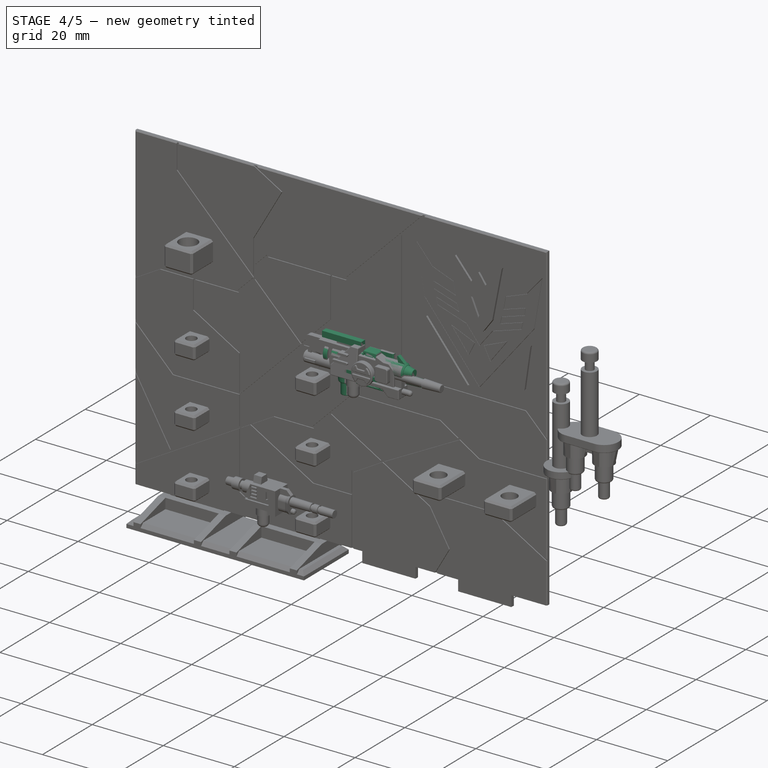
[diagram: stage 4 of 5 — iso view after this stage's code; geometry added in this stage tinted green]
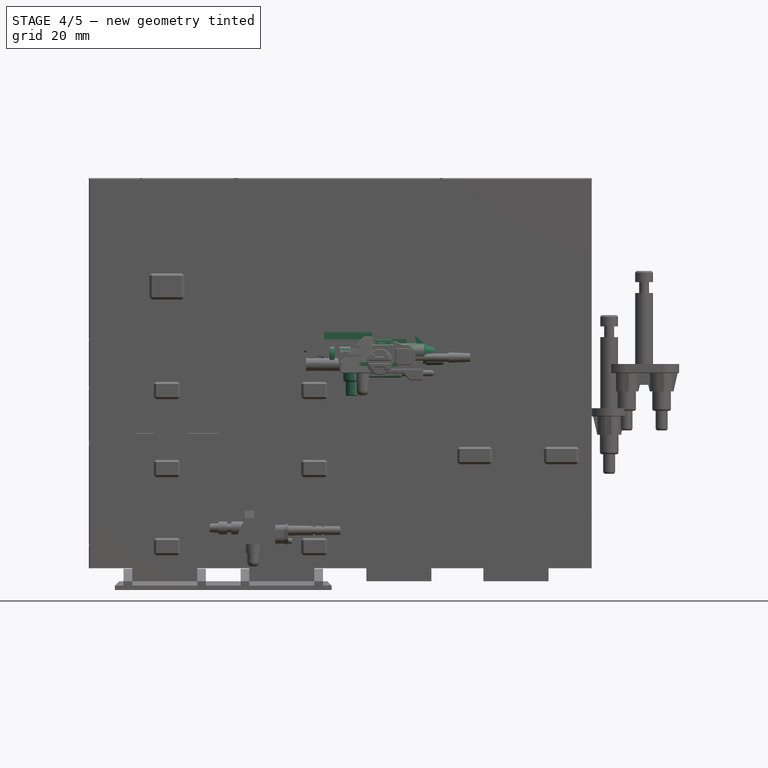
[diagram: stage 4 of 5 — front view after this stage's code; geometry added in this stage tinted green]
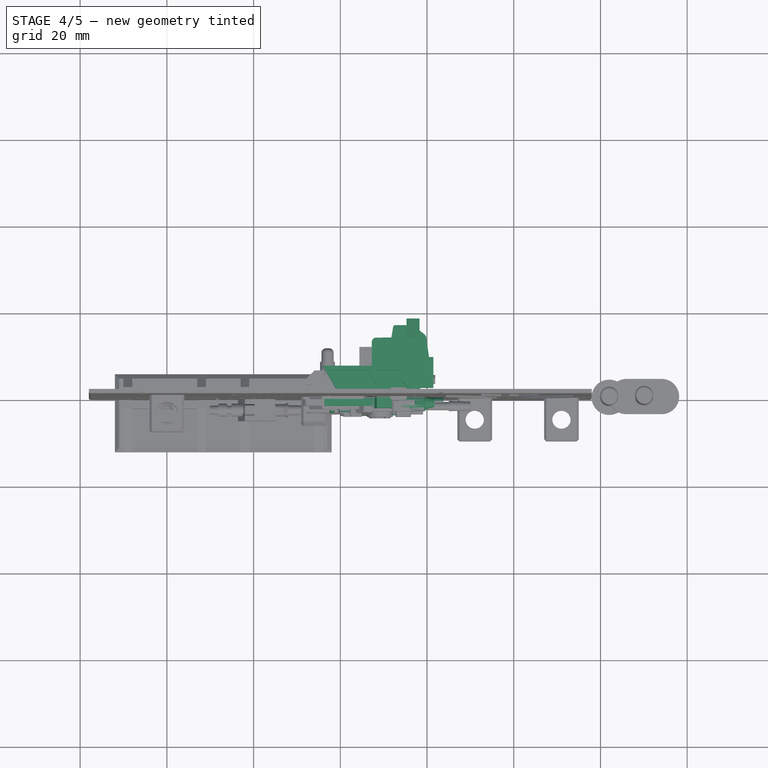
[diagram: stage 4 of 5 — top view after this stage's code; geometry added in this stage tinted green]
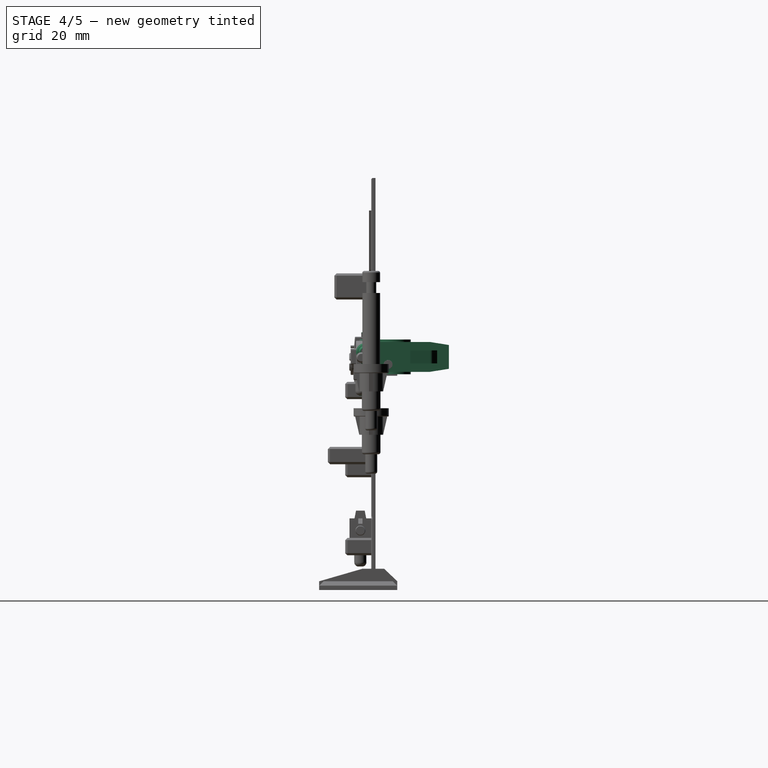
[diagram: stage 4 of 5 — right view after this stage's code; geometry added in this stage tinted green]
FEATURE [PartDesign::Body] Body  label="Bonecrusher_Gun"
  AllowCompound = false
  Group = -> [Sketch,Pad,Sketch001,AdditiveLoft,Fillet,Sketch002,Groove,Sketch003,Pocket,Sketch004,Pad001,Sketch005,Pad002,Pad003,Sketch006,Pad004,Sketch007,Pad005,Sketch008,Pad006,Sketch009,Sketch010,AdditiveLoft001,Fillet001,Sketch011,Groove001,Sketch012,Revolution,Sketch013,Revolution001,Revolution002,Revolution003,Sketch014,Pocket001,Sketch015,Groove002,Sketch016,Pad007,Sketch017,Pad008,Pad009,Sketch018,+17 more]
  Origin = -> Origin
  Placement = pos=(-10.55,-3,2) rot=(0,0,1;0rad)
  Tip = -> Fillet003
FEATURE [Sketcher::SketchObject] Sketch171
  ArcFitTolerance = 1e-06
  AttachmentSupport = -> [XY_Plane020]
  FullyConstrained = true
  MakeInternals = false
  MapMode = 5
  sketch-geometry (4):
    g0: LineSegment StartX=-4.04145 StartY=7 StartZ=0 EndX=0 EndY=0 EndZ=0
    g1: LineSegment StartX=0 StartY=0 StartZ=0 EndX=11.3 EndY=0 EndZ=0
    g2: LineSegment StartX=11.3 StartY=0 StartZ=0 EndX=7.25855 EndY=7 EndZ=0
    g3: LineSegment StartX=7.25855 StartY=7 StartZ=0 EndX=-4.04145 EndY=7 EndZ=0
  constraints (11):
    c: Coincident(g1,g0)
    c: PointOnObject(g1,g-1)
    c: DistanceX(g1,g1) = 11.3
    c: Coincident(g0,g-1)
    c: Coincident(g2,g1)
    c: Coincident(g3,g2)
    c: Coincident(g3,g0)
    c: Horizontal(g3)
    c: Parallel(g0,g2)
    c: DistanceY(g0,g0) = 7
    c: Angle(g0,g3) = 1.0472
FEATURE [PartDesign::Pad] Pad134
  Direction = (0,0,1)
  Length = 7.5
  Length2 = 10
  Profile = -> Sketch171
  ReferenceAxis = -> Sketch171 [N_Axis]
  Refine = true
  Suppressed = false
  Type = 0
FEATURE [Sketcher::SketchObject] Sketch172
  ArcFitTolerance = 1e-06
  AttachmentSupport = -> [Pad134]
  ExternalGeometry = -> [Pad134]
  FullyConstrained = true
  MakeInternals = false
  MapMode = 5
  Placement = pos=(0,0,7.5) rot=(0,0,1;0rad)
  sketch-geometry (4):
    g0: LineSegment StartX=-2.01675 StartY=6 StartZ=0 EndX=6.38855 EndY=6 EndZ=0
    g1: LineSegment StartX=6.38855 StartY=6 StartZ=0 EndX=9.2753 EndY=1 EndZ=0
    g2: LineSegment StartX=9.2753 StartY=1 StartZ=0 EndX=0.87 EndY=1 EndZ=0
    g3: LineSegment StartX=0.87 StartY=1 StartZ=0 EndX=-2.01675 EndY=6 EndZ=0
  constraints (14):
    c: Horizontal(g0)
    c: Coincident(g1,g0)
    c: Coincident(g2,g1)
    c: Horizontal(g2)
    c: Coincident(g3,g2)
    c: Coincident(g3,g0)
    c: DistanceY(g0,g-6) = 1
    c: DistanceY(g-5,g1) = 1
    c: Parallel(g3,g-6)
    c: Parallel(g1,g-4)
    c: DistanceY(g2,g0) = 5
    c: DistanceX(g0,g-4) = 0.87
    c: DistanceX(g-1,g2) = 0.87
    c: DistanceX(g2,g1) = 8.4053
FEATURE [PartDesign::Pocket] Pocket002
  BaseFeature = -> Pad134
  Direction = (0,0,-1)
  Length = 2.2
  Length2 = 5
  Profile = -> Sketch172
  ReferenceAxis = -> Sketch172 [N_Axis]
  Refine = true
  Suppressed = false
  Type = 0
FEATURE [Sketcher::SketchObject] Sketch173
  ArcFitTolerance = 1e-06
  AttachmentSupport = -> [Pocket002]
  ExternalGeometry = -> [Pocket002]
  FullyConstrained = true
  MakeInternals = false
  MapMode = 5
  Placement = pos=(0,0,0) rot=(1,0,0;3.14159rad)
  sketch-geometry (4):
    g0: LineSegment StartX=0.87 StartY=-1 StartZ=0 EndX=9.2753 EndY=-1 EndZ=0
    g1: LineSegment StartX=9.2753 StartY=-1 StartZ=0 EndX=6.38855 EndY=-6 EndZ=0
    g2: LineSegment StartX=6.38855 StartY=-6 StartZ=0 EndX=-2.01675 EndY=-6 EndZ=0
    g3: LineSegment StartX=-2.01675 StartY=-6 StartZ=0 EndX=0.87 EndY=-1 EndZ=0
  constraints (12):
    c: Horizontal(g0)
    c: Coincident(g1,g0)
    c: Coincident(g2,g1)
    c: Horizontal(g2)
    c: Coincident(g3,g2)
    c: Coincident(g3,g0)
    c: Parallel(g3,g-6)
    c: Parallel(g1,g-4)
    c: DistanceY(g-5,g1) = 1
    c: DistanceY(g0,g-1) = 1
    c: DistanceX(g-1,g0) = 0.87
    c: DistanceX(g1,g-5) = 0.87
FEATURE [PartDesign::Pocket] Pocket003
  BaseFeature = -> Pocket002
  Direction = (0,0,1)
  Length = 2.2
  Length2 = 5
  Profile = -> Sketch173
  ReferenceAxis = -> Sketch173 [N_Axis]
  Refine = true
  Suppressed = false
  Type = 0
FEATURE [Sketcher::SketchObject] Sketch174
  ArcFitTolerance = 1e-06
  AttachmentSupport = -> [Pocket003]
  ExternalGeometry = -> [Pocket003]
  FullyConstrained = true
  MakeInternals = false
  MapMode = 5
  Placement = pos=(0,0,7.5) rot=(0,0,1;0rad)
  sketch-geometry (15):
    g0: LineSegment StartX=11.0113 StartY=0.5 StartZ=0 EndX=18.0113 EndY=0.5 EndZ=0
    g1: LineSegment StartX=18.0113 StartY=0.5 StartZ=0 EndX=18.4585 EndY=2 EndZ=0
    g2: LineSegment StartX=18.4585 StartY=2 StartZ=0 EndX=21.4585 EndY=2 EndZ=0
    g3: LineSegment StartX=21.4585 StartY=2 StartZ=0 EndX=21.4585 EndY=9 EndZ=0
    g4: LineSegment StartX=21.4585 StartY=9 StartZ=0 EndX=20.4585 EndY=9 EndZ=0
    g5: LineSegment StartX=20.4585 StartY=9 StartZ=0 EndX=19.7585 EndY=14 EndZ=0
    g6: LineSegment StartX=19.7585 StartY=14 StartZ=0 EndX=18.2585 EndY=15.2 EndZ=0
    g7: LineSegment StartX=18.2585 StartY=15.2 StartZ=0 EndX=18.2585 EndY=17.9 EndZ=0
    g8: LineSegment StartX=18.2585 StartY=17.9 StartZ=0 EndX=15.2585 EndY=17.9 EndZ=0
    g9: LineSegment StartX=15.2585 StartY=17.9 StartZ=0 EndX=15.2585 EndY=16.4 EndZ=0
    g10: LineSegment StartX=15.2585 StartY=16.4 StartZ=0 EndX=12.2585 EndY=16.4 EndZ=0
    g11: LineSegment StartX=12.2585 StartY=16.4 StartZ=0 EndX=11.7585 EndY=13.5 EndZ=0
    g12: LineSegment StartX=11.7585 StartY=13.5 StartZ=0 EndX=7.25855 EndY=13.5 EndZ=0
    g13: LineSegment StartX=7.25855 StartY=13.5 StartZ=0 EndX=7.25855 EndY=7 EndZ=0
    g14: LineSegment StartX=11.0113 StartY=0.5 StartZ=0 EndX=7.25855 EndY=7 EndZ=0
  constraints (46):
    c: PointOnObject(g0,g-3)
    c: Horizontal(g0)
    c: Coincident(g1,g0)
    c: Coincident(g2,g1)
    c: Horizontal(g2)
    c: Coincident(g3,g2)
    c: Vertical(g3)
    c: Coincident(g4,g3)
    c: Horizontal(g4)
    c: Coincident(g5,g4)
    c: Coincident(g6,g5)
    c: Coincident(g7,g6)
    c: Vertical(g7)
    c: Coincident(g8,g7)
    c: Horizontal(g8)
    c: Coincident(g9,g8)
    c: Vertical(g9)
    c: Coincident(g10,g9)
    c: Horizontal(g10)
    c: Coincident(g11,g10)
    c: Coincident(g12,g11)
    c: Horizontal(g12)
    c: Coincident(g13,g12)
    c: Coincident(g13,g-3)
    c: Vertical(g13)
    c: DistanceX(g0,g0) = 7
    c: DistanceY(g13,g13) = 6.5
    c: DistanceX(g12,g12) = 4.5
    c: DistanceY(g11,g10) = 2.9
    c: DistanceY(g9,g9) = 1.5
    c: DistanceY(g-3,g0) = 0.5
    c: DistanceX(g8,g8) = 3
    c: DistanceY(g3,g3) = 7
    c: DistanceX(g6,g5) = 1.5
    c: DistanceX(g-4,g3) = 25.5
    c: DistanceX(g2,g2) = 3
    c: DistanceX(g-1,g2) = 21.4585
    c: DistanceY(g7,g7) = 2.7
    c: DistanceY(g0,g1) = 1.5
    c: DistanceX(g10,g10) = 3
    c: DistanceX(g12,g3) = 14.2
    c: Coincident(g14,g0)
    c: Coincident(g14,g13)
    c: DistanceY(g4,g5) = 5
    c: DistanceX(g4,g3) = 1
    c: DistanceX(g5,g4) = 0.7
FEATURE [PartDesign::Pad] Pad135
  BaseFeature = -> Pocket003
  Direction = (0,0,1)
  Length = 7.5
  Length2 = 10
  Profile = -> Sketch174
  ReferenceAxis = -> Sketch174 [N_Axis]
  Refine = true
  Reversed = true
  Suppressed = false
  Type = 0
FEATURE [Sketcher::SketchObject] Sketch175
  ArcFitTolerance = 1e-06
  AttachmentSupport = -> [Pad135]
  ExternalGeometry = -> [Pad135]
  FullyConstrained = true
  MakeInternals = false
  MapMode = 5
  Placement = pos=(0,0,7.5) rot=(0,0,1;0rad)
  sketch-geometry (15):
    g0: LineSegment StartX=7.25855 StartY=7 StartZ=0 EndX=11.0113 EndY=0.5 EndZ=0
    g1: LineSegment StartX=7.25855 StartY=7 StartZ=0 EndX=7.25855 EndY=13.5 EndZ=0
    g2: LineSegment StartX=7.25855 StartY=13.5 StartZ=0 EndX=11.7585 EndY=13.5 EndZ=0
    g3: LineSegment StartX=11.7585 StartY=13.5 StartZ=0 EndX=12.2585 EndY=16.4 EndZ=0
    g4: LineSegment StartX=12.2585 StartY=16.4 StartZ=0 EndX=15.2585 EndY=16.4 EndZ=0
    g5: LineSegment StartX=15.2585 StartY=16.4 StartZ=0 EndX=15.2585 EndY=17.9 EndZ=0
    g6: LineSegment StartX=15.2585 StartY=17.9 StartZ=0 EndX=18.2585 EndY=17.9 EndZ=0
    g7: LineSegment StartX=18.2585 StartY=17.9 StartZ=0 EndX=18.2585 EndY=15.2 EndZ=0
    g8: LineSegment StartX=18.2585 StartY=15.2 StartZ=0 EndX=19.7585 EndY=14 EndZ=0
    g9: LineSegment StartX=19.7585 StartY=14 StartZ=0 EndX=20.4585 EndY=9 EndZ=0
    g10: LineSegment StartX=20.4585 StartY=9 StartZ=0 EndX=21.4585 EndY=9 EndZ=0
    g11: LineSegment StartX=21.4585 StartY=9 StartZ=0 EndX=21.4585 EndY=2 EndZ=0
    g12: LineSegment StartX=21.4585 StartY=2 StartZ=0 EndX=18.4585 EndY=2 EndZ=0
    g13: LineSegment StartX=18.4585 StartY=2 StartZ=0 EndX=18.0113 EndY=0.5 EndZ=0
    g14: LineSegment StartX=18.0113 StartY=0.5 StartZ=0 EndX=11.0113 EndY=0.5 EndZ=0
  constraints (30):
    c: Coincident(g0,g-3)
    c: Coincident(g0,g-16)
    c: Coincident(g1,g0)
    c: Coincident(g1,g-4)
    c: Coincident(g2,g1)
    c: Coincident(g2,g-5)
    c: Coincident(g3,g2)
    c: Coincident(g3,g-6)
    c: Coincident(g4,g3)
    c: Coincident(g4,g-6)
    c: Coincident(g5,g4)
    c: Coincident(g5,g-8)
    c: Coincident(g6,g5)
    c: Coincident(g6,g-9)
    c: Coincident(g7,g6)
    c: Coincident(g7,g-10)
    c: Coincident(g8,g7)
    c: Coincident(g8,g-11)
    c: Coincident(g9,g8)
    c: Coincident(g9,g-12)
    c: Coincident(g10,g9)
    c: Coincident(g10,g-13)
    c: Coincident(g11,g10)
    c: Coincident(g11,g-14)
    c: Coincident(g12,g11)
    c: Coincident(g12,g-15)
    c: Coincident(g13,g12)
    c: Coincident(g13,g-16)
    c: Coincident(g14,g13)
    c: Coincident(g14,g0)
FEATURE [PartDesign::Pocket] Pocket004
  BaseFeature = -> Pad135
  Direction = (0,0,-1)
  Length = 0.3
  Length2 = 5
  Profile = -> Sketch175
  ReferenceAxis = -> Sketch175 [N_Axis]
  Refine = true
  Suppressed = false
  Type = 0
FEATURE [Sketcher::SketchObject] Sketch176
  ArcFitTolerance = 1e-06
  AttachmentSupport = -> [Pocket004]
  ExternalGeometry = -> [Pocket004]
  FullyConstrained = true
  MakeInternals = false
  MapMode = 5
  Placement = pos=(0,0,0) rot=(1,0,0;3.14159rad)
  sketch-geometry (15):
    g0: LineSegment StartX=7.25855 StartY=-7 StartZ=0 EndX=11.0113 EndY=-0.5 EndZ=0
    g1: LineSegment StartX=11.0113 StartY=-0.5 StartZ=0 EndX=18.0113 EndY=-0.5 EndZ=0
    g2: LineSegment StartX=18.0113 StartY=-0.5 StartZ=0 EndX=18.4585 EndY=-2 EndZ=0
    g3: LineSegment StartX=18.4585 StartY=-2 StartZ=0 EndX=21.4585 EndY=-2 EndZ=0
    g4: LineSegment StartX=21.4585 StartY=-2 StartZ=0 EndX=21.4585 EndY=-9 EndZ=0
    g5: LineSegment StartX=21.4585 StartY=-9 StartZ=0 EndX=20.4585 EndY=-9 EndZ=0
    g6: LineSegment StartX=20.4585 StartY=-9 StartZ=0 EndX=19.7585 EndY=-14 EndZ=0
    g7: LineSegment StartX=19.7585 StartY=-14 StartZ=0 EndX=18.2585 EndY=-15.2 EndZ=0
    g8: LineSegment StartX=18.2585 StartY=-15.2 StartZ=0 EndX=18.2585 EndY=-17.9 EndZ=0
    g9: LineSegment StartX=18.2585 StartY=-17.9 StartZ=0 EndX=15.2585 EndY=-17.9 EndZ=0
    g10: LineSegment StartX=15.2585 StartY=-17.9 StartZ=0 EndX=15.2585 EndY=-16.4 EndZ=0
    g11: LineSegment StartX=15.2585 StartY=-16.4 StartZ=0 EndX=12.2585 EndY=-16.4 EndZ=0
    g12: LineSegment StartX=12.2585 StartY=-16.4 StartZ=0 EndX=11.7585 EndY=-13.5 EndZ=0
    g13: LineSegment StartX=11.7585 StartY=-13.5 StartZ=0 EndX=7.25855 EndY=-13.5 EndZ=0
    g14: LineSegment StartX=7.25855 StartY=-13.5 StartZ=0 EndX=7.25855 EndY=-7 EndZ=0
  constraints (30):
    c: Coincident(g0,g-16)
    c: Coincident(g0,g-3)
    c: Coincident(g1,g0)
    c: Coincident(g1,g-4)
    c: Coincident(g2,g1)
    c: Coincident(g2,g-5)
    c: Coincident(g3,g2)
    c: Coincident(g3,g-6)
    c: Coincident(g4,g3)
    c: Coincident(g4,g-7)
    c: Coincident(g5,g4)
    c: Coincident(g5,g-8)
    c: Coincident(g6,g5)
    c: Coincident(g6,g-9)
    c: Coincident(g7,g6)
    c: Coincident(g7,g-10)
    c: Coincident(g8,g7)
    c: Coincident(g8,g-11)
    c: Coincident(g9,g8)
    c: Coincident(g9,g-12)
    c: Coincident(g10,g9)
    c: Coincident(g10,g-13)
    c: Coincident(g11,g10)
    c: Coincident(g11,g-14)
    c: Coincident(g12,g11)
    c: Coincident(g12,g-15)
    c: Coincident(g13,g12)
    c: Coincident(g13,g-16)
    c: Coincident(g14,g13)
    c: Coincident(g14,g0)
FEATURE [PartDesign::Pocket] Pocket005
  BaseFeature = -> Pocket004
  Direction = (0,0,1)
  Length = 0.3
  Length2 = 5
  Profile = -> Sketch176
  ReferenceAxis = -> Sketch176 [N_Axis]
  Refine = true
  Suppressed = false
  Type = 0
FEATURE [Sketcher::SketchObject] Sketch177
  ArcFitTolerance = 1e-06
  AttachmentSupport = -> [Pocket005]
  ExternalGeometry = -> [Pocket005]
  FullyConstrained = true
  MakeInternals = false
  MapMode = 5
  Placement = pos=(0,0,7.2) rot=(0,0,1;0rad)
  sketch-geometry (3):
    g0: Circle CenterX=17.3282 CenterY=5.47056 CenterZ=0 NormalX=0 NormalY=0 NormalZ=1 AngleXU=0 Radius=3.65
    g1: LineSegment [constr] StartX=18.2585 StartY=15.2 StartZ=0 EndX=18.2585 EndY=9 EndZ=0
    g2: LineSegment [constr] StartX=20.4585 StartY=9 StartZ=0 EndX=18.2585 EndY=9 EndZ=0
  constraints (8):
    c: PointOnObject(g-4,g0)
    c: Coincident(g1,g-5)
    c: PointOnObject(g1,g0)
    c: Vertical(g1)
    c: Coincident(g2,g-3)
    c: Coincident(g2,g1)
    c: Horizontal(g2)
    c: Diameter(g0) = 7.3
FEATURE [PartDesign::Pad] Pad136
  BaseFeature = -> Pocket005
  Direction = (0,0,1)
  Length = 0.55
  Length2 = 10
  Profile = -> Sketch177
  ReferenceAxis = -> Sketch177 [N_Axis]
  Refine = true
  Suppressed = false
  Type = 0
FEATURE [Sketcher::SketchObject] Sketch178
  ArcFitTolerance = 1e-06
  AttachmentSupport = -> [Pad136]
  ExternalGeometry = -> [Pad136]
  FullyConstrained = true
  MakeInternals = false
  MapMode = 5
  Placement = pos=(0,0,0.3) rot=(1,0,0;3.14159rad)
  sketch-geometry (3):
    g0: Circle CenterX=17.3282 CenterY=-5.47056 CenterZ=0 NormalX=0 NormalY=0 NormalZ=1 AngleXU=0 Radius=3.65
    g1: LineSegment [constr] StartX=18.2585 StartY=-15.2 StartZ=0 EndX=18.2585 EndY=-9 EndZ=0
    g2: LineSegment [constr] StartX=20.4585 StartY=-9 StartZ=0 EndX=18.2585 EndY=-9 EndZ=0
  constraints (8):
    c: Diameter(g0) = 7.3
    c: PointOnObject(g-3,g0)
    c: Coincident(g1,g-6)
    c: PointOnObject(g1,g0)
    c: Vertical(g1)
    c: Coincident(g2,g-5)
    c: Coincident(g2,g1)
    c: Horizontal(g2)
FEATURE [PartDesign::Pad] Pad137
  BaseFeature = -> Pad136
  Direction = (0,0,-1)
  Length = 0.55
  Length2 = 10
  Profile = -> Sketch178
  ReferenceAxis = -> Sketch178 [N_Axis]
  Refine = true
  Suppressed = false
  Type = 0
FEATURE [Sketcher::SketchObject] Sketch179
  ArcFitTolerance = 1e-06
  AttachmentSupport = -> [Pad137]
  ExternalGeometry = -> [Pad137]
  FullyConstrained = true
  MakeInternals = false
  MapMode = 5
  Placement = pos=(0,0,7.2) rot=(0,0,1;0rad)
FEATURE [Sketcher::SketchObject] Sketch180
  ArcFitTolerance = 1e-06
  AttachmentSupport = -> [Pad137]
  ExternalGeometry = -> [Pad137]
  FullyConstrained = true
  MakeInternals = false
  MapMode = 5
  Placement = pos=(0,0,7.2) rot=(0,0,1;0rad)
  sketch-geometry (4):
    g0: LineSegment StartX=18.2585 StartY=15.2 StartZ=0 EndX=19.7585 EndY=14 EndZ=0
    g1: LineSegment StartX=19.7585 StartY=14 StartZ=0 EndX=20.4585 EndY=9 EndZ=0
    g2: LineSegment StartX=18.2585 StartY=15.2 StartZ=0 EndX=18.2585 EndY=9 EndZ=0
    g3: LineSegment StartX=20.4585 StartY=9 StartZ=0 EndX=18.2585 EndY=9 EndZ=0
  constraints (9):
    c: Coincident(g0,g-3)
    c: Coincident(g0,g-4)
    c: Coincident(g1,g0)
    c: Coincident(g1,g-4)
    c: Coincident(g2,g0)
    c: PointOnObject(g2,g-5)
    c: Vertical(g2)
    c: Coincident(g3,g1)
    c: Coincident(g3,g2)
FEATURE [PartDesign::Pocket] Pocket006
  BaseFeature = -> Pad137
  Direction = (0,0,-1)
  Length = 1.95
  Length2 = 5
  Profile = -> Sketch180
  ReferenceAxis = -> Sketch180 [N_Axis]
  Refine = true
  Suppressed = false
  Type = 0
FEATURE [Sketcher::SketchObject] Sketch181
  ArcFitTolerance = 1e-06
  AttachmentSupport = -> [Pocket006]
  ExternalGeometry = -> [Pocket006]
  FullyConstrained = true
  MakeInternals = false
  MapMode = 5
  Placement = pos=(0,0,0.3) rot=(1,0,0;3.14159rad)
  sketch-geometry (4):
    g0: LineSegment StartX=18.2585 StartY=-15.2 StartZ=0 EndX=19.7585 EndY=-14 EndZ=0
    g1: LineSegment StartX=19.7585 StartY=-14 StartZ=0 EndX=20.4585 EndY=-9 EndZ=0
    g2: LineSegment StartX=20.4585 StartY=-9 StartZ=0 EndX=18.2585 EndY=-9 EndZ=0
    g3: LineSegment StartX=18.2585 StartY=-15.2 StartZ=0 EndX=18.2585 EndY=-9 EndZ=0
  constraints (9):
    c: Coincident(g0,g-4)
    c: Coincident(g0,g-4)
    c: Coincident(g1,g0)
    c: Coincident(g1,g-3)
    c: Coincident(g2,g1)
    c: PointOnObject(g2,g-5)
    c: Horizontal(g2)
    c: Coincident(g3,g0)
    c: Coincident(g3,g2)
FEATURE [PartDesign::Pocket] Pocket007
  BaseFeature = -> Pocket006
  Direction = (0,0,1)
  Length = 1.95
  Length2 = 5
  Profile = -> Sketch181
  ReferenceAxis = -> Sketch181 [N_Axis]
  Refine = true
  Suppressed = false
  Type = 0
FEATURE [Sketcher::SketchObject] Sketch182
  ArcFitTolerance = 1e-06
  AttachmentSupport = -> [Pocket007]
  ExternalGeometry = -> [Pocket007]
  FullyConstrained = true
  MakeInternals = false
  MapMode = 5
  Placement = pos=(0,0,0.3) rot=(1,0,0;3.14159rad)
  sketch-geometry (4):
    g0: LineSegment StartX=15.2585 StartY=-16.4 StartZ=0 EndX=15.2585 EndY=-13.5 EndZ=0
    g1: LineSegment StartX=11.7585 StartY=-13.5 StartZ=0 EndX=15.2585 EndY=-13.5 EndZ=0
    g2: LineSegment StartX=15.2585 StartY=-16.4 StartZ=0 EndX=12.2585 EndY=-16.4 EndZ=0
    g3: LineSegment StartX=12.2585 StartY=-16.4 StartZ=0 EndX=11.7585 EndY=-13.5 EndZ=0
  constraints (9):
    c: Coincident(g0,g-3)
    c: Vertical(g0)
    c: Coincident(g1,g-4)
    c: Coincident(g1,g0)
    c: Horizontal(g1)
    c: Coincident(g2,g0)
    c: Coincident(g2,g-4)
    c: Coincident(g3,g2)
    c: Coincident(g3,g1)
FEATURE [PartDesign::Pocket] Pocket008
  BaseFeature = -> Pocket007
  Direction = (0,0,1)
  Length = 1.95
  Length2 = 5
  Profile = -> Sketch182
  ReferenceAxis = -> Sketch182 [N_Axis]
  Refine = true
  Suppressed = false
  Type = 0
FEATURE [Sketcher::SketchObject] Sketch183
  ArcFitTolerance = 1e-06
  AttachmentSupport = -> [Pocket008]
  ExternalGeometry = -> [Pocket008]
  FullyConstrained = true
  MakeInternals = false
  MapMode = 5
  Placement = pos=(0,0,7.2) rot=(0,0,1;0rad)
  sketch-geometry (4):
    g0: LineSegment StartX=12.2585 StartY=16.4 StartZ=0 EndX=15.2585 EndY=16.4 EndZ=0
    g1: LineSegment StartX=12.2585 StartY=16.4 StartZ=0 EndX=11.7585 EndY=13.5 EndZ=0
    g2: LineSegment StartX=11.7585 StartY=13.5 StartZ=0 EndX=15.2585 EndY=13.5 EndZ=0
    g3: LineSegment StartX=15.2585 StartY=16.4 StartZ=0 EndX=15.2585 EndY=13.5 EndZ=0
  constraints (9):
    c: Coincident(g0,g-4)
    c: Coincident(g0,g-3)
    c: Coincident(g1,g0)
    c: Coincident(g1,g-4)
    c: Coincident(g2,g1)
    c: Horizontal(g2)
    c: Coincident(g3,g0)
    c: Coincident(g3,g2)
    c: Vertical(g3)
FEATURE [PartDesign::Pocket] Pocket009
  BaseFeature = -> Pocket008
  Direction = (0,0,-1)
  Length = 1.95
  Length2 = 5
  Profile = -> Sketch183
  ReferenceAxis = -> Sketch183 [N_Axis]
  Refine = true
  Suppressed = false
  Type = 0
FEATURE [Sketcher::SketchObject] Sketch184
  ArcFitTolerance = 1e-06
  AttachmentSupport = -> [Pocket009]
  ExternalGeometry = -> [Pocket009]
  FullyConstrained = true
  MakeInternals = false
  MapMode = 5
  Placement = pos=(18.2585,-6.9209e-12,-6.8795e-12) rot=(0.57735,0.57735,0.57735;2.0944rad)
  sketch-geometry (6):
    g0: LineSegment StartX=13.5 StartY=7.2 StartZ=0 EndX=17.9 EndY=7.2 EndZ=0
    g1: LineSegment StartX=17.9 StartY=6.5 StartZ=0 EndX=13.5 EndY=7.2 EndZ=0
    g2: LineSegment StartX=13.5 StartY=0.3 StartZ=0 EndX=17.9 EndY=0.3 EndZ=0
    g3: LineSegment StartX=17.9 StartY=0.3 StartZ=0 EndX=17.9 EndY=1 EndZ=0
    g4: LineSegment StartX=17.9 StartY=1 StartZ=0 EndX=13.5 EndY=0.3 EndZ=0
    g5: LineSegment StartX=17.9 StartY=7.2 StartZ=0 EndX=17.9 EndY=6.5 EndZ=0
  constraints (15):
    c: DistanceY(g-4,g-4) = 6.9
    c: Coincident(g0,g-6)
    c: Coincident(g0,g-4)
    c: PointOnObject(g1,g-4)
    c: Coincident(g1,g0)
    c: Coincident(g2,g-5)
    c: Coincident(g2,g-4)
    c: Coincident(g3,g2)
    c: PointOnObject(g3,g-4)
    c: Coincident(g4,g2)
    c: DistanceY(g4,g1) = 5.5
    c: DistanceY(g3,g3) = 0.7
    c: Coincident(g4,g3)
    c: Coincident(g5,g0)
    c: Coincident(g5,g1)
FEATURE [PartDesign::Pocket] Pocket010
  BaseFeature = -> Pocket009
  Direction = (-1,3.79e-13,3.768e-13)
  Length = 5
  Length2 = 5
  Profile = -> Sketch184
  ReferenceAxis = -> Sketch184 [N_Axis]
  Refine = true
  Suppressed = false
  Type = 0
FEATURE [Sketcher::SketchObject] Sketch185
  ArcFitTolerance = 1e-06
  AttachmentSupport = -> [Pocket010]
  ExternalGeometry = -> [Pocket010]
  FullyConstrained = true
  MakeInternals = false
  MapMode = 5
  Placement = pos=(0,0,7.2) rot=(0,0,1;0rad)
  sketch-geometry (4):
    g0: LineSegment StartX=7.8359 StartY=6 StartZ=0 EndX=13.7168 EndY=6 EndZ=0
    g1: LineSegment StartX=10.1453 StartY=2 StartZ=0 EndX=16.1978 EndY=2 EndZ=0
    g2: ArcOfCircle CenterX=17.3282 CenterY=5.47056 CenterZ=0 NormalX=0 NormalY=0 NormalZ=1 AngleXU=0 Radius=3.65 StartAngle=2.99603 EndAngle=4.39753
    g3: LineSegment StartX=7.8359 StartY=6 StartZ=0 EndX=10.1453 EndY=2 EndZ=0
  constraints (13):
    c: PointOnObject(g0,g-4)
    c: PointOnObject(g0,g-3)
    c: Horizontal(g0)
    c: PointOnObject(g1,g-4)
    c: PointOnObject(g1,g-3)
    c: Horizontal(g1)
    c: PointOnObject(g2,g0)
    c: Coincident(g2,g1)
    c: Coincident(g3,g0)
    c: Coincident(g3,g1)
    c: DistanceY(g-5,g0) = 0
    c: DistanceY(g1,g3) = 4
    c: Tangent(g2,g-3) = -1.5708
FEATURE [PartDesign::Pocket] Pocket011
  BaseFeature = -> Pocket010
  Direction = (0,0,-1)
  Length = 1.9
  Length2 = 5
  Profile = -> Sketch185
  ReferenceAxis = -> Sketch185 [N_Axis]
  Refine = true
  Suppressed = false
  Type = 0
FEATURE [Sketcher::SketchObject] Sketch186
  ArcFitTolerance = 1e-06
  AttachmentSupport = -> [Pocket011]
  ExternalGeometry = -> [Pocket011]
  FullyConstrained = true
  MakeInternals = false
  MapMode = 5
  Placement = pos=(0,0,0.3) rot=(1,0,0;3.14159rad)
  sketch-geometry (4):
    g0: ArcOfCircle CenterX=17.3282 CenterY=-5.47056 CenterZ=0 NormalX=0 NormalY=0 NormalZ=1 AngleXU=0 Radius=3.65 StartAngle=1.88566 EndAngle=3.28716
    g1: LineSegment StartX=7.8359 StartY=-6 StartZ=0 EndX=10.1453 EndY=-2 EndZ=0
    g2: LineSegment StartX=10.1453 StartY=-2 StartZ=0 EndX=16.1978 EndY=-2 EndZ=0
    g3: LineSegment StartX=13.7168 StartY=-6 StartZ=0 EndX=7.8359 EndY=-6 EndZ=0
  constraints (12):
    c: Tangent(g0,g-4) = -1.5708
    c: PointOnObject(g0,g-4)
    c: PointOnObject(g1,g-3)
    c: PointOnObject(g1,g-3)
    c: Coincident(g2,g1)
    c: Coincident(g2,g0)
    c: Horizontal(g2)
    c: Coincident(g3,g0)
    c: Coincident(g3,g1)
    c: Horizontal(g3)
    c: DistanceY(g-5,g1) = 0
    c: DistanceY(g1,g1) = 4
FEATURE [PartDesign::Pocket] Pocket012
  BaseFeature = -> Pocket011
  Direction = (0,0,1)
  Length = 1.9
  Length2 = 5
  Profile = -> Sketch186
  ReferenceAxis = -> Sketch186 [N_Axis]
  Refine = true
  Suppressed = false
  Type = 0
FEATURE [Sketcher::SketchObject] Sketch187
  ArcFitTolerance = 1e-06
  AttachmentSupport = -> [Pocket012]
  ExternalGeometry = -> [Pocket012]
  FullyConstrained = true
  MakeInternals = false
  MapMode = 5
  Placement = pos=(0,0,7.2) rot=(0,0,1;0rad)
  sketch-geometry (4):
    g0: LineSegment StartX=7.25855 StartY=7 StartZ=0 EndX=9.65855 EndY=7 EndZ=0
    g1: LineSegment StartX=9.65855 StartY=7 StartZ=0 EndX=9.65855 EndY=13.5 EndZ=0
    g2: LineSegment StartX=9.65855 StartY=13.5 StartZ=0 EndX=7.25855 EndY=13.5 EndZ=0
    g3: LineSegment StartX=7.25855 StartY=13.5 StartZ=0 EndX=7.25855 EndY=7 EndZ=0
  constraints (10):
    c: Coincident(g0,g-4)
    c: Horizontal(g0)
    c: Coincident(g1,g0)
    c: PointOnObject(g1,g-3)
    c: Vertical(g1)
    c: Coincident(g2,g1)
    c: Coincident(g2,g-4)
    c: Coincident(g3,g2)
    c: Coincident(g3,g0)
    c: DistanceX(g2,g2) = 2.4
FEATURE [PartDesign::Pocket] Pocket013
  BaseFeature = -> Pocket012
  Direction = (0,0,-1)
  Length = 0.5
  Length2 = 5
  Profile = -> Sketch187
  ReferenceAxis = -> Sketch187 [N_Axis]
  Refine = true
  Suppressed = false
  Type = 0
FEATURE [Sketcher::SketchObject] Sketch188
  ArcFitTolerance = 1e-06
  AttachmentSupport = -> [Pocket013]
  ExternalGeometry = -> [Pocket013]
  FullyConstrained = true
  MakeInternals = false
  MapMode = 5
  Placement = pos=(0,0,0.3) rot=(1,0,0;3.14159rad)
  sketch-geometry (4):
    g0: LineSegment StartX=7.25855 StartY=-7 StartZ=0 EndX=7.25855 EndY=-13.5 EndZ=0
    g1: LineSegment StartX=7.25855 StartY=-13.5 StartZ=0 EndX=9.65855 EndY=-13.5 EndZ=0
    g2: LineSegment StartX=9.65855 StartY=-13.5 StartZ=0 EndX=9.65855 EndY=-7 EndZ=0
    g3: LineSegment StartX=7.25855 StartY=-7 StartZ=0 EndX=9.65855 EndY=-7 EndZ=0
  constraints (10):
    c: Coincident(g0,g-3)
    c: Coincident(g0,g-4)
    c: Coincident(g1,g0)
    c: PointOnObject(g1,g-4)
    c: Coincident(g2,g1)
    c: Vertical(g2)
    c: Coincident(g3,g0)
    c: Coincident(g3,g2)
    c: Horizontal(g3)
    c: DistanceX(g1,g1) = 2.4
FEATURE [PartDesign::Pocket] Pocket014
  BaseFeature = -> Pocket013
  Direction = (0,0,1)
  Length = 0.5
  Length2 = 5
  Profile = -> Sketch188
  ReferenceAxis = -> Sketch188 [N_Axis]
  Refine = true
  Suppressed = false
  Type = 0
FEATURE [Sketcher::SketchObject] Sketch189
  ArcFitTolerance = 1e-06
  AttachmentSupport = -> [Pocket014]
  ExternalGeometry = -> [Pocket014]
  FullyConstrained = true
  MakeInternals = false
  MapMode = 5
  Placement = pos=(0,0,7.2) rot=(0,0,1;0rad)
  sketch-geometry (4):
    g0: LineSegment StartX=9.65855 StartY=7 StartZ=0 EndX=7.25855 EndY=7 EndZ=0
    g1: LineSegment StartX=7.25855 StartY=7 StartZ=0 EndX=7.8359 EndY=6 EndZ=0
    g2: LineSegment StartX=7.8359 StartY=6 StartZ=0 EndX=9.65855 EndY=6 EndZ=0
    g3: LineSegment StartX=9.65855 StartY=7 StartZ=0 EndX=9.65855 EndY=6 EndZ=0
  constraints (9):
    c: Coincident(g0,g-3)
    c: Coincident(g0,g-4)
    c: Coincident(g1,g-4)
    c: Coincident(g1,g-5)
    c: Coincident(g2,g-5)
    c: PointOnObject(g2,g-5)
    c: Coincident(g3,g0)
    c: Coincident(g3,g2)
    c: Vertical(g3)
FEATURE [PartDesign::Pocket] Pocket015
  BaseFeature = -> Pocket014
  Direction = (0,0,-1)
  Length = 0.3
  Length2 = 5
  Profile = -> Sketch189
  ReferenceAxis = -> Sketch189 [N_Axis]
  Refine = true
  Suppressed = false
  Type = 0
FEATURE [Sketcher::SketchObject] Sketch190
  ArcFitTolerance = 1e-06
  AttachmentSupport = -> [Pocket015]
  ExternalGeometry = -> [Pocket015]
  FullyConstrained = true
  MakeInternals = false
  MapMode = 5
  Placement = pos=(0,0,0.3) rot=(1,0,0;3.14159rad)
  sketch-geometry (4):
    g0: LineSegment StartX=9.65855 StartY=-7 StartZ=0 EndX=7.25855 EndY=-7 EndZ=0
    g1: LineSegment StartX=7.25855 StartY=-7 StartZ=0 EndX=7.8359 EndY=-6 EndZ=0
    g2: LineSegment StartX=7.8359 StartY=-6 StartZ=0 EndX=9.65855 EndY=-6 EndZ=0
    g3: LineSegment StartX=9.65855 StartY=-7 StartZ=0 EndX=9.65855 EndY=-6 EndZ=0
  constraints (9):
    c: Coincident(g0,g-5)
    c: Coincident(g0,g-5)
    c: Coincident(g1,g-5)
    c: Coincident(g1,g-4)
    c: PointOnObject(g2,g-4)
    c: Coincident(g3,g0)
    c: Coincident(g3,g2)
    c: Vertical(g3)
    c: Coincident(g2,g1)
FEATURE [PartDesign::Pocket] Pocket016
  BaseFeature = -> Pocket015
  Direction = (0,0,1)
  Length = 0.3
  Length2 = 5
  Profile = -> Sketch190
  ReferenceAxis = -> Sketch190 [N_Axis]
  Refine = true
  Suppressed = false
  Type = 0
FEATURE [Sketcher::SketchObject] Sketch191
  ArcFitTolerance = 1e-06
  AttachmentSupport = -> [Pocket016]
  ExternalGeometry = -> [Pocket016]
  FullyConstrained = true
  MakeInternals = false
  MapMode = 5
  Placement = pos=(0,0,7.2) rot=(0,0,1;0rad)
  sketch-geometry (12):
    g0: LineSegment StartX=11.5113 StartY=1.7 StartZ=0 EndX=11.5113 EndY=-0.5 EndZ=0
    g1: LineSegment StartX=11.8113 StartY=-0.8 StartZ=0 EndX=15.0113 EndY=-0.8 EndZ=0
    g2: LineSegment StartX=15.3113 StartY=-0.5 StartZ=0 EndX=15.3113 EndY=1.7 EndZ=0
    g3: LineSegment StartX=15.0113 StartY=2 StartZ=0 EndX=11.8113 EndY=2 EndZ=0
    g4: ArcOfCircle CenterX=15.0113 CenterY=1.7 CenterZ=0 NormalX=0 NormalY=0 NormalZ=1 AngleXU=0 Radius=0.3 StartAngle=1e-16 EndAngle=1.5708
    g5: GeomPoint [constr] X=15.3113 Y=2 Z=0
    g6: ArcOfCircle CenterX=11.8113 CenterY=1.7 CenterZ=0 NormalX=0 NormalY=0 NormalZ=1 AngleXU=0 Radius=0.3 StartAngle=1.5708 EndAngle=3.14159
    g7: GeomPoint [constr] X=11.5113 Y=2 Z=0
    g8: ArcOfCircle CenterX=11.8113 CenterY=-0.5 CenterZ=0 NormalX=0 NormalY=0 NormalZ=1 AngleXU=0 Radius=0.3 StartAngle=3.14159 EndAngle=4.71239
    g9: GeomPoint [constr] X=11.5113 Y=-0.8 Z=0
    g10: ArcOfCircle CenterX=15.0113 CenterY=-0.5 CenterZ=0 NormalX=0 NormalY=0 NormalZ=1 AngleXU=0 Radius=0.3 StartAngle=4.71239 EndAngle=6.28319
    g11: GeomPoint [constr] X=15.3113 Y=-0.8 Z=0
  constraints (28):
    c: Vertical(g0)
    c: Vertical(g2)
    c: Horizontal(g1)
    c: Horizontal(g3)
    c: PointOnObject(g5,g2)
    c: PointOnObject(g5,g3)
    c: Tangent(g2,g4) = -1.5708
    c: Tangent(g3,g4) = -1.5708
    c: PointOnObject(g7,g0)
    c: PointOnObject(g7,g3)
    c: Tangent(g0,g6) = -1.5708
    c: Tangent(g3,g6) = -1.5708
    c: PointOnObject(g9,g0)
    c: PointOnObject(g9,g1)
    c: Tangent(g0,g8) = -1.5708
    c: Tangent(g1,g8) = -1.5708
    c: PointOnObject(g11,g1)
    c: PointOnObject(g11,g2)
    c: Tangent(g1,g10) = -1.5708
    c: Tangent(g2,g10) = -1.5708
    c: Radius(g6) = 0.3
    c: Radius(g4) = 0.3
    c: Radius(g10) = 0.3
    c: Radius(g8) = 0.3
    c: DistanceY(g1,g3) = 2.8
    c: DistanceX(g0,g2) = 3.8
    c: PointOnObject(g3,g-4)
    c: DistanceX(g-5,g0) = 0.5
FEATURE [PartDesign::Pad] Pad138
  BaseFeature = -> Pocket016
  Direction = (0,0,1)
  Length = 0.65
  Length2 = 10
  Profile = -> Sketch191
  ReferenceAxis = -> Sketch191 [N_Axis]
  Refine = true
  Suppressed = false
  Type = 0
FEATURE [PartDesign::Pad] Pad139
  BaseFeature = -> Pad138
  Direction = (0,0,1)
  Length = 7.55
  Length2 = 10
  Profile = -> Sketch191
  ReferenceAxis = -> Sketch191 [N_Axis]
  Refine = true
  Reversed = true
  Suppressed = false
  Type = 0
FEATURE [PartDesign::Fillet] Fillet007
  Base = -> Pad139 [Edge48]
  BaseFeature = -> Pad139
  Radius = 1
  Refine = true
  SupportTransform = false
  Suppressed = false
  UseAllEdges = false
FEATURE [PartDesign::Fillet] Fillet008
  Base = -> Fillet007 [Edge83]
  BaseFeature = -> Fillet007
  Radius = 0.5
  Refine = true
  SupportTransform = false
  Suppressed = false
  UseAllEdges = false
FEATURE [PartDesign::Fillet] Fillet009
  Base = -> Fillet008 [Edge126]
  BaseFeature = -> Fillet008
  Radius = 1
  Refine = true
  SupportTransform = false
  Suppressed = false
  UseAllEdges = false
FEATURE [PartDesign::Body] Body018  label="Devastator_Gun"
  AllowCompound = false
  Group = -> [Sketch171,Pad134,Sketch172,Pocket002,Sketch173,Pocket003,Sketch174,Pad135,Sketch175,Pocket004,Sketch176,Pocket005,Sketch177,Pad136,Sketch178,Pad137,Sketch179,Sketch180,Pocket006,Sketch181,Pocket007,Sketch182,Pocket008,Sketch183,Pocket009,Sketch184,Pocket010,Sketch185,Pocket011,Sketch186,Pocket012,Sketch187,Pocket013,Sketch188,Pocket014,Sketch189,Pocket015,Sketch190,Pocket016,Sketch191,Pad138,+75 more]
  Origin = -> Origin020
  Placement = pos=(-48.8,-0.5,23.8) rot=(1,0,0;1.5708rad)
  Tip = -> Pocket027
FEATURE [Sketcher::SketchObject] Sketch225
  ArcFitTolerance = 1e-06
  AttachmentSupport = -> [XZ_Plane021]
  FullyConstrained = true
  MakeInternals = false
  MapMode = 5
  Placement = pos=(0,0,0) rot=(1,0,0;1.5708rad)
  sketch-geometry (15):
    g0: LineSegment StartX=0 StartY=0 StartZ=0 EndX=6 EndY=0 EndZ=0
    g1: LineSegment StartX=6 StartY=0 StartZ=0 EndX=6.7 EndY=-1 EndZ=0
    g2: LineSegment StartX=6.7 StartY=-1 StartZ=0 EndX=14.2 EndY=-1 EndZ=0
    g3: LineSegment StartX=14.2 StartY=-1 StartZ=0 EndX=14.2 EndY=6 EndZ=0
    g4: LineSegment StartX=14.2 StartY=6 StartZ=0 EndX=13.4 EndY=6.8 EndZ=0
    g5: LineSegment StartX=13.4 StartY=6.8 StartZ=0 EndX=11.9 EndY=6.8 EndZ=0
    g6: LineSegment StartX=11.9 StartY=6.8 StartZ=0 EndX=11.9 EndY=7.8 EndZ=0
    g7: LineSegment StartX=11.9 StartY=7.8 StartZ=0 EndX=8.4 EndY=7.8 EndZ=0
    g8: LineSegment StartX=8.4 StartY=7.8 StartZ=0 EndX=7.93369 EndY=6.8 EndZ=0
    g9: LineSegment StartX=7.93369 StartY=6.8 StartZ=0 EndX=4.5 EndY=6.8 EndZ=0
    g10: LineSegment StartX=4.5 StartY=6.8 StartZ=0 EndX=3.5 EndY=5.8 EndZ=0
    g11: LineSegment StartX=3.5 StartY=5.8 StartZ=0 EndX=-2.5 EndY=5.8 EndZ=0
    g12: LineSegment StartX=-2.5 StartY=5.8 StartZ=0 EndX=-2.5 EndY=1.3 EndZ=0
    g13: LineSegment StartX=-2.5 StartY=1.3 StartZ=0 EndX=0 EndY=1.3 EndZ=0
    g14: LineSegment StartX=0 StartY=1.3 StartZ=0 EndX=0 EndY=0 EndZ=0
  constraints (44):
    c: PointOnObject(g0,g-1)
    c: Coincident(g1,g0)
    c: Coincident(g2,g1)
    c: Horizontal(g2)
    c: DistanceX(g2,g2) = 7.5
    c: Coincident(g3,g2)
    c: Vertical(g3)
    c: Coincident(g4,g3)
    c: Coincident(g5,g4)
    c: Horizontal(g5)
    c: Coincident(g6,g5)
    c: Vertical(g6)
    c: Coincident(g7,g6)
    c: Horizontal(g7)
    c: Coincident(g8,g7)
    c: Coincident(g9,g8)
    c: Horizontal(g9)
    c: Coincident(g10,g9)
    c: Coincident(g11,g10)
    c: Horizontal(g11)
    c: Coincident(g12,g11)
    c: Vertical(g12)
    c: Coincident(g13,g12)
    c: Horizontal(g13)
    c: Coincident(g14,g13)
    c: Coincident(g14,g0)
    c: Vertical(g14)
    c: DistanceY(g3,g3) = 7
    c: DistanceX(g7,g7) = 3.5
    c: DistanceX(g0,g2) = 14.2
    c: DistanceX(g13,g13) = 2.5
    c: DistanceY(g6,g6) = 1
    c: DistanceY(g8,g7) = 1
    c: DistanceY(g2,g6) = 8.8
    c: DistanceX(g11,g11) = 6
    c: DistanceX(g0,g0) = 6
    c: DistanceY(g1,g0) = 1
    c: Angle(g8,g7) = 2.00713
    c: Angle(g10,g9) = 2.35619
    c: Angle(g4,g3) = 2.35619
    c: DistanceY(g12,g12) = 4.5
    c: DistanceY(g10,g9) = 1
    c: DistanceX(g5,g5) = 1.5
    c: Coincident(g0,g-1)
FEATURE [PartDesign::Pad] Pad156
  Direction = (0,-1,2e-16)
  Length = 2.7
  Length2 = 10
  Placement = pos=(0,0,0) rot=(1,0,0;1.5708rad)
  Profile = -> Sketch225
  ReferenceAxis = -> Sketch225 [N_Axis]
  Refine = true
  Suppressed = false
  Type = 0
FEATURE [Sketcher::SketchObject] Sketch226
  ArcFitTolerance = 1e-06
  AttachmentSupport = -> [Pad156]
  ExternalGeometry = -> [Pad156]
  FullyConstrained = true
  MakeInternals = false
  MapMode = 5
  Placement = pos=(-2.5,0,0) rot=(0.707107,0,-0.707107;3.14159rad)
  sketch-geometry (4):
    g0: ArcOfCircle CenterX=-4.2275 CenterY=1.35 CenterZ=0 NormalX=0 NormalY=0 NormalZ=1 AngleXU=0 Radius=2.0725 StartAngle=2.43218 EndAngle=3.851
    g1: LineSegment StartX=-5.8 StartY=4.7957e-12 StartZ=0 EndX=-5.8 EndY=2.7 EndZ=0
    g2: LineSegment [constr] StartX=-6.8 StartY=-1.5e-15 StartZ=0 EndX=-5.8 EndY=4.7957e-12 EndZ=0
    g3: LineSegment [constr] StartX=-6.3 StartY=-1.4e-15 StartZ=0 EndX=-6.3 EndY=2.7 EndZ=0
  constraints (12):
    c: Coincident(g0,g-3)
    c: Coincident(g0,g-3)
    c: Coincident(g1,g0)
    c: Coincident(g1,g0)
    c: Coincident(g2,g-6)
    c: Coincident(g2,g0)
    c: PointOnObject(g3,g2)
    c: Symmetric(g-4,g-4,g3)
    c: Vertical(g3)
    c: DistanceX(g2,g0) = 1
    c: DistanceX(g2,g3) = 0.5
    c: Tangent(g0,g3)
FEATURE [PartDesign::Pad] Pad157
  BaseFeature = -> Pad156
  Direction = (-1,0,-2e-16)
  Length = 6
  Length2 = 10
  Placement = pos=(0,0,0) rot=(1,0,0;1.5708rad)
  Profile = -> Sketch226
  ReferenceAxis = -> Sketch226 [N_Axis]
  Refine = true
  Reversed = true
  Suppressed = false
  Type = 0
FEATURE [Sketcher::SketchObject] Sketch227
  ArcFitTolerance = 1e-06
  AttachmentSupport = -> [Pad157]
  ExternalGeometry = -> [Pad157]
  FullyConstrained = true
  MakeInternals = false
  MapMode = 5
  Placement = pos=(-2.5,0,0) rot=(0.707107,0,-0.707107;3.14159rad)
  sketch-geometry (2):
    g0: ArcOfCircle CenterX=-4.2275 CenterY=1.35 CenterZ=0 NormalX=0 NormalY=0 NormalZ=1 AngleXU=0 Radius=2.5 StartAngle=0.570437 EndAngle=5.71275
    g1: LineSegment StartX=-2.12334 StartY=2.7 StartZ=0 EndX=-2.12334 EndY=-1.3e-15 EndZ=0
  constraints (6):
    c: PointOnObject(g0,g-4)
    c: PointOnObject(g0,g-5)
    c: Diameter(g0) = 5
    c: Coincident(g0,g-3)
    c: Coincident(g1,g0)
    c: Coincident(g1,g0)
FEATURE [PartDesign::Pad] Pad158
  BaseFeature = -> Pad157
  Direction = (-1,0,-2e-16)
  Length = 1.2
  Length2 = 10
  Placement = pos=(0,0,0) rot=(1,0,0;1.5708rad)
  Profile = -> Sketch227
  ReferenceAxis = -> Sketch227 [N_Axis]
  Refine = true
  Reversed = true
  Suppressed = false
  Type = 0
FEATURE [Sketcher::SketchObject] Sketch228
  ArcFitTolerance = 1e-06
  AttachmentOffset = pos=(0,0,1) rot=(0,0,1;0rad)
  AttachmentSupport = -> [Pad158]
  ExternalGeometry = -> [Pad158]
  FullyConstrained = true
  MakeInternals = false
  MapMode = 5
  Placement = pos=(-0.3,0,-5e-16) rot=(0.707107,0,0.707107;3.14159rad)
  sketch-geometry (2):
    g0: ArcOfCircle CenterX=4.2275 CenterY=1.35 CenterZ=0 NormalX=0 NormalY=0 NormalZ=1 AngleXU=0 Radius=2.5 StartAngle=3.71203 EndAngle=8.85434
    g1: LineSegment StartX=2.12334 StartY=2.7 StartZ=0 EndX=2.12334 EndY=0 EndZ=0
  constraints (4):
    c: Tangent(g0,g-3) = -1.5708
    c: Coincident(g0,g-3)
    c: Coincident(g1,g0)
    c: Coincident(g1,g-3)
FEATURE [PartDesign::Pad] Pad159
  BaseFeature = -> Pad158
  Direction = (1,0,-2e-16)
  Length = 2.7
  Length2 = 10
  Placement = pos=(0,0,0) rot=(1,0,0;1.5708rad)
  Profile = -> Sketch228
  ReferenceAxis = -> Sketch228 [N_Axis]
  Refine = true
  Suppressed = false
  Type = 0
FEATURE [Sketcher::SketchObject] Sketch229
  ArcFitTolerance = 1e-06
  AttachmentSupport = -> [Pad159]
  ExternalGeometry = -> [Pad159]
  FullyConstrained = true
  MakeInternals = false
  MapMode = 5
  Placement = pos=(-2.5,0,-7e-16) rot=(0.707107,0,-0.707107;3.14159rad)
  sketch-geometry (1):
    g0: Circle CenterX=-4.2275 CenterY=1.35 CenterZ=0 NormalX=0 NormalY=0 NormalZ=1 AngleXU=0 Radius=1
  constraints (2):
    c: Coincident(g0,g-3)
    c: Diameter(g0) = 2
FEATURE [PartDesign::Pad] Pad160
  BaseFeature = -> Pad159
  Direction = (-1,0,-2e-16)
  Length = 1
  Length2 = 10
  Placement = pos=(0,0,0) rot=(1,0,0;1.5708rad)
  Profile = -> Sketch229
  ReferenceAxis = -> Sketch229 [N_Axis]
  Refine = true
  Suppressed = false
  Type = 0
FEATURE [Sketcher::SketchObject] Sketch230
  ArcFitTolerance = 1e-06
  AttachmentSupport = -> [Pad160]
  ExternalGeometry = -> [Pad160]
  FullyConstrained = true
  MakeInternals = false
  MapMode = 5
  Placement = pos=(-3.5,0,0) rot=(0.707107,0,-0.707107;3.14159rad)
  sketch-geometry (1):
    g0: Circle CenterX=-4.2275 CenterY=1.35 CenterZ=0 NormalX=0 NormalY=0 NormalZ=1 AngleXU=0 Radius=1.65
  constraints (2):
    c: Coincident(g0,g-3)
    c: Diameter(g0) = 3.3
FEATURE [Sketcher::SketchObject] Sketch231
  ArcFitTolerance = 1e-06
  AttachmentOffset = pos=(0,0,2.3) rot=(0,0,1;0rad)
  AttachmentSupport = -> [Pad160]
  ExternalGeometry = -> [Pad160]
  FullyConstrained = true
  MakeInternals = false
  MapMode = 5
  Placement = pos=(-5.8,0,-5e-16) rot=(0.707107,0,-0.707107;3.14159rad)
  sketch-geometry (1):
    g0: Circle CenterX=-4.2275 CenterY=1.35 CenterZ=0 NormalX=0 NormalY=0 NormalZ=1 AngleXU=0 Radius=1.4
  constraints (2):
    c: Coincident(g0,g-3)
    c: Diameter(g0) = 2.8
FEATURE [PartDesign::AdditiveLoft] AdditiveLoft007
  BaseFeature = -> Pad160
  Closed = false
  Placement = pos=(0,0,0) rot=(1,0,0;1.5708rad)
  Profile = -> Sketch230
  Refine = true
  Ruled = false
  Sections = -> [Sketch231]
  Suppressed = false
FEATURE [Sketcher::SketchObject] Sketch232
  ArcFitTolerance = 1e-06
  AttachmentSupport = -> [AdditiveLoft007]
  ExternalGeometry = -> [AdditiveLoft007]
  FullyConstrained = true
  MakeInternals = false
  MapMode = 5
  Placement = pos=(0,-2.7,0) rot=(1,0,0;1.5708rad)
  sketch-geometry (12):
    g0: LineSegment StartX=3.5 StartY=1 StartZ=0 EndX=3.5 EndY=5.8 EndZ=0
    g1: LineSegment StartX=3.5 StartY=5.8 StartZ=0 EndX=4.5 EndY=6.8 EndZ=0
    g2: LineSegment StartX=4.5 StartY=6.8 StartZ=0 EndX=7.93369 EndY=6.8 EndZ=0
    g3: LineSegment StartX=7.93369 StartY=6.8 StartZ=0 EndX=8.4 EndY=7.8 EndZ=0
    g4: LineSegment StartX=8.4 StartY=7.8 StartZ=0 EndX=11.9 EndY=7.8 EndZ=0
    g5: LineSegment StartX=11.9 StartY=7.8 StartZ=0 EndX=11.9 EndY=6.8 EndZ=0
    g6: LineSegment StartX=11.9 StartY=6.8 StartZ=0 EndX=13.4 EndY=6.8 EndZ=0
    g7: LineSegment StartX=13.4 StartY=6.8 StartZ=0 EndX=14.2 EndY=6 EndZ=0
    g8: LineSegment StartX=14.2 StartY=6 StartZ=0 EndX=14.2 EndY=-1 EndZ=0
    g9: LineSegment StartX=14.2 StartY=-1 StartZ=0 EndX=6.7 EndY=-1 EndZ=0
    g10: LineSegment StartX=6.7 StartY=-1 StartZ=0 EndX=5.3 EndY=1 EndZ=0
    g11: LineSegment StartX=5.3 StartY=1 StartZ=0 EndX=3.5 EndY=1 EndZ=0
  constraints (26):
    c: Coincident(g0,g-5)
    c: Vertical(g0)
    c: Coincident(g1,g0)
    c: Coincident(g1,g-6)
    c: Coincident(g2,g1)
    c: Coincident(g2,g-7)
    c: Coincident(g3,g2)
    c: Coincident(g3,g-8)
    c: Coincident(g4,g3)
    c: Coincident(g4,g-8)
    c: Coincident(g5,g4)
    c: Coincident(g5,g-10)
    c: Coincident(g6,g5)
    c: Coincident(g6,g-11)
    c: Coincident(g7,g6)
    c: Coincident(g7,g-11)
    c: Coincident(g8,g7)
    c: Coincident(g8,g-4)
    c: Coincident(g9,g8)
    c: Coincident(g10,g9)
    c: PointOnObject(g-12,g10)
    c: Coincident(g9,g-12)
    c: Coincident(g11,g10)
    c: Coincident(g11,g0)
    c: Horizontal(g11)
    c: DistanceY(g-12,g10) = 1
FEATURE [PartDesign::Pad] Pad161
  BaseFeature = -> AdditiveLoft007
  Direction = (0,-1,2e-16)
  Length = 0.65
  Length2 = 10
  Placement = pos=(0,0,0) rot=(1,0,0;1.5708rad)
  Profile = -> Sketch232
  ReferenceAxis = -> Sketch232 [N_Axis]
  Refine = true
  Suppressed = false
  Type = 0
FEATURE [Sketcher::SketchObject] Sketch233
  ArcFitTolerance = 1e-06
  AttachmentSupport = -> [Pad161]
  ExternalGeometry = -> [Pad161]
  FullyConstrained = true
  MakeInternals = false
  MapMode = 5
  Placement = pos=(0,7e-16,0) rot=(-1,0,0;1.5708rad)
  sketch-geometry (12):
    g0: LineSegment StartX=6.7 StartY=1 StartZ=0 EndX=5.3 EndY=-1 EndZ=0
    g1: LineSegment StartX=5.3 StartY=-1 StartZ=0 EndX=3.5 EndY=-1 EndZ=0
    g2: LineSegment StartX=3.5 StartY=-5.8 StartZ=0 EndX=3.5 EndY=-1 EndZ=0
    g3: LineSegment StartX=6.7 StartY=1 StartZ=0 EndX=14.2 EndY=1 EndZ=0
    g4: LineSegment StartX=14.2 StartY=1 StartZ=0 EndX=14.2 EndY=-6 EndZ=0
    g5: LineSegment StartX=14.2 StartY=-6 StartZ=0 EndX=13.4 EndY=-6.8 EndZ=0
    g6: LineSegment StartX=13.4 StartY=-6.8 StartZ=0 EndX=11.9 EndY=-6.8 EndZ=0
    g7: LineSegment StartX=11.9 StartY=-6.8 StartZ=0 EndX=11.9 EndY=-7.8 EndZ=0
    g8: LineSegment StartX=11.9 StartY=-7.8 StartZ=0 EndX=8.4 EndY=-7.8 EndZ=0
    g9: LineSegment StartX=8.4 StartY=-7.8 StartZ=0 EndX=7.93369 EndY=-6.8 EndZ=0
    g10: LineSegment StartX=7.93369 StartY=-6.8 StartZ=0 EndX=4.5 EndY=-6.8 EndZ=0
    g11: LineSegment StartX=4.5 StartY=-6.8 StartZ=0 EndX=3.5 EndY=-5.8 EndZ=0
  constraints (26):
    c: Coincident(g0,g-4)
    c: PointOnObject(g-3,g0)
    c: Coincident(g1,g0)
    c: Horizontal(g1)
    c: Coincident(g2,g-12)
    c: Coincident(g2,g1)
    c: Vertical(g2)
    c: DistanceY(g0,g-3) = 1
    c: Coincident(g3,g0)
    c: Coincident(g3,g-5)
    c: Coincident(g4,g3)
    c: Coincident(g4,g-6)
    c: Coincident(g5,g4)
    c: Coincident(g5,g-7)
    c: Coincident(g6,g5)
    c: Coincident(g6,g-8)
    c: Coincident(g7,g6)
    c: Coincident(g7,g-9)
    c: Coincident(g8,g7)
    c: Coincident(g8,g-10)
    c: Coincident(g9,g8)
    c: Coincident(g9,g-11)
    c: Coincident(g10,g9)
    c: Coincident(g10,g-12)
    c: Coincident(g11,g10)
    c: Coincident(g11,g2)
FEATURE [PartDesign::Pad] Pad162
  BaseFeature = -> Pad161
  Direction = (0,1,2e-16)
  Length = 0.65
  Length2 = 10
  Placement = pos=(0,0,0) rot=(1,0,0;1.5708rad)
  Profile = -> Sketch233
  ReferenceAxis = -> Sketch233 [N_Axis]
  Refine = true
  Suppressed = false
  Type = 0
FEATURE [Sketcher::SketchObject] Sketch234
  ArcFitTolerance = 1e-06
  AttachmentSupport = -> [Pad162]
  ExternalGeometry = -> [Pad162]
  FullyConstrained = true
  MakeInternals = false
  MapMode = 5
  Placement = pos=(14.2,1.79e-14,0) rot=(0.707107,0,0.707107;3.14159rad)
  sketch-geometry (6):
    g0: LineSegment StartX=2.5 StartY=3.35 StartZ=0 EndX=7.8 EndY=2.7 EndZ=0
    g1: LineSegment StartX=7.8 StartY=1.6e-14 StartZ=0 EndX=2.5 EndY=-0.65 EndZ=0
    g2: LineSegment StartX=7.8 StartY=1.6e-14 StartZ=0 EndX=7.8 EndY=-0.65 EndZ=0
    g3: LineSegment StartX=7.8 StartY=-0.65 StartZ=0 EndX=2.5 EndY=-0.65 EndZ=0
    g4: LineSegment StartX=7.8 StartY=2.7 StartZ=0 EndX=7.8 EndY=3.35 EndZ=0
    g5: LineSegment StartX=2.5 StartY=3.35 StartZ=0 EndX=7.8 EndY=3.35 EndZ=0
  constraints (17):
    c: DistanceY(g-10,g-10) = 4
    c: PointOnObject(g0,g-5)
    c: PointOnObject(g0,g-9)
    c: PointOnObject(g1,g-9)
    c: DistanceX(g-10,g0) = 3.5
    c: DistanceY(g0,g-9) = 0.65
    c: DistanceY(g-9,g1) = 0.65
    c: PointOnObject(g1,g-8)
    c: Coincident(g2,g-9)
    c: Coincident(g3,g2)
    c: Coincident(g3,g1)
    c: Coincident(g4,g0)
    c: Coincident(g5,g0)
    c: Coincident(g5,g4)
    c: Coincident(g2,g1)
    c: Coincident(g4,g-9)
    c: DistanceX(g-10,g1) = 3.5
FEATURE [PartDesign::Pocket] Pocket028
  BaseFeature = -> Pad162
  Direction = (-1,-1.3e-15,2e-16)
  Length = 11
  Length2 = 5
  Placement = pos=(0,0,0) rot=(1,0,0;1.5708rad)
  Profile = -> Sketch234
  ReferenceAxis = -> Sketch234 [N_Axis]
  Refine = true
  Suppressed = false
  Type = 0
FEATURE [Sketcher::SketchObject] Sketch235
  ArcFitTolerance = 1e-06
  AttachmentSupport = -> [Pocket028]
  ExternalGeometry = -> [Pocket028]
  FullyConstrained = true
  MakeInternals = false
  MapMode = 5
  Placement = pos=(0,0.65,0) rot=(-1,0,0;1.5708rad)
  sketch-geometry (4):
    g0: ArcOfCircle CenterX=4.6 CenterY=-2 CenterZ=0 NormalX=0 NormalY=0 NormalZ=1 AngleXU=0 Radius=0.5 StartAngle=1.5708 EndAngle=4.71239
    g1: ArcOfCircle CenterX=13.1 CenterY=-2 CenterZ=0 NormalX=0 NormalY=0 NormalZ=1 AngleXU=0 Radius=0.5 StartAngle=4.71239 EndAngle=7.85398
    g2: LineSegment StartX=4.6 StartY=-1.5 StartZ=0 EndX=13.1 EndY=-1.5 EndZ=0
    g3: LineSegment StartX=4.6 StartY=-2.5 StartZ=0 EndX=13.1 EndY=-2.5 EndZ=0
  constraints (11):
    c: Tangent(g0,g2) = 1.5708
    c: Tangent(g0,g3) = -1.5708
    c: Tangent(g1,g2) = 1.5708
    c: Tangent(g1,g3) = -1.5708
    c: Equal(g0,g1)
    c: Horizontal(g2)
    c: Diameter(g0) = 1
    c: PointOnObject(g0,g-3)
    c: DistanceX(g0,g1) = 8.5
    c: DistanceX(g-5,g-4) = 10.7
    c: DistanceX(g-5,g0) = 1.1
FEATURE [PartDesign::Pad] Pad163
  BaseFeature = -> Pocket028
  Direction = (0,1,2e-16)
  Length = 1
  Length2 = 10
  Placement = pos=(0,0,0) rot=(1,0,0;1.5708rad)
  Profile = -> Sketch235
  ReferenceAxis = -> Sketch235 [N_Axis]
  Refine = true
  Suppressed = false
  Type = 0
FEATURE [Sketcher::SketchObject] Sketch236
  ArcFitTolerance = 1e-06
  AttachmentSupport = -> [Pad163]
  ExternalGeometry = -> [Pad163]
  FullyConstrained = true
  MakeInternals = false
  MapMode = 5
  Placement = pos=(0,-3.35,0) rot=(1,0,0;1.5708rad)
  sketch-geometry (4):
    g0: ArcOfCircle CenterX=4.6 CenterY=2 CenterZ=0 NormalX=0 NormalY=0 NormalZ=1 AngleXU=0 Radius=0.5 StartAngle=1.5708 EndAngle=4.71239
    g1: ArcOfCircle CenterX=13.1 CenterY=2 CenterZ=0 NormalX=0 NormalY=0 NormalZ=1 AngleXU=0 Radius=0.5 StartAngle=4.71239 EndAngle=7.85398
    g2: LineSegment StartX=4.6 StartY=2.5 StartZ=0 EndX=13.1 EndY=2.5 EndZ=0
    g3: LineSegment StartX=4.6 StartY=1.5 StartZ=0 EndX=13.1 EndY=1.5 EndZ=0
  constraints (10):
    c: Tangent(g0,g2) = 1.5708
    c: Tangent(g0,g3) = -1.5708
    c: Tangent(g1,g2) = 1.5708
    c: Tangent(g1,g3) = -1.5708
    c: Equal(g0,g1)
    c: Horizontal(g2)
    c: Diameter(g0) = 1
    c: DistanceX(g0,g1) = 8.5
    c: PointOnObject(g0,g-3)
    c: DistanceX(g1,g-5) = 1.1
FEATURE [PartDesign::Pad] Pad164
  BaseFeature = -> Pad163
  Direction = (0,-1,2e-16)
  Length = 1
  Length2 = 10
  Placement = pos=(0,0,0) rot=(1,0,0;1.5708rad)
  Profile = -> Sketch236
  ReferenceAxis = -> Sketch236 [N_Axis]
  Refine = true
  Suppressed = false
  Type = 0
FEATURE [Sketcher::SketchObject] Sketch237
  ArcFitTolerance = 1e-06
  AttachmentSupport = -> [Pad164]
  ExternalGeometry = -> [Pad164]
  FullyConstrained = true
  MakeInternals = false
  MapMode = 5
  Placement = pos=(0,0,0) rot=(1,0,0;3.14159rad)
  sketch-geometry (1):
    g0: Circle CenterX=3 CenterY=1.35 CenterZ=0 NormalX=0 NormalY=0 NormalZ=1 AngleXU=0 Radius=1.7
  constraints (4):
    c: Diameter(g0) = 3.4
    c: DistanceY(g-4,g-4) = 2.7
    c: DistanceY(g0,g-4) = 1.35
    c: DistanceX(g0,g-4) = 3
FEATURE [PartDesign::Pad] Pad165
  BaseFeature = -> Pad164
  Direction = (0,0,-1)
  Length = 2
  Length2 = 10
  Placement = pos=(0,0,0) rot=(1,0,0;1.5708rad)
  Profile = -> Sketch237
  ReferenceAxis = -> Sketch237 [N_Axis]
  Refine = true
  Suppressed = false
  Type = 0
FEATURE [Sketcher::SketchObject] Sketch238
  ArcFitTolerance = 1e-06
  AttachmentSupport = -> [Pad165]
  ExternalGeometry = -> [Pad165]
  FullyConstrained = true
  MakeInternals = false
  MapMode = 5
  Placement = pos=(0,0,-2) rot=(1,0,0;3.14159rad)
  sketch-geometry (4):
    g0: ArcOfCircle CenterX=3 CenterY=1.35001 CenterZ=0 NormalX=0 NormalY=0 NormalZ=1 AngleXU=0 Radius=1.69999 StartAngle=0.91755 EndAngle=2.22404
    g1: ArcOfCircle CenterX=3 CenterY=1.34999 CenterZ=0 NormalX=0 NormalY=0 NormalZ=1 AngleXU=0 Radius=1.69999 StartAngle=4.05914 EndAngle=5.36563
    g2: LineSegment StartX=1.9668 StartY=2.7 StartZ=0 EndX=4.0332 EndY=2.7 EndZ=0
    g3: LineSegment StartX=1.9668 StartY=-5.9113e-12 StartZ=0 EndX=4.0332 EndY=-5.9115e-12 EndZ=0
  constraints (10):
    c: Coincident(g0,g-5)
    c: Coincident(g0,g-4)
    c: Coincident(g1,g-6)
    c: Coincident(g1,g-7)
    c: Coincident(g2,g0)
    c: Coincident(g2,g0)
    c: Coincident(g3,g1)
    c: Coincident(g3,g1)
    c: Tangent(g0,g-3)
    c: Tangent(g1,g-3)
FEATURE [PartDesign::Pocket] Pocket029
  BaseFeature = -> Pad165
  Direction = (0,0,1)
  Length = 2
  Length2 = 5
  Placement = pos=(0,0,0) rot=(1,0,0;1.5708rad)
  Profile = -> Sketch238
  ReferenceAxis = -> Sketch238 [N_Axis]
  Refine = true
  Suppressed = false
  Type = 0
FEATURE [Sketcher::SketchObject] Sketch239
  ArcFitTolerance = 1e-06
  AttachmentSupport = -> [Pocket029]
  ExternalGeometry = -> [Pocket029]
  FullyConstrained = true
  MakeInternals = false
  MapMode = 5
  Placement = pos=(0,0,-2) rot=(1,0,0;3.14159rad)
  sketch-geometry (1):
    g0: Circle CenterX=3 CenterY=1.35 CenterZ=0 NormalX=0 NormalY=0 NormalZ=1 AngleXU=0 Radius=1.4
  constraints (2):
    c: Coincident(g0,g-3)
    c: Radius(g0) = 1.4
FEATURE [PartDesign::Pad] Pad166
  BaseFeature = -> Pocket029
  Direction = (0,0,-1)
  Length = 3.1
  Length2 = 10
  Placement = pos=(0,0,0) rot=(1,0,0;1.5708rad)
  Profile = -> Sketch239
  ReferenceAxis = -> Sketch239 [N_Axis]
  Refine = true
  Suppressed = false
  Type = 0
FEATURE [PartDesign::Fillet] Fillet017
  Base = -> Pad166 [Edge85]
  BaseFeature = -> Pad166
  Placement = pos=(0,0,0) rot=(1,0,0;1.5708rad)
  Radius = 1
  Refine = true
  SupportTransform = false
  Suppressed = false
  UseAllEdges = false
FEATURE [Sketcher::SketchObject] Sketch240
  ArcFitTolerance = 1e-06
  AttachmentSupport = -> [Fillet017]
  ExternalGeometry = -> [Fillet017]
  FullyConstrained = true
  MakeInternals = false
  MapMode = 5
  Placement = pos=(14.2,1.79e-14,0) rot=(0.707107,0,0.707107;3.14159rad)
  sketch-geometry (1):
    g0: Circle CenterX=3 CenterY=1.35 CenterZ=0 NormalX=0 NormalY=0 NormalZ=1 AngleXU=0 Radius=1.6
  constraints (4):
    c: Diameter(g0) = 3.2
    c: DistanceY(g-3,g-3) = 4
    c: DistanceY(g0,g-4) = 2
    c: DistanceX(g-4,g0) = 4
FEATURE [PartDesign::Pad] Pad167
  BaseFeature = -> Fillet017
  Direction = (1,1.3e-15,-2e-16)
  Length = 2
  Length2 = 10
  Placement = pos=(0,0,0) rot=(1,0,0;1.5708rad)
  Profile = -> Sketch240
  ReferenceAxis = -> Sketch240 [N_Axis]
  Refine = true
  Suppressed = false
  Type = 0
FEATURE [Sketcher::SketchObject] Sketch241
  ArcFitTolerance = 1e-06
  AttachmentSupport = -> [Pad167]
  ExternalGeometry = -> [Pad167]
  FullyConstrained = true
  MakeInternals = false
  MapMode = 5
  Placement = pos=(16.2,2.07e-14,-1.2e-14) rot=(0.707107,0,0.707107;3.14159rad)
  sketch-geometry (1):
    g0: Circle CenterX=3 CenterY=1.35 CenterZ=0 NormalX=0 NormalY=0 NormalZ=1 AngleXU=0 Radius=0.9
  constraints (2):
    c: Coincident(g0,g-3)
    c: Diameter(g0) = 1.8
FEATURE [PartDesign::Pad] Pad168
  BaseFeature = -> Pad167
  Direction = (1,1.3e-15,-2e-16)
  Length = 3.6
  Length2 = 10
  Placement = pos=(0,0,0) rot=(1,0,0;1.5708rad)
  Profile = -> Sketch241
  ReferenceAxis = -> Sketch241 [N_Axis]
  Refine = true
  Suppressed = false
  Type = 0
FEATURE [Sketcher::SketchObject] Sketch242
  ArcFitTolerance = 1e-06
  AttachmentSupport = -> [Pad168]
  ExternalGeometry = -> [Pad168]
  FullyConstrained = true
  MakeInternals = false
  MapMode = 5
  Placement = pos=(19.8,4.51e-14,-2.61e-14) rot=(0.707107,0,0.707107;3.14159rad)
  sketch-geometry (1):
    g0: Circle CenterX=3 CenterY=1.35 CenterZ=0 NormalX=0 NormalY=0 NormalZ=1 AngleXU=0 Radius=1.2
  constraints (2):
    c: Coincident(g0,g-3)
    c: Diameter(g0) = 2.4
FEATURE [Sketcher::SketchObject] Sketch243
  ArcFitTolerance = 1e-06
  AttachmentOffset = pos=(0,0,4) rot=(0,0,1;0rad)
  AttachmentSupport = -> [Pad168]
  ExternalGeometry = -> [Pad168]
  FullyConstrained = true
  MakeInternals = false
  MapMode = 5
  Placement = pos=(23.8,5.43e-14,-3.17e-14) rot=(0.707107,0,0.707107;3.14159rad)
  sketch-geometry (1):
    g0: Circle CenterX=3 CenterY=1.35 CenterZ=0 NormalX=0 NormalY=0 NormalZ=1 AngleXU=0 Radius=1.05
  constraints (3):
    c: Coincident(g0,g-3)
    c: Diameter(g-3) = 1.8
    c: Diameter(g0) = 2.1
FEATURE [PartDesign::AdditiveLoft] AdditiveLoft008
  BaseFeature = -> Pad168
  Closed = false
  Placement = pos=(0,0,0) rot=(1,0,0;1.5708rad)
  Profile = -> Sketch242
  Refine = true
  Ruled = false
  Sections = -> [Sketch243]
  Suppressed = false
FEATURE [PartDesign::Fillet] Fillet018
  Base = -> AdditiveLoft008 [Edge148,Edge143,Edge75,Edge74,Edge71,Edge70,Edge146,Edge152,Edge154]
  BaseFeature = -> AdditiveLoft008
  Placement = pos=(0,0,0) rot=(1,0,0;1.5708rad)
  Radius = 0.2
  Refine = true
  SupportTransform = false
  Suppressed = false
  UseAllEdges = false
FEATURE [Sketcher::SketchObject] Sketch244
  ArcFitTolerance = 1e-06
  AttachmentSupport = -> [Fillet018]
  ExternalGeometry = -> [Fillet018]
  FullyConstrained = true
  MakeInternals = false
  MapMode = 5
  Placement = pos=(-1.2e-15,0.942429,0.115581) rot=(-1,0,0;1.44876rad)
  sketch-geometry (8):
    g0: LineSegment StartX=11.9 StartY=-7.74199 StartZ=0 EndX=11.9 EndY=-2.40228 EndZ=0
    g1: LineSegment StartX=14.2 StartY=-2.40228 StartZ=0 EndX=11.9 EndY=-2.40228 EndZ=0
    g2: LineSegment StartX=14.2 StartY=-2.40228 StartZ=0 EndX=14.2 EndY=-7.74199 EndZ=0
    g3: LineSegment StartX=11.9 StartY=-7.74199 StartZ=0 EndX=14.2 EndY=-7.74199 EndZ=0
    g4: LineSegment StartX=8.4 StartY=-7.74199 StartZ=0 EndX=5.92857 EndY=-2.40228 EndZ=0
    g5: LineSegment StartX=3.5 StartY=-2.40228 StartZ=0 EndX=5.92857 EndY=-2.40228 EndZ=0
    g6: LineSegment StartX=3.5 StartY=-2.40228 StartZ=0 EndX=3.5 EndY=-7.74199 EndZ=0
    g7: LineSegment StartX=8.4 StartY=-7.74199 StartZ=0 EndX=3.5 EndY=-7.74199 EndZ=0
  constraints (20):
    c: Coincident(g0,g-11)
    c: Vertical(g0)
    c: Coincident(g1,g-6)
    c: Coincident(g1,g0)
    c: Horizontal(g1)
    c: Coincident(g2,g1)
    c: Vertical(g2)
    c: Coincident(g3,g0)
    c: Coincident(g3,g2)
    c: Horizontal(g3)
    c: Coincident(g4,g-7)
    c: Coincident(g5,g-10)
    c: Coincident(g5,g4)
    c: Horizontal(g5)
    c: Coincident(g6,g5)
    c: Vertical(g6)
    c: Coincident(g7,g6)
    c: Horizontal(g7)
    c: Coincident(g7,g4)
    c: PointOnObject(g-8,g4)
FEATURE [PartDesign::Pocket] Pocket030
  BaseFeature = -> Fillet018
  Direction = (1.2e-15,-0.992563,-0.121729)
  Length = 0.3
  Length2 = 5
  Placement = pos=(0,0,0) rot=(1,0,0;1.5708rad)
  Profile = -> Sketch244
  ReferenceAxis = -> Sketch244 [N_Axis]
  Refine = true
  Suppressed = false
  Type = 0
FEATURE [Sketcher::SketchObject] Sketch245
  ArcFitTolerance = 1e-06
  AttachmentSupport = -> [Pocket030]
  ExternalGeometry = -> [Pocket030]
  FullyConstrained = true
  MakeInternals = false
  MapMode = 5
  Placement = pos=(4.6e-15,-3.60242,0.441806) rot=(1,0,0;1.44876rad)
  sketch-geometry (8):
    g0: LineSegment StartX=8.4 StartY=7.41332 StartZ=0 EndX=5.92857 EndY=2.07361 EndZ=0
    g1: LineSegment StartX=3.5 StartY=2.07361 StartZ=0 EndX=5.92857 EndY=2.07361 EndZ=0
    g2: LineSegment StartX=3.5 StartY=2.07361 StartZ=0 EndX=3.5 EndY=7.41332 EndZ=0
    g3: LineSegment StartX=8.4 StartY=7.41332 StartZ=0 EndX=3.5 EndY=7.41332 EndZ=0
    g4: LineSegment StartX=11.9 StartY=7.41332 StartZ=0 EndX=11.9 EndY=2.07361 EndZ=0
    g5: LineSegment StartX=14.2 StartY=2.07361 StartZ=0 EndX=11.9 EndY=2.07361 EndZ=0
    g6: LineSegment StartX=11.9 StartY=7.41332 StartZ=0 EndX=14.2 EndY=7.41332 EndZ=0
    g7: LineSegment StartX=14.2 StartY=2.07361 StartZ=0 EndX=14.2 EndY=7.41332 EndZ=0
  constraints (20):
    c: Coincident(g0,g-6)
    c: Coincident(g1,g-7)
    c: Coincident(g1,g0)
    c: Horizontal(g1)
    c: PointOnObject(g-6,g0)
    c: Coincident(g2,g1)
    c: Vertical(g2)
    c: Coincident(g3,g0)
    c: Coincident(g3,g2)
    c: Horizontal(g3)
    c: Vertical(g4)
    c: Coincident(g5,g-5)
    c: Coincident(g5,g4)
    c: PointOnObject(g4,g-4)
    c: Coincident(g6,g4)
    c: Horizontal(g6)
    c: Coincident(g7,g5)
    c: Coincident(g7,g6)
    c: Vertical(g7)
    c: Coincident(g4,g-3)
FEATURE [PartDesign::Pocket] Pocket031
  BaseFeature = -> Pocket030
  Direction = (-1.2e-15,0.992563,-0.121729)
  Length = 0.3
  Length2 = 5
  Placement = pos=(0,0,0) rot=(1,0,0;1.5708rad)
  Profile = -> Sketch245
  ReferenceAxis = -> Sketch245 [N_Axis]
  Refine = true
  Suppressed = false
  Type = 0
FEATURE [Sketcher::SketchObject] Sketch246
  ArcFitTolerance = 1e-06
  AttachmentSupport = -> [Pocket031]
  ExternalGeometry = -> [Pocket031]
  FullyConstrained = true
  MakeInternals = false
  MapMode = 5
  Placement = pos=(-1.2e-15,0.942429,0.115581) rot=(-1,0,0;1.44876rad)
  sketch-geometry (12):
    g0: LineSegment StartX=11.4 StartY=-6.99199 StartZ=0 EndX=11.4 EndY=-2.40228 EndZ=0
    g1: LineSegment StartX=11.15 StartY=-7.24199 StartZ=0 EndX=8.82835 EndY=-7.24199 EndZ=0
    g2: LineSegment StartX=8.60147 StartY=-7.097 StartZ=0 EndX=6.42857 EndY=-2.40228 EndZ=0
    g3: LineSegment StartX=11.4 StartY=-2.40228 StartZ=0 EndX=10.9 EndY=-2.40228 EndZ=0
    g4: LineSegment StartX=10.9 StartY=-2.40228 StartZ=0 EndX=10.9 EndY=-6.74199 EndZ=0
    g5: LineSegment StartX=10.9 StartY=-6.74199 StartZ=0 EndX=8.93716 EndY=-6.74199 EndZ=0
    g6: LineSegment StartX=8.93716 StartY=-6.74199 StartZ=0 EndX=6.92857 EndY=-2.40228 EndZ=0
    g7: LineSegment StartX=6.42857 StartY=-2.40228 StartZ=0 EndX=6.92857 EndY=-2.40228 EndZ=0
    g8: ArcOfCircle CenterX=8.82835 CenterY=-6.99199 CenterZ=0 NormalX=0 NormalY=0 NormalZ=1 AngleXU=0 Radius=0.25 StartAngle=3.57507 EndAngle=4.71239
    g9: GeomPoint [constr] X=8.66858 Y=-7.24199 Z=0
    g10: ArcOfCircle CenterX=11.15 CenterY=-6.99199 CenterZ=0 NormalX=0 NormalY=0 NormalZ=1 AngleXU=0 Radius=0.25 StartAngle=4.71239 EndAngle=6.28319
    g11: GeomPoint [constr] X=11.4 Y=-7.24199 Z=0
  constraints (32):
    c: Vertical(g0)
    c: Horizontal(g1)
    c: PointOnObject(g2,g-6)
    c: PointOnObject(g0,g-6)
    c: Coincident(g3,g0)
    c: PointOnObject(g3,g-6)
    c: Coincident(g4,g3)
    c: Vertical(g4)
    c: Coincident(g5,g4)
    c: Horizontal(g5)
    c: Coincident(g6,g5)
    c: PointOnObject(g6,g-6)
    c: Coincident(g7,g2)
    c: Coincident(g7,g6)
    c: PointOnObject(g9,g1)
    c: PointOnObject(g9,g2)
    c: Tangent(g1,g8) = 1.5708
    c: Tangent(g2,g8) = 1.5708
    c: PointOnObject(g11,g0)
    c: PointOnObject(g11,g1)
    c: Tangent(g0,g10) = -1.5708
    c: Tangent(g1,g10) = 1.5708
    c: Radius(g10) = 0.25
    c: Radius(g8) = 0.25
    c: DistanceY(g1,g4) = 0.5
    c: DistanceX(g3,g0) = 0.5
    c: DistanceX(g0,g-5) = 0.5
    c: DistanceY(g-5,g1) = 0.5
    c: DistanceX(g7,g7) = 0.5
    c: DistanceX(g-6,g2) = 0.5
    c: Parallel(g-3,g2)
    c: Parallel(g2,g6)
FEATURE [PartDesign::Pocket] Pocket032
  BaseFeature = -> Pocket031
  Direction = (1.2e-15,-0.992563,-0.121729)
  Length = 0.3
  Length2 = 5
  Placement = pos=(0,0,0) rot=(1,0,0;1.5708rad)
  Profile = -> Sketch246
  ReferenceAxis = -> Sketch246 [N_Axis]
  Refine = true
  Suppressed = false
  Type = 0
FEATURE [Sketcher::SketchObject] Sketch247
  ArcFitTolerance = 1e-06
  AttachmentSupport = -> [Pocket032]
  ExternalGeometry = -> [Pocket032]
  FullyConstrained = true
  MakeInternals = false
  MapMode = 5
  Placement = pos=(0,0.65,0) rot=(-1,0,0;1.5708rad)
  sketch-geometry (12):
    g0: LineSegment StartX=5.8 StartY=-1.5 StartZ=0 EndX=7.12536 EndY=0.393366 EndZ=0
    g1: LineSegment StartX=7.33016 StartY=0.5 StartZ=0 EndX=12.85 EndY=0.5 EndZ=0
    g2: LineSegment StartX=13.1 StartY=0.25 StartZ=0 EndX=13.1 EndY=-1.5 EndZ=0
    g3: LineSegment StartX=13.1 StartY=-1.5 StartZ=0 EndX=12.6 EndY=-1.5 EndZ=0
    g4: LineSegment StartX=12.6 StartY=-1.5 StartZ=0 EndX=12.6 EndY=0 EndZ=0
    g5: LineSegment StartX=12.6 StartY=0 StartZ=0 EndX=7.35 EndY=0 EndZ=0
    g6: LineSegment StartX=7.35 StartY=0 StartZ=0 EndX=6.3 EndY=-1.5 EndZ=0
    g7: LineSegment StartX=6.3 StartY=-1.5 StartZ=0 EndX=5.8 EndY=-1.5 EndZ=0
    g8: ArcOfCircle CenterX=12.85 CenterY=0.25 CenterZ=0 NormalX=0 NormalY=0 NormalZ=1 AngleXU=0 Radius=0.25 StartAngle=0 EndAngle=1.5708
    g9: GeomPoint [constr] X=13.1 Y=0.5 Z=0
    g10: ArcOfCircle CenterX=7.33016 CenterY=0.25 CenterZ=0 NormalX=0 NormalY=0 NormalZ=1 AngleXU=0 Radius=0.25 StartAngle=1.5708 EndAngle=2.53087
    g11: GeomPoint [constr] X=7.2 Y=0.5 Z=0
  constraints (31):
    c: PointOnObject(g0,g-4)
    c: Horizontal(g1)
    c: Vertical(g2)
    c: PointOnObject(g3,g-4)
    c: Coincident(g4,g3)
    c: Vertical(g4)
    c: Coincident(g5,g4)
    c: Horizontal(g5)
    c: Coincident(g6,g5)
    c: PointOnObject(g6,g-4)
    c: Coincident(g7,g6)
    c: Coincident(g7,g0)
    c: Coincident(g3,g2)
    c: DistanceX(g3,g3) = 0.5
    c: DistanceY(g4,g9) = 0.5
    c: Parallel(g-3,g0)
    c: Parallel(g-3,g6)
    c: DistanceX(g-5,g11) = 0.5
    c: DistanceX(g0,g6) = 0.5
    c: DistanceY(g11,g-5) = 0.5
    c: Coincident(g2,g-4)
    c: PointOnObject(g9,g1)
    c: PointOnObject(g9,g2)
    c: Tangent(g1,g8) = 1.5708
    c: Tangent(g2,g8) = 1.5708
    c: PointOnObject(g11,g0)
    c: PointOnObject(g11,g1)
    c: Tangent(g0,g10) = 1.5708
    c: Tangent(g1,g10) = 1.5708
    c: Radius(g8) = 0.25
    c: Radius(g10) = 0.25
FEATURE [PartDesign::Pocket] Pocket033
  BaseFeature = -> Pocket032
  Direction = (0,-1,-2e-16)
  Length = 0.3
  Length2 = 5
  Placement = pos=(0,0,0) rot=(1,0,0;1.5708rad)
  Profile = -> Sketch247
  ReferenceAxis = -> Sketch247 [N_Axis]
  Refine = true
  Suppressed = false
  Type = 0
FEATURE [Sketcher::SketchObject] Sketch248
  ArcFitTolerance = 1e-06
  AttachmentSupport = -> [Pocket033]
  ExternalGeometry = -> [Pocket033]
  FullyConstrained = true
  MakeInternals = false
  MapMode = 5
  Placement = pos=(-8e-16,0.64466,0.079062) rot=(-1,0,0;1.44876rad)
  sketch-geometry (32):
    g0: LineSegment StartX=13.3 StartY=-5.40228 StartZ=0 EndX=13.3 EndY=-3.90228 EndZ=0
    g1: LineSegment StartX=13.3 StartY=-3.90228 StartZ=0 EndX=12.8 EndY=-3.90228 EndZ=0
    g2: LineSegment StartX=12.8 StartY=-3.90228 StartZ=0 EndX=12.8 EndY=-5.40228 EndZ=0
    g3: LineSegment StartX=12.8 StartY=-5.40228 StartZ=0 EndX=13.3 EndY=-5.40228 EndZ=0
    g4: LineSegment StartX=13.8 StartY=-5.65228 StartZ=0 EndX=13.8 EndY=-3.65228 EndZ=0
    g5: LineSegment StartX=13.55 StartY=-3.40228 StartZ=0 EndX=12.55 EndY=-3.40228 EndZ=0
    g6: LineSegment StartX=12.3 StartY=-3.65228 StartZ=0 EndX=12.3 EndY=-5.65228 EndZ=0
    g7: LineSegment StartX=12.55 StartY=-5.90228 StartZ=0 EndX=13.55 EndY=-5.90228 EndZ=0
    g8: ArcOfCircle CenterX=13.55 CenterY=-5.65228 CenterZ=0 NormalX=0 NormalY=0 NormalZ=1 AngleXU=0 Radius=0.25 StartAngle=4.71239 EndAngle=6.28319
    g9: GeomPoint [constr] X=13.8 Y=-5.90228 Z=0
    g10: ArcOfCircle CenterX=12.55 CenterY=-5.65228 CenterZ=0 NormalX=0 NormalY=0 NormalZ=1 AngleXU=0 Radius=0.25 StartAngle=3.14159 EndAngle=4.71239
    g11: GeomPoint [constr] X=12.3 Y=-5.90228 Z=0
    g12: ArcOfCircle CenterX=12.55 CenterY=-3.65228 CenterZ=0 NormalX=0 NormalY=0 NormalZ=1 AngleXU=0 Radius=0.25 StartAngle=1.5708 EndAngle=3.14159
    g13: GeomPoint [constr] X=12.3 Y=-3.40228 Z=0
    g14: ArcOfCircle CenterX=13.55 CenterY=-3.65228 CenterZ=0 NormalX=0 NormalY=0 NormalZ=1 AngleXU=0 Radius=0.25 StartAngle=0 EndAngle=1.5708
    g15: GeomPoint [constr] X=13.8 Y=-3.40228 Z=0
    g16: LineSegment StartX=5.63369 StartY=-5.40228 StartZ=0 EndX=5.63369 EndY=-3.90228 EndZ=0
    g17: LineSegment StartX=5.63369 StartY=-3.90228 StartZ=0 EndX=5.13369 EndY=-3.90228 EndZ=0
    g18: LineSegment StartX=5.13369 StartY=-3.90228 StartZ=0 EndX=5.13369 EndY=-5.40228 EndZ=0
    g19: LineSegment StartX=5.13369 StartY=-5.40228 StartZ=0 EndX=5.63369 EndY=-5.40228 EndZ=0
    g20: LineSegment StartX=6.13369 StartY=-5.65228 StartZ=0 EndX=6.13369 EndY=-3.65228 EndZ=0
    g21: LineSegment StartX=5.88369 StartY=-3.40228 StartZ=0 EndX=4.88369 EndY=-3.40228 EndZ=0
    g22: LineSegment StartX=4.63369 StartY=-3.65228 StartZ=0 EndX=4.63369 EndY=-5.65228 EndZ=0
    g23: LineSegment StartX=4.88369 StartY=-5.90228 StartZ=0 EndX=5.88369 EndY=-5.90228 EndZ=0
    g24: ArcOfCircle CenterX=5.88369 CenterY=-5.65228 CenterZ=0 NormalX=0 NormalY=0 NormalZ=1 AngleXU=0 Radius=0.25 StartAngle=4.71239 EndAngle=6.28319
    g25: GeomPoint [constr] X=6.13369 Y=-5.90228 Z=0
    g26: ArcOfCircle CenterX=4.88369 CenterY=-5.65228 CenterZ=0 NormalX=0 NormalY=0 NormalZ=1 AngleXU=0 Radius=0.25 StartAngle=3.14159 EndAngle=4.71239
    g27: GeomPoint [constr] X=4.63369 Y=-5.90228 Z=0
    g28: ArcOfCircle CenterX=4.88369 CenterY=-3.65228 CenterZ=0 NormalX=0 NormalY=0 NormalZ=1 AngleXU=0 Radius=0.25 StartAngle=1.5708 EndAngle=3.14159
    g29: GeomPoint [constr] X=4.63369 Y=-3.40228 Z=0
    g30: ArcOfCircle CenterX=5.88369 CenterY=-3.65228 CenterZ=0 NormalX=0 NormalY=0 NormalZ=1 AngleXU=0 Radius=0.25 StartAngle=0 EndAngle=1.5708
    g31: GeomPoint [constr] X=6.13369 Y=-3.40228 Z=0
  constraints (82):
    c: Coincident(g0,g1)
    c: Coincident(g1,g2)
    c: Coincident(g2,g3)
    c: Coincident(g3,g0)
    c: Vertical(g0)
    c: Vertical(g2)
    c: Horizontal(g1)
    c: Horizontal(g3)
    c: Vertical(g4)
    c: Vertical(g6)
    c: Horizontal(g5)
    c: Horizontal(g7)
    c: PointOnObject(g9,g4)
    c: PointOnObject(g9,g7)
    c: Tangent(g4,g8) = -1.5708
    c: Tangent(g7,g8) = -1.5708
    c: PointOnObject(g11,g6)
    c: PointOnObject(g11,g7)
    c: Tangent(g6,g10) = -1.5708
    c: Tangent(g7,g10) = -1.5708
    c: PointOnObject(g13,g5)
    c: PointOnObject(g13,g6)
    c: Tangent(g5,g12) = -1.5708
    c: Tangent(g6,g12) = -1.5708
    c: PointOnObject(g15,g4)
    c: PointOnObject(g15,g5)
    c: Tangent(g4,g14) = -1.5708
    c: Tangent(g5,g14) = -1.5708
    c: DistanceX(g0,g4) = 0.5
    c: DistanceX(g6,g2) = 0.5
    c: DistanceY(g7,g0) = 0.5
    c: DistanceY(g0,g5) = 0.5
    c: DistanceX(g3,g3) = 0.5
    c: Radius(g14) = 0.25
    c: Radius(g12) = 0.25
    c: Radius(g8) = 0.25
    c: Radius(g10) = 0.25
    c: DistanceY(g7,g5) = 2.5
    c: DistanceX(g4,g-4) = 0.4
    c: DistanceX(g-3,g6) = 0.4
    c: DistanceY(g5,g-4) = 1
    c: Coincident(g16,g17)
    c: Coincident(g17,g18)
    c: Coincident(g18,g19)
    c: Coincident(g19,g16)
    c: Vertical(g16)
    c: Vertical(g18)
    c: Horizontal(g17)
    c: Horizontal(g19)
    c: Vertical(g20)
    c: Vertical(g22)
    c: Horizontal(g21)
    c: Horizontal(g23)
    c: DistanceY(g17,g29) = 0.5
    c: DistanceY(g29,g-5) = 1
    c: DistanceY(g27,g18) = 0.5
    c: DistanceY(g25,g31) = 2.5
    c: DistanceX(g16,g25) = 0.5
    c: DistanceX(g27,g18) = 0.5
    c: DistanceX(g18,g16) = 0.5
    c: PointOnObject(g25,g20)
    c: PointOnObject(g25,g23)
    c: Tangent(g20,g24) = -1.5708
    c: Tangent(g23,g24) = -1.5708
    c: PointOnObject(g27,g22)
    c: PointOnObject(g27,g23)
    c: Tangent(g22,g26) = -1.5708
    c: Tangent(g23,g26) = -1.5708
    c: PointOnObject(g29,g21)
    c: PointOnObject(g29,g22)
    c: Tangent(g21,g28) = -1.5708
    c: Tangent(g22,g28) = -1.5708
    c: PointOnObject(g31,g20)
    c: PointOnObject(g31,g21)
    c: Tangent(g20,g30) = -1.5708
    c: Tangent(g21,g30) = -1.5708
    c: Radius(g24) = 0.25
    c: Radius(g26) = 0.25
    c: Radius(g28) = 0.25
    c: Radius(g30) = 0.25
    c: DistanceX(g20,g-7) = 1.8
    c: DistanceX(g-6,g22) = 1.13369
FEATURE [PartDesign::Pocket] Pocket034
  BaseFeature = -> Pocket033
  Direction = (1.1e-15,-0.992563,-0.121729)
  Length = 0.3
  Length2 = 5
  Placement = pos=(0,0,0) rot=(1,0,0;1.5708rad)
  Profile = -> Sketch248
  ReferenceAxis = -> Sketch248 [N_Axis]
  Refine = true
  Suppressed = false
  Type = 0
FEATURE [Sketcher::SketchObject] Sketch249
  ArcFitTolerance = 1e-06
  AttachmentSupport = -> [Pocket034]
  ExternalGeometry = -> [Pocket034]
  FullyConstrained = true
  MakeInternals = false
  MapMode = 5
  Placement = pos=(0,-3.35,0) rot=(1,0,0;1.5708rad)
  sketch-geometry (12):
    g0: LineSegment StartX=13.1 StartY=1.5 StartZ=0 EndX=13.1 EndY=-0.25 EndZ=0
    g1: LineSegment StartX=12.85 StartY=-0.5 StartZ=0 EndX=7.40481 EndY=-0.5 EndZ=0
    g2: LineSegment StartX=7.2 StartY=-0.393366 StartZ=0 EndX=5.87464 EndY=1.5 EndZ=0
    g3: LineSegment StartX=5.87464 StartY=1.5 StartZ=0 EndX=6.37464 EndY=1.5 EndZ=0
    g4: LineSegment StartX=6.37464 StartY=1.5 StartZ=0 EndX=7.42464 EndY=-7e-16 EndZ=0
    g5: LineSegment StartX=7.42464 StartY=-7e-16 StartZ=0 EndX=12.6 EndY=-7e-16 EndZ=0
    g6: LineSegment StartX=12.6 StartY=-7e-16 StartZ=0 EndX=12.6 EndY=1.5 EndZ=0
    g7: LineSegment StartX=12.6 StartY=1.5 StartZ=0 EndX=13.1 EndY=1.5 EndZ=0
    g8: ArcOfCircle CenterX=12.85 CenterY=-0.25 CenterZ=0 NormalX=0 NormalY=0 NormalZ=1 AngleXU=0 Radius=0.25 StartAngle=4.71239 EndAngle=6.28319
    g9: GeomPoint [constr] X=13.1 Y=-0.5 Z=0
    g10: ArcOfCircle CenterX=7.40481 CenterY=-0.25 CenterZ=0 NormalX=0 NormalY=0 NormalZ=1 AngleXU=0 Radius=0.25 StartAngle=3.75232 EndAngle=4.71239
    g11: GeomPoint [constr] X=7.27464 Y=-0.5 Z=0
  constraints (31):
    c: Coincident(g0,g-4)
    c: Vertical(g0)
    c: Horizontal(g1)
    c: PointOnObject(g2,g-4)
    c: Coincident(g3,g2)
    c: PointOnObject(g3,g-4)
    c: Coincident(g4,g3)
    c: Coincident(g5,g4)
    c: Horizontal(g5)
    c: Coincident(g6,g5)
    c: PointOnObject(g6,g-4)
    c: Vertical(g6)
    c: Coincident(g7,g6)
    c: Coincident(g7,g0)
    c: PointOnObject(g9,g0)
    c: PointOnObject(g9,g1)
    c: Tangent(g0,g8) = 1.5708
    c: Tangent(g1,g8) = 1.5708
    c: PointOnObject(g11,g1)
    c: PointOnObject(g11,g2)
    c: Tangent(g1,g10) = 1.5708
    c: Tangent(g2,g10) = 1.5708
    c: DistanceY(g1,g5) = 0.5
    c: Parallel(g-5,g2)
    c: Parallel(g2,g4)
    c: DistanceX(g2,g3) = 0.5
    c: DistanceX(g5,g0) = 0.5
    c: Radius(g8) = 0.25
    c: Radius(g10) = 0.25
    c: DistanceY(g-6,g1) = 0.5
    c: DistanceX(g-6,g2) = 0.5
FEATURE [PartDesign::Pocket] Pocket035
  BaseFeature = -> Pocket034
  Direction = (0,1,-2e-16)
  Length = 0.3
  Length2 = 5
  Placement = pos=(0,0,0) rot=(1,0,0;1.5708rad)
  Profile = -> Sketch249
  ReferenceAxis = -> Sketch249 [N_Axis]
  Refine = true
  Suppressed = false
  Type = 0
FEATURE [Sketcher::SketchObject] Sketch250
  ArcFitTolerance = 1e-06
  AttachmentSupport = -> [Pocket035]
  ExternalGeometry = -> [Pocket035]
  FullyConstrained = true
  MakeInternals = false
  MapMode = 5
  Placement = pos=(4.6e-15,-3.60242,0.441806) rot=(1,0,0;1.44876rad)
  sketch-geometry (12):
    g0: LineSegment StartX=6.42857 StartY=2.07361 StartZ=0 EndX=8.60147 EndY=6.76833 EndZ=0
    g1: LineSegment StartX=8.82835 StartY=6.91332 StartZ=0 EndX=11.15 EndY=6.91332 EndZ=0
    g2: LineSegment StartX=11.4 StartY=6.66332 StartZ=0 EndX=11.4 EndY=2.07361 EndZ=0
    g3: LineSegment StartX=11.4 StartY=2.07361 StartZ=0 EndX=10.9 EndY=2.07361 EndZ=0
    g4: LineSegment StartX=10.9 StartY=2.07361 StartZ=0 EndX=10.9 EndY=6.41332 EndZ=0
    g5: LineSegment StartX=10.9 StartY=6.41332 StartZ=0 EndX=8.93716 EndY=6.41332 EndZ=0
    g6: LineSegment StartX=8.93716 StartY=6.41332 StartZ=0 EndX=6.92857 EndY=2.07361 EndZ=0
    g7: LineSegment StartX=6.92857 StartY=2.07361 StartZ=0 EndX=6.42857 EndY=2.07361 EndZ=0
    g8: ArcOfCircle CenterX=8.82835 CenterY=6.66332 CenterZ=0 NormalX=0 NormalY=0 NormalZ=1 AngleXU=0 Radius=0.25 StartAngle=1.5708 EndAngle=2.70811
    g9: GeomPoint [constr] X=8.66858 Y=6.91332 Z=0
    g10: ArcOfCircle CenterX=11.15 CenterY=6.66332 CenterZ=0 NormalX=0 NormalY=0 NormalZ=1 AngleXU=0 Radius=0.25 StartAngle=0 EndAngle=1.5708
    g11: GeomPoint [constr] X=11.4 Y=6.91332 Z=0
  constraints (32):
    c: PointOnObject(g0,g-6)
    c: Horizontal(g1)
    c: PointOnObject(g2,g-6)
    c: Vertical(g2)
    c: Coincident(g3,g2)
    c: PointOnObject(g3,g-6)
    c: Coincident(g4,g3)
    c: Vertical(g4)
    c: Coincident(g5,g4)
    c: Horizontal(g5)
    c: Coincident(g6,g5)
    c: PointOnObject(g6,g-6)
    c: Coincident(g7,g6)
    c: Coincident(g7,g0)
    c: PointOnObject(g9,g0)
    c: PointOnObject(g9,g1)
    c: Tangent(g0,g8) = 1.5708
    c: Tangent(g1,g8) = 1.5708
    c: PointOnObject(g11,g1)
    c: PointOnObject(g11,g2)
    c: Tangent(g1,g10) = 1.5708
    c: Tangent(g2,g10) = 1.5708
    c: Radius(g8) = 0.25
    c: Radius(g10) = 0.25
    c: DistanceY(g5,g1) = 0.5
    c: DistanceX(g0,g6) = 0.5
    c: DistanceX(g3,g2) = 0.5
    c: Parallel(g-3,g0)
    c: Parallel(g-3,g6)
    c: DistanceY(g1,g-5) = 0.5
    c: DistanceX(g2,g-5) = 0.5
    c: DistanceX(g-6,g0) = 0.5
FEATURE [PartDesign::Pocket] Pocket036
  BaseFeature = -> Pocket035
  Direction = (-1.2e-15,0.992563,-0.121729)
  Length = 0.3
  Length2 = 5
  Placement = pos=(0,0,0) rot=(1,0,0;1.5708rad)
  Profile = -> Sketch250
  ReferenceAxis = -> Sketch250 [N_Axis]
  Refine = true
  Suppressed = false
  Type = 0
FEATURE [Sketcher::SketchObject] Sketch251
  ArcFitTolerance = 1e-06
  AttachmentSupport = -> [Pocket036]
  ExternalGeometry = -> [Pocket036]
  FullyConstrained = true
  MakeInternals = false
  MapMode = 5
  Placement = pos=(4e-15,-3.30465,0.405287) rot=(1,0,0;1.44876rad)
  sketch-geometry (32):
    g0: LineSegment StartX=5.13369 StartY=5.07361 StartZ=0 EndX=5.13369 EndY=3.57361 EndZ=0
    g1: LineSegment StartX=5.13369 StartY=3.57361 StartZ=0 EndX=5.63369 EndY=3.57361 EndZ=0
    g2: LineSegment StartX=5.63369 StartY=3.57361 StartZ=0 EndX=5.63369 EndY=5.07361 EndZ=0
    g3: LineSegment StartX=5.63369 StartY=5.07361 StartZ=0 EndX=5.13369 EndY=5.07361 EndZ=0
    g4: LineSegment StartX=4.63369 StartY=5.32361 StartZ=0 EndX=4.63369 EndY=3.32361 EndZ=0
    g5: LineSegment StartX=4.88369 StartY=3.07361 StartZ=0 EndX=5.88369 EndY=3.07361 EndZ=0
    g6: LineSegment StartX=6.13369 StartY=3.32361 StartZ=0 EndX=6.13369 EndY=5.32361 EndZ=0
    g7: LineSegment StartX=5.88369 StartY=5.57361 StartZ=0 EndX=4.88369 EndY=5.57361 EndZ=0
    g8: LineSegment StartX=12.3 StartY=5.32361 StartZ=0 EndX=12.3 EndY=3.32361 EndZ=0
    g9: LineSegment StartX=12.55 StartY=3.07361 StartZ=0 EndX=13.55 EndY=3.07361 EndZ=0
    g10: LineSegment StartX=13.8 StartY=3.32361 StartZ=0 EndX=13.8 EndY=5.32361 EndZ=0
    g11: LineSegment StartX=13.55 StartY=5.57361 StartZ=0 EndX=12.55 EndY=5.57361 EndZ=0
    g12: LineSegment StartX=12.8 StartY=5.07361 StartZ=0 EndX=12.8 EndY=3.57361 EndZ=0
    g13: LineSegment StartX=12.8 StartY=3.57361 StartZ=0 EndX=13.3 EndY=3.57361 EndZ=0
    g14: LineSegment StartX=13.3 StartY=3.57361 StartZ=0 EndX=13.3 EndY=5.07361 EndZ=0
    g15: LineSegment StartX=13.3 StartY=5.07361 StartZ=0 EndX=12.8 EndY=5.07361 EndZ=0
    g16: ArcOfCircle CenterX=12.55 CenterY=5.32361 CenterZ=0 NormalX=0 NormalY=0 NormalZ=1 AngleXU=0 Radius=0.25 StartAngle=1.5708 EndAngle=3.14159
    g17: GeomPoint [constr] X=12.3 Y=5.57361 Z=0
    g18: ArcOfCircle CenterX=13.55 CenterY=5.32361 CenterZ=0 NormalX=0 NormalY=0 NormalZ=1 AngleXU=0 Radius=0.25 StartAngle=1.8e-15 EndAngle=1.5708
    g19: GeomPoint [constr] X=13.8 Y=5.57361 Z=0
    g20: ArcOfCircle CenterX=13.55 CenterY=3.32361 CenterZ=0 NormalX=0 NormalY=0 NormalZ=1 AngleXU=0 Radius=0.25 StartAngle=4.71239 EndAngle=6.28319
    g21: GeomPoint [constr] X=13.8 Y=3.07361 Z=0
    g22: ArcOfCircle CenterX=12.55 CenterY=3.32361 CenterZ=0 NormalX=0 NormalY=0 NormalZ=1 AngleXU=0 Radius=0.25 StartAngle=3.14159 EndAngle=4.71239
    g23: GeomPoint [constr] X=12.3 Y=3.07361 Z=0
    g24: ArcOfCircle CenterX=5.88369 CenterY=3.32361 CenterZ=0 NormalX=0 NormalY=0 NormalZ=1 AngleXU=0 Radius=0.25 StartAngle=4.71239 EndAngle=6.28319
    g25: GeomPoint [constr] X=6.13369 Y=3.07361 Z=0
    g26: ArcOfCircle CenterX=5.88369 CenterY=5.32361 CenterZ=0 NormalX=0 NormalY=0 NormalZ=1 AngleXU=0 Radius=0.25 StartAngle=6e-16 EndAngle=1.5708
    g27: GeomPoint [constr] X=6.13369 Y=5.57361 Z=0
    g28: ArcOfCircle CenterX=4.88369 CenterY=3.32361 CenterZ=0 NormalX=0 NormalY=0 NormalZ=1 AngleXU=0 Radius=0.25 StartAngle=3.14159 EndAngle=4.71239
    g29: GeomPoint [constr] X=4.63369 Y=3.07361 Z=0
    g30: ArcOfCircle CenterX=4.88369 CenterY=5.32361 CenterZ=0 NormalX=0 NormalY=0 NormalZ=1 AngleXU=0 Radius=0.25 StartAngle=1.5708 EndAngle=3.14159
    g31: GeomPoint [constr] X=4.63369 Y=5.57361 Z=0
  constraints (81):
    c: Coincident(g0,g1)
    c: Coincident(g1,g2)
    c: Coincident(g2,g3)
    c: Coincident(g3,g0)
    c: Vertical(g0)
    c: Vertical(g2)
    c: Horizontal(g1)
    c: Horizontal(g3)
    c: Vertical(g4)
    c: Vertical(g6)
    c: Horizontal(g5)
    c: Horizontal(g7)
    c: Vertical(g8)
    c: Vertical(g10)
    c: Horizontal(g9)
    c: Horizontal(g11)
    c: Coincident(g12,g13)
    c: Coincident(g13,g14)
    c: Coincident(g14,g15)
    c: Coincident(g15,g12)
    c: Vertical(g12)
    c: Vertical(g14)
    c: Horizontal(g13)
    c: Horizontal(g15)
    c: PointOnObject(g17,g8)
    c: PointOnObject(g17,g11)
    c: Tangent(g8,g16) = -1.5708
    c: Tangent(g11,g16) = -1.5708
    c: PointOnObject(g19,g10)
    c: PointOnObject(g19,g11)
    c: Tangent(g10,g18) = -1.5708
    c: Tangent(g11,g18) = -1.5708
    c: PointOnObject(g21,g9)
    c: PointOnObject(g21,g10)
    c: Tangent(g9,g20) = -1.5708
    c: Tangent(g10,g20) = -1.5708
    c: PointOnObject(g23,g8)
    c: PointOnObject(g23,g9)
    c: Tangent(g8,g22) = -1.5708
    c: Tangent(g9,g22) = -1.5708
    c: PointOnObject(g25,g5)
    c: PointOnObject(g25,g6)
    c: Tangent(g5,g24) = -1.5708
    c: Tangent(g6,g24) = -1.5708
    c: PointOnObject(g27,g6)
    c: PointOnObject(g27,g7)
    c: Tangent(g6,g26) = -1.5708
    c: Tangent(g7,g26) = -1.5708
    c: PointOnObject(g29,g4)
    c: PointOnObject(g29,g5)
    c: Tangent(g4,g28) = -1.5708
    c: Tangent(g5,g28) = -1.5708
    c: PointOnObject(g31,g4)
    c: PointOnObject(g31,g7)
    c: Tangent(g4,g30) = -1.5708
    c: Tangent(g7,g30) = -1.5708
    c: DistanceX(g3,g3) = 0.5
    c: DistanceX(g4,g0) = 0.5
    c: DistanceX(g2,g6) = 0.5
    c: DistanceY(g5,g7) = 2.5
    c: DistanceY(g5,g1) = 0.5
    c: DistanceY(g2,g7) = 0.5
    c: Radius(g26) = 0.25
    c: Radius(g30) = 0.25
    c: Radius(g28) = 0.25
    c: Radius(g24) = 0.25
    c: DistanceY(g9,g11) = 2.5
    c: DistanceX(g8,g12) = 0.5
    c: DistanceX(g12,g14) = 0.5
    c: DistanceX(g14,g10) = 0.5
    c: DistanceY(g12,g11) = 0.5
    c: DistanceY(g9,g12) = 0.5
    c: Radius(g16) = 0.25
    c: Radius(g18) = 0.25
    c: Radius(g20) = 0.25
    c: Radius(g22) = 0.25
    c: DistanceY(g-3,g5) = 1
    c: DistanceY(g-4,g9) = 1
    c: DistanceX(g10,g-5) = 0.4
    c: DistanceX(g-7,g-7) = 3.43369
    c: DistanceX(g6,g-7) = 1.8
FEATURE [PartDesign::Pocket] Pocket037
  BaseFeature = -> Pocket036
  Direction = (-1.1e-15,0.992563,-0.121729)
  Length = 0.3
  Length2 = 5
  Placement = pos=(0,0,0) rot=(1,0,0;1.5708rad)
  Profile = -> Sketch251
  ReferenceAxis = -> Sketch251 [N_Axis]
  Refine = true
  Suppressed = false
  Type = 0
FEATURE [PartDesign::Fillet] Fillet019
  Base = -> Pocket037 [Edge205,Edge299,Edge301,Edge145,Edge144,Edge80,Edge110,Edge123,Edge121,Edge111,Edge55,Edge23,Edge53,Edge54,Edge58,Edge120,Edge139,Edge298,Edge340,Edge186,Edge188,Edge343,Edge176,Edge175]
  BaseFeature = -> Pocket037
  Placement = pos=(0,0,0) rot=(1,0,0;1.5708rad)
  Radius = 0.3
  Refine = true
  SupportTransform = false
  Suppressed = false
  UseAllEdges = false
FEATURE [Sketcher::SketchObject] Sketch266
  ArcFitTolerance = 1e-06
  AttachmentSupport = -> [Fillet027]
  ExternalGeometry = -> [Fillet027]
  FullyConstrained = true
  MakeInternals = false
  MapMode = 5
  Placement = pos=(0,0,1.45e-14) rot=(1,0,0;3.14159rad)
  sketch-geometry (1):
    g0: Circle CenterX=2.63613 CenterY=1.5 CenterZ=0 NormalX=0 NormalY=0 NormalZ=1 AngleXU=0 Radius=1.95
  constraints (5):
    c: Diameter(g0) = 3.9
    c: DistanceY(g-4,g-4) = 5
    c: DistanceX(g-7,g-6) = 5.41032
    c: DistanceY(g0,g-7) = 2.5
    c: DistanceX(g-7,g0) = 2.7
FEATURE [PartDesign::Pad] Pad179
  BaseFeature = -> Fillet027
  Direction = (0,3.4e-15,-1)
  Length = 2
  Length2 = 10
  Placement = pos=(0,0,0) rot=(1,0,0;1.5708rad)
  Profile = -> Sketch266
  ReferenceAxis = -> Sketch266 [N_Axis]
  Refine = true
  Suppressed = false
  Type = 0
FEATURE [Sketcher::SketchObject] Sketch267
  ArcFitTolerance = 1e-06
  AttachmentSupport = -> [Pad179]
  ExternalGeometry = -> [Pad179]
  FullyConstrained = true
  MakeInternals = false
  MapMode = 5
  Placement = pos=(0,6.8e-15,-2) rot=(1,0,0;3.14159rad)
  sketch-geometry (1):
    g0: Circle CenterX=2.63613 CenterY=1.5 CenterZ=0 NormalX=0 NormalY=0 NormalZ=1 AngleXU=0 Radius=1.4
  constraints (2):
    c: Coincident(g0,g-3)
    c: Radius(g0) = 1.4
FEATURE [PartDesign::Pad] Pad180
  BaseFeature = -> Pad179
  Direction = (0,3.4e-15,-1)
  Length = 3.2
  Length2 = 10
  Placement = pos=(0,0,0) rot=(1,0,0;1.5708rad)
  Profile = -> Sketch267
  ReferenceAxis = -> Sketch267 [N_Axis]
  Refine = true
  Suppressed = false
  Type = 0
FEATURE [PartDesign::Fillet] Fillet028
  Base = -> Pad180 [Edge245]
  BaseFeature = -> Pad180
  Placement = pos=(0,0,0) rot=(1,0,0;1.5708rad)
  Radius = 0.5
  Refine = true
  SupportTransform = false
  Suppressed = false
  UseAllEdges = false
FEATURE [PartDesign::Fillet] Fillet029
  Base = -> Fillet028 [Edge37]
  BaseFeature = -> Fillet028
  Placement = pos=(0,0,0) rot=(1,0,0;1.5708rad)
  Radius = 0.25
  Refine = true
  SupportTransform = false
  Suppressed = false
  UseAllEdges = false
FEATURE [Sketcher::SketchObject] Sketch268
  ArcFitTolerance = 1e-06
  AttachmentSupport = -> [Fillet029]
  ExternalGeometry = -> [Fillet029]
  FullyConstrained = true
  MakeInternals = false
  MapMode = 5
  Placement = pos=(0,3.2e-15,7.3) rot=(0,0,1;3.14159rad)
  sketch-geometry (4):
    g0: LineSegment StartX=-5.31436 StartY=2.1 StartZ=0 EndX=-5.31436 EndY=0.9 EndZ=0
    g1: LineSegment StartX=-5.31436 StartY=0.9 StartZ=0 EndX=-0.314359 EndY=0.9 EndZ=0
    g2: LineSegment StartX=-0.314359 StartY=0.9 StartZ=0 EndX=-0.314359 EndY=2.1 EndZ=0
    g3: LineSegment StartX=-0.314359 StartY=2.1 StartZ=0 EndX=-5.31436 EndY=2.1 EndZ=0
  constraints (13):
    c: Coincident(g0,g1)
    c: Coincident(g1,g2)
    c: Coincident(g2,g3)
    c: Coincident(g3,g0)
    c: Vertical(g0)
    c: Vertical(g2)
    c: Horizontal(g1)
    c: Horizontal(g3)
    c: PointOnObject(g0,g-4)
    c: DistanceY(g0,g0) = 1.2
    c: DistanceY(g-5,g-4) = 3
    c: DistanceY(g0,g-4) = 0.9
    c: DistanceX(g3,g3) = 5
FEATURE [PartDesign::Pad] Pad181
  BaseFeature = -> Fillet029
  Direction = (0,0,1)
  Length = 0.5
  Length2 = 10
  Placement = pos=(0,0,0) rot=(1,0,0;1.5708rad)
  Profile = -> Sketch268
  ReferenceAxis = -> Sketch268 [N_Axis]
  Refine = true
  Suppressed = false
  Type = 0
FEATURE [Sketcher::SketchObject] Sketch269
  ArcFitTolerance = 1e-06
  AttachmentSupport = -> [Pad181]
  ExternalGeometry = -> [Pad181]
  FullyConstrained = true
  MakeInternals = false
  MapMode = 5
  Placement = pos=(0,0,7.8) rot=(0,0,1;3.14159rad)
  sketch-geometry (4):
    g0: LineSegment StartX=-7.3 StartY=2.3 StartZ=0 EndX=-7.3 EndY=0.7 EndZ=0
    g1: LineSegment StartX=-7.3 StartY=0.7 StartZ=0 EndX=3.7 EndY=0.7 EndZ=0
    g2: LineSegment StartX=3.7 StartY=0.7 StartZ=0 EndX=3.7 EndY=2.3 EndZ=0
    g3: LineSegment StartX=3.7 StartY=2.3 StartZ=0 EndX=-7.3 EndY=2.3 EndZ=0
  constraints (13):
    c: Coincident(g0,g1)
    c: Coincident(g1,g2)
    c: Coincident(g2,g3)
    c: Coincident(g3,g0)
    c: Vertical(g0)
    c: Vertical(g2)
    c: Horizontal(g1)
    c: Horizontal(g3)
    c: DistanceY(g-4,g-3) = 1.2
    c: DistanceY(g0,g0) = 1.6
    c: DistanceX(g3,g3) = 11
    c: DistanceY(g-3,g0) = 0.2
    c: DistanceX(g2,g-6) = 0.5
FEATURE [PartDesign::Pad] Pad182
  BaseFeature = -> Pad181
  Direction = (0,0,1)
  Length = 1.6
  Length2 = 10
  Placement = pos=(0,0,0) rot=(1,0,0;1.5708rad)
  Profile = -> Sketch269
  ReferenceAxis = -> Sketch269 [N_Axis]
  Refine = true
  Suppressed = false
  Type = 0
FEATURE [Sketcher::SketchObject] Sketch270
  ArcFitTolerance = 1e-06
  AttachmentSupport = -> [Pad182]
  ExternalGeometry = -> [Pad182]
  FullyConstrained = true
  MakeInternals = false
  MapMode = 5
  Placement = pos=(6.7,0,-9.8e-15) rot=(0.707107,0,0.707107;3.14159rad)
  sketch-geometry (1):
    g0: Circle CenterX=4.9 CenterY=1.5 CenterZ=0 NormalX=0 NormalY=0 NormalZ=1 AngleXU=0 Radius=1
  constraints (2):
    c: Symmetric(g-3,g-3,g0)
    c: Diameter(g0) = 2
FEATURE [PartDesign::Pad] Pad183
  BaseFeature = -> Pad182
  Direction = (1,0,-1.8e-15)
  Length = 15
  Length2 = 10
  Placement = pos=(0,0,0) rot=(1,0,0;1.5708rad)
  Profile = -> Sketch270
  ReferenceAxis = -> Sketch270 [N_Axis]
  Refine = true
  Suppressed = false
  Type = 0
FEATURE [PartDesign::Pad] Pad184
  BaseFeature = -> Pad183
  Direction = (1,0,-1.8e-15)
  Length = 1
  Length2 = 10
  Placement = pos=(0,0,0) rot=(1,0,0;1.5708rad)
  Profile = -> Sketch270
  ReferenceAxis = -> Sketch270 [N_Axis]
  Refine = true
  Reversed = true
  Suppressed = false
  Type = 0
FEATURE [Sketcher::SketchObject] Sketch271
  ArcFitTolerance = 1e-06
  AttachmentOffset = pos=(0,0,4) rot=(0,0,1;0rad)
  AttachmentSupport = -> [Pad184]
  ExternalGeometry = -> [Pad184]
  FullyConstrained = true
  MakeInternals = false
  MapMode = 5
  Placement = pos=(10.7,0,-1.7e-14) rot=(0.707107,0,0.707107;3.14159rad)
  sketch-geometry (1):
    g0: Circle CenterX=4.9 CenterY=1.5 CenterZ=0 NormalX=0 NormalY=0 NormalZ=1 AngleXU=0 Radius=2
  constraints (2):
    c: Coincident(g0,g-3)
    c: Diameter(g0) = 4
FEATURE [Sketcher::SketchObject] Sketch272
  ArcFitTolerance = 1e-06
  AttachmentSupport = -> [Pad184]
  ExternalGeometry = -> [Pad184]
  FullyConstrained = true
  MakeInternals = false
  MapMode = 5
  Placement = pos=(6.7,0,-9.8e-15) rot=(0.707107,0,0.707107;3.14159rad)
  sketch-geometry (1):
    g0: Circle CenterX=4.9 CenterY=1.5 CenterZ=0 NormalX=0 NormalY=0 NormalZ=1 AngleXU=0 Radius=1
  constraints (2):
    c: Coincident(g0,g-3)
    c: Equal(g0,g-3)
FEATURE [PartDesign::AdditiveLoft] AdditiveLoft009
  BaseFeature = -> Pad184
  Closed = false
  Placement = pos=(0,0,0) rot=(1,0,0;1.5708rad)
  Profile = -> Sketch272
  Refine = true
  Ruled = false
  Sections = -> [Sketch271]
  Suppressed = false
FEATURE [Sketcher::SketchObject] Sketch273
  ArcFitTolerance = 1e-06
  AttachmentOffset = pos=(0,0,-2.5) rot=(0,0,1;0rad)
  AttachmentSupport = -> [AdditiveLoft009]
  ExternalGeometry = -> [AdditiveLoft009]
  FullyConstrained = true
  MakeInternals = false
  MapMode = 5
  Placement = pos=(0,-1.5,-6e-16) rot=(1,0,0;1.5708rad)
  sketch-geometry (16):
    g0: LineSegment StartX=7 StartY=6.025 StartZ=0 EndX=7 EndY=5.825 EndZ=0
    g1: LineSegment StartX=7 StartY=5.825 StartZ=0 EndX=7.2 EndY=5.825 EndZ=0
    g2: LineSegment StartX=7.2 StartY=5.825 StartZ=0 EndX=7.2 EndY=6.025 EndZ=0
    g3: LineSegment StartX=7.2 StartY=6.025 StartZ=0 EndX=7 EndY=6.025 EndZ=0
    g4: LineSegment StartX=8 StartY=6.275 StartZ=0 EndX=8 EndY=6.075 EndZ=0
    g5: LineSegment StartX=8 StartY=6.075 StartZ=0 EndX=8.2 EndY=6.075 EndZ=0
    g6: LineSegment StartX=8.2 StartY=6.075 StartZ=0 EndX=8.2 EndY=6.275 EndZ=0
    g7: LineSegment StartX=8.2 StartY=6.275 StartZ=0 EndX=8 EndY=6.275 EndZ=0
    g8: LineSegment StartX=9 StartY=6.525 StartZ=0 EndX=9 EndY=6.325 EndZ=0
    g9: LineSegment StartX=9 StartY=6.325 StartZ=0 EndX=9.2 EndY=6.325 EndZ=0
    g10: LineSegment StartX=9.2 StartY=6.325 StartZ=0 EndX=9.2 EndY=6.525 EndZ=0
    g11: LineSegment StartX=9.2 StartY=6.525 StartZ=0 EndX=9 EndY=6.525 EndZ=0
    g12: LineSegment StartX=10.5 StartY=6.9 StartZ=0 EndX=10.5 EndY=6.7 EndZ=0
    g13: LineSegment StartX=10.5 StartY=6.7 StartZ=0 EndX=10.7 EndY=6.7 EndZ=0
    g14: LineSegment StartX=10.7 StartY=6.7 StartZ=0 EndX=10.7 EndY=6.9 EndZ=0
    g15: LineSegment StartX=10.7 StartY=6.9 StartZ=0 EndX=10.5 EndY=6.9 EndZ=0
  constraints (47):
    c: Coincident(g0,g1)
    c: Coincident(g1,g2)
    c: Coincident(g2,g3)
    c: Coincident(g3,g0)
    c: Vertical(g0)
    c: Vertical(g2)
    c: Horizontal(g1)
    c: Horizontal(g3)
    c: DistanceX(g3,g3) = 0.2
    c: DistanceY(g0,g0) = 0.2
    c: PointOnObject(g2,g-3)
    c: DistanceX(g-3,g0) = 0.3
    c: Coincident(g4,g5)
    c: Coincident(g5,g6)
    c: Coincident(g6,g7)
    c: Coincident(g7,g4)
    c: Vertical(g4)
    c: Vertical(g6)
    c: Horizontal(g5)
    c: Horizontal(g7)
    c: Coincident(g8,g9)
    c: Coincident(g9,g10)
    c: Coincident(g10,g11)
    c: Coincident(g11,g8)
    c: Vertical(g8)
    c: Vertical(g10)
    c: Horizontal(g9)
    c: Horizontal(g11)
    c: Coincident(g12,g13)
    c: Coincident(g13,g14)
    c: Coincident(g14,g15)
    c: Coincident(g15,g12)
    c: Vertical(g12)
    c: Vertical(g14)
    c: Horizontal(g13)
    c: Horizontal(g15)
    c: DistanceX(g7,g7) = 0.2
    c: DistanceX(g11,g11) = 0.2
    c: DistanceX(g15,g15) = 0.2
    c: Coincident(g14,g-3)
    c: DistanceY(g12,g12) = 0.2
    c: DistanceY(g8,g8) = 0.2
    c: DistanceY(g4,g4) = 0.2
    c: PointOnObject(g6,g-3)
    c: PointOnObject(g10,g-3)
    c: DistanceX(g2,g4) = 0.8
    c: DistanceX(g6,g8) = 0.8
FEATURE [PartDesign::Groove] Groove003
  Angle = 360
  Angle2 = 60
  Axis = (1,0,-1.8e-15)
  Base = (10.7,-1.5,4.9)
  BaseFeature = -> AdditiveLoft009
  Placement = pos=(0,0,0) rot=(1,0,0;1.5708rad)
  Profile = -> Sketch273
  ReferenceAxis = -> AdditiveLoft009 [Edge141]
  Refine = true
  Suppressed = false
  Type = 0
FEATURE [Sketcher::SketchObject] Sketch274
  ArcFitTolerance = 1e-06
  AttachmentSupport = -> [Groove003]
  ExternalGeometry = -> [Groove003]
  FullyConstrained = true
  MakeInternals = false
  MapMode = 5
  Placement = pos=(10.7,0,-1.9e-14) rot=(0.707107,0,0.707107;3.14159rad)
  sketch-geometry (1):
    g0: Circle CenterX=4.9 CenterY=1.5 CenterZ=0 NormalX=0 NormalY=0 NormalZ=1 AngleXU=0 Radius=2
  constraints (2):
    c: Coincident(g0,g-3)
    c: Diameter(g0) = 4
FEATURE [PartDesign::Pad] Pad185
  BaseFeature = -> Groove003
  Direction = (1,0,-1.8e-15)
  Length = 9
  Length2 = 10
  Placement = pos=(0,0,0) rot=(1,0,0;1.5708rad)
  Profile = -> Sketch274
  ReferenceAxis = -> Sketch274 [N_Axis]
  Refine = true
  Suppressed = false
  Type = 0
FEATURE [Sketcher::SketchObject] Sketch275
  ArcFitTolerance = 1e-06
  AttachmentSupport = -> [Pad185]
  ExternalGeometry = -> [Pad185]
  FullyConstrained = true
  MakeInternals = false
  MapMode = 5
  Placement = pos=(19.7,0,-3.51e-14) rot=(0.707107,0,0.707107;3.14159rad)
  sketch-geometry (1):
    g0: Circle CenterX=4.9 CenterY=1.5 CenterZ=0 NormalX=0 NormalY=0 NormalZ=1 AngleXU=0 Radius=1.5
  constraints (2):
    c: Coincident(g0,g-3)
    c: Diameter(g0) = 3
FEATURE [Sketcher::SketchObject] Sketch276
  ArcFitTolerance = 1e-06
  AttachmentSupport = -> [Pad185]
  ExternalGeometry = -> [Pad185]
  FullyConstrained = true
  MakeInternals = false
  MapMode = 5
  Placement = pos=(21.7,0,-3.86e-14) rot=(0.707107,0,0.707107;3.14159rad)
  sketch-geometry (1):
    g0: Circle CenterX=4.9 CenterY=1.5 CenterZ=0 NormalX=0 NormalY=0 NormalZ=1 AngleXU=0 Radius=1
  constraints (2):
    c: Coincident(g0,g-3)
    c: Equal(g0,g-3)
FEATURE [PartDesign::AdditiveLoft] AdditiveLoft010
  BaseFeature = -> Pad185
  Closed = false
  Placement = pos=(0,0,0) rot=(1,0,0;1.5708rad)
  Profile = -> Sketch275
  Refine = true
  Ruled = false
  Sections = -> [Sketch276]
  Suppressed = false
FEATURE [PartDesign::Chamfer] Chamfer002
  Angle = 45
  Base = -> AdditiveLoft010 [Edge315]
  BaseFeature = -> AdditiveLoft010
  ChamferType = 0
  FlipDirection = false
  Placement = pos=(0,0,0) rot=(1,0,0;1.5708rad)
  Refine = true
  Size = 0.4
  Size2 = 1
  SupportTransform = false
  Suppressed = false
  UseAllEdges = false
FEATURE [Sketcher::SketchObject] Sketch277
  ArcFitTolerance = 1e-06
  AttachmentOffset = pos=(0,0,-2) rot=(0,0,1;0rad)
  AttachmentSupport = -> [Chamfer002]
  ExternalGeometry = -> [Chamfer002]
  FullyConstrained = true
  MakeInternals = false
  MapMode = 5
  Placement = pos=(0,-2,-4e-16) rot=(1,0,0;1.5708rad)
  sketch-geometry (6):
    g0: LineSegment StartX=19.3 StartY=6.9 StartZ=0 EndX=17.5 EndY=8.5 EndZ=0
    g1: ArcOfCircle CenterX=17.5 CenterY=8.2 CenterZ=0 NormalX=0 NormalY=0 NormalZ=1 AngleXU=0 Radius=0.3 StartAngle=1.5708 EndAngle=3.14159
    g2: LineSegment StartX=17.5 StartY=6.9 StartZ=0 EndX=17.2 EndY=8.2 EndZ=0
    g3: LineSegment StartX=19.3 StartY=6.9 StartZ=0 EndX=19.3 EndY=6.6 EndZ=0
    g4: LineSegment StartX=19.3 StartY=6.6 StartZ=0 EndX=17.5 EndY=6.6 EndZ=0
    g5: LineSegment StartX=17.5 StartY=6.9 StartZ=0 EndX=17.5 EndY=6.6 EndZ=0
  constraints (18):
    c: PointOnObject(g2,g-3)
    c: Coincident(g1,g0)
    c: Coincident(g2,g1)
    c: DistanceX(g1,g-3) = 2.1
    c: DistanceY(g2,g0) = 1.6
    c: DistanceX(g1,g0) = 0
    c: DistanceY(g1,g1) = 0
    c: Radius(g1) = 0.3
    c: DistanceX(g2,g-3) = 1.8
    c: Coincident(g3,g0)
    c: Vertical(g3)
    c: Coincident(g4,g3)
    c: Horizontal(g4)
    c: Coincident(g5,g2)
    c: Coincident(g5,g4)
    c: Vertical(g5)
    c: DistanceY(g5,g5) = 0.3
    c: Coincident(g0,g-3)
FEATURE [PartDesign::Pad] Pad186
  BaseFeature = -> Chamfer002
  Direction = (0,-1,2e-16)
  Length = 1
  Length2 = 10
  Placement = pos=(0,0,0) rot=(1,0,0;1.5708rad)
  Profile = -> Sketch277
  ReferenceAxis = -> Sketch277 [N_Axis]
  Refine = true
  Reversed = true
  Suppressed = false
  Type = 0
FEATURE [Sketcher::SketchObject] Sketch278
  ArcFitTolerance = 1e-06
  AttachmentOffset = pos=(0,0,-1.85) rot=(0,0,1;0rad)
  AttachmentSupport = -> [Pad186]
  ExternalGeometry = -> [Pad186]
  FullyConstrained = true
  MakeInternals = false
  MapMode = 5
  Placement = pos=(0,-2.15,-4e-16) rot=(1,0,0;1.5708rad)
  sketch-geometry (4):
    g0: LineSegment StartX=6.7 StartY=4.2 StartZ=0 EndX=6.7 EndY=1.5 EndZ=0
    g1: LineSegment StartX=6.7 StartY=1.5 StartZ=0 EndX=10.5 EndY=1.5 EndZ=0
    g2: LineSegment StartX=10.5 StartY=1.5 StartZ=0 EndX=13.2 EndY=4.2 EndZ=0
    g3: LineSegment StartX=13.2 StartY=4.2 StartZ=0 EndX=6.7 EndY=4.2 EndZ=0
  constraints (11):
    c: PointOnObject(g0,g-3)
    c: Coincident(g0,g-3)
    c: Coincident(g1,g0)
    c: Horizontal(g1)
    c: Coincident(g2,g1)
    c: Coincident(g3,g2)
    c: Coincident(g3,g0)
    c: Angle(g2,g1) = 2.35619
    c: Horizontal(g3)
    c: DistanceX(g1,g-4) = 0
    c: DistanceY(g0,g0) = 2.7
FEATURE [PartDesign::Pad] Pad187
  BaseFeature = -> Pad186
  Direction = (0,-1,2e-16)
  Length = 1.3
  Length2 = 10
  Placement = pos=(0,0,0) rot=(1,0,0;1.5708rad)
  Profile = -> Sketch278
  ReferenceAxis = -> Sketch278 [N_Axis]
  Refine = true
  Reversed = true
  Suppressed = false
  Type = 0
FEATURE [Sketcher::SketchObject] Sketch279
  ArcFitTolerance = 1e-06
  AttachmentSupport = -> [Pad187]
  ExternalGeometry = -> [Pad187]
  FullyConstrained = true
  MakeInternals = false
  MapMode = 5
  Placement = pos=(0,-2.15,0) rot=(1,0,0;1.5708rad)
  sketch-geometry (16):
    g0: LineSegment StartX=7 StartY=4.2 StartZ=0 EndX=7.2 EndY=4.2 EndZ=0
    g1: LineSegment StartX=7 StartY=4.2 StartZ=0 EndX=7 EndY=1.5 EndZ=0
    g2: LineSegment StartX=7.2 StartY=4.2 StartZ=0 EndX=7.2 EndY=1.5 EndZ=0
    g3: LineSegment StartX=7 StartY=1.5 StartZ=0 EndX=7.2 EndY=1.5 EndZ=0
    g4: LineSegment StartX=8 StartY=3.92116 StartZ=0 EndX=8.2 EndY=3.92116 EndZ=0
    g5: LineSegment StartX=8 StartY=3.92116 StartZ=0 EndX=8 EndY=1.5 EndZ=0
    g6: LineSegment StartX=8.2 StartY=3.92116 StartZ=0 EndX=8.2 EndY=1.5 EndZ=0
    g7: LineSegment StartX=8.2 StartY=1.5 StartZ=0 EndX=8 EndY=1.5 EndZ=0
    g8: LineSegment StartX=9 StartY=3.63188 StartZ=0 EndX=9.2 EndY=3.63188 EndZ=0
    g9: LineSegment StartX=9 StartY=3.63188 StartZ=0 EndX=9 EndY=1.5 EndZ=0
    g10: LineSegment StartX=9.2 StartY=3.63188 StartZ=0 EndX=9.2 EndY=1.5 EndZ=0
    g11: LineSegment StartX=9.2 StartY=1.5 StartZ=0 EndX=9 EndY=1.5 EndZ=0
    g12: LineSegment StartX=9.96555 StartY=3.2039 StartZ=0 EndX=10.1656 EndY=3.15046 EndZ=0
    g13: LineSegment StartX=10.1656 StartY=3.15046 StartZ=0 EndX=10.1656 EndY=1.5 EndZ=0
    g14: LineSegment StartX=9.96555 StartY=3.2039 StartZ=0 EndX=9.96555 EndY=1.5 EndZ=0
    g15: LineSegment StartX=9.96555 StartY=1.5 StartZ=0 EndX=10.1656 EndY=1.5 EndZ=0
  constraints (43):
    c: Coincident(g0,g-5)
    c: Coincident(g0,g-5)
    c: Coincident(g1,g0)
    c: PointOnObject(g1,g-13)
    c: Vertical(g1)
    c: Coincident(g2,g0)
    c: PointOnObject(g2,g-13)
    c: Vertical(g2)
    c: Coincident(g3,g1)
    c: Coincident(g3,g2)
    c: Coincident(g4,g-7)
    c: Coincident(g4,g-7)
    c: Coincident(g5,g-7)
    c: PointOnObject(g5,g-13)
    c: Vertical(g5)
    c: Coincident(g6,g4)
    c: PointOnObject(g6,g-13)
    c: Vertical(g6)
    c: Coincident(g7,g6)
    c: Coincident(g7,g5)
    c: Coincident(g8,g-10)
    c: Coincident(g8,g-10)
    c: Coincident(g9,g-10)
    c: PointOnObject(g9,g-13)
    c: Vertical(g9)
    c: Coincident(g10,g8)
    c: PointOnObject(g10,g-13)
    c: Vertical(g10)
    c: Coincident(g11,g10)
    c: Coincident(g11,g9)
    c: Distance(g-12,g-12) = 1.34607
    c: PointOnObject(g12,g-12)
    c: PointOnObject(g12,g-12)
    c: Coincident(g13,g12)
    c: PointOnObject(g13,g-13)
    c: Vertical(g13)
    c: Coincident(g14,g12)
    c: PointOnObject(g14,g-13)
    c: Vertical(g14)
    c: Coincident(g15,g14)
    c: Coincident(g15,g13)
    c: DistanceX(g15,g15) = 0.2
    c: Distance(g-12,g12) = 1
FEATURE [PartDesign::Pocket] Pocket042
  BaseFeature = -> Pad187
  Direction = (0,1,-2e-16)
  Length = 0.2
  Length2 = 5
  Placement = pos=(0,0,0) rot=(1,0,0;1.5708rad)
  Profile = -> Sketch279
  ReferenceAxis = -> Sketch279 [N_Axis]
  Refine = true
  Suppressed = false
  Type = 0
FEATURE [Sketcher::SketchObject] Sketch280
  ArcFitTolerance = 1e-06
  AttachmentSupport = -> [Pocket042]
  ExternalGeometry = -> [Pocket042]
  FullyConstrained = true
  MakeInternals = false
  MapMode = 5
  Placement = pos=(0,7e-16,1.5) rot=(1,0,0;3.14159rad)
  sketch-geometry (12):
    g0: LineSegment StartX=7 StartY=1.95 StartZ=0 EndX=7 EndY=0.85 EndZ=0
    g1: LineSegment StartX=7 StartY=0.85 StartZ=0 EndX=7.2 EndY=0.85 EndZ=0
    g2: LineSegment StartX=7.2 StartY=0.85 StartZ=0 EndX=7.2 EndY=1.95 EndZ=0
    g3: LineSegment StartX=7.2 StartY=1.95 StartZ=0 EndX=7 EndY=1.95 EndZ=0
    g4: LineSegment StartX=8 StartY=1.95 StartZ=0 EndX=8 EndY=0.85 EndZ=0
    g5: LineSegment StartX=8 StartY=0.85 StartZ=0 EndX=8.2 EndY=0.85 EndZ=0
    g6: LineSegment StartX=8.2 StartY=0.85 StartZ=0 EndX=8.2 EndY=1.95 EndZ=0
    g7: LineSegment StartX=8.2 StartY=1.95 StartZ=0 EndX=8 EndY=1.95 EndZ=0
    g8: LineSegment StartX=9 StartY=1.95 StartZ=0 EndX=9 EndY=0.85 EndZ=0
    g9: LineSegment StartX=9 StartY=0.85 StartZ=0 EndX=9.2 EndY=0.85 EndZ=0
    g10: LineSegment StartX=9.2 StartY=0.85 StartZ=0 EndX=9.2 EndY=1.95 EndZ=0
    g11: LineSegment StartX=9.2 StartY=1.95 StartZ=0 EndX=9 EndY=1.95 EndZ=0
  constraints (30):
    c: Coincident(g0,g1)
    c: Coincident(g1,g2)
    c: Coincident(g2,g3)
    c: Coincident(g3,g0)
    c: Vertical(g0)
    c: Vertical(g2)
    c: Horizontal(g1)
    c: Coincident(g0,g-4)
    c: PointOnObject(g1,g-8)
    c: Coincident(g4,g5)
    c: Coincident(g5,g6)
    c: Coincident(g6,g7)
    c: Coincident(g7,g4)
    c: Vertical(g4)
    c: Vertical(g6)
    c: Horizontal(g5)
    c: Coincident(g4,g-5)
    c: PointOnObject(g5,g-8)
    c: Coincident(g8,g9)
    c: Coincident(g9,g10)
    c: Coincident(g10,g11)
    c: Coincident(g11,g8)
    c: Vertical(g8)
    c: Vertical(g10)
    c: Horizontal(g9)
    c: Coincident(g8,g-6)
    c: PointOnObject(g9,g-8)
    c: Coincident(g2,g-4)
    c: Coincident(g6,g-5)
    c: Coincident(g10,g-6)
FEATURE [PartDesign::Pocket] Pocket043
  BaseFeature = -> Pocket042
  Direction = (0,0,1)
  Length = 0.2
  Length2 = 5
  Placement = pos=(0,0,0) rot=(1,0,0;1.5708rad)
  Profile = -> Sketch280
  ReferenceAxis = -> Sketch280 [N_Axis]
  Refine = true
  Suppressed = false
  Type = 0
FEATURE [Sketcher::SketchObject] Sketch281
  ArcFitTolerance = 1e-06
  AttachmentSupport = -> [Pocket043]
  ExternalGeometry = -> [Pocket043]
  FullyConstrained = true
  MakeInternals = false
  MapMode = 5
  Placement = pos=(0,-0.85,0) rot=(-1,0,0;1.5708rad)
  sketch-geometry (16):
    g0: LineSegment StartX=7 StartY=-1.7 StartZ=0 EndX=7 EndY=-4.2 EndZ=0
    g1: LineSegment StartX=7 StartY=-4.2 StartZ=0 EndX=7.2 EndY=-4.2 EndZ=0
    g2: LineSegment StartX=7.2 StartY=-4.2 StartZ=0 EndX=7.2 EndY=-1.7 EndZ=0
    g3: LineSegment StartX=7.2 StartY=-1.7 StartZ=0 EndX=7 EndY=-1.7 EndZ=0
    g4: LineSegment StartX=8 StartY=-1.7 StartZ=0 EndX=8 EndY=-3.92116 EndZ=0
    g5: LineSegment StartX=8 StartY=-3.92116 StartZ=0 EndX=8.2 EndY=-3.92116 EndZ=0
    g6: LineSegment StartX=8.2 StartY=-3.92116 StartZ=0 EndX=8.2 EndY=-1.7 EndZ=0
    g7: LineSegment StartX=8.2 StartY=-1.7 StartZ=0 EndX=8 EndY=-1.7 EndZ=0
    g8: LineSegment StartX=9 StartY=-1.7 StartZ=0 EndX=9 EndY=-3.63188 EndZ=0
    g9: LineSegment StartX=9 StartY=-3.63188 StartZ=0 EndX=9.2 EndY=-3.63188 EndZ=0
    g10: LineSegment StartX=9.2 StartY=-3.63188 StartZ=0 EndX=9.2 EndY=-1.7 EndZ=0
    g11: LineSegment StartX=9.2 StartY=-1.7 StartZ=0 EndX=9 EndY=-1.7 EndZ=0
    g12: LineSegment StartX=9.97 StartY=-1.5 StartZ=0 EndX=9.97 EndY=-3.20271 EndZ=0
    g13: LineSegment StartX=10.17 StartY=-1.5 StartZ=0 EndX=10.17 EndY=-3.14927 EndZ=0
    g14: LineSegment StartX=10.17 StartY=-1.5 StartZ=0 EndX=9.97 EndY=-1.5 EndZ=0
    g15: LineSegment StartX=10.17 StartY=-3.14927 StartZ=0 EndX=9.97 EndY=-3.20271 EndZ=0
  constraints (42):
    c: Coincident(g0,g1)
    c: Coincident(g1,g2)
    c: Coincident(g2,g3)
    c: Coincident(g3,g0)
    c: Vertical(g0)
    c: Vertical(g2)
    c: Horizontal(g1)
    c: Horizontal(g3)
    c: Coincident(g0,g-7)
    c: Coincident(g1,g-6)
    c: Coincident(g4,g5)
    c: Coincident(g5,g6)
    c: Coincident(g6,g7)
    c: Coincident(g7,g4)
    c: Vertical(g4)
    c: Vertical(g6)
    c: Horizontal(g5)
    c: Horizontal(g7)
    c: Coincident(g4,g-8)
    c: Coincident(g5,g-4)
    c: Coincident(g8,g9)
    c: Coincident(g9,g10)
    c: Coincident(g10,g11)
    c: Coincident(g11,g8)
    c: Vertical(g8)
    c: Vertical(g10)
    c: Horizontal(g9)
    c: Horizontal(g11)
    c: Coincident(g8,g-10)
    c: Coincident(g9,g-3)
    c: PointOnObject(g12,g-5)
    c: PointOnObject(g13,g-11)
    c: PointOnObject(g13,g-5)
    c: Vertical(g13)
    c: Vertical(g12)
    c: Coincident(g14,g13)
    c: Coincident(g14,g12)
    c: Horizontal(g14)
    c: Coincident(g15,g13)
    c: Coincident(g15,g12)
    c: DistanceX(g-11,g12) = 0.77
    c: DistanceX(g14,g14) = 0.2
FEATURE [PartDesign::Pocket] Pocket044
  BaseFeature = -> Pocket043
  Direction = (0,-1,-2e-16)
  Length = 0.2
  Length2 = 5
  Placement = pos=(0,0,0) rot=(1,0,0;1.5708rad)
  Profile = -> Sketch281
  ReferenceAxis = -> Sketch281 [N_Axis]
  Refine = true
  Suppressed = false
  Type = 0
FEATURE [Sketcher::SketchObject] Sketch282
  ArcFitTolerance = 1e-06
  AttachmentSupport = -> [Pocket044]
  ExternalGeometry = -> [Pocket044]
  FullyConstrained = true
  MakeInternals = false
  MapMode = 5
  Placement = pos=(0,7e-16,1.5) rot=(1,0,0;3.14159rad)
  sketch-geometry (4):
    g0: LineSegment StartX=9.96555 StartY=1.95 StartZ=0 EndX=9.96555 EndY=1.05 EndZ=0
    g1: LineSegment StartX=9.96555 StartY=1.05 StartZ=0 EndX=10.17 EndY=1.05 EndZ=0
    g2: LineSegment StartX=10.17 StartY=1.05 StartZ=0 EndX=10.17 EndY=1.95 EndZ=0
    g3: LineSegment StartX=10.17 StartY=1.95 StartZ=0 EndX=9.96555 EndY=1.95 EndZ=0
  constraints (10):
    c: Coincident(g0,g1)
    c: Coincident(g1,g2)
    c: Coincident(g2,g3)
    c: Coincident(g3,g0)
    c: Vertical(g0)
    c: Vertical(g2)
    c: Horizontal(g1)
    c: Horizontal(g3)
    c: Coincident(g0,g-3)
    c: Coincident(g1,g-4)
FEATURE [PartDesign::Pocket] Pocket045
  BaseFeature = -> Pocket044
  Direction = (0,0,1)
  Length = 0.2
  Length2 = 5
  Placement = pos=(0,0,0) rot=(1,0,0;1.5708rad)
  Profile = -> Sketch282
  ReferenceAxis = -> Sketch282 [N_Axis]
  Refine = true
  Suppressed = false
  Type = 0
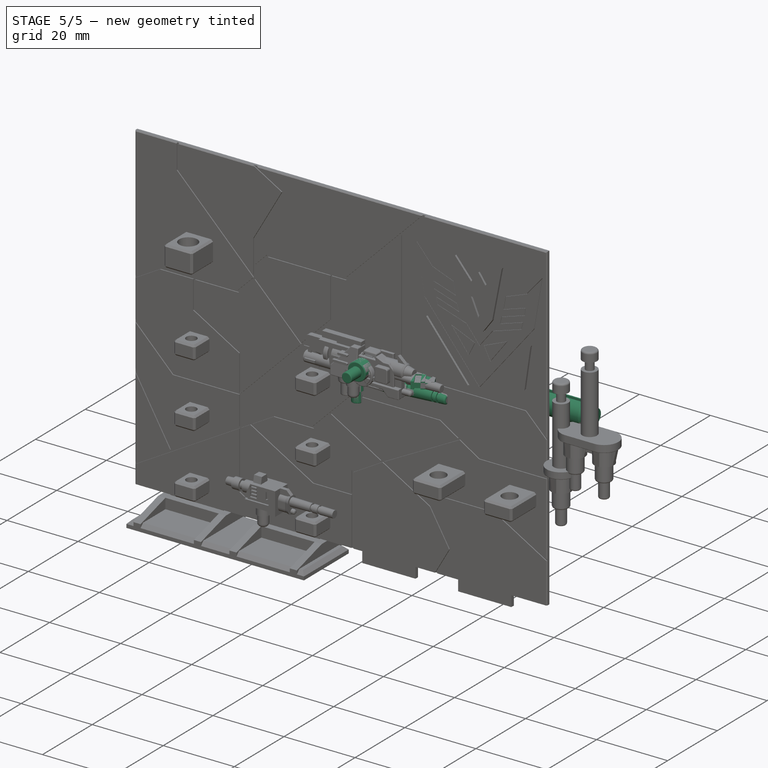
[diagram: stage 5 of 5 — iso view after this stage's code; geometry added in this stage tinted green]
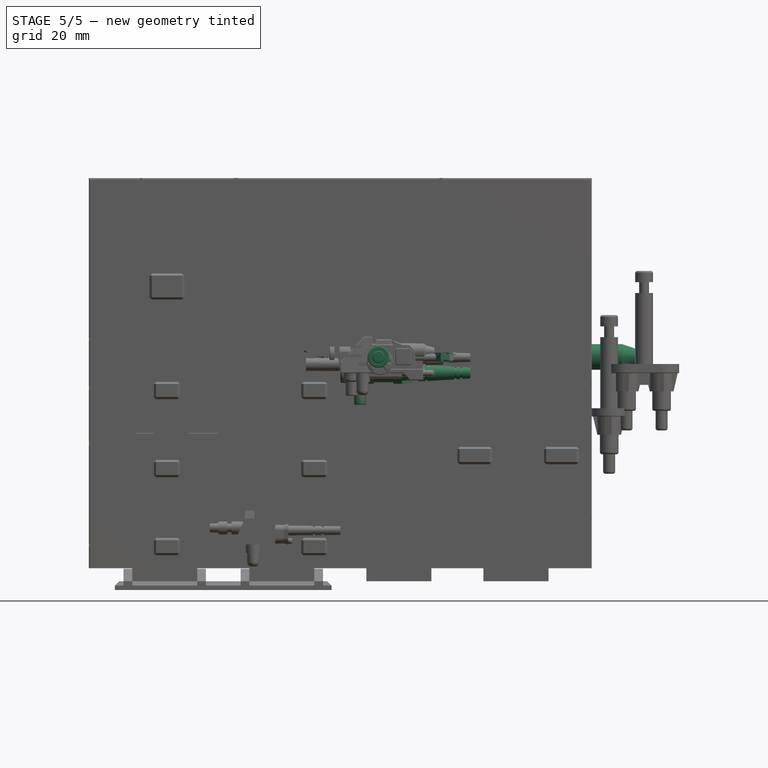
[diagram: stage 5 of 5 — front view after this stage's code; geometry added in this stage tinted green]
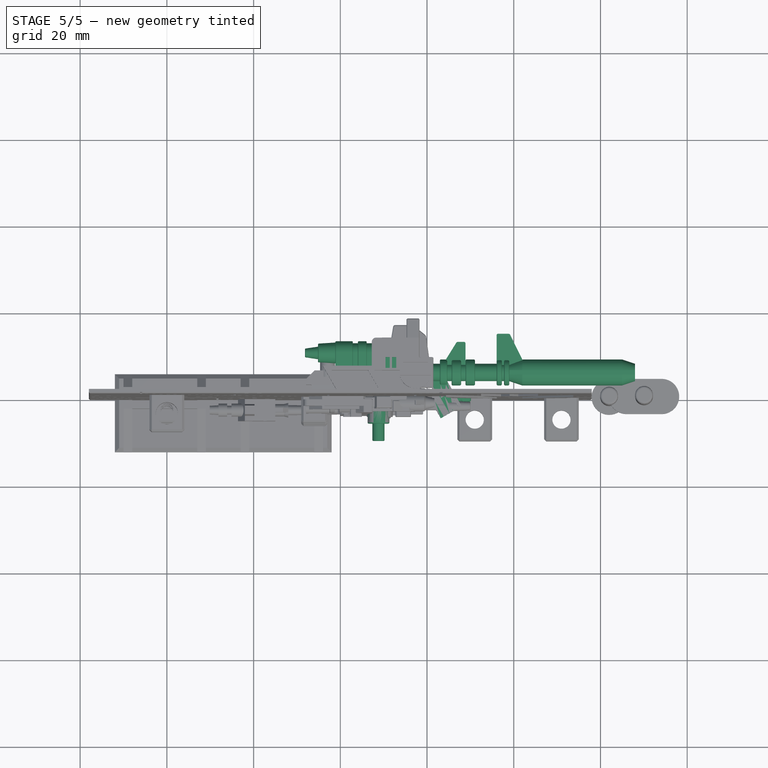
[diagram: stage 5 of 5 — top view after this stage's code; geometry added in this stage tinted green]
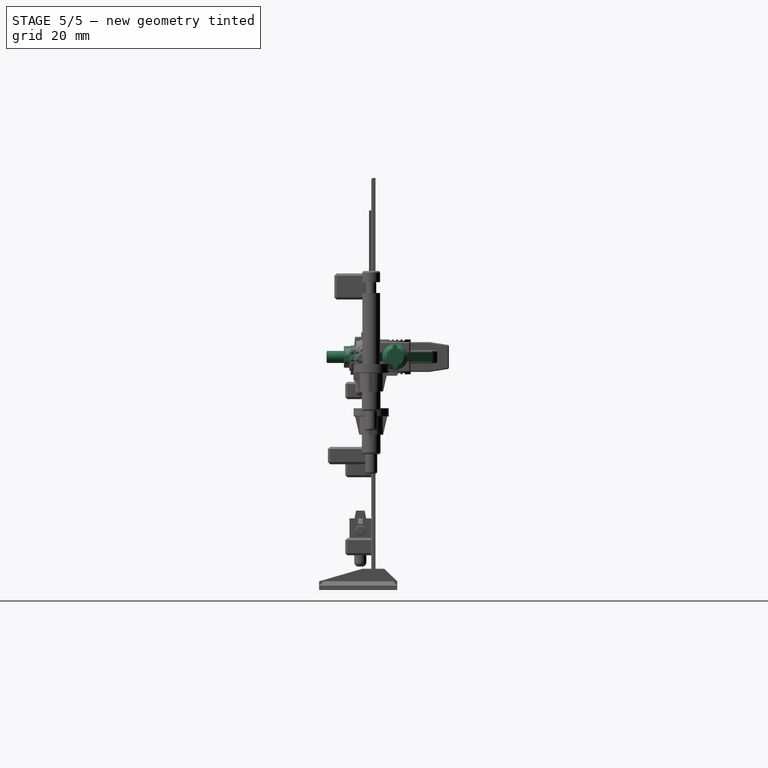
[diagram: stage 5 of 5 — right view after this stage's code; geometry added in this stage tinted green]
FEATURE [Sketcher::SketchObject] Sketch
  ArcFitTolerance = 1e-06
  AttachmentSupport = -> [YZ_Plane]
  FullyConstrained = true
  MakeInternals = false
  MapMode = 5
  Placement = pos=(0,0,0) rot=(0.57735,0.57735,0.57735;2.0944rad)
  sketch-geometry (1):
    g0: Circle CenterX=0 CenterY=0 CenterZ=0 NormalX=0 NormalY=0 NormalZ=1 AngleXU=0 Radius=2.25
  constraints (2):
    c: Coincident(g0,g-1)
    c: Diameter(g0) = 4.5
FEATURE [PartDesign::Pad] Pad
  Direction = (1,0,0)
  Length = 4.9
  Length2 = 10
  Placement = pos=(0,0,0) rot=(1,1,1;2.0944rad)
  Profile = -> Sketch
  ReferenceAxis = -> Sketch [N_Axis]
  Refine = true
  Suppressed = false
  Type = 0
FEATURE [Sketcher::SketchObject] Sketch001
  ArcFitTolerance = 1e-06
  AttachmentSupport = -> [Pad]
  FullyConstrained = true
  MakeInternals = false
  MapMode = 5
  Placement = pos=(4.9,0,0) rot=(0.57735,0.57735,0.57735;2.0944rad)
  sketch-geometry (1):
    g0: Circle CenterX=0 CenterY=0 CenterZ=0 NormalX=0 NormalY=0 NormalZ=1 AngleXU=0 Radius=2.45
  constraints (2):
    c: Coincident(g0,g-1)
    c: Diameter(g0) = 4.9
FEATURE [PartDesign::AdditiveLoft] AdditiveLoft
  BaseFeature = -> Pad
  Closed = false
  Placement = pos=(0,0,0) rot=(1,1,1;2.0944rad)
  Profile = -> Sketch001
  Refine = true
  Ruled = false
  Sections = -> [Pad]
  Suppressed = false
FEATURE [PartDesign::Fillet] Fillet
  Base = -> AdditiveLoft [Edge1]
  BaseFeature = -> AdditiveLoft
  Placement = pos=(0,0,0) rot=(1,1,1;2.0944rad)
  Radius = 0.5
  Refine = true
  SupportTransform = false
  Suppressed = false
  UseAllEdges = false
FEATURE [Sketcher::SketchObject] Sketch002
  ArcFitTolerance = 1e-06
  AttachmentSupport = -> [XZ_Plane]
  FullyConstrained = true
  MakeInternals = false
  MapMode = 5
  Placement = pos=(0,0,0) rot=(1,0,0;1.5708rad)
  sketch-geometry (4):
    g0: LineSegment StartX=4.2 StartY=2.5 StartZ=0 EndX=4 EndY=2.5 EndZ=0
    g1: LineSegment StartX=4 StartY=2.5 StartZ=0 EndX=4 EndY=2.3 EndZ=0
    g2: LineSegment StartX=4 StartY=2.3 StartZ=0 EndX=4.2 EndY=2.3 EndZ=0
    g3: LineSegment StartX=4.2 StartY=2.3 StartZ=0 EndX=4.2 EndY=2.5 EndZ=0
  constraints (12):
    c: Coincident(g0,g1)
    c: Coincident(g1,g2)
    c: Coincident(g2,g3)
    c: Coincident(g3,g0)
    c: Horizontal(g0)
    c: Horizontal(g2)
    c: Vertical(g1)
    c: Vertical(g3)
    c: DistanceX(g-1,g1) = 4
    c: DistanceX(g0,g0) = 0.2
    c: DistanceY(g3,g3) = 0.2
    c: DistanceY(g-1,g1) = 2.3
FEATURE [PartDesign::Groove] Groove
  Angle = 360
  Angle2 = 60
  Axis = (1,0,0)
  Base = (0,0,0)
  BaseFeature = -> Fillet
  Placement = pos=(0,0,0) rot=(1,1,1;2.0944rad)
  Profile = -> Sketch002
  ReferenceAxis = -> Sketch002 [H_Axis]
  Refine = true
  Reversed = true
  Suppressed = false
  Type = 0
FEATURE [Sketcher::SketchObject] Sketch003
  ArcFitTolerance = 1e-06
  AttachmentOffset = pos=(0,0,-1) rot=(0,0,1;0rad)
  AttachmentSupport = -> [Groove]
  FullyConstrained = true
  MakeInternals = false
  MapMode = 5
  Placement = pos=(1,0,0) rot=(0.57735,0.57735,-0.57735;4.18879rad)
  sketch-geometry (20):
    g0: LineSegment StartX=-1.5 StartY=1.5 StartZ=0 EndX=-1.32322 EndY=1.67678 EndZ=0
    g1: LineSegment StartX=-1.32322 StartY=1.67678 StartZ=0 EndX=-1.67678 EndY=2.03033 EndZ=0
    g2: LineSegment StartX=-1.67678 StartY=2.03033 StartZ=0 EndX=-2.03033 EndY=1.67678 EndZ=0
    g3: LineSegment StartX=-1.5 StartY=1.5 StartZ=0 EndX=-1.67678 EndY=1.32322 EndZ=0
    g4: LineSegment StartX=-1.67678 StartY=1.32322 StartZ=0 EndX=-2.03033 EndY=1.67678 EndZ=0
    g5: LineSegment StartX=-1.5 StartY=-1.5 StartZ=0 EndX=-1.67678 EndY=-1.32322 EndZ=0
    g6: LineSegment StartX=-1.67678 StartY=-1.32322 StartZ=0 EndX=-2.03033 EndY=-1.67678 EndZ=0
    g7: LineSegment StartX=-2.03033 StartY=-1.67678 StartZ=0 EndX=-1.67678 EndY=-2.03033 EndZ=0
    g8: LineSegment StartX=-1.67678 StartY=-2.03033 StartZ=0 EndX=-1.32322 EndY=-1.67678 EndZ=0
    g9: LineSegment StartX=-1.32322 StartY=-1.67678 StartZ=0 EndX=-1.5 EndY=-1.5 EndZ=0
    g10: LineSegment StartX=1.5 StartY=-1.5 StartZ=0 EndX=1.32322 EndY=-1.67678 EndZ=0
    g11: LineSegment StartX=1.32322 StartY=-1.67678 StartZ=0 EndX=1.67678 EndY=-2.03033 EndZ=0
    g12: LineSegment StartX=1.67678 StartY=-2.03033 StartZ=0 EndX=2.03033 EndY=-1.67678 EndZ=0
    g13: LineSegment StartX=2.03033 StartY=-1.67678 StartZ=0 EndX=1.67678 EndY=-1.32322 EndZ=0
    g14: LineSegment StartX=1.67678 StartY=-1.32322 StartZ=0 EndX=1.5 EndY=-1.5 EndZ=0
    g15: LineSegment StartX=1.5 StartY=1.5 StartZ=0 EndX=1.67678 EndY=1.32322 EndZ=0
    g16: LineSegment StartX=1.67678 StartY=1.32322 StartZ=0 EndX=2.03033 EndY=1.67678 EndZ=0
    g17: LineSegment StartX=2.03033 StartY=1.67678 StartZ=0 EndX=1.67678 EndY=2.03033 EndZ=0
    g18: LineSegment StartX=1.67678 StartY=2.03033 StartZ=0 EndX=1.32322 EndY=1.67678 EndZ=0
    g19: LineSegment StartX=1.32322 StartY=1.67678 StartZ=0 EndX=1.5 EndY=1.5 EndZ=0
  constraints (60):
    c: Coincident(g1,g0)
    c: Coincident(g2,g1)
    c: Coincident(g3,g0)
    c: Coincident(g4,g3)
    c: Coincident(g4,g2)
    c: Angle(g-1,g3) = 0.785398
    c: Angle(g0) = 0.785398
    c: Distance(g0) = 0.25
    c: Distance(g3) = 0.25
    c: Distance(g2) = 0.5
    c: Distance(g4) = 0.5
    c: Distance(g1) = 0.5
    c: Angle(g2,g1) = 1.5708
    c: DistanceY(g-1,g0) = 1.5
    c: DistanceX(g0,g-1) = 1.5
    c: Coincident(g6,g5)
    c: Coincident(g7,g6)
    c: Coincident(g8,g7)
    c: Coincident(g9,g8)
    c: Coincident(g9,g5)
    c: Coincident(g11,g10)
    c: Coincident(g12,g11)
    c: Coincident(g13,g12)
    c: Coincident(g14,g13)
    c: Coincident(g14,g10)
    c: Coincident(g16,g15)
    c: Coincident(g17,g16)
    c: Coincident(g18,g17)
    c: Coincident(g19,g18)
    c: Coincident(g19,g15)
    c: DistanceY(g-1,g15) = 1.5
    c: DistanceY(g10,g-1) = 1.5
    c: DistanceY(g5,g-1) = 1.5
    c: DistanceX(g5,g-1) = 1.5
    c: DistanceX(g-1,g15) = 1.5
    c: DistanceX(g-1,g10) = 1.5
    c: Distance(g18) = 0.5
    c: Distance(g17) = 0.5
    c: Distance(g16) = 0.5
    c: Distance(g19) = 0.25
    c: Distance(g15) = 0.25
    c: Distance(g14) = 0.25
    c: Distance(g10) = 0.25
    c: Distance(g9) = 0.25
    c: Distance(g5) = 0.25
    c: Distance(g6) = 0.5
    c: Distance(g7) = 0.5
    c: Distance(g8) = 0.5
    c: Distance(g11) = 0.5
    c: Distance(g12) = 0.5
    c: Distance(g13) = 0.5
    c: Angle(g12,g11) = 1.5708
    c: Angle(g8,g7) = 1.5708
    c: Angle(g17,g16) = 1.5708
    c: Angle(g15,g19) = 3.14159
    c: Angle(g14,g10) = 3.14159
    c: Angle(g5,g9) = 3.14159
    c: Angle(g9,g-1) = 0.785398
    c: Angle(g-1,g10) = 0.785398
    c: Angle(g-2,g19) = 0.785398
FEATURE [PartDesign::Pocket] Pocket
  BaseFeature = -> Groove
  Direction = (1,0,0)
  Length = 2
  Length2 = 5
  Placement = pos=(0,0,0) rot=(1,1,1;2.0944rad)
  Profile = -> Sketch003
  ReferenceAxis = -> Sketch003 [N_Axis]
  Refine = true
  Suppressed = false
  Type = 0
FEATURE [Sketcher::SketchObject] Sketch004
  ArcFitTolerance = 1e-06
  AttachmentSupport = -> [Pocket]
  FullyConstrained = true
  MakeInternals = false
  MapMode = 5
  Placement = pos=(4.9,0,0) rot=(0.57735,0.57735,0.57735;2.0944rad)
  sketch-geometry (1):
    g0: Circle CenterX=0 CenterY=0 CenterZ=0 NormalX=0 NormalY=0 NormalZ=1 AngleXU=0 Radius=2.1
  constraints (2):
    c: Coincident(g0,g-1)
    c: Diameter(g0) = 4.2
FEATURE [PartDesign::Pad] Pad001
  BaseFeature = -> Pocket
  Direction = (1,0,0)
  Length = 0.8
  Length2 = 10
  Placement = pos=(0,0,0) rot=(1,1,1;2.0944rad)
  Profile = -> Sketch004
  ReferenceAxis = -> Sketch004 [N_Axis]
  Refine = true
  Suppressed = false
  Type = 0
FEATURE [Sketcher::SketchObject] Sketch005
  ArcFitTolerance = 1e-06
  AttachmentSupport = -> [Pad001]
  ExternalGeometry = -> [Pad001]
  FullyConstrained = true
  MakeInternals = false
  MapMode = 5
  Placement = pos=(5.7,0,0) rot=(0.57735,0.57735,0.57735;2.0944rad)
  sketch-geometry (2):
    g0: Circle CenterX=0 CenterY=0 CenterZ=0 NormalX=0 NormalY=0 NormalZ=1 AngleXU=0 Radius=2.1
    g1: Circle CenterX=0 CenterY=0 CenterZ=0 NormalX=0 NormalY=0 NormalZ=1 AngleXU=0 Radius=2.45
  constraints (4):
    c: Coincident(g0,g-1)
    c: Diameter(g0) = 4.2
    c: Coincident(g1,g0)
    c: Radius(g1) = 2.45
FEATURE [PartDesign::Pad] Pad002
  BaseFeature = -> Pad001
  Direction = (1,0,5e-16)
  Length = 8.5
  Length2 = 10
  Placement = pos=(0,0,0) rot=(1,1,1;2.0944rad)
  Profile = -> Pad001 [Edge64]
  Refine = true
  Suppressed = false
  Type = 0
FEATURE [PartDesign::Pad] Pad003
  BaseFeature = -> Pad002
  Direction = (1,0,0)
  Length = 2
  Length2 = 10
  Placement = pos=(0,0,0) rot=(1,1,1;2.0944rad)
  Profile = -> Sketch005 [Edge2]
  ReferenceAxis = -> Sketch005 [N_Axis]
  Refine = true
  Suppressed = false
  Type = 0
FEATURE [Sketcher::SketchObject] Sketch006
  ArcFitTolerance = 1e-06
  AttachmentSupport = -> [Pad003]
  ExternalGeometry = -> [Pad003]
  FullyConstrained = true
  MakeInternals = false
  MapMode = 5
  Placement = pos=(7.7,0,0) rot=(0.57735,0.57735,0.57735;2.0944rad)
  sketch-geometry (8):
    g0: ArcOfCircle CenterX=-9.2e-15 CenterY=8.5e-15 CenterZ=0 NormalX=0 NormalY=0 NormalZ=1 AngleXU=0 Radius=2.1 StartAngle=5.78687 EndAngle=6.7795
    g1: ArcOfCircle CenterX=1.35e-14 CenterY=-3.6e-15 CenterZ=0 NormalX=0 NormalY=0 NormalZ=1 AngleXU=0 Radius=2.1 StartAngle=2.64528 EndAngle=3.63791
    g2: ArcOfCircle CenterX=-1.8e-15 CenterY=3e-16 CenterZ=0 NormalX=0 NormalY=0 NormalZ=1 AngleXU=0 Radius=2.45 StartAngle=5.77133 EndAngle=6.79504
    g3: LineSegment StartX=1.84662 StartY=-1 StartZ=0 EndX=2.136 EndY=-1.2 EndZ=0
    g4: LineSegment StartX=1.84662 StartY=1 StartZ=0 EndX=2.136 EndY=1.2 EndZ=0
    g5: ArcOfCircle CenterX=-1.5e-15 CenterY=7e-16 CenterZ=0 NormalX=0 NormalY=0 NormalZ=1 AngleXU=0 Radius=2.45 StartAngle=2.62974 EndAngle=3.65345
    g6: LineSegment StartX=-1.84662 StartY=-1 StartZ=0 EndX=-2.136 EndY=-1.2 EndZ=0
    g7: LineSegment StartX=-1.84662 StartY=1 StartZ=0 EndX=-2.136 EndY=1.2 EndZ=0
  constraints (24):
    c: Tangent(g0,g-3) = -1.5708
    c: PointOnObject(g0,g-3)
    c: Tangent(g1,g-3) = -1.5708
    c: PointOnObject(g1,g-3)
    c: Tangent(g2,g-4) = -1.5708
    c: PointOnObject(g2,g-4)
    c: Coincident(g3,g0)
    c: Coincident(g3,g2)
    c: Coincident(g4,g0)
    c: Coincident(g4,g2)
    c: DistanceY(g0,g0) = 1
    c: DistanceY(g0,g0) = 1
    c: DistanceY(g0,g2) = 1.2
    c: DistanceY(g2,g0) = 1.2
    c: Tangent(g5,g-4) = -1.5708
    c: PointOnObject(g5,g-4)
    c: DistanceY(g1,g0) = 1
    c: DistanceY(g0,g1) = 1
    c: DistanceY(g0,g5) = 1.2
    c: DistanceY(g5,g0) = 1.2
    c: Coincident(g6,g1)
    c: Coincident(g6,g5)
    c: Coincident(g7,g1)
    c: Coincident(g7,g5)
FEATURE [PartDesign::Pad] Pad004
  BaseFeature = -> Pad003
  Direction = (1,0,0)
  Length = 4.5
  Length2 = 10
  Placement = pos=(0,0,0) rot=(1,1,1;2.0944rad)
  Profile = -> Sketch006
  ReferenceAxis = -> Sketch006 [N_Axis]
  Refine = true
  Suppressed = false
  Type = 0
FEATURE [Sketcher::SketchObject] Sketch007
  ArcFitTolerance = 1e-06
  AttachmentSupport = -> [Pad004]
  FullyConstrained = true
  MakeInternals = false
  MapMode = 5
  Placement = pos=(14.2,0,7e-15) rot=(0.57735,0.57735,0.57735;2.0944rad)
  sketch-geometry (1):
    g0: Circle CenterX=0 CenterY=0 CenterZ=0 NormalX=0 NormalY=0 NormalZ=1 AngleXU=0 Radius=2.45
  constraints (2):
    c: Coincident(g0,g-1)
    c: Radius(g0) = 2.45
FEATURE [PartDesign::Pad] Pad005
  BaseFeature = -> Pad004
  Direction = (1,0,0)
  Length = 2
  Length2 = 10
  Placement = pos=(0,0,0) rot=(1,1,1;2.0944rad)
  Profile = -> Sketch007
  ReferenceAxis = -> Sketch007 [N_Axis]
  Refine = true
  Reversed = true
  Suppressed = false
  Type = 0
FEATURE [Sketcher::SketchObject] Sketch008
  ArcFitTolerance = 1e-06
  AttachmentSupport = -> [Pad005]
  FullyConstrained = true
  MakeInternals = false
  MapMode = 5
  Placement = pos=(14.2,0,0) rot=(0.57735,0.57735,0.57735;2.0944rad)
  sketch-geometry (1):
    g0: Circle CenterX=0 CenterY=0 CenterZ=0 NormalX=0 NormalY=0 NormalZ=1 AngleXU=0 Radius=1.75
  constraints (2):
    c: Coincident(g0,g-1)
    c: Diameter(g0) = 3.5
FEATURE [PartDesign::Pad] Pad006
  BaseFeature = -> Pad005
  Direction = (1,0,0)
  Length = 3.9
  Length2 = 10
  Placement = pos=(0,0,0) rot=(1,1,1;2.0944rad)
  Profile = -> Sketch008
  ReferenceAxis = -> Sketch008 [N_Axis]
  Refine = true
  Suppressed = false
  Type = 0
FEATURE [Sketcher::SketchObject] Sketch009
  ArcFitTolerance = 1e-06
  AttachmentSupport = -> [Pad006]
  FullyConstrained = true
  MakeInternals = false
  MapMode = 5
  Placement = pos=(18.1,0,0) rot=(0.57735,0.57735,0.57735;2.0944rad)
  sketch-geometry (1):
    g0: Circle CenterX=0 CenterY=0 CenterZ=0 NormalX=0 NormalY=0 NormalZ=1 AngleXU=0 Radius=1.95
  constraints (2):
    c: Coincident(g0,g-1)
    c: Diameter(g0) = 3.9
FEATURE [Sketcher::SketchObject] Sketch010
  ArcFitTolerance = 1e-06
  AttachmentOffset = pos=(0,0,12) rot=(0,0,1;0rad)
  AttachmentSupport = -> [Pad006]
  FullyConstrained = true
  MakeInternals = false
  MapMode = 5
  Placement = pos=(30.1,0,0) rot=(0.57735,0.57735,0.57735;2.0944rad)
  sketch-geometry (1):
    g0: Circle CenterX=0 CenterY=0 CenterZ=0 NormalX=0 NormalY=0 NormalZ=1 AngleXU=0 Radius=1.25
  constraints (2):
    c: Coincident(g0,g-1)
    c: Diameter(g0) = 2.5
FEATURE [PartDesign::AdditiveLoft] AdditiveLoft001
  BaseFeature = -> Pad006
  Closed = false
  Placement = pos=(0,0,0) rot=(1,1,1;2.0944rad)
  Profile = -> Sketch009
  Refine = true
  Ruled = false
  Sections = -> [Sketch010]
  Suppressed = false
FEATURE [PartDesign::Fillet] Fillet001
  Base = -> AdditiveLoft001 [Edge40]
  BaseFeature = -> AdditiveLoft001
  Placement = pos=(0,0,0) rot=(1,1,1;2.0944rad)
  Radius = 0.5
  Refine = true
  SupportTransform = false
  Suppressed = false
  UseAllEdges = false
FEATURE [Sketcher::SketchObject] Sketch011
  ArcFitTolerance = 1e-06
  AttachmentSupport = -> [XY_Plane]
  ExternalGeometry = -> [Fillet001]
  FullyConstrained = true
  MakeInternals = false
  MapMode = 5
  sketch-geometry (4):
    g0: LineSegment StartX=15 StartY=1.85 StartZ=0 EndX=15 EndY=1.65 EndZ=0
    g1: LineSegment StartX=15 StartY=1.65 StartZ=0 EndX=15.2 EndY=1.65 EndZ=0
    g2: LineSegment StartX=15.2 StartY=1.65 StartZ=0 EndX=15.2 EndY=1.85 EndZ=0
    g3: LineSegment StartX=15.2 StartY=1.85 StartZ=0 EndX=15 EndY=1.85 EndZ=0
  constraints (12):
    c: Coincident(g0,g1)
    c: Coincident(g1,g2)
    c: Coincident(g2,g3)
    c: Coincident(g3,g0)
    c: Vertical(g0)
    c: Vertical(g2)
    c: Horizontal(g1)
    c: Horizontal(g3)
    c: DistanceX(g1,g1) = 0.2
    c: DistanceY(g2,g2) = 0.2
    c: DistanceX(g-3,g0) = 0.8
    c: DistanceY(g2,g-3) = 0.6
FEATURE [PartDesign::Groove] Groove001
  Angle = 360
  Angle2 = 60
  Axis = (1,0,0)
  Base = (0,0,0)
  BaseFeature = -> Fillet001
  Placement = pos=(0,0,0) rot=(1,1,1;2.0944rad)
  Profile = -> Sketch011
  ReferenceAxis = -> Sketch011 [H_Axis]
  Refine = true
  Reversed = true
  Suppressed = false
  Type = 0
FEATURE [Sketcher::SketchObject] Sketch012
  ArcFitTolerance = 1e-06
  AttachmentSupport = -> [XZ_Plane]
  ExternalGeometry = -> [Groove001]
  FullyConstrained = true
  MakeInternals = false
  MapMode = 5
  Placement = pos=(0,0,0) rot=(1,0,0;1.5708rad)
  sketch-geometry (8):
    g0: LineSegment StartX=14.2 StartY=2.45 StartZ=0 EndX=18.1 EndY=1.95 EndZ=0
    g1: LineSegment StartX=18.1 StartY=1.95 StartZ=0 EndX=18.1 EndY=1.45 EndZ=0
    g2: LineSegment StartX=18.1 StartY=1.45 StartZ=0 EndX=14.2 EndY=1.45 EndZ=0
    g3: LineSegment StartX=14.2 StartY=2.45 StartZ=0 EndX=14.2 EndY=1.45 EndZ=0
    g4: LineSegment StartX=14.2 StartY=-2.45 StartZ=0 EndX=18.1 EndY=-1.95 EndZ=0
    g5: LineSegment StartX=18.1 StartY=-1.95 StartZ=0 EndX=18.1 EndY=-1.45 EndZ=0
    g6: LineSegment StartX=18.1 StartY=-1.45 StartZ=0 EndX=14.2 EndY=-1.45 EndZ=0
    g7: LineSegment StartX=14.2 StartY=-1.45 StartZ=0 EndX=14.2 EndY=-2.45 EndZ=0
  constraints (20):
    c: Coincident(g0,g-3)
    c: Coincident(g0,g-4)
    c: Coincident(g1,g0)
    c: PointOnObject(g1,g-4)
    c: Coincident(g2,g1)
    c: PointOnObject(g2,g-3)
    c: Horizontal(g2)
    c: Coincident(g3,g0)
    c: Coincident(g3,g2)
    c: DistanceY(g1,g1) = 0.5
    c: Coincident(g4,g-3)
    c: Coincident(g4,g-4)
    c: Coincident(g5,g4)
    c: PointOnObject(g5,g-4)
    c: Coincident(g6,g5)
    c: PointOnObject(g6,g-3)
    c: Horizontal(g6)
    c: Coincident(g7,g6)
    c: Coincident(g7,g4)
    c: DistanceY(g5,g5) = 0.5
FEATURE [PartDesign::Revolution] Revolution
  Angle = 10
  Angle2 = 60
  Axis = (1,0,0)
  Base = (0,0,0)
  BaseFeature = -> Groove001
  Placement = pos=(0,0,0) rot=(1,1,1;2.0944rad)
  Profile = -> Sketch012
  ReferenceAxis = -> Sketch012 [H_Axis]
  Refine = true
  Suppressed = false
  Type = 0
FEATURE [Sketcher::SketchObject] Sketch013
  ArcFitTolerance = 1e-06
  AttachmentSupport = -> [XY_Plane]
  ExternalGeometry = -> [Revolution]
  FullyConstrained = true
  MakeInternals = false
  MapMode = 5
  sketch-geometry (8):
    g0: LineSegment StartX=14.2 StartY=2.45 StartZ=0 EndX=18.1 EndY=1.95 EndZ=0
    g1: LineSegment StartX=18.1 StartY=1.95 StartZ=0 EndX=18.1 EndY=1.45 EndZ=0
    g2: LineSegment StartX=18.1 StartY=1.45 StartZ=0 EndX=14.2 EndY=1.45 EndZ=0
    g3: LineSegment StartX=14.2 StartY=1.45 StartZ=0 EndX=14.2 EndY=2.45 EndZ=0
    g4: LineSegment StartX=18.1 StartY=-1.95 StartZ=0 EndX=14.2 EndY=-2.45 EndZ=0
    g5: LineSegment StartX=18.1 StartY=-1.95 StartZ=0 EndX=18.1 EndY=-1.45 EndZ=0
    g6: LineSegment StartX=18.1 StartY=-1.45 StartZ=0 EndX=14.2 EndY=-1.45 EndZ=0
    g7: LineSegment StartX=14.2 StartY=-1.45 StartZ=0 EndX=14.2 EndY=-2.45 EndZ=0
  constraints (20):
    c: Coincident(g0,g-3)
    c: Coincident(g0,g-4)
    c: Coincident(g1,g0)
    c: PointOnObject(g1,g-4)
    c: Coincident(g2,g1)
    c: PointOnObject(g2,g-3)
    c: Horizontal(g2)
    c: Coincident(g3,g2)
    c: Coincident(g3,g0)
    c: DistanceY(g1,g1) = 0.5
    c: Coincident(g4,g-5)
    c: Coincident(g4,g-6)
    c: Coincident(g5,g4)
    c: PointOnObject(g5,g-5)
    c: Coincident(g6,g5)
    c: PointOnObject(g6,g-6)
    c: Horizontal(g6)
    c: Coincident(g7,g6)
    c: Coincident(g7,g4)
    c: DistanceY(g5,g5) = 0.5
FEATURE [PartDesign::Revolution] Revolution001
  Angle = 10
  Angle2 = 60
  Axis = (1,0,0)
  Base = (0,0,0)
  BaseFeature = -> Revolution
  Placement = pos=(0,0,0) rot=(1,1,1;2.0944rad)
  Profile = -> Sketch013
  ReferenceAxis = -> Sketch013 [H_Axis]
  Refine = true
  Suppressed = false
  Type = 0
FEATURE [PartDesign::Revolution] Revolution002
  Angle = 10
  Angle2 = 60
  Axis = (1,0,0)
  Base = (0,0,0)
  BaseFeature = -> Revolution001
  Placement = pos=(0,0,0) rot=(1,1,1;2.0944rad)
  Profile = -> Sketch012
  ReferenceAxis = -> Sketch012 [H_Axis]
  Refine = true
  Reversed = true
  Suppressed = false
  Type = 0
FEATURE [PartDesign::Revolution] Revolution003
  Angle = 10
  Angle2 = 60
  Axis = (1,0,0)
  Base = (0,0,0)
  BaseFeature = -> Revolution002
  Placement = pos=(0,0,0) rot=(1,1,1;2.0944rad)
  Profile = -> Sketch013
  ReferenceAxis = -> Sketch013 [H_Axis]
  Refine = true
  Reversed = true
  Suppressed = false
  Type = 0
FEATURE [Sketcher::SketchObject] Sketch014
  ArcFitTolerance = 1e-06
  AttachmentSupport = -> [Revolution003]
  ExternalGeometry = -> [Revolution003]
  FullyConstrained = false
  MakeInternals = false
  MapMode = 5
  Placement = pos=(18.1,0,0) rot=(0.57735,0.57735,-0.57735;4.18879rad)
  sketch-geometry (2):
    g0: Circle CenterX=0 CenterY=0 CenterZ=0 NormalX=0 NormalY=0 NormalZ=1 AngleXU=0 Radius=2.25
    g1: Circle CenterX=0 CenterY=0 CenterZ=0 NormalX=0 NormalY=0 NormalZ=1 AngleXU=0 Radius=1.75
  constraints (3):
    c: Coincident(g0,g-1)
    c: Diameter(g0) = 4.5
    c: Coincident(g1,g0)
FEATURE [PartDesign::Pocket] Pocket001
  BaseFeature = -> Revolution003
  Direction = (1,-1.3e-15,0)
  Length = 0.4
  Length2 = 5
  Placement = pos=(0,0,0) rot=(1,1,1;2.0944rad)
  Profile = -> Sketch014
  ReferenceAxis = -> Sketch014 [N_Axis]
  Refine = true
  Reversed = true
  Suppressed = false
  Type = 0
FEATURE [Sketcher::SketchObject] Sketch015
  ArcFitTolerance = 1e-06
  AttachmentSupport = -> [XZ_Plane]
  ExternalGeometry = -> [Pocket001]
  FullyConstrained = true
  MakeInternals = false
  MapMode = 5
  Placement = pos=(0,0,0) rot=(1,0,0;1.5708rad)
  sketch-geometry (12):
    g0: LineSegment StartX=19.6 StartY=2.12038 StartZ=0 EndX=19.6 EndY=1.62038 EndZ=0
    g1: LineSegment StartX=19.6 StartY=1.62038 StartZ=0 EndX=20.1 EndY=1.62038 EndZ=0
    g2: LineSegment StartX=20.1 StartY=1.62038 StartZ=0 EndX=20.1 EndY=2.12038 EndZ=0
    g3: LineSegment StartX=20.1 StartY=2.12038 StartZ=0 EndX=19.6 EndY=2.12038 EndZ=0
    g4: LineSegment StartX=26.3291 StartY=1.67747 StartZ=0 EndX=26.3291 EndY=1.17747 EndZ=0
    g5: LineSegment StartX=26.3291 StartY=1.17747 StartZ=0 EndX=26.8291 EndY=1.17747 EndZ=0
    g6: LineSegment StartX=26.8291 StartY=1.17747 StartZ=0 EndX=26.8291 EndY=1.67747 EndZ=0
    g7: LineSegment StartX=26.8291 StartY=1.67747 StartZ=0 EndX=26.3291 EndY=1.67747 EndZ=0
    g8: LineSegment StartX=27.6291 StartY=1.57747 StartZ=0 EndX=27.6291 EndY=1.07747 EndZ=0
    g9: LineSegment StartX=27.6291 StartY=1.07747 StartZ=0 EndX=28.1291 EndY=1.07747 EndZ=0
    g10: LineSegment StartX=28.1291 StartY=1.07747 StartZ=0 EndX=28.1291 EndY=1.57747 EndZ=0
    g11: LineSegment StartX=28.1291 StartY=1.57747 StartZ=0 EndX=27.6291 EndY=1.57747 EndZ=0
  constraints (36):
    c: Coincident(g0,g1)
    c: Coincident(g1,g2)
    c: Coincident(g2,g3)
    c: Coincident(g3,g0)
    c: Vertical(g0)
    c: Vertical(g2)
    c: Horizontal(g1)
    c: Horizontal(g3)
    c: Coincident(g4,g5)
    c: Coincident(g5,g6)
    c: Coincident(g6,g7)
    c: Coincident(g7,g4)
    c: Vertical(g4)
    c: Vertical(g6)
    c: Horizontal(g5)
    c: Horizontal(g7)
    c: Coincident(g8,g9)
    c: Coincident(g9,g10)
    c: Coincident(g10,g11)
    c: Coincident(g11,g8)
    c: Vertical(g8)
    c: Vertical(g10)
    c: Horizontal(g9)
    c: Horizontal(g11)
    c: DistanceX(g7,g7) = 0.5
    c: DistanceX(g11,g11) = 0.5
    c: DistanceX(g3,g3) = 0.5
    c: DistanceY(g2,g2) = 0.5
    c: DistanceY(g6,g6) = 0.5
    c: DistanceY(g10,g10) = 0.5
    c: DistanceX(g-3,g0) = 1.5
    c: DistanceX(g9,g-4) = 1.5
    c: DistanceX(g5,g8) = 0.8
    c: DistanceY(g9,g-4) = 0.2
    c: DistanceY(g8,g5) = 0.1
    c: DistanceY(g0,g-3) = 0.3
FEATURE [PartDesign::Groove] Groove002
  Angle = 360
  Angle2 = 60
  Axis = (1,0,0)
  Base = (0,0,0)
  BaseFeature = -> Pocket001
  Placement = pos=(0,0,0) rot=(1,1,1;2.0944rad)
  Profile = -> Sketch015
  ReferenceAxis = -> Sketch015 [H_Axis]
  Refine = true
  Reversed = true
  Suppressed = false
  Type = 0
FEATURE [Sketcher::SketchObject] Sketch016
  ArcFitTolerance = 1e-06
  AttachmentSupport = -> [XY_Plane]
  ExternalGeometry = -> [Groove002]
  FullyConstrained = false
  MakeInternals = false
  MapMode = 5
  sketch-geometry (5):
    g0: LineSegment StartX=4 StartY=0 StartZ=0 EndX=4 EndY=0.8 EndZ=0
    g1: LineSegment StartX=4 StartY=0.8 StartZ=0 EndX=5.5 EndY=0.8 EndZ=0
    g2: LineSegment StartX=5.5 StartY=0.8 StartZ=0 EndX=5.5 EndY=-0.8 EndZ=0
    g3: LineSegment StartX=5.5 StartY=-0.8 StartZ=0 EndX=4 EndY=-0.8 EndZ=0
    g4: LineSegment StartX=4 StartY=-0.8 StartZ=0 EndX=4 EndY=0 EndZ=0
  constraints (13):
    c: PointOnObject(g0,g-3)
    c: Coincident(g1,g0)
    c: Horizontal(g1)
    c: Coincident(g2,g1)
    c: Vertical(g2)
    c: Coincident(g3,g2)
    c: PointOnObject(g3,g-3)
    c: Horizontal(g3)
    c: Coincident(g4,g3)
    c: Coincident(g4,g0)
    c: DistanceY(g0,g0) = 0.8
    c: DistanceY(g4,g4) = 0.8
    c: DistanceX(g1,g1) = 1.5
FEATURE [PartDesign::Pad] Pad007
  BaseFeature = -> Groove002
  Direction = (0,0,1)
  Length = 5
  Length2 = 10
  Placement = pos=(0,0,0) rot=(1,1,1;2.0944rad)
  Profile = -> Sketch016
  ReferenceAxis = -> Sketch016 [N_Axis]
  Refine = true
  Suppressed = false
  Type = 0
FEATURE [Sketcher::SketchObject] Sketch017
  ArcFitTolerance = 1e-06
  AttachmentSupport = -> [Pad007]
  ExternalGeometry = -> [Pad007]
  FullyConstrained = true
  MakeInternals = false
  MapMode = 5
  Placement = pos=(4,0,0) rot=(0.57735,0.57735,-0.57735;4.18879rad)
  sketch-geometry (1):
    g0: Circle CenterX=0 CenterY=-5 CenterZ=0 NormalX=0 NormalY=0 NormalZ=1 AngleXU=0 Radius=1.45
  constraints (2):
    c: Symmetric(g-3,g-3,g0)
    c: Diameter(g0) = 2.9
FEATURE [PartDesign::Pad] Pad008
  BaseFeature = -> Pad007
  Direction = (-1,0,0)
  Length = 1.5
  Length2 = 10
  Placement = pos=(0,0,0) rot=(1,1,1;2.0944rad)
  Profile = -> Sketch017 [Edge1]
  ReferenceAxis = -> Sketch017 [N_Axis]
  Refine = true
  Suppressed = false
  Type = 0
FEATURE [PartDesign::Pad] Pad009
  BaseFeature = -> Pad008
  Direction = (-1,0,0)
  Length = 1.5
  Length2 = 10
  Placement = pos=(0,0,0) rot=(1,1,1;2.0944rad)
  Profile = -> Sketch017
  ReferenceAxis = -> Sketch017 [N_Axis]
  Refine = true
  Reversed = true
  Suppressed = false
  Type = 0
FEATURE [Sketcher::SketchObject] Sketch018
  ArcFitTolerance = 1e-06
  AttachmentSupport = -> [Pad009]
  ExternalGeometry = -> [Pad009]
  FullyConstrained = true
  MakeInternals = false
  MapMode = 5
  Placement = pos=(2.5,0,0) rot=(0.57735,0.57735,-0.57735;4.18879rad)
  sketch-geometry (1):
    g0: Circle CenterX=0 CenterY=-5 CenterZ=0 NormalX=0 NormalY=0 NormalZ=1 AngleXU=0 Radius=0.9
  constraints (2):
    c: Coincident(g0,g-3)
    c: Diameter(g0) = 1.8
FEATURE [PartDesign::Pad] Pad010
  BaseFeature = -> Pad009
  Direction = (-1,0,0)
  Length = 1
  Length2 = 10
  Placement = pos=(0,0,0) rot=(1,1,1;2.0944rad)
  Profile = -> Sketch018
  ReferenceAxis = -> Sketch018 [N_Axis]
  Refine = true
  Suppressed = false
  Type = 0
FEATURE [Sketcher::SketchObject] Sketch019
  ArcFitTolerance = 1e-06
  AttachmentSupport = -> [XY_Plane]
  ExternalGeometry = -> [Pad010]
  FullyConstrained = true
  MakeInternals = false
  MapMode = 5
  sketch-geometry (1):
    g0: Circle CenterX=4.55 CenterY=0 CenterZ=0 NormalX=0 NormalY=0 NormalZ=1 AngleXU=0 Radius=2
  constraints (3):
    c: PointOnObject(g0,g-1)
    c: DistanceX(g-4,g0) = 0.35
    c: Diameter(g0) = 4
FEATURE [PartDesign::Pad] Pad011
  BaseFeature = -> Pad010
  Direction = (0,0,1)
  Length = 4
  Length2 = 10
  Placement = pos=(0,0,0) rot=(1,1,1;2.0944rad)
  Profile = -> Sketch019
  ReferenceAxis = -> Sketch019 [N_Axis]
  Refine = true
  Reversed = true
  Suppressed = false
  Type = 0
FEATURE [Sketcher::SketchObject] Sketch020
  ArcFitTolerance = 1e-06
  AttachmentSupport = -> [Pad011]
  ExternalGeometry = -> [Pad011]
  FullyConstrained = true
  MakeInternals = false
  MapMode = 5
  Placement = pos=(0,0,-4) rot=(0.707107,0.707107,0;3.14159rad)
  sketch-geometry (1):
    g0: Circle CenterX=0 CenterY=4.55 CenterZ=0 NormalX=0 NormalY=0 NormalZ=1 AngleXU=0 Radius=1.4
  constraints (2):
    c: Coincident(g0,g-3)
    c: Diameter(g0) = 2.8
FEATURE [PartDesign::Pad] Pad012
  BaseFeature = -> Pad011
  Direction = (0,0,-1)
  Length = 3.25
  Length2 = 10
  Placement = pos=(0,0,0) rot=(1,1,1;2.0944rad)
  Profile = -> Sketch020
  ReferenceAxis = -> Sketch020 [N_Axis]
  Refine = true
  Suppressed = false
  Type = 0
FEATURE [PartDesign::Fillet] Fillet002
  Base = -> Pad012 [Edge282]
  BaseFeature = -> Pad012
  Placement = pos=(0,0,0) rot=(1,1,1;2.0944rad)
  Radius = 0.2
  Refine = true
  SupportTransform = false
  Suppressed = false
  UseAllEdges = false
FEATURE [Sketcher::SketchObject] Sketch021
  ArcFitTolerance = 1e-06
  AttachmentSupport = -> [XY_Plane]
  ExternalGeometry = -> [Fillet002]
  FullyConstrained = true
  MakeInternals = false
  MapMode = 5
  sketch-geometry (4):
    g0: LineSegment StartX=12.2 StartY=1.45 StartZ=0 EndX=12.2 EndY=-1.45 EndZ=0
    g1: LineSegment StartX=12.2 StartY=-1.45 StartZ=0 EndX=14.2 EndY=-1.45 EndZ=0
    g2: LineSegment StartX=14.2 StartY=-1.45 StartZ=0 EndX=14.2 EndY=1.45 EndZ=0
    g3: LineSegment StartX=14.2 StartY=1.45 StartZ=0 EndX=12.2 EndY=1.45 EndZ=0
  constraints (12):
    c: Coincident(g0,g1)
    c: Coincident(g1,g2)
    c: Coincident(g2,g3)
    c: Coincident(g3,g0)
    c: Vertical(g0)
    c: Vertical(g2)
    c: Horizontal(g1)
    c: Horizontal(g3)
    c: PointOnObject(g0,g-3)
    c: PointOnObject(g1,g-7)
    c: DistanceY(g1,g-6) = 1.45
    c: DistanceY(g-6,g2) = 1.45
FEATURE [PartDesign::Pad] Pad013
  BaseFeature = -> Fillet002
  Direction = (0,0,1)
  Length = 5
  Length2 = 10
  Placement = pos=(0,0,0) rot=(1,1,1;2.0944rad)
  Profile = -> Sketch021
  ReferenceAxis = -> Sketch021 [N_Axis]
  Refine = true
  Suppressed = false
  Type = 0
FEATURE [Sketcher::SketchObject] Sketch022
  ArcFitTolerance = 1e-06
  AttachmentSupport = -> [Pad013]
  ExternalGeometry = -> [Pad013]
  FullyConstrained = true
  MakeInternals = false
  MapMode = 5
  Placement = pos=(14.2,0,-1.189e-13) rot=(0.57735,0.57735,0.57735;2.0944rad)
  sketch-geometry (1):
    g0: Circle CenterX=0 CenterY=5 CenterZ=0 NormalX=0 NormalY=0 NormalZ=1 AngleXU=0 Radius=1.45
  constraints (2):
    c: Symmetric(g-3,g-3,g0)
    c: PointOnObject(g-3,g0)
FEATURE [PartDesign::Pad] Pad014
  BaseFeature = -> Pad013
  Direction = (1,1e-16,-8.1e-15)
  Length = 2
  Length2 = 10
  Placement = pos=(0,0,0) rot=(1,1,1;2.0944rad)
  Profile = -> Sketch022
  ReferenceAxis = -> Sketch022 [N_Axis]
  Refine = true
  Reversed = true
  Suppressed = false
  Type = 0
FEATURE [Sketcher::SketchObject] Sketch023
  ArcFitTolerance = 1e-06
  AttachmentSupport = -> [Pad014]
  ExternalGeometry = -> [Pad014]
  FullyConstrained = true
  MakeInternals = false
  MapMode = 5
  Placement = pos=(5.5,0,3e-15) rot=(0.57735,0.57735,0.57735;2.0944rad)
  sketch-geometry (1):
    g0: Circle CenterX=0 CenterY=5 CenterZ=0 NormalX=0 NormalY=0 NormalZ=1 AngleXU=0 Radius=0.9
  constraints (2):
    c: Coincident(g0,g-3)
    c: Diameter(g0) = 1.8
FEATURE [PartDesign::Pad] Pad015
  BaseFeature = -> Pad014
  Direction = (1,0,0)
  Length = 2.2
  Length2 = 10
  Placement = pos=(0,0,0) rot=(1,1,1;2.0944rad)
  Profile = -> Sketch023
  ReferenceAxis = -> Sketch023 [N_Axis]
  Refine = true
  Suppressed = false
  Type = 0
FEATURE [Sketcher::SketchObject] Sketch024
  ArcFitTolerance = 1e-06
  AttachmentSupport = -> [Pad015]
  ExternalGeometry = -> [Pad015]
  FullyConstrained = true
  MakeInternals = false
  MapMode = 5
  Placement = pos=(7.7,0,0) rot=(0.57735,0.57735,0.57735;2.0944rad)
  sketch-geometry (1):
    g0: Circle CenterX=0 CenterY=5 CenterZ=0 NormalX=0 NormalY=0 NormalZ=1 AngleXU=0 Radius=1.25
  constraints (2):
    c: Coincident(g0,g-3)
    c: Diameter(g0) = 2.5
FEATURE [PartDesign::Pad] Pad016
  BaseFeature = -> Pad015
  Direction = (1,0,0)
  Length = 7.5
  Length2 = 10
  Placement = pos=(0,0,0) rot=(1,1,1;2.0944rad)
  Profile = -> Sketch024
  ReferenceAxis = -> Sketch024 [N_Axis]
  Refine = true
  Suppressed = false
  Type = 0
FEATURE [Sketcher::SketchObject] Sketch025
  ArcFitTolerance = 1e-06
  AttachmentSupport = -> [Pad016]
  ExternalGeometry = -> [Pad016]
  FullyConstrained = true
  MakeInternals = false
  MapMode = 5
  Placement = pos=(15.2,0,0) rot=(0.57735,0.57735,0.57735;2.0944rad)
  sketch-geometry (1):
    g0: Circle CenterX=0 CenterY=5 CenterZ=0 NormalX=0 NormalY=0 NormalZ=1 AngleXU=0 Radius=0.9
  constraints (2):
    c: Coincident(g0,g-3)
    c: Diameter(g0) = 1.8
FEATURE [PartDesign::Pad] Pad017
  BaseFeature = -> Pad016
  Direction = (1,0,0)
  Length = 1
  Length2 = 10
  Placement = pos=(0,0,0) rot=(1,1,1;2.0944rad)
  Profile = -> Sketch025
  ReferenceAxis = -> Sketch025 [N_Axis]
  Refine = true
  Suppressed = false
  Type = 0
FEATURE [PartDesign::Fillet] Fillet003
  Base = -> Pad017 [Edge312,Edge314]
  BaseFeature = -> Pad017
  Placement = pos=(0,0,0) rot=(1,1,1;2.0944rad)
  Radius = 0.3
  Refine = true
  SupportTransform = false
  Suppressed = false
  UseAllEdges = false
FEATURE [PartDesign::Fillet] Fillet010
  Base = -> Fillet009 [Edge25,Edge11,Edge23,Edge42,Edge44,Edge45,Edge17,Edge13,Edge18,Edge12,Edge20,Edge4,Edge9,Edge8,Edge1,Edge2,Edge89,Edge91,Edge90,Edge92,Edge95,Edge94,Edge27,Edge39,Edge29,Edge26]
  BaseFeature = -> Fillet009
  Radius = 0.3
  Refine = true
  SupportTransform = false
  Suppressed = false
  UseAllEdges = false
FEATURE [Sketcher::SketchObject] Sketch192
  ArcFitTolerance = 1e-06
  AttachmentSupport = -> [Fillet010]
  ExternalGeometry = -> [Fillet010]
  FullyConstrained = true
  MakeInternals = false
  MapMode = 5
  Placement = pos=(0,0,7.75) rot=(0,0,1;0rad)
  sketch-geometry (16):
    g0: LineSegment StartX=14.4775 StartY=7.75 StartZ=0 EndX=20.1789 EndY=7.75 EndZ=0
    g1: LineSegment StartX=14.1413 StartY=7.25 StartZ=0 EndX=20.5151 EndY=7.25 EndZ=0
    g2: ArcOfCircle CenterX=17.3282 CenterY=5.47056 CenterZ=0 NormalX=0 NormalY=0 NormalZ=1 AngleXU=0 Radius=3.65 StartAngle=2.4671 EndAngle=2.63235
    g3: ArcOfCircle CenterX=17.3282 CenterY=5.47056 CenterZ=0 NormalX=0 NormalY=0 NormalZ=1 AngleXU=0 Radius=3.65 StartAngle=0.509244 EndAngle=0.674496
    g4: LineSegment StartX=13.9098 StartY=6.75 StartZ=0 EndX=20.7466 EndY=6.75 EndZ=0
    g5: LineSegment StartX=13.7624 StartY=6.25 StartZ=0 EndX=20.894 EndY=6.25 EndZ=0
    g6: LineSegment StartX=13.6889 StartY=5.75 StartZ=0 EndX=20.9675 EndY=5.75 EndZ=0
    g7: LineSegment StartX=13.6849 StartY=5.25 StartZ=0 EndX=20.9715 EndY=5.25 EndZ=0
    g8: LineSegment StartX=13.75 StartY=4.75 StartZ=0 EndX=20.9064 EndY=4.75 EndZ=0
    g9: LineSegment StartX=13.8883 StartY=4.25 StartZ=0 EndX=20.7681 EndY=4.25 EndZ=0
    g10: ArcOfCircle CenterX=17.3282 CenterY=5.47056 CenterZ=0 NormalX=0 NormalY=0 NormalZ=1 AngleXU=0 Radius=3.65 StartAngle=3.06496 EndAngle=3.20206
    g11: ArcOfCircle CenterX=17.3282 CenterY=5.47056 CenterZ=0 NormalX=0 NormalY=0 NormalZ=1 AngleXU=0 Radius=3.65 StartAngle=6.22272 EndAngle=6.35982
    g12: ArcOfCircle CenterX=17.3282 CenterY=5.47056 CenterZ=0 NormalX=0 NormalY=0 NormalZ=1 AngleXU=0 Radius=3.65 StartAngle=3.34031 EndAngle=3.48256
    g13: ArcOfCircle CenterX=17.3282 CenterY=5.47056 CenterZ=0 NormalX=0 NormalY=0 NormalZ=1 AngleXU=0 Radius=3.65 StartAngle=5.94222 EndAngle=6.08447
    g14: ArcOfCircle CenterX=17.3282 CenterY=5.47056 CenterZ=0 NormalX=0 NormalY=0 NormalZ=1 AngleXU=0 Radius=3.65 StartAngle=2.78345 EndAngle=2.92639
    g15: ArcOfCircle CenterX=17.3282 CenterY=5.47056 CenterZ=0 NormalX=0 NormalY=0 NormalZ=1 AngleXU=0 Radius=3.65 StartAngle=0.215202 EndAngle=0.358138
  constraints (56):
    c: PointOnObject(g0,g-3)
    c: PointOnObject(g0,g-3)
    c: Horizontal(g0)
    c: PointOnObject(g1,g-3)
    c: PointOnObject(g1,g-3)
    c: Horizontal(g1)
    c: Coincident(g2,g0)
    c: Coincident(g2,g1)
    c: Tangent(g2,g-3)
    c: Coincident(g3,g0)
    c: Coincident(g3,g1)
    c: Tangent(g3,g-3)
    c: PointOnObject(g4,g-3)
    c: PointOnObject(g4,g-3)
    c: Horizontal(g4)
    c: PointOnObject(g5,g-3)
    c: PointOnObject(g5,g-3)
    c: Horizontal(g5)
    c: PointOnObject(g6,g-3)
    c: PointOnObject(g6,g-3)
    c: Horizontal(g6)
    c: PointOnObject(g7,g-3)
    c: PointOnObject(g7,g-3)
    c: Horizontal(g7)
    c: PointOnObject(g8,g-3)
    c: PointOnObject(g8,g-3)
    c: Horizontal(g8)
    c: PointOnObject(g9,g-3)
    c: PointOnObject(g9,g-3)
    c: Horizontal(g9)
    c: Coincident(g10,g6)
    c: Coincident(g10,g7)
    c: Tangent(g10,g-3)
    c: Coincident(g11,g6)
    c: Coincident(g11,g7)
    c: Tangent(g11,g-3)
    c: Coincident(g12,g8)
    c: Coincident(g12,g9)
    c: Tangent(g12,g-3)
    c: Coincident(g13,g8)
    c: Coincident(g13,g9)
    c: Tangent(g13,g-3)
    c: Coincident(g14,g4)
    c: Coincident(g14,g5)
    c: Tangent(g14,g-3)
    c: Coincident(g15,g4)
    c: Coincident(g15,g5)
    c: Tangent(g15,g-3)
    c: DistanceY(g1,g0) = 0.5
    c: DistanceY(g5,g4) = 0.5
    c: DistanceY(g7,g6) = 0.5
    c: DistanceY(g9,g8) = 0.5
    c: DistanceY(g8,g7) = 0.5
    c: DistanceY(g6,g5) = 0.5
    c: DistanceY(g4,g1) = 0.5
    c: DistanceY(g-4,g5) = 0.25
FEATURE [PartDesign::Pocket] Pocket017
  BaseFeature = -> Fillet010
  Direction = (0,0,-1)
  Length = 0.3
  Length2 = 5
  Profile = -> Sketch192
  ReferenceAxis = -> Sketch192 [N_Axis]
  Refine = true
  Suppressed = false
  Type = 0
FEATURE [Sketcher::SketchObject] Sketch193
  ArcFitTolerance = 1e-06
  AttachmentSupport = -> [Pocket017]
  ExternalGeometry = -> [Pocket017]
  FullyConstrained = true
  MakeInternals = false
  MapMode = 5
  Placement = pos=(0,0,-0.25) rot=(1,0,0;3.14159rad)
  sketch-geometry (16):
    g0: LineSegment StartX=20.1789 StartY=-7.75 StartZ=0 EndX=14.4775 EndY=-7.75 EndZ=0
    g1: LineSegment StartX=14.1413 StartY=-7.25 StartZ=0 EndX=20.5151 EndY=-7.25 EndZ=0
    g2: LineSegment StartX=20.7466 StartY=-6.75 StartZ=0 EndX=13.9098 EndY=-6.75 EndZ=0
    g3: LineSegment StartX=13.7624 StartY=-6.25 StartZ=0 EndX=20.894 EndY=-6.25 EndZ=0
    g4: LineSegment StartX=13.6889 StartY=-5.75 StartZ=0 EndX=20.9675 EndY=-5.75 EndZ=0
    g5: LineSegment StartX=13.6849 StartY=-5.25 StartZ=0 EndX=20.9715 EndY=-5.25 EndZ=0
    g6: LineSegment StartX=20.9064 StartY=-4.75 StartZ=0 EndX=13.75 EndY=-4.75 EndZ=0
    g7: LineSegment StartX=13.8883 StartY=-4.25 StartZ=0 EndX=20.7681 EndY=-4.25 EndZ=0
    g8: ArcOfCircle CenterX=17.3282 CenterY=-5.47056 CenterZ=0 NormalX=0 NormalY=0 NormalZ=1 AngleXU=0 Radius=3.65 StartAngle=5.60869 EndAngle=5.77394
    g9: ArcOfCircle CenterX=17.3282 CenterY=-5.47056 CenterZ=0 NormalX=0 NormalY=0 NormalZ=1 AngleXU=0 Radius=3.65 StartAngle=3.65084 EndAngle=3.81609
    g10: ArcOfCircle CenterX=17.3282 CenterY=-5.47056 CenterZ=0 NormalX=0 NormalY=0 NormalZ=1 AngleXU=0 Radius=3.65 StartAngle=3.35679 EndAngle=3.49973
    g11: ArcOfCircle CenterX=17.3282 CenterY=-5.47056 CenterZ=0 NormalX=0 NormalY=0 NormalZ=1 AngleXU=0 Radius=3.65 StartAngle=5.92505 EndAngle=6.06798
    g12: ArcOfCircle CenterX=17.3282 CenterY=-5.47056 CenterZ=0 NormalX=0 NormalY=0 NormalZ=1 AngleXU=0 Radius=3.65003 StartAngle=6.20655 EndAngle=6.34365
    g13: ArcOfCircle CenterX=17.3282 CenterY=-5.47056 CenterZ=0 NormalX=0 NormalY=0 NormalZ=1 AngleXU=0 Radius=3.65003 StartAngle=3.08113 EndAngle=3.21823
    g14: ArcOfCircle CenterX=17.3282 CenterY=-5.47056 CenterZ=0 NormalX=0 NormalY=0 NormalZ=1 AngleXU=0 Radius=3.65 StartAngle=2.80062 EndAngle=2.94287
    g15: ArcOfCircle CenterX=17.3282 CenterY=-5.47056 CenterZ=0 NormalX=0 NormalY=0 NormalZ=1 AngleXU=0 Radius=3.65 StartAngle=0.198719 EndAngle=0.340969
  constraints (56):
    c: PointOnObject(g0,g-3)
    c: PointOnObject(g0,g-3)
    c: Horizontal(g0)
    c: PointOnObject(g1,g-3)
    c: PointOnObject(g1,g-3)
    c: Horizontal(g1)
    c: PointOnObject(g2,g-3)
    c: PointOnObject(g2,g-3)
    c: Horizontal(g2)
    c: PointOnObject(g3,g-3)
    c: PointOnObject(g3,g-3)
    c: Horizontal(g3)
    c: PointOnObject(g4,g-3)
    c: PointOnObject(g4,g-3)
    c: Horizontal(g4)
    c: PointOnObject(g5,g-3)
    c: PointOnObject(g5,g-3)
    c: Horizontal(g5)
    c: PointOnObject(g6,g-3)
    c: PointOnObject(g6,g-3)
    c: Horizontal(g6)
    c: PointOnObject(g7,g-3)
    c: PointOnObject(g7,g-3)
    c: Horizontal(g7)
    c: Coincident(g8,g0)
    c: Coincident(g8,g1)
    c: Tangent(g8,g-3)
    c: Coincident(g9,g0)
    c: Coincident(g9,g1)
    c: Tangent(g9,g-3)
    c: Coincident(g10,g2)
    c: Coincident(g10,g3)
    c: Tangent(g10,g-3)
    c: Coincident(g11,g2)
    c: Coincident(g11,g3)
    c: Tangent(g11,g-3)
    c: Coincident(g12,g4)
    c: Coincident(g12,g5)
    c: Tangent(g12,g-3)
    c: Coincident(g13,g4)
    c: Coincident(g13,g5)
    c: Tangent(g13,g-3)
    c: Coincident(g14,g6)
    c: Coincident(g14,g7)
    c: Tangent(g14,g-3)
    c: Coincident(g15,g6)
    c: Coincident(g15,g7)
    c: Tangent(g15,g-3)
    c: DistanceY(g0,g1) = 0.5
    c: DistanceY(g2,g3) = 0.5
    c: DistanceY(g4,g5) = 0.5
    c: DistanceY(g6,g7) = 0.5
    c: DistanceY(g5,g6) = 0.5
    c: DistanceY(g3,g4) = 0.5
    c: DistanceY(g1,g2) = 0.5
    c: DistanceY(g-4,g4) = 0.25
FEATURE [PartDesign::Pocket] Pocket018
  BaseFeature = -> Pocket017
  Direction = (0,0,1)
  Length = 0.3
  Length2 = 5
  Profile = -> Sketch193
  ReferenceAxis = -> Sketch193 [N_Axis]
  Refine = true
  Suppressed = false
  Type = 0
FEATURE [Sketcher::SketchObject] Sketch194
  ArcFitTolerance = 1e-06
  AttachmentSupport = -> [Pocket018]
  ExternalGeometry = -> [Pocket018]
  FullyConstrained = true
  MakeInternals = false
  MapMode = 5
  Placement = pos=(0,0,0.3) rot=(1,0,0;3.14159rad)
  sketch-geometry (8):
    g0: LineSegment StartX=17.9585 StartY=-11.5 StartZ=0 EndX=17.9585 EndY=-10.8 EndZ=0
    g1: LineSegment StartX=17.9585 StartY=-10.8 StartZ=0 EndX=9.65855 EndY=-10.8 EndZ=0
    g2: LineSegment StartX=9.65855 StartY=-10.8 StartZ=0 EndX=9.65855 EndY=-11.5 EndZ=0
    g3: LineSegment StartX=9.65855 StartY=-11.5 StartZ=0 EndX=17.9585 EndY=-11.5 EndZ=0
    g4: LineSegment StartX=17.9585 StartY=-10.1 StartZ=0 EndX=17.9585 EndY=-9.4 EndZ=0
    g5: LineSegment StartX=17.9585 StartY=-9.4 StartZ=0 EndX=9.65855 EndY=-9.4 EndZ=0
    g6: LineSegment StartX=9.65855 StartY=-9.4 StartZ=0 EndX=9.65855 EndY=-10.1 EndZ=0
    g7: LineSegment StartX=9.65855 StartY=-10.1 StartZ=0 EndX=17.9585 EndY=-10.1 EndZ=0
  constraints (24):
    c: Coincident(g0,g1)
    c: Coincident(g1,g2)
    c: Coincident(g2,g3)
    c: Coincident(g3,g0)
    c: Vertical(g0)
    c: Vertical(g2)
    c: Horizontal(g1)
    c: Horizontal(g3)
    c: PointOnObject(g0,g-4)
    c: PointOnObject(g1,g-3)
    c: Coincident(g4,g5)
    c: Coincident(g5,g6)
    c: Coincident(g6,g7)
    c: Coincident(g7,g4)
    c: Vertical(g4)
    c: Vertical(g6)
    c: Horizontal(g5)
    c: Horizontal(g7)
    c: PointOnObject(g4,g-4)
    c: PointOnObject(g5,g-3)
    c: DistanceY(g0,g0) = 0.7
    c: DistanceY(g4,g4) = 0.7
    c: DistanceY(g0,g4) = 0.7
    c: DistanceY(g-3,g2) = 2
FEATURE [PartDesign::Pocket] Pocket019
  BaseFeature = -> Pocket018
  Direction = (0,0,1)
  Length = 0.3
  Length2 = 5
  Profile = -> Sketch194
  ReferenceAxis = -> Sketch194 [N_Axis]
  Refine = true
  Suppressed = false
  Type = 0
FEATURE [Sketcher::SketchObject] Sketch195
  ArcFitTolerance = 1e-06
  AttachmentSupport = -> [Pocket019]
  ExternalGeometry = -> [Pocket019]
  FullyConstrained = true
  MakeInternals = false
  MapMode = 5
  Placement = pos=(0,0,7.2) rot=(0,0,1;0rad)
  sketch-geometry (8):
    g0: LineSegment StartX=9.65855 StartY=11.5 StartZ=0 EndX=9.65855 EndY=10.8 EndZ=0
    g1: LineSegment StartX=9.65855 StartY=10.8 StartZ=0 EndX=17.9585 EndY=10.8 EndZ=0
    g2: LineSegment StartX=17.9585 StartY=10.8 StartZ=0 EndX=17.9585 EndY=11.5 EndZ=0
    g3: LineSegment StartX=17.9585 StartY=11.5 StartZ=0 EndX=9.65855 EndY=11.5 EndZ=0
    g4: LineSegment StartX=9.65855 StartY=10.1 StartZ=0 EndX=9.65855 EndY=9.4 EndZ=0
    g5: LineSegment StartX=9.65855 StartY=9.4 StartZ=0 EndX=17.9585 EndY=9.4 EndZ=0
    g6: LineSegment StartX=17.9585 StartY=9.4 StartZ=0 EndX=17.9585 EndY=10.1 EndZ=0
    g7: LineSegment StartX=17.9585 StartY=10.1 StartZ=0 EndX=9.65855 EndY=10.1 EndZ=0
  constraints (24):
    c: Coincident(g0,g1)
    c: Coincident(g1,g2)
    c: Coincident(g2,g3)
    c: Coincident(g3,g0)
    c: Vertical(g0)
    c: Vertical(g2)
    c: Horizontal(g1)
    c: Horizontal(g3)
    c: PointOnObject(g0,g-4)
    c: Coincident(g4,g5)
    c: Coincident(g5,g6)
    c: Coincident(g6,g7)
    c: Coincident(g7,g4)
    c: Vertical(g4)
    c: Vertical(g6)
    c: Horizontal(g5)
    c: Horizontal(g7)
    c: PointOnObject(g4,g-4)
    c: DistanceY(g0,g0) = 0.7
    c: DistanceY(g4,g0) = 0.7
    c: DistanceY(g4,g4) = 0.7
    c: PointOnObject(g6,g-3)
    c: PointOnObject(g1,g-3)
    c: DistanceY(g2,g-3) = 2
FEATURE [PartDesign::Pocket] Pocket020
  BaseFeature = -> Pocket019
  Direction = (0,0,-1)
  Length = 0.3
  Length2 = 5
  Profile = -> Sketch195
  ReferenceAxis = -> Sketch195 [N_Axis]
  Refine = true
  Suppressed = false
  Type = 0
FEATURE [Sketcher::SketchObject] Sketch196
  ArcFitTolerance = 1e-06
  AttachmentSupport = -> [Pocket020]
  ExternalGeometry = -> [Pocket020]
  FullyConstrained = true
  MakeInternals = false
  MapMode = 5
  Placement = pos=(0,0,0.3) rot=(1,0,0;3.14159rad)
  sketch-geometry (8):
    g0: LineSegment StartX=12.9668 StartY=-9 StartZ=0 EndX=12.9668 EndY=-6.5 EndZ=0
    g1: LineSegment StartX=12.9668 StartY=-6.5 StartZ=0 EndX=11.9668 EndY=-6.5 EndZ=0
    g2: LineSegment StartX=11.9668 StartY=-6.5 StartZ=0 EndX=11.9668 EndY=-9 EndZ=0
    g3: LineSegment StartX=11.9668 StartY=-9 StartZ=0 EndX=12.9668 EndY=-9 EndZ=0
    g4: LineSegment StartX=11.4668 StartY=-9 StartZ=0 EndX=11.4668 EndY=-6.5 EndZ=0
    g5: LineSegment StartX=11.4668 StartY=-6.5 StartZ=0 EndX=10.4668 EndY=-6.5 EndZ=0
    g6: LineSegment StartX=10.4668 StartY=-6.5 StartZ=0 EndX=10.4668 EndY=-9 EndZ=0
    g7: LineSegment StartX=10.4668 StartY=-9 StartZ=0 EndX=11.4668 EndY=-9 EndZ=0
  constraints (25):
    c: Coincident(g0,g1)
    c: Coincident(g1,g2)
    c: Coincident(g2,g3)
    c: Coincident(g3,g0)
    c: Vertical(g0)
    c: Vertical(g2)
    c: Horizontal(g1)
    c: Horizontal(g3)
    c: Coincident(g4,g5)
    c: Coincident(g5,g6)
    c: Coincident(g6,g7)
    c: Coincident(g7,g4)
    c: Vertical(g4)
    c: Vertical(g6)
    c: Horizontal(g5)
    c: Horizontal(g7)
    c: DistanceX(g3,g3) = 1
    c: DistanceX(g7,g7) = 1
    c: DistanceX(g4,g2) = 0.5
    c: DistanceY(g1,g-4) = 0.5
    c: DistanceY(g5,g-4) = 0.5
    c: DistanceY(g0,g0) = 2.5
    c: DistanceY(g4,g4) = 2.5
    c: DistanceX(g-4,g-4) = 4.05825
    c: DistanceX(g0,g-4) = 0.75
FEATURE [PartDesign::Pocket] Pocket021
  BaseFeature = -> Pocket020
  Direction = (0,0,1)
  Length = 1
  Length2 = 5
  Profile = -> Sketch196
  ReferenceAxis = -> Sketch196 [N_Axis]
  Refine = true
  Suppressed = false
  Type = 0
FEATURE [Sketcher::SketchObject] Sketch197
  ArcFitTolerance = 1e-06
  AttachmentSupport = -> [Pocket021]
  ExternalGeometry = -> [Pocket021]
  FullyConstrained = true
  MakeInternals = false
  MapMode = 5
  Placement = pos=(0,0,7.2) rot=(0,0,1;0rad)
  sketch-geometry (8):
    g0: LineSegment StartX=10.4085 StartY=9 StartZ=0 EndX=10.4085 EndY=6.5 EndZ=0
    g1: LineSegment StartX=10.4085 StartY=6.5 StartZ=0 EndX=11.4085 EndY=6.5 EndZ=0
    g2: LineSegment StartX=11.4085 StartY=6.5 StartZ=0 EndX=11.4085 EndY=9 EndZ=0
    g3: LineSegment StartX=11.4085 StartY=9 StartZ=0 EndX=10.4085 EndY=9 EndZ=0
    g4: LineSegment StartX=11.9085 StartY=9 StartZ=0 EndX=11.9085 EndY=6.5 EndZ=0
    g5: LineSegment StartX=11.9085 StartY=6.5 StartZ=0 EndX=12.9085 EndY=6.5 EndZ=0
    g6: LineSegment StartX=12.9085 StartY=6.5 StartZ=0 EndX=12.9085 EndY=9 EndZ=0
    g7: LineSegment StartX=12.9085 StartY=9 StartZ=0 EndX=11.9085 EndY=9 EndZ=0
  constraints (24):
    c: Coincident(g0,g1)
    c: Coincident(g1,g2)
    c: Coincident(g2,g3)
    c: Coincident(g3,g0)
    c: Vertical(g0)
    c: Vertical(g2)
    c: Horizontal(g1)
    c: Horizontal(g3)
    c: Coincident(g4,g5)
    c: Coincident(g5,g6)
    c: Coincident(g6,g7)
    c: Coincident(g7,g4)
    c: Vertical(g4)
    c: Vertical(g6)
    c: Horizontal(g5)
    c: Horizontal(g7)
    c: DistanceY(g0,g0) = 2.5
    c: DistanceY(g4,g4) = 2.5
    c: DistanceX(g3,g3) = 1
    c: DistanceX(g7,g7) = 1
    c: DistanceX(g2,g4) = 0.5
    c: DistanceY(g-3,g5) = 0.5
    c: DistanceY(g-3,g0) = 0.5
    c: DistanceX(g-3,g0) = 0.75
FEATURE [PartDesign::Pocket] Pocket022
  BaseFeature = -> Pocket021
  Direction = (0,0,-1)
  Length = 1
  Length2 = 5
  Profile = -> Sketch197
  ReferenceAxis = -> Sketch197 [N_Axis]
  Refine = true
  Suppressed = false
  Type = 0
FEATURE [Sketcher::SketchObject] Sketch198
  ArcFitTolerance = 1e-06
  AttachmentSupport = -> [Pocket022]
  ExternalGeometry = -> [Pocket022]
  FullyConstrained = true
  MakeInternals = false
  MapMode = 5
  Placement = pos=(7.25855,0,0) rot=(0.57735,-0.57735,-0.57735;2.0944rad)
  sketch-geometry (4):
    g0: LineSegment StartX=-7 StartY=6 StartZ=0 EndX=-7 EndY=1.5 EndZ=0
    g1: LineSegment StartX=-7 StartY=6 StartZ=0 EndX=-10 EndY=6 EndZ=0
    g2: LineSegment StartX=-7 StartY=1.5 StartZ=0 EndX=-10 EndY=1.5 EndZ=0
    g3: ArcOfCircle CenterX=-10 CenterY=3.75 CenterZ=0 NormalX=0 NormalY=0 NormalZ=1 AngleXU=0 Radius=2.25 StartAngle=1.5708 EndAngle=4.71239
  constraints (14):
    c: PointOnObject(g0,g-3)
    c: Vertical(g0)
    c: Coincident(g1,g0)
    c: Horizontal(g1)
    c: Coincident(g2,g0)
    c: Horizontal(g2)
    c: Coincident(g3,g2)
    c: Coincident(g3,g1)
    c: Diameter(g3) = 4.5
    c: DistanceY(g-3,g-3) = 5.9
    c: DistanceY(g3,g-4) = 2.95
    c: DistanceX(g2,g3) = 0
    c: DistanceX(g1,g3) = 0
    c: DistanceX(g-6,g3) = 2.5
FEATURE [PartDesign::Pad] Pad140
  BaseFeature = -> Pocket022
  Direction = (-1,0,0)
  Length = 1.2
  Length2 = 10
  Profile = -> Sketch198
  ReferenceAxis = -> Sketch198 [N_Axis]
  Refine = true
  Suppressed = false
  Type = 0
FEATURE [Sketcher::SketchObject] Sketch199
  ArcFitTolerance = 1e-06
  AttachmentSupport = -> [Pad140]
  ExternalGeometry = -> [Pad140]
  FullyConstrained = true
  MakeInternals = false
  MapMode = 5
  Placement = pos=(6.05855,0,0) rot=(0.57735,-0.57735,-0.57735;2.0944rad)
  sketch-geometry (4):
    g0: LineSegment StartX=-7 StartY=1.05 StartZ=0 EndX=-7 EndY=6.45 EndZ=0
    g1: LineSegment StartX=-7 StartY=1.05 StartZ=0 EndX=-10 EndY=1.05 EndZ=0
    g2: LineSegment StartX=-7 StartY=6.45 StartZ=0 EndX=-10 EndY=6.45 EndZ=0
    g3: ArcOfCircle CenterX=-10 CenterY=3.75 CenterZ=0 NormalX=0 NormalY=0 NormalZ=1 AngleXU=0 Radius=2.7 StartAngle=1.5708 EndAngle=4.71239
  constraints (12):
    c: Vertical(g0)
    c: Coincident(g1,g0)
    c: Horizontal(g1)
    c: Coincident(g2,g0)
    c: Horizontal(g2)
    c: Coincident(g3,g2)
    c: Coincident(g3,g1)
    c: Coincident(g-5,g3)
    c: DistanceX(g2,g3) = 0
    c: DistanceX(g1,g3) = 0
    c: Radius(g3) = 2.7
    c: PointOnObject(g-4,g0)
FEATURE [PartDesign::Pad] Pad141
  BaseFeature = -> Pad140
  Direction = (-1,0,0)
  Length = 2
  Length2 = 10
  Profile = -> Sketch199
  ReferenceAxis = -> Sketch199 [N_Axis]
  Refine = true
  Suppressed = false
  Type = 0
FEATURE [Sketcher::SketchObject] Sketch200
  ArcFitTolerance = 1e-06
  AttachmentSupport = -> [Pad141]
  ExternalGeometry = -> [Pad141]
  FullyConstrained = true
  MakeInternals = false
  MapMode = 5
  Placement = pos=(4.05855,0,0) rot=(0.57735,-0.57735,-0.57735;2.0944rad)
  sketch-geometry (4):
    g0: ArcOfCircle CenterX=-10 CenterY=3.75 CenterZ=0 NormalX=0 NormalY=0 NormalZ=1 AngleXU=0 Radius=2.25 StartAngle=1.5708 EndAngle=4.71239
    g1: LineSegment StartX=-10 StartY=6 StartZ=0 EndX=-7 EndY=6 EndZ=0
    g2: LineSegment StartX=-10 StartY=1.5 StartZ=0 EndX=-7 EndY=1.5 EndZ=0
    g3: LineSegment StartX=-7 StartY=1.5 StartZ=0 EndX=-7 EndY=6 EndZ=0
  constraints (13):
    c: PointOnObject(g1,g-5)
    c: Horizontal(g1)
    c: Coincident(g2,g0)
    c: PointOnObject(g2,g-5)
    c: Horizontal(g2)
    c: Coincident(g3,g2)
    c: Coincident(g3,g1)
    c: Diameter(g0) = 4.5
    c: DistanceX(g0,g0) = 0
    c: DistanceX(g0,g0) = 0
    c: DistanceX(g-6,g0) = 2.5
    c: DistanceY(g0,g-7) = 2.95
    c: Coincident(g1,g0)
FEATURE [PartDesign::Pad] Pad142
  BaseFeature = -> Pad141
  Direction = (-1,0,0)
  Length = 1.2
  Length2 = 10
  Profile = -> Sketch200
  ReferenceAxis = -> Sketch200 [N_Axis]
  Refine = true
  Suppressed = false
  Type = 0
FEATURE [Sketcher::SketchObject] Sketch201
  ArcFitTolerance = 1e-06
  AttachmentSupport = -> [Pad142]
  ExternalGeometry = -> [Pad142]
  FullyConstrained = true
  MakeInternals = false
  MapMode = 5
  Placement = pos=(2.85855,0,0) rot=(0.57735,-0.57735,-0.57735;2.0944rad)
  sketch-geometry (4):
    g0: ArcOfCircle CenterX=-10 CenterY=3.75 CenterZ=0 NormalX=0 NormalY=0 NormalZ=1 AngleXU=0 Radius=2.7 StartAngle=1.5708 EndAngle=4.71239
    g1: LineSegment StartX=-10 StartY=1.05 StartZ=0 EndX=-7 EndY=1.05 EndZ=0
    g2: LineSegment StartX=-10 StartY=6.45 StartZ=0 EndX=-7 EndY=6.45 EndZ=0
    g3: LineSegment StartX=-7 StartY=6.45 StartZ=0 EndX=-7 EndY=1.05 EndZ=0
  constraints (8):
    c: Tangent(g0,g-8) = -1.5708
    c: Coincident(g0,g-9)
    c: Coincident(g1,g0)
    c: Coincident(g1,g-9)
    c: Coincident(g2,g-8)
    c: Coincident(g2,g-7)
    c: Coincident(g3,g2)
    c: Coincident(g3,g1)
FEATURE [PartDesign::Pad] Pad143
  BaseFeature = -> Pad142
  Direction = (-1,0,0)
  Length = 4
  Length2 = 10
  Profile = -> Sketch201
  ReferenceAxis = -> Sketch201 [N_Axis]
  Refine = true
  Suppressed = false
  Type = 0
FEATURE [Sketcher::SketchObject] Sketch202
  ArcFitTolerance = 1e-06
  AttachmentSupport = -> [Pad143]
  ExternalGeometry = -> [Pad143]
  FullyConstrained = true
  MakeInternals = false
  MapMode = 5
  Placement = pos=(-1.14145,0,0) rot=(0.57735,-0.57735,-0.57735;2.0944rad)
  sketch-geometry (1):
    g0: Circle CenterX=-10 CenterY=3.75 CenterZ=0 NormalX=0 NormalY=0 NormalZ=1 AngleXU=0 Radius=2.4
  constraints (2):
    c: Coincident(g0,g-3)
    c: Diameter(g0) = 4.8
FEATURE [Sketcher::SketchObject] Sketch203
  ArcFitTolerance = 1e-06
  AttachmentOffset = pos=(0,0,4) rot=(0,0,1;0rad)
  AttachmentSupport = -> [Pad143]
  ExternalGeometry = -> [Pad143]
  FullyConstrained = true
  MakeInternals = false
  MapMode = 5
  Placement = pos=(-5.14145,0,0) rot=(0.57735,-0.57735,-0.57735;2.0944rad)
  sketch-geometry (1):
    g0: Circle CenterX=-10 CenterY=3.75 CenterZ=0 NormalX=0 NormalY=0 NormalZ=1 AngleXU=0 Radius=2.15
  constraints (2):
    c: Coincident(g0,g-3)
    c: Diameter(g0) = 4.3
FEATURE [PartDesign::AdditiveLoft] AdditiveLoft003
  BaseFeature = -> Pad143
  Closed = false
  Profile = -> Sketch202
  Refine = true
  Ruled = false
  Sections = -> [Sketch203]
  Suppressed = false
FEATURE [Sketcher::SketchObject] Sketch204
  ArcFitTolerance = 1e-06
  AttachmentSupport = -> [AdditiveLoft003]
  ExternalGeometry = -> [AdditiveLoft003]
  FullyConstrained = true
  MakeInternals = false
  MapMode = 5
  Placement = pos=(-5.14145,0,0) rot=(0.57735,-0.57735,-0.57735;2.0944rad)
  sketch-geometry (1):
    g0: Circle CenterX=-10 CenterY=3.75 CenterZ=0 NormalX=0 NormalY=0 NormalZ=1 AngleXU=0 Radius=1.45
  constraints (2):
    c: Coincident(g0,g-3)
    c: Diameter(g0) = 2.9
FEATURE [Sketcher::SketchObject] Sketch205
  ArcFitTolerance = 1e-06
  AttachmentOffset = pos=(0,0,3) rot=(0,0,1;0rad)
  AttachmentSupport = -> [AdditiveLoft003]
  ExternalGeometry = -> [AdditiveLoft003]
  FullyConstrained = true
  MakeInternals = false
  MapMode = 5
  Placement = pos=(-8.14145,0,0) rot=(0.57735,-0.57735,-0.57735;2.0944rad)
  sketch-geometry (1):
    g0: Circle CenterX=-10 CenterY=3.75 CenterZ=0 NormalX=0 NormalY=0 NormalZ=1 AngleXU=0 Radius=1
  constraints (2):
    c: Coincident(g0,g-3)
    c: Diameter(g0) = 2
FEATURE [PartDesign::AdditiveLoft] AdditiveLoft004
  BaseFeature = -> AdditiveLoft003
  Closed = false
  Profile = -> Sketch204
  Refine = true
  Ruled = false
  Sections = -> [Sketch205]
  Suppressed = false
FEATURE [PartDesign::Fillet] Fillet011
  Base = -> AdditiveLoft004 [Edge529,Edge510,Edge468,Edge478,Edge460,Edge471]
  BaseFeature = -> AdditiveLoft004
  Radius = 0.2
  Refine = true
  SupportTransform = false
  Suppressed = false
  UseAllEdges = false
FEATURE [Sketcher::SketchObject] Sketch206
  ArcFitTolerance = 1e-06
  AttachmentSupport = -> [Fillet011]
  ExternalGeometry = -> [Fillet011]
  FullyConstrained = true
  MakeInternals = false
  MapMode = 5
  Placement = pos=(0,0,0) rot=(1,0,0;1.5708rad)
  sketch-geometry (1):
    g0: Circle CenterX=8.8 CenterY=3.75 CenterZ=0 NormalX=0 NormalY=0 NormalZ=1 AngleXU=0 Radius=2.5
  constraints (4):
    c: Diameter(g0) = 5
    c: DistanceY(g-3,g-3) = 7.5
    c: DistanceY(g0,g-3) = 3.75
    c: Tangent(g0,g-4)
FEATURE [PartDesign::Pad] Pad144
  BaseFeature = -> Fillet011
  Direction = (0,-1,2e-16)
  Length = 6.3
  Length2 = 10
  Profile = -> Sketch206
  ReferenceAxis = -> Sketch206 [N_Axis]
  Refine = true
  Suppressed = false
  Type = 0
FEATURE [Sketcher::SketchObject] Sketch207
  ArcFitTolerance = 1e-06
  AttachmentSupport = -> [Pad144]
  ExternalGeometry = -> [Pad144]
  FullyConstrained = true
  MakeInternals = false
  MapMode = 5
  Placement = pos=(0,-6.3,0) rot=(1,0,0;1.5708rad)
  sketch-geometry (1):
    g0: Circle CenterX=8.8 CenterY=3.75 CenterZ=0 NormalX=0 NormalY=0 NormalZ=1 AngleXU=0 Radius=1.4
  constraints (2):
    c: Coincident(g0,g-3)
    c: Radius(g0) = 1.4
FEATURE [PartDesign::Pad] Pad145
  BaseFeature = -> Pad144
  Direction = (0,-1,2e-16)
  Length = 4
  Length2 = 10
  Profile = -> Sketch207
  ReferenceAxis = -> Sketch207 [N_Axis]
  Refine = true
  Suppressed = false
  Type = 0
FEATURE [PartDesign::Fillet] Fillet012
  Base = -> Pad145 [Edge554,Edge419]
  BaseFeature = -> Pad145
  Radius = 0.25
  Refine = true
  SupportTransform = false
  Suppressed = false
  UseAllEdges = false
FEATURE [PartDesign::Fillet] Fillet013
  Base = -> Fillet012 [Edge424]
  BaseFeature = -> Fillet012
  Radius = 0.3
  Refine = true
  SupportTransform = false
  Suppressed = false
  UseAllEdges = false
FEATURE [Sketcher::SketchObject] Sketch208
  ArcFitTolerance = 1e-06
  AttachmentSupport = -> [Fillet013]
  ExternalGeometry = -> [Fillet013]
  FullyConstrained = true
  MakeInternals = false
  MapMode = 5
  Placement = pos=(21.4585,0,0) rot=(0.57735,0.57735,0.57735;2.0944rad)
  sketch-geometry (1):
    g0: Circle CenterX=5.5 CenterY=3.75 CenterZ=0 NormalX=0 NormalY=0 NormalZ=1 AngleXU=0 Radius=2
  constraints (5):
    c: Diameter(g0) = 4
    c: DistanceX(g-3,g-3) = 6.4
    c: DistanceY(g-4,g-4) = 6.3
    c: DistanceX(g-4,g0) = 3.2
    c: DistanceY(g0,g-4) = 3.15
FEATURE [PartDesign::Pad] Pad146
  BaseFeature = -> Fillet013
  Direction = (1,0,0)
  Length = 46.5
  Length2 = 10
  Profile = -> Sketch208
  ReferenceAxis = -> Sketch208 [N_Axis]
  Refine = true
  Suppressed = false
  Type = 0
FEATURE [Sketcher::SketchObject] Sketch209
  ArcFitTolerance = 1e-06
  AttachmentOffset = pos=(0,0,1.5) rot=(0,0,1;0rad)
  AttachmentSupport = -> [Pad146]
  ExternalGeometry = -> [Pad146]
  FullyConstrained = true
  MakeInternals = false
  MapMode = 5
  Placement = pos=(22.9585,0,0) rot=(0.57735,0.57735,0.57735;2.0944rad)
  sketch-geometry (1):
    g0: Circle CenterX=5.5 CenterY=3.75 CenterZ=0 NormalX=0 NormalY=0 NormalZ=1 AngleXU=0 Radius=3
  constraints (2):
    c: Coincident(g0,g-3)
    c: Diameter(g0) = 6
FEATURE [PartDesign::Pad] Pad147
  BaseFeature = -> Pad146
  Direction = (1,0,0)
  Length = 1.7
  Length2 = 10
  Profile = -> Sketch209
  ReferenceAxis = -> Sketch209 [N_Axis]
  Refine = true
  Suppressed = false
  Type = 0
FEATURE [Sketcher::SketchObject] Sketch210
  ArcFitTolerance = 1e-06
  AttachmentOffset = pos=(0,0,1) rot=(0,0,1;0rad)
  AttachmentSupport = -> [Pad147]
  ExternalGeometry = -> [Pad147]
  FullyConstrained = true
  MakeInternals = false
  MapMode = 5
  Placement = pos=(25.6585,0,0) rot=(0.57735,0.57735,0.57735;2.0944rad)
  sketch-geometry (1):
    g0: Circle CenterX=5.5 CenterY=3.75 CenterZ=0 NormalX=0 NormalY=0 NormalZ=1 AngleXU=0 Radius=3
  constraints (2):
    c: Coincident(g0,g-3)
    c: Equal(g0,g-3)
FEATURE [PartDesign::Pad] Pad148
  BaseFeature = -> Pad147
  Direction = (1,0,0)
  Length = 2.2
  Length2 = 10
  Profile = -> Sketch210
  ReferenceAxis = -> Sketch210 [N_Axis]
  Refine = true
  Suppressed = false
  Type = 0
FEATURE [Sketcher::SketchObject] Sketch211
  ArcFitTolerance = 1e-06
  AttachmentOffset = pos=(0,0,1) rot=(0,0,1;0rad)
  AttachmentSupport = -> [Pad148]
  ExternalGeometry = -> [Pad148]
  FullyConstrained = true
  MakeInternals = false
  MapMode = 5
  Placement = pos=(28.8585,0,0) rot=(0.57735,0.57735,0.57735;2.0944rad)
  sketch-geometry (1):
    g0: Circle CenterX=5.5 CenterY=3.75 CenterZ=0 NormalX=0 NormalY=0 NormalZ=1 AngleXU=0 Radius=3
  constraints (2):
    c: Coincident(g0,g-3)
    c: Equal(g0,g-3)
FEATURE [PartDesign::Pad] Pad149
  BaseFeature = -> Pad148
  Direction = (1,0,0)
  Length = 2.2
  Length2 = 10
  Profile = -> Sketch211
  ReferenceAxis = -> Sketch211 [N_Axis]
  Refine = true
  Suppressed = false
  Type = 0
FEATURE [Sketcher::SketchObject] Sketch212
  ArcFitTolerance = 1e-06
  AttachmentOffset = pos=(0,0,5) rot=(0,0,1;0rad)
  AttachmentSupport = -> [Pad149]
  ExternalGeometry = -> [Pad149]
  FullyConstrained = true
  MakeInternals = false
  MapMode = 5
  Placement = pos=(36.0585,0,0) rot=(0.57735,0.57735,0.57735;2.0944rad)
  sketch-geometry (1):
    g0: Circle CenterX=5.5 CenterY=3.75 CenterZ=0 NormalX=0 NormalY=0 NormalZ=1 AngleXU=0 Radius=3
  constraints (2):
    c: Coincident(g0,g-3)
    c: Equal(g0,g-3)
FEATURE [PartDesign::Pad] Pad150
  BaseFeature = -> Pad149
  Direction = (1,0,0)
  Length = 1.2
  Length2 = 10
  Profile = -> Sketch212
  ReferenceAxis = -> Sketch212 [N_Axis]
  Refine = true
  Suppressed = false
  Type = 0
FEATURE [Sketcher::SketchObject] Sketch213
  ArcFitTolerance = 1e-06
  AttachmentOffset = pos=(0,0,0.5) rot=(0,0,1;0rad)
  AttachmentSupport = -> [Pad150]
  ExternalGeometry = -> [Pad150]
  FullyConstrained = true
  MakeInternals = false
  MapMode = 5
  Placement = pos=(37.7585,0,0) rot=(0.57735,0.57735,0.57735;2.0944rad)
  sketch-geometry (1):
    g0: Circle CenterX=5.5 CenterY=3.75 CenterZ=0 NormalX=0 NormalY=0 NormalZ=1 AngleXU=0 Radius=3
  constraints (2):
    c: Coincident(g0,g-3)
    c: Equal(g0,g-3)
FEATURE [PartDesign::Pad] Pad151
  BaseFeature = -> Pad150
  Direction = (1,0,0)
  Length = 1.2
  Length2 = 10
  Profile = -> Sketch213
  ReferenceAxis = -> Sketch213 [N_Axis]
  Refine = true
  Suppressed = false
  Type = 0
FEATURE [Sketcher::SketchObject] Sketch214
  ArcFitTolerance = 1e-06
  AttachmentOffset = pos=(0,0,3) rot=(0,0,1;0rad)
  AttachmentSupport = -> [Pad151]
  ExternalGeometry = -> [Pad151]
  FullyConstrained = true
  MakeInternals = false
  MapMode = 5
  Placement = pos=(41.9585,0,0) rot=(0.57735,0.57735,0.57735;2.0944rad)
  sketch-geometry (1):
    g0: Circle CenterX=5.5 CenterY=3.75 CenterZ=0 NormalX=0 NormalY=0 NormalZ=1 AngleXU=0 Radius=3
  constraints (2):
    c: Coincident(g0,g-3)
    c: Equal(g0,g-3)
FEATURE [PartDesign::AdditiveLoft] AdditiveLoft005
  BaseFeature = -> Pad151
  Closed = false
  Profile = -> Pad151 [Edge606]
  Refine = true
  Ruled = false
  Sections = -> [Sketch214]
  Suppressed = false
FEATURE [Sketcher::SketchObject] Sketch215
  ArcFitTolerance = 1e-06
  AttachmentSupport = -> [AdditiveLoft005]
  ExternalGeometry = -> [AdditiveLoft005]
  FullyConstrained = true
  MakeInternals = false
  MapMode = 5
  Placement = pos=(41.9585,0,0) rot=(0.57735,0.57735,0.57735;2.0944rad)
  sketch-geometry (1):
    g0: Circle CenterX=5.5 CenterY=3.75 CenterZ=0 NormalX=0 NormalY=0 NormalZ=1 AngleXU=0 Radius=3
  constraints (2):
    c: Coincident(g0,g-3)
    c: Equal(g0,g-3)
FEATURE [PartDesign::Pad] Pad152
  BaseFeature = -> AdditiveLoft005
  Direction = (1,0,0)
  Length = 23
  Length2 = 10
  Profile = -> Sketch215
  ReferenceAxis = -> Sketch215 [N_Axis]
  Refine = true
  Suppressed = false
  Type = 0
FEATURE [Sketcher::SketchObject] Sketch216
  ArcFitTolerance = 1e-06
  AttachmentSupport = -> [Pad152]
  ExternalGeometry = -> [Pad152]
  FullyConstrained = true
  MakeInternals = false
  MapMode = 5
  Placement = pos=(64.9585,0,0) rot=(0.57735,0.57735,0.57735;2.0944rad)
  sketch-geometry (1):
    g0: Circle CenterX=5.5 CenterY=3.75 CenterZ=0 NormalX=0 NormalY=0 NormalZ=1 AngleXU=0 Radius=3
  constraints (2):
    c: Coincident(g0,g-3)
    c: Equal(g0,g-3)
FEATURE [PartDesign::AdditiveLoft] AdditiveLoft006
  BaseFeature = -> Pad152
  Closed = false
  Profile = -> Sketch216
  Refine = true
  Ruled = false
  Sections = -> [Pad152]
  Suppressed = false
FEATURE [PartDesign::Fillet] Fillet014
  Base = -> AdditiveLoft006 [Edge548,Edge572,Edge585,Edge587,Edge591,Edge593,Edge597,Edge599,Edge603,Edge605]
  BaseFeature = -> AdditiveLoft006
  Radius = 0.3
  Refine = true
  SupportTransform = false
  Suppressed = false
  UseAllEdges = false
FEATURE [Sketcher::SketchObject] Sketch217
  ArcFitTolerance = 1e-06
  AttachmentSupport = -> [Fillet014]
  ExternalGeometry = -> [Fillet014]
  FullyConstrained = true
  MakeInternals = false
  MapMode = 5
  Placement = pos=(67.9585,0,0) rot=(0.57735,0.57735,0.57735;2.0944rad)
  sketch-geometry (8):
    g0: LineSegment StartX=6 StartY=5.68649 StartZ=0 EndX=6 EndY=6.9 EndZ=0
    g1: LineSegment StartX=6 StartY=6.9 StartZ=0 EndX=5 EndY=6.9 EndZ=0
    g2: LineSegment StartX=5 StartY=6.9 StartZ=0 EndX=5 EndY=5.68649 EndZ=0
    g3: LineSegment StartX=5 StartY=5.68649 StartZ=0 EndX=6 EndY=5.68649 EndZ=0
    g4: LineSegment StartX=6 StartY=1.81351 StartZ=0 EndX=5 EndY=1.81351 EndZ=0
    g5: LineSegment StartX=5 StartY=1.81351 StartZ=0 EndX=5 EndY=0.6 EndZ=0
    g6: LineSegment StartX=5 StartY=0.6 StartZ=0 EndX=6 EndY=0.6 EndZ=0
    g7: LineSegment StartX=6 StartY=0.6 StartZ=0 EndX=6 EndY=1.81351 EndZ=0
  constraints (24):
    c: Coincident(g0,g1)
    c: Coincident(g1,g2)
    c: Coincident(g2,g3)
    c: Coincident(g3,g0)
    c: Vertical(g0)
    c: Vertical(g2)
    c: Horizontal(g1)
    c: Horizontal(g3)
    c: PointOnObject(g0,g-4)
    c: PointOnObject(g0,g-5)
    c: DistanceX(g3,g3) = 1
    c: DistanceX(g-4,g0) = 0.5
    c: Coincident(g4,g5)
    c: Coincident(g5,g6)
    c: Coincident(g6,g7)
    c: Coincident(g7,g4)
    c: Horizontal(g4)
    c: Horizontal(g6)
    c: Vertical(g5)
    c: Vertical(g7)
    c: PointOnObject(g4,g-4)
    c: PointOnObject(g5,g-6)
    c: DistanceX(g4,g4) = 1
    c: DistanceX(g-4,g4) = 0.5
FEATURE [PartDesign::Pocket] Pocket023
  BaseFeature = -> Fillet014
  Direction = (-1,0,0)
  Length = 29
  Length2 = 5
  Profile = -> Sketch217
  ReferenceAxis = -> Sketch217 [N_Axis]
  Refine = true
  Suppressed = false
  Type = 0
FEATURE [Sketcher::SketchObject] Sketch218
  ArcFitTolerance = 1e-06
  AttachmentSupport = -> [Pocket023]
  ExternalGeometry = -> [Pocket023]
  FullyConstrained = true
  MakeInternals = false
  MapMode = 5
  Placement = pos=(36.0585,0,0) rot=(0.57735,-0.57735,-0.57735;2.0944rad)
  sketch-geometry (4):
    g0: LineSegment StartX=-7.2022 StartY=2.7 StartZ=0 EndX=-14.4 EndY=2.7 EndZ=0
    g1: LineSegment StartX=-14.4 StartY=2.7 StartZ=0 EndX=-14.4 EndY=4.8 EndZ=0
    g2: LineSegment StartX=-7.2022 StartY=4.8 StartZ=0 EndX=-14.4 EndY=4.8 EndZ=0
    g3: ArcOfCircle CenterX=-5.5 CenterY=3.75 CenterZ=0 NormalX=0 NormalY=0 NormalZ=1 AngleXU=0 Radius=2 StartAngle=2.58888 EndAngle=3.69431
  constraints (12):
    c: PointOnObject(g0,g-3)
    c: Horizontal(g0)
    c: Coincident(g1,g0)
    c: Vertical(g1)
    c: Coincident(g2,g1)
    c: DistanceY(g1,g1) = 2.1
    c: Horizontal(g2)
    c: DistanceX(g1,g-4) = 6.9
    c: Coincident(g3,g0)
    c: Coincident(g3,g2)
    c: Coincident(g3,g-3)
    c: DistanceY(g-4,g2) = 1.05
FEATURE [PartDesign::Pad] Pad153
  BaseFeature = -> Pocket023
  Direction = (-1,0,0)
  Length = 6
  Length2 = 10
  Profile = -> Sketch218
  ReferenceAxis = -> Sketch218 [N_Axis]
  Refine = true
  Reversed = true
  Suppressed = false
  Type = 0
FEATURE [Sketcher::SketchObject] Sketch219
  ArcFitTolerance = 1e-06
  AttachmentSupport = -> [Pad153]
  ExternalGeometry = -> [Pad153]
  FullyConstrained = true
  MakeInternals = false
  MapMode = 5
  Placement = pos=(0,0,4.8) rot=(0,0,1;0rad)
  sketch-geometry (3):
    g0: LineSegment StartX=42.0585 StartY=8.31025 StartZ=0 EndX=42.0585 EndY=14.4 EndZ=0
    g1: LineSegment StartX=42.0585 StartY=14.4 StartZ=0 EndX=39.0585 EndY=14.4 EndZ=0
    g2: LineSegment StartX=39.0585 StartY=14.4 StartZ=0 EndX=42.0585 EndY=8.31025 EndZ=0
  constraints (7):
    c: Coincident(g0,g-3)
    c: Coincident(g0,g-4)
    c: Coincident(g1,g0)
    c: PointOnObject(g1,g-4)
    c: Coincident(g2,g1)
    c: Coincident(g2,g0)
    c: DistanceX(g-4,g1) = 3
FEATURE [PartDesign::Pocket] Pocket024
  BaseFeature = -> Pad153
  Direction = (0,0,-1)
  Length = 5
  Length2 = 5
  Profile = -> Sketch219
  ReferenceAxis = -> Sketch219 [N_Axis]
  Refine = true
  Suppressed = false
  Type = 0
FEATURE [PartDesign::Fillet] Fillet015
  Base = -> Pocket024 [Edge39,Edge34]
  BaseFeature = -> Pocket024
  Radius = 0.3
  Refine = true
  SupportTransform = false
  Suppressed = false
  UseAllEdges = false
FEATURE [Sketcher::SketchObject] Sketch220
  ArcFitTolerance = 1e-06
  AttachmentSupport = -> [Fillet015]
  ExternalGeometry = -> [Fillet015]
  FullyConstrained = false
  MakeInternals = false
  MapMode = 5
  Placement = pos=(28.8585,0,0) rot=(0.57735,-0.57735,-0.57735;2.0944rad)
  sketch-geometry (4):
    g0: ArcOfCircle CenterX=-5.20032 CenterY=3.75 CenterZ=0 NormalX=0 NormalY=0 NormalZ=1 AngleXU=0 Radius=2.26449 StartAngle=2.68421 EndAngle=3.59897
    g1: LineSegment StartX=-7.23205 StartY=4.75 StartZ=0 EndX=-12.5321 EndY=4.75 EndZ=0
    g2: LineSegment StartX=-7.23205 StartY=2.75 StartZ=0 EndX=-12.5321 EndY=2.75 EndZ=0
    g3: LineSegment StartX=-12.5321 StartY=4.75 StartZ=0 EndX=-12.5321 EndY=2.75 EndZ=0
  constraints (12):
    c: PointOnObject(g0,g-3)
    c: PointOnObject(g0,g-3)
    c: Horizontal(g1)
    c: Horizontal(g2)
    c: Coincident(g3,g1)
    c: Coincident(g3,g2)
    c: Vertical(g3)
    c: DistanceY(g3,g3) = 2
    c: Coincident(g1,g0)
    c: Coincident(g0,g2)
    c: DistanceY(g-4,g0) = 1
    c: DistanceX(g1,g1) = 5.3
FEATURE [PartDesign::Pad] Pad154
  BaseFeature = -> Fillet015
  Direction = (-1,0,0)
  Length = 4.5
  Length2 = 10
  Profile = -> Sketch220
  ReferenceAxis = -> Sketch220 [N_Axis]
  Refine = true
  Suppressed = false
  Type = 0
FEATURE [Sketcher::SketchObject] Sketch221
  ArcFitTolerance = 1e-06
  AttachmentSupport = -> [Pad154]
  ExternalGeometry = -> [Pad154]
  FullyConstrained = true
  MakeInternals = false
  MapMode = 5
  Placement = pos=(0,0,4.75) rot=(0,0,1;0rad)
  sketch-geometry (3):
    g0: LineSegment StartX=26.8585 StartY=12.5321 StartZ=0 EndX=24.3585 EndY=12.5321 EndZ=0
    g1: LineSegment StartX=24.3585 StartY=12.5321 StartZ=0 EndX=24.3585 EndY=8.5 EndZ=0
    g2: LineSegment StartX=24.3585 StartY=8.5 StartZ=0 EndX=26.8585 EndY=12.5321 EndZ=0
  constraints (7):
    c: PointOnObject(g0,g-3)
    c: Coincident(g0,g-4)
    c: Coincident(g1,g0)
    c: Coincident(g1,g-5)
    c: Coincident(g2,g1)
    c: Coincident(g2,g0)
    c: DistanceX(g0,g-3) = 2
FEATURE [PartDesign::Pocket] Pocket025
  BaseFeature = -> Pad154
  Direction = (0,0,-1)
  Length = 5
  Length2 = 5
  Profile = -> Sketch221
  ReferenceAxis = -> Sketch221 [N_Axis]
  Refine = true
  Suppressed = false
  Type = 0
FEATURE [PartDesign::Fillet] Fillet016
  Base = -> Pocket025 [Edge103,Edge121]
  BaseFeature = -> Pocket025
  Radius = 0.3
  Refine = true
  SupportTransform = false
  Suppressed = false
  UseAllEdges = false
FEATURE [Sketcher::SketchObject] Sketch222
  ArcFitTolerance = 1e-06
  AttachmentOffset = pos=(0,0,-2.45) rot=(0,0,1;0rad)
  AttachmentSupport = -> [Fillet016]
  ExternalGeometry = -> [Fillet016]
  FullyConstrained = true
  MakeInternals = false
  MapMode = 5
  Placement = pos=(0,0,4.75) rot=(0,0,1;0rad)
  sketch-geometry (6):
    g0: LineSegment StartX=21.1585 StartY=2 StartZ=0 EndX=21.1585 EndY=-1.6 EndZ=0
    g1: LineSegment StartX=21.1585 StartY=-1.6 StartZ=0 EndX=23.1585 EndY=-5.0641 EndZ=0
    g2: LineSegment StartX=23.1585 StartY=-5.0641 StartZ=0 EndX=27.9919 EndY=-2.27356 EndZ=0
    g3: LineSegment StartX=27.9919 StartY=-2.27356 StartZ=0 EndX=24.6585 EndY=3.5 EndZ=0
    g4: LineSegment StartX=24.6585 StartY=3.5 StartZ=0 EndX=21.1585 EndY=3.5 EndZ=0
    g5: LineSegment StartX=21.1585 StartY=3.5 StartZ=0 EndX=21.1585 EndY=2 EndZ=0
  constraints (17):
    c: Coincident(g0,g-4)
    c: Vertical(g0)
    c: Coincident(g1,g0)
    c: Coincident(g2,g1)
    c: PointOnObject(g3,g-5)
    c: Coincident(g4,g3)
    c: Horizontal(g4)
    c: Coincident(g5,g4)
    c: Coincident(g5,g0)
    c: Vertical(g5)
    c: DistanceY(g0,g0) = 3.6
    c: Angle(g1,g0) = 2.61799
    c: Coincident(g3,g2)
    c: Parallel(g3,g1)
    c: PointOnObject(g-6,g4)
    c: Angle(g2,g1) = 1.5708
    c: Distance(g1) = 4
FEATURE [PartDesign::Pad] Pad155
  BaseFeature = -> Fillet016
  Direction = (0,0,1)
  Length = 2
  Length2 = 10
  Profile = -> Sketch222
  ReferenceAxis = -> Sketch222 [N_Axis]
  Refine = true
  Reversed = true
  Suppressed = false
  Type = 0
FEATURE [Sketcher::SketchObject] Sketch223
  ArcFitTolerance = 1e-06
  AttachmentSupport = -> [Pad155]
  ExternalGeometry = -> [Sketch222]
  FullyConstrained = true
  MakeInternals = false
  MapMode = 5
  Placement = pos=(0,0,4.75) rot=(0,0,1;0rad)
  sketch-geometry (8):
    g0: LineSegment StartX=23.8514 StartY=-4.6641 StartZ=0 EndX=25.1504 EndY=-3.9141 EndZ=0
    g1: LineSegment StartX=25.1504 StartY=-3.9141 StartZ=0 EndX=23.1504 EndY=-0.45 EndZ=0
    g2: LineSegment StartX=23.1504 StartY=-0.45 StartZ=0 EndX=21.8514 EndY=-1.2 EndZ=0
    g3: LineSegment StartX=21.8514 StartY=-1.2 StartZ=0 EndX=23.8514 EndY=-4.6641 EndZ=0
    g4: LineSegment StartX=27.3155 StartY=-2.6641 StartZ=0 EndX=25.3155 EndY=0.8 EndZ=0
    g5: LineSegment StartX=25.3155 StartY=0.8 StartZ=0 EndX=24.0164 EndY=0.05 EndZ=0
    g6: LineSegment StartX=24.0164 StartY=0.05 StartZ=0 EndX=26.0164 EndY=-3.4141 EndZ=0
    g7: LineSegment StartX=27.3155 StartY=-2.6641 StartZ=0 EndX=26.0164 EndY=-3.4141 EndZ=0
  constraints (25):
    c: PointOnObject(g0,g-5)
    c: PointOnObject(g0,g-5)
    c: Coincident(g1,g0)
    c: Coincident(g2,g1)
    c: Coincident(g3,g2)
    c: Coincident(g3,g0)
    c: PointOnObject(g4,g-5)
    c: Coincident(g5,g4)
    c: Coincident(g6,g5)
    c: PointOnObject(g6,g-5)
    c: Coincident(g7,g4)
    c: Coincident(g7,g6)
    c: Distance(g0) = 1.5
    c: Distance(g7) = 1.5
    c: Distance(g0,g6) = 1
    c: Parallel(g-4,g3)
    c: Parallel(g-4,g1)
    c: Parallel(g-4,g6)
    c: Parallel(g-4,g4)
    c: Distance(g4,g-5) = 0.781089
    c: Distance(g0,g-5) = 0.8
    c: Angle(g3,g2) = 1.5708
    c: Angle(g6,g5) = 1.5708
    c: Distance(g3) = 4
    c: Distance(g6) = 4
FEATURE [PartDesign::Pocket] Pocket026
  BaseFeature = -> Pad155
  Direction = (0,0,-1)
  Length = 0.3
  Length2 = 5
  Profile = -> Sketch223
  ReferenceAxis = -> Sketch223 [N_Axis]
  Refine = true
  Suppressed = false
  Type = 0
FEATURE [Sketcher::SketchObject] Sketch224
  ArcFitTolerance = 1e-06
  AttachmentSupport = -> [Pocket026]
  ExternalGeometry = -> [Pocket026]
  FullyConstrained = true
  MakeInternals = false
  MapMode = 5
  Placement = pos=(0,0,2.75) rot=(1,0,0;3.14159rad)
  sketch-geometry (8):
    g0: LineSegment StartX=23.835 StartY=4.67356 StartZ=0 EndX=21.835 EndY=1.20946 EndZ=0
    g1: LineSegment StartX=21.835 StartY=1.20946 StartZ=0 EndX=23.134 EndY=0.459456 EndZ=0
    g2: LineSegment StartX=23.134 StartY=0.459456 StartZ=0 EndX=25.134 EndY=3.92356 EndZ=0
    g3: LineSegment StartX=25.134 StartY=3.92356 StartZ=0 EndX=23.835 EndY=4.67356 EndZ=0
    g4: LineSegment StartX=26.0001 StartY=3.42356 StartZ=0 EndX=24.0001 EndY=-0.0405445 EndZ=0
    g5: LineSegment StartX=24.0001 StartY=-0.0405445 StartZ=0 EndX=25.2991 EndY=-0.790544 EndZ=0
    g6: LineSegment StartX=25.2991 StartY=-0.790544 StartZ=0 EndX=27.2991 EndY=2.67356 EndZ=0
    g7: LineSegment StartX=27.2991 StartY=2.67356 StartZ=0 EndX=26.0001 EndY=3.42356 EndZ=0
  constraints (24):
    c: PointOnObject(g0,g-4)
    c: Coincident(g1,g0)
    c: Coincident(g2,g1)
    c: PointOnObject(g2,g-4)
    c: Coincident(g3,g2)
    c: Coincident(g3,g0)
    c: PointOnObject(g4,g-4)
    c: Coincident(g5,g4)
    c: Coincident(g6,g5)
    c: PointOnObject(g6,g-4)
    c: Coincident(g7,g6)
    c: Coincident(g7,g4)
    c: Parallel(g6,g-3)
    c: Parallel(g-3,g0)
    c: Distance(g1) = 1.5
    c: Distance(g5) = 1.5
    c: Distance(g4,g2) = 1
    c: Distance(g6,g-4) = 0.8
    c: Parallel(g-3,g4)
    c: Parallel(g-3,g2)
    c: Distance(g6) = 4
    c: Distance(g2) = 4
    c: Angle(g2,g1) = 1.5708
    c: Angle(g6,g5) = 1.5708
FEATURE [PartDesign::Pocket] Pocket027
  BaseFeature = -> Pocket026
  Direction = (0,0,1)
  Length = 0.3
  Length2 = 5
  Profile = -> Sketch224
  ReferenceAxis = -> Sketch224 [N_Axis]
  Refine = true
  Suppressed = false
  Type = 0
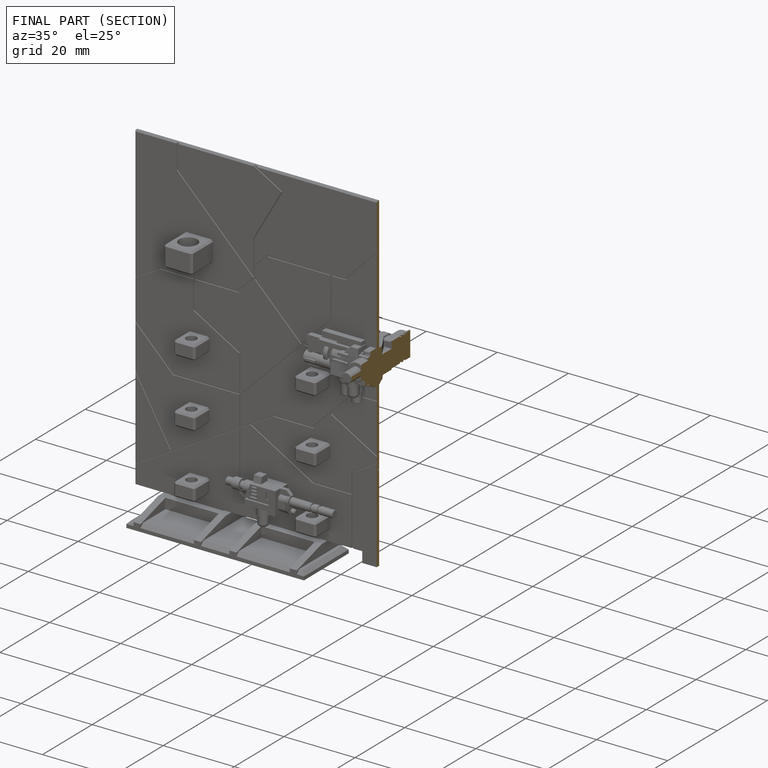
[diagram: finished part — half-section view (interior)]
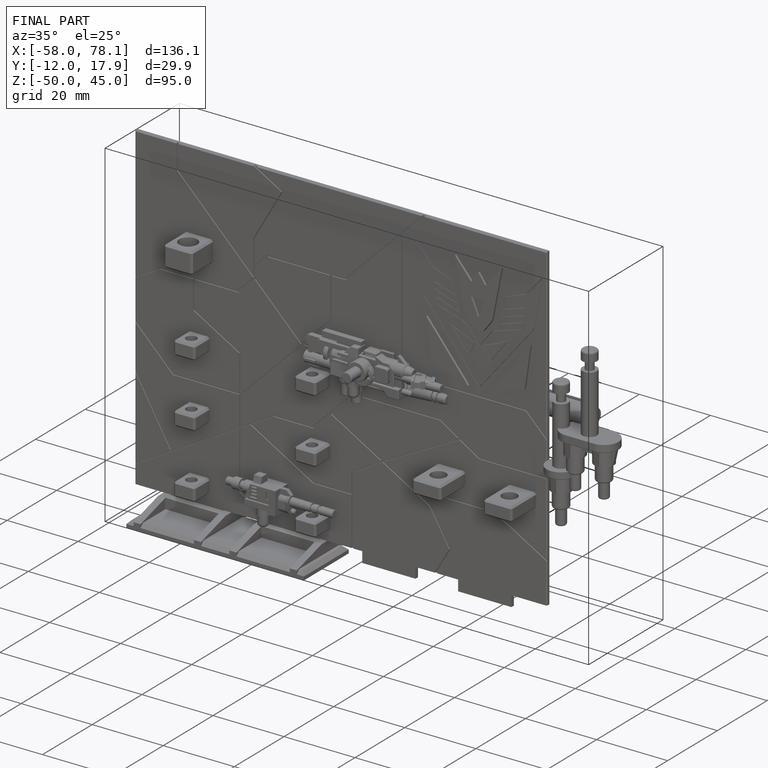
[diagram: finished part — iso view with bounding-box wireframe]
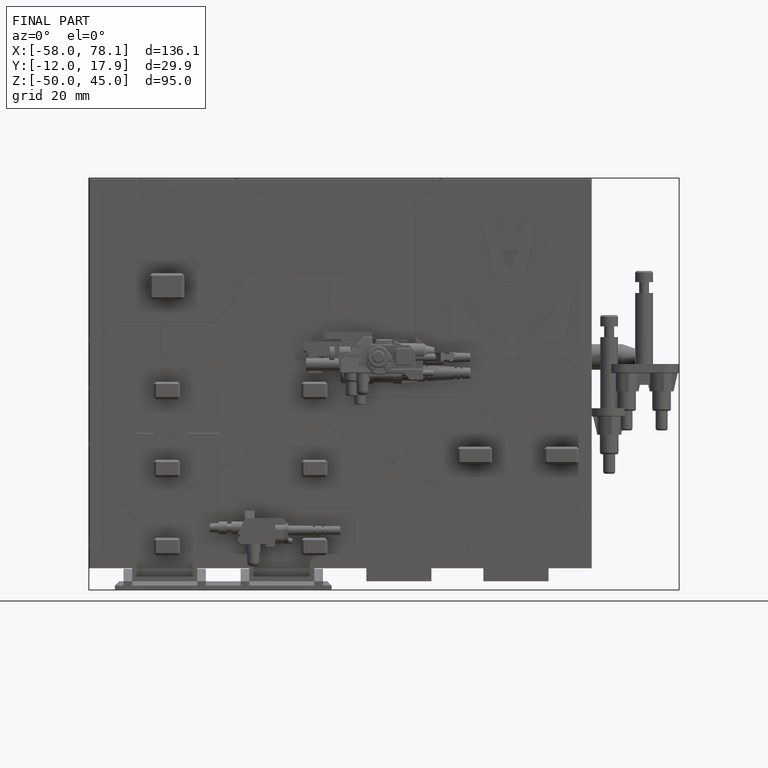
[diagram: finished part — front view with bounding-box wireframe]
